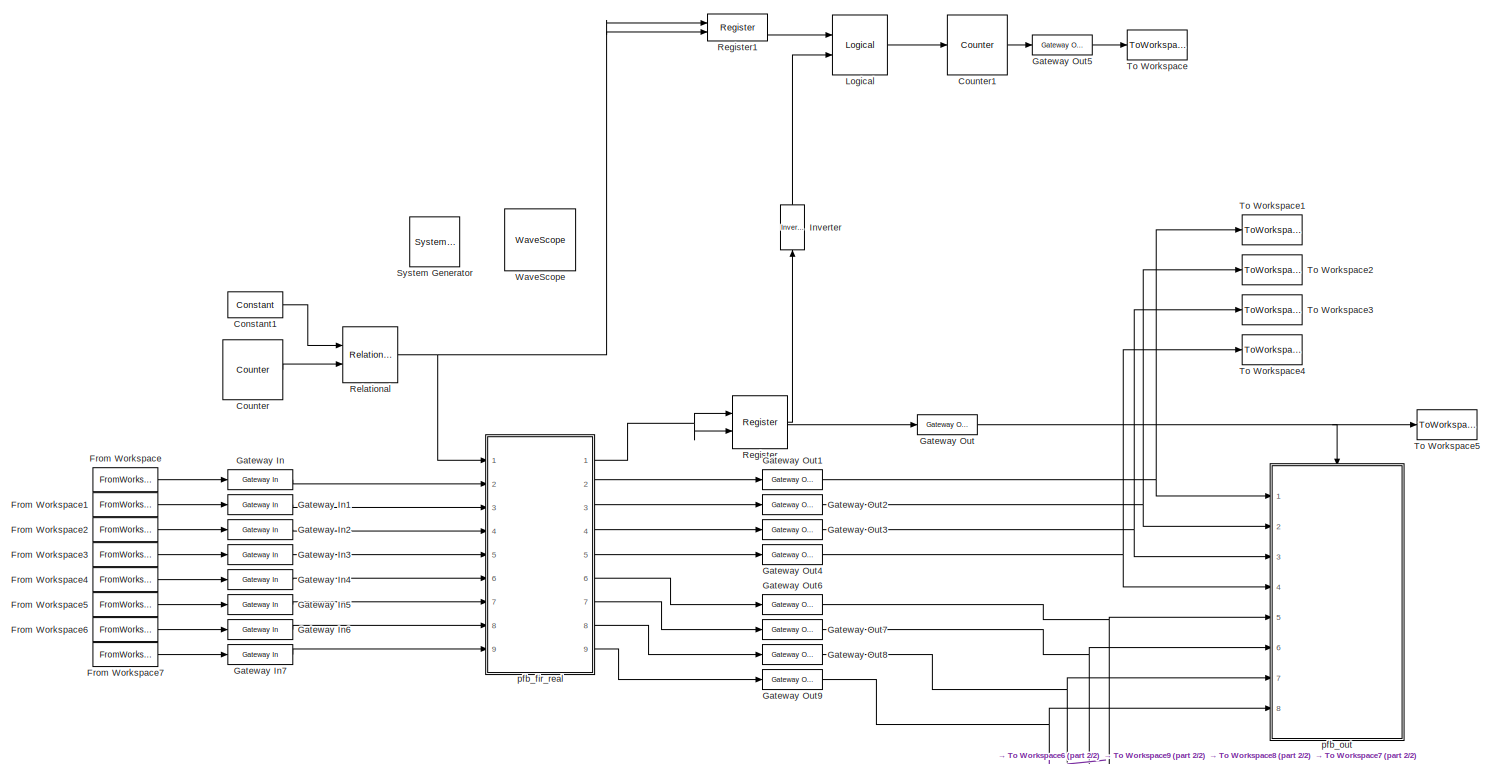
[diagram: root canvas - part 1/2, most of the canvas]
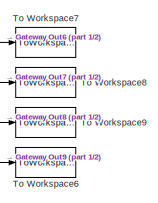
[diagram: root canvas - part 2/2, bottom right region]
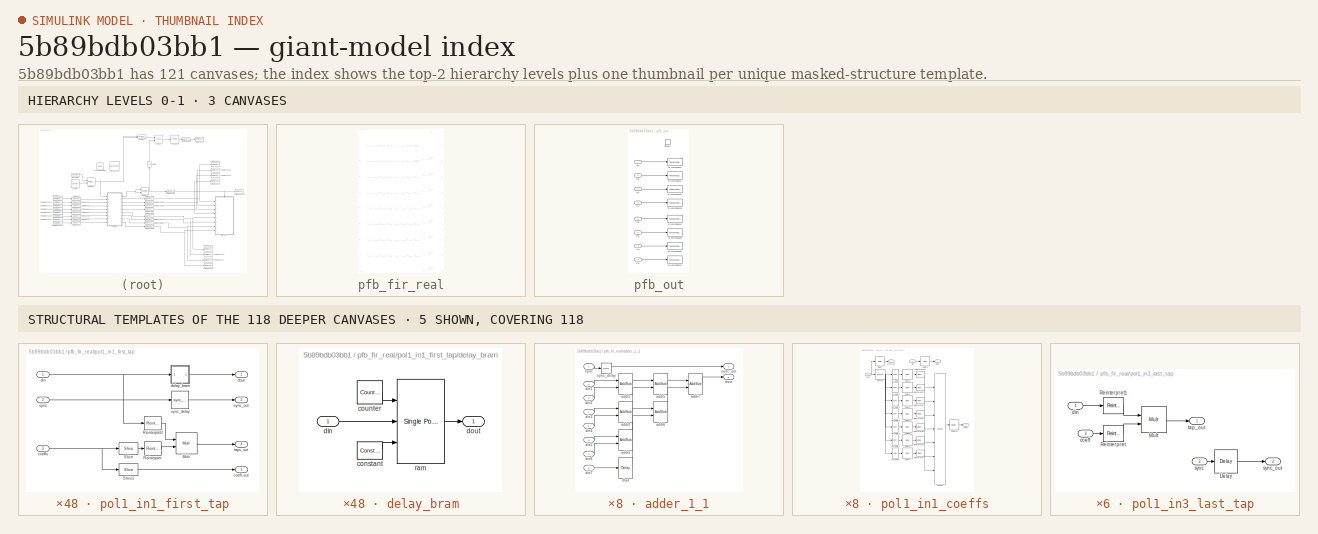
[diagram: thumbnail index - top-2 hierarchy levels (3 canvases) + 5 structural-template representatives of the remaining 118 canvases]
MODEL slx_5b89bdb03bb1
KIND model
BLOCK [Reference]  System Generator  REF=xbsIndex_r4/ System Generator
  AttributesFormatString = System\nGenerator
  Impl_file = ISE Defaults
  Ports = []
  SourceBlock = xbsIndex_r4/ System Generator
  SourceType = Xilinx System Generator Block
  Synth_file = XST Defaults
  Tag = genX
  UserDataPersistent = on
  block_type = sysgen
  clock_wrapper = Clock Enables
  core_generation = According to Block Masks
  dbl_ovrd = According to Block Masks
  dcm_input_clock_period = 10
  deprecated_control = off
  directory = ./netlist
  eval_field = 0
  has_advanced_control = 0
  incr_netlist = off
  infoedit = System Generator
  package = fbg676
  part = xc7k325t
  proj_type = Project Navigator
  run_coregen = off
  sg_icon_stat = 50,50,0,0,token,white,0,58c5b5770fe5f7c311f53dbc6e73f0f6,right,,[ ],[ ]
  sg_mask_display = fprintf('','COMMENT: begin icon graphics');\npatch([0 50 50 0 0 ],[0 0 50 50 0 ],[1 1 1 ]);\npatch([1.6375 16.81 27.31 37.81 48.31 27.31 12.1375 1.6375 ],[36.655 36.655 47.155 36.655 47.155 47.155 47.155 36.655 ],[0.933333 0.203922 0.141176 ]);\npatch([12.1375 27.31 16.81 1.6375 12.1375 ],[26.155 26.155 36.655 36.655 26.155 ],[0.698039 0.0313725 0.219608 ]);\npatch([1.6375 16.81 27.31 12.1375 1.6375 ]...<+327ch>
  sggui_pos = -1,-1,-1,-1
  simulink_period = 1
  speed = -3
  synthesis_tool = XST
  sysclk_period = 10
  testbench = off
  trim_vbits = Everywhere in SubSystem
  xilinxfamily = Kintex7
BLOCK [Reference] Constant1  REF=xbsIndex_r4/Constant
  Ports = [0, 1]
  SourceBlock = xbsIndex_r4/Constant
  SourceType = Xilinx Constant Block Block
  arith_type = Unsigned
  bin_pt = 0
  block_type = constant
  carry = CIN
  const = 1
  dbl_ovrd = off
  dsp48_infoedit = The use of this block for DSP48 instructions is deprecated.  Please use the Opmode block.
  equ = P=C
  exp_width = 8
  explicit_period = on
  frac_width = 24
  gui_display_data_type = Fixed-point
  has_advanced_control = 0
  inp1 = P
  inp2 = PCIN>>17
  n_bits = 8
  opr = +
  opselect = C
  period = 1
  preci_type = Single
  sg_icon_stat = 55,26,0,1,white,blue,0,1c72b5be,right,,[ ],[ ]
  sg_mask_display = fprintf('','COMMENT: begin icon graphics');\npatch([0 55 55 0 0 ],[0 0 26 26 0 ],[0.77 0.82 0.91 ]);\nplot([0 55 55 0 0 ],[0 0 26 26 0 ]);\npatch([20.325 24.66 27.66 30.66 33.66 27.66 23.325 20.325 ],[16.33 16.33 19.33 16.33 19.33 19.33 19.33 16.33 ],[1 1 1 ]);\npatch([23.325 27.66 24.66 20.325 23.325 ],[13.33 13.33 16.33 16.33 13.33 ],[0.931 0.946 0.973 ]);\npatch([20.325 24.66 27.66 23.325 20.325 ],[...<+323ch>
  sggui_pos = 57,19,337,463
BLOCK [Reference] Counter  REF=xbsIndex_r4/Counter
  Ports = [0, 1]
  SourceBlock = xbsIndex_r4/Counter
  SourceType = Xilinx Counter Block
  arith_type = Unsigned
  bin_pt = 0
  block_type = counter
  cnt_by_val = 1
  cnt_to = Inf
  cnt_type = Free Running
  dbl_ovrd = off
  en = off
  explicit_period = on
  has_advanced_control = 0
  implementation = Fabric
  infoedit = Hardware notes: Free running counters are the least expensive in hardware.  A count limited counter is implemented by combining a counter with a comparator.
  load_pin = off
  n_bits = 32
  operation = Up
  period = 1
  rst = off
  sg_icon_stat = 60,60,0,1,white,blue,0,7ac47ef5,right,,[ ],[ ]
  sg_mask_display = fprintf('','COMMENT: begin icon graphics');\npatch([0 60 60 0 0 ],[0 0 60 60 0 ],[0.77 0.82 0.91 ]);\nplot([0 60 60 0 0 ],[0 0 60 60 0 ]);\npatch([12.2 23.76 31.76 39.76 47.76 31.76 20.2 12.2 ],[38.88 38.88 46.88 38.88 46.88 46.88 46.88 38.88 ],[1 1 1 ]);\npatch([20.2 31.76 23.76 12.2 20.2 ],[30.88 30.88 38.88 38.88 30.88 ],[0.931 0.946 0.973 ]);\npatch([12.2 23.76 31.76 20.2 12.2 ],[22.88 22.88 30.88 ...<+321ch>  <repeated x4 — deduplicated; at blocks: Counter, counter>
  sggui_pos = 79,20,416,716
  start_count = 0
  use_behavioral_HDL = off
  xl_area = [0,0,0,0,0,0,0]
  xl_use_area = off
BLOCK [Reference] Counter1  REF=xbsIndex_r4/Counter
  Ports = [1, 1]
  SourceBlock = xbsIndex_r4/Counter
  SourceType = Xilinx Counter Block
  arith_type = Unsigned
  bin_pt = 0
  block_type = counter
  cnt_by_val = 1
  cnt_to = Inf
  cnt_type = Free Running
  dbl_ovrd = off
  en = on
  explicit_period = on
  has_advanced_control = 0
  implementation = Fabric
  infoedit = Hardware notes: Free running counters are the least expensive in hardware.  A count limited counter is implemented by combining a counter with a comparator.
  load_pin = off
  n_bits = 32
  operation = Up
  period = 1
  rst = off
  sg_icon_stat = 60,60,1,1,white,blue,0,b089e9c5,right,,[ ],[ ]
  sg_mask_display = fprintf('','COMMENT: begin icon graphics');\npatch([0 60 60 0 0 ],[0 0 60 60 0 ],[0.77 0.82 0.91 ]);\nplot([0 60 60 0 0 ],[0 0 60 60 0 ]);\npatch([12.2 23.76 31.76 39.76 47.76 31.76 20.2 12.2 ],[38.88 38.88 46.88 38.88 46.88 46.88 46.88 38.88 ],[1 1 1 ]);\npatch([20.2 31.76 23.76 12.2 20.2 ],[30.88 30.88 38.88 38.88 30.88 ],[0.931 0.946 0.973 ]);\npatch([12.2 23.76 31.76 20.2 12.2 ],[22.88 22.88 30.88 ...<+364ch>
  sggui_pos = 59,19,416,716
  start_count = 0
  use_behavioral_HDL = off
  xl_area = [0,0,0,0,0,0,0]
  xl_use_area = off
BLOCK [FromWorkspace] From Workspace
  Interpolate = off
  OutputAfterFinalValue = Cyclic repetition
  SampleTime = 1
  VariableName = din0
  ZeroCross = on
BLOCK [FromWorkspace] From Workspace1
  Interpolate = off
  OutputAfterFinalValue = Cyclic repetition
  SampleTime = 1
  VariableName = din1
  ZeroCross = on
BLOCK [FromWorkspace] From Workspace2
  Interpolate = off
  OutputAfterFinalValue = Cyclic repetition
  SampleTime = 1
  VariableName = din2
  ZeroCross = on
BLOCK [FromWorkspace] From Workspace3
  Interpolate = off
  OutputAfterFinalValue = Cyclic repetition
  SampleTime = 1
  VariableName = din3
  ZeroCross = on
BLOCK [FromWorkspace] From Workspace4
  Interpolate = off
  OutputAfterFinalValue = Cyclic repetition
  SampleTime = 1
  VariableName = din4
  ZeroCross = on
BLOCK [FromWorkspace] From Workspace5
  Interpolate = off
  OutputAfterFinalValue = Cyclic repetition
  SampleTime = 1
  VariableName = din5
  ZeroCross = on
BLOCK [FromWorkspace] From Workspace6
  Interpolate = off
  OutputAfterFinalValue = Cyclic repetition
  SampleTime = 1
  VariableName = din6
  ZeroCross = on
BLOCK [FromWorkspace] From Workspace7
  Interpolate = off
  OutputAfterFinalValue = Cyclic repetition
  SampleTime = 1
  VariableName = din7
  ZeroCross = on
BLOCK [Reference] Gateway In  REF=xbsIndex_r4/Gateway In
  ADCChannel = '1'
  LOCs = {}
  Ports = [1, 1]
  SourceBlock = xbsIndex_r4/Gateway In
  SourceType = Xilinx Gateway In Block
  UseAsADC = off
  arith_type = Signed  (2's comp)
  bin_pt = 7
  block_type = gatewayin
  dbl_ovrd = off
  exp_width = 8
  frac_width = 24
  gui_display_data_type = Fixed-point
  has_advanced_control = 0
  hdl_port = on
  infoedit = Gateway in block.  Converts inputs of type Simulink integer, single, double and fixed-point to  Xilinx fixed-point or floating-point data type.<br><br>Hardware notes:  In hardware these blocks become top level input ports.  <repeated x8 — deduplicated; at blocks: Gateway In, Gateway In1, Gateway In2, Gateway In3, Gateway In4, Gateway In5, Gateway In6, Gateway In7>
  inherit_from_input = off
  locs_specified = off
  n_bits = 8
  overflow = Saturate
  period = 1
  preci_type = Single
  quantization = Round  (unbiased: +/- Inf)
  sg_icon_stat = 65,20,1,1,white,yellow,1,00d3666e,right,,[ ],[ ]
  sg_mask_display = fprintf('','COMMENT: begin icon graphics');\npatch([0 65 65 0 0 ],[0 0 20 20 0 ],[0.95 0.93 0.65 ]);\nplot([0 65 65 0 0 ],[0 0 20 20 0 ]);\npatch([27.55 30.44 32.44 34.44 36.44 32.44 29.55 27.55 ],[12.22 12.22 14.22 12.22 14.22 14.22 14.22 12.22 ],[1 1 1 ]);\npatch([29.55 32.44 30.44 27.55 29.55 ],[10.22 10.22 12.22 12.22 10.22 ],[0.985 0.979 0.895 ]);\npatch([27.55 30.44 32.44 29.55 27.55 ],[8.22 8.22...<+383ch>  <repeated x8 — deduplicated; at blocks: Gateway In, Gateway In1, Gateway In2, Gateway In3, Gateway In4, Gateway In5, Gateway In6, Gateway In7>
  sggui_pos = 77,39,416,656
  timing_constraint = None
  xl_area = [0,0,0,0,0,0,0]
  xl_use_area = off
BLOCK [Reference] Gateway In1  REF=xbsIndex_r4/Gateway In
  ADCChannel = '1'
  LOCs = {}
  Ports = [1, 1]
  SourceBlock = xbsIndex_r4/Gateway In
  SourceType = Xilinx Gateway In Block
  UseAsADC = off
  arith_type = Signed  (2's comp)
  bin_pt = 7
  block_type = gatewayin
  dbl_ovrd = off
  exp_width = 8
  frac_width = 24
  gui_display_data_type = Fixed-point
  has_advanced_control = 0
  hdl_port = on
  inherit_from_input = off
  locs_specified = off
  n_bits = 8
  overflow = Saturate
  period = 1
  preci_type = Single
  quantization = Round  (unbiased: +/- Inf)
  sg_icon_stat = 65,20,1,1,white,yellow,1,00d3666e,right,,[ ],[ ]
  sggui_pos = 77,39,416,656
  timing_constraint = None
  xl_area = [0,0,0,0,0,0,0]
  xl_use_area = off
BLOCK [Reference] Gateway In2  REF=xbsIndex_r4/Gateway In
  ADCChannel = '1'
  LOCs = {}
  Ports = [1, 1]
  SourceBlock = xbsIndex_r4/Gateway In
  SourceType = Xilinx Gateway In Block
  UseAsADC = off
  arith_type = Signed  (2's comp)
  bin_pt = 7
  block_type = gatewayin
  dbl_ovrd = off
  exp_width = 8
  frac_width = 24
  gui_display_data_type = Fixed-point
  has_advanced_control = 0
  hdl_port = on
  inherit_from_input = off
  locs_specified = off
  n_bits = 8
  overflow = Saturate
  period = 1
  preci_type = Single
  quantization = Round  (unbiased: +/- Inf)
  sg_icon_stat = 65,20,1,1,white,yellow,1,00d3666e,right,,[ ],[ ]
  sggui_pos = 77,39,416,656
  timing_constraint = None
  xl_area = [0,0,0,0,0,0,0]
  xl_use_area = off
BLOCK [Reference] Gateway In3  REF=xbsIndex_r4/Gateway In
  ADCChannel = '1'
  LOCs = {}
  Ports = [1, 1]
  SourceBlock = xbsIndex_r4/Gateway In
  SourceType = Xilinx Gateway In Block
  UseAsADC = off
  arith_type = Signed  (2's comp)
  bin_pt = 7
  block_type = gatewayin
  dbl_ovrd = off
  exp_width = 8
  frac_width = 24
  gui_display_data_type = Fixed-point
  has_advanced_control = 0
  hdl_port = on
  inherit_from_input = off
  locs_specified = off
  n_bits = 8
  overflow = Saturate
  period = 1
  preci_type = Single
  quantization = Round  (unbiased: +/- Inf)
  sg_icon_stat = 65,20,1,1,white,yellow,1,00d3666e,right,,[ ],[ ]
  sggui_pos = 77,39,416,656
  timing_constraint = None
  xl_area = [0,0,0,0,0,0,0]
  xl_use_area = off
BLOCK [Reference] Gateway In4  REF=xbsIndex_r4/Gateway In
  ADCChannel = '1'
  LOCs = {}
  Ports = [1, 1]
  SourceBlock = xbsIndex_r4/Gateway In
  SourceType = Xilinx Gateway In Block
  UseAsADC = off
  arith_type = Signed  (2's comp)
  bin_pt = 7
  block_type = gatewayin
  dbl_ovrd = off
  exp_width = 8
  frac_width = 24
  gui_display_data_type = Fixed-point
  has_advanced_control = 0
  hdl_port = on
  inherit_from_input = off
  locs_specified = off
  n_bits = 8
  overflow = Saturate
  period = 1
  preci_type = Single
  quantization = Round  (unbiased: +/- Inf)
  sg_icon_stat = 65,20,1,1,white,yellow,1,00d3666e,right,,[ ],[ ]
  sggui_pos = 77,39,416,656
  timing_constraint = None
  xl_area = [0,0,0,0,0,0,0]
  xl_use_area = off
BLOCK [Reference] Gateway In5  REF=xbsIndex_r4/Gateway In
  ADCChannel = '1'
  LOCs = {}
  Ports = [1, 1]
  SourceBlock = xbsIndex_r4/Gateway In
  SourceType = Xilinx Gateway In Block
  UseAsADC = off
  arith_type = Signed  (2's comp)
  bin_pt = 7
  block_type = gatewayin
  dbl_ovrd = off
  exp_width = 8
  frac_width = 24
  gui_display_data_type = Fixed-point
  has_advanced_control = 0
  hdl_port = on
  inherit_from_input = off
  locs_specified = off
  n_bits = 8
  overflow = Saturate
  period = 1
  preci_type = Single
  quantization = Round  (unbiased: +/- Inf)
  sg_icon_stat = 65,20,1,1,white,yellow,1,00d3666e,right,,[ ],[ ]
  sggui_pos = 77,39,416,656
  timing_constraint = None
  xl_area = [0,0,0,0,0,0,0]
  xl_use_area = off
BLOCK [Reference] Gateway In6  REF=xbsIndex_r4/Gateway In
  ADCChannel = '1'
  LOCs = {}
  Ports = [1, 1]
  SourceBlock = xbsIndex_r4/Gateway In
  SourceType = Xilinx Gateway In Block
  UseAsADC = off
  arith_type = Signed  (2's comp)
  bin_pt = 7
  block_type = gatewayin
  dbl_ovrd = off
  exp_width = 8
  frac_width = 24
  gui_display_data_type = Fixed-point
  has_advanced_control = 0
  hdl_port = on
  inherit_from_input = off
  locs_specified = off
  n_bits = 8
  overflow = Saturate
  period = 1
  preci_type = Single
  quantization = Round  (unbiased: +/- Inf)
  sg_icon_stat = 65,20,1,1,white,yellow,1,00d3666e,right,,[ ],[ ]
  sggui_pos = 77,39,416,656
  timing_constraint = None
  xl_area = [0,0,0,0,0,0,0]
  xl_use_area = off
BLOCK [Reference] Gateway In7  REF=xbsIndex_r4/Gateway In
  ADCChannel = '1'
  LOCs = {}
  Ports = [1, 1]
  SourceBlock = xbsIndex_r4/Gateway In
  SourceType = Xilinx Gateway In Block
  UseAsADC = off
  arith_type = Signed  (2's comp)
  bin_pt = 7
  block_type = gatewayin
  dbl_ovrd = off
  exp_width = 8
  frac_width = 24
  gui_display_data_type = Fixed-point
  has_advanced_control = 0
  hdl_port = on
  inherit_from_input = off
  locs_specified = off
  n_bits = 8
  overflow = Saturate
  period = 1
  preci_type = Single
  quantization = Round  (unbiased: +/- Inf)
  sg_icon_stat = 65,20,1,1,white,yellow,1,00d3666e,right,,[ ],[ ]
  sggui_pos = 77,39,416,656
  timing_constraint = None
  xl_area = [0,0,0,0,0,0,0]
  xl_use_area = off
BLOCK [Reference] Gateway Out  REF=xbsIndex_r4/Gateway Out
  DACChannel = '1'
  LOCs = {}
  Ports = [1, 1]
  SourceBlock = xbsIndex_r4/Gateway Out
  SourceType = Xilinx Gateway Out Block
  UseAsDAC = off
  block_type = gatewayout
  has_advanced_control = 0
  hdl_port = on
  infoedit = Gateway out block.  Converts Xilinx fixed-point or floating-point type inputs into ouputs of type Simulink integer, single, double, or fixed-point.<br><br>Hardware notes:  In hardware these blocks become top level output ports or are discarded, depending on how they are configured.  <repeated x10 — deduplicated; at blocks: Gateway Out, Gateway Out1, Gateway Out2, Gateway Out3, Gateway Out4, Gateway Out5, Gateway Out6, Gateway Out7, Gateway Out8, Gateway Out9>
  inherit_from_input = off
  locs_specified = off
  sg_icon_stat = 60,20,1,1,white,yellow,1,cc31b7ac,right,,[ ],[ ]
  sg_mask_display = fprintf('','COMMENT: begin icon graphics');\npatch([0 60 60 0 0 ],[0 0 20 20 0 ],[0.95 0.93 0.65 ]);\nplot([0 60 60 0 0 ],[0 0 20 20 0 ]);\npatch([25.55 28.44 30.44 32.44 34.44 30.44 27.55 25.55 ],[12.22 12.22 14.22 12.22 14.22 14.22 14.22 12.22 ],[1 1 1 ]);\npatch([27.55 30.44 28.44 25.55 27.55 ],[10.22 10.22 12.22 12.22 10.22 ],[0.985 0.979 0.895 ]);\npatch([25.55 28.44 30.44 27.55 25.55 ],[8.22 8.22...<+384ch>  <repeated x10 — deduplicated; at blocks: Gateway Out, Gateway Out1, Gateway Out2, Gateway Out3, Gateway Out4, Gateway Out5, Gateway Out6, Gateway Out7, Gateway Out8, Gateway Out9>
  sggui_pos = -1,-1,-1,-1
  timing_constraint = None
  xl_area = [0,0,0,0,0,0,0]
  xl_use_area = off
BLOCK [Reference] Gateway Out1  REF=xbsIndex_r4/Gateway Out
  DACChannel = '1'
  LOCs = {}
  Ports = [1, 1]
  SourceBlock = xbsIndex_r4/Gateway Out
  SourceType = Xilinx Gateway Out Block
  UseAsDAC = off
  block_type = gatewayout
  has_advanced_control = 0
  hdl_port = on
  inherit_from_input = off
  locs_specified = off
  sg_icon_stat = 60,20,1,1,white,yellow,1,cc31b7ac,right,,[ ],[ ]
  sggui_pos = -1,-1,-1,-1
  timing_constraint = None
  xl_area = [0,0,0,0,0,0,0]
  xl_use_area = off
BLOCK [Reference] Gateway Out2  REF=xbsIndex_r4/Gateway Out
  DACChannel = '1'
  LOCs = {}
  Ports = [1, 1]
  SourceBlock = xbsIndex_r4/Gateway Out
  SourceType = Xilinx Gateway Out Block
  UseAsDAC = off
  block_type = gatewayout
  has_advanced_control = 0
  hdl_port = on
  inherit_from_input = off
  locs_specified = off
  sg_icon_stat = 60,20,1,1,white,yellow,1,cc31b7ac,right,,[ ],[ ]
  sggui_pos = 77,39,400,629
  timing_constraint = None
  xl_area = [0,0,0,0,0,0,0]
  xl_use_area = off
BLOCK [Reference] Gateway Out3  REF=xbsIndex_r4/Gateway Out
  DACChannel = '1'
  LOCs = {}
  Ports = [1, 1]
  SourceBlock = xbsIndex_r4/Gateway Out
  SourceType = Xilinx Gateway Out Block
  UseAsDAC = off
  block_type = gatewayout
  has_advanced_control = 0
  hdl_port = on
  inherit_from_input = off
  locs_specified = off
  sg_icon_stat = 60,20,1,1,white,yellow,1,cc31b7ac,right,,[ ],[ ]
  sggui_pos = 77,39,400,629
  timing_constraint = None
  xl_area = [0,0,0,0,0,0,0]
  xl_use_area = off
BLOCK [Reference] Gateway Out4  REF=xbsIndex_r4/Gateway Out
  DACChannel = '1'
  LOCs = {}
  Ports = [1, 1]
  SourceBlock = xbsIndex_r4/Gateway Out
  SourceType = Xilinx Gateway Out Block
  UseAsDAC = off
  block_type = gatewayout
  has_advanced_control = 0
  hdl_port = on
  inherit_from_input = off
  locs_specified = off
  sg_icon_stat = 60,20,1,1,white,yellow,1,cc31b7ac,right,,[ ],[ ]
  sggui_pos = 77,39,400,629
  timing_constraint = None
  xl_area = [0,0,0,0,0,0,0]
  xl_use_area = off
BLOCK [Reference] Gateway Out5  REF=xbsIndex_r4/Gateway Out
  DACChannel = '1'
  LOCs = {}
  Ports = [1, 1]
  SourceBlock = xbsIndex_r4/Gateway Out
  SourceType = Xilinx Gateway Out Block
  UseAsDAC = off
  block_type = gatewayout
  has_advanced_control = 0
  hdl_port = on
  inherit_from_input = off
  locs_specified = off
  sg_icon_stat = 60,20,1,1,white,yellow,1,cc31b7ac,right,,[ ],[ ]
  sggui_pos = -1,-1,-1,-1
  timing_constraint = None
  xl_area = [0,0,0,0,0,0,0]
  xl_use_area = off
BLOCK [Reference] Gateway Out6  REF=xbsIndex_r4/Gateway Out
  DACChannel = '1'
  LOCs = {}
  Ports = [1, 1]
  SourceBlock = xbsIndex_r4/Gateway Out
  SourceType = Xilinx Gateway Out Block
  UseAsDAC = off
  block_type = gatewayout
  has_advanced_control = 0
  hdl_port = on
  inherit_from_input = off
  locs_specified = off
  sg_icon_stat = 60,20,1,1,white,yellow,1,cc31b7ac,right,,[ ],[ ]
  sggui_pos = -1,-1,-1,-1
  timing_constraint = None
  xl_area = [0,0,0,0,0,0,0]
  xl_use_area = off
BLOCK [Reference] Gateway Out7  REF=xbsIndex_r4/Gateway Out
  DACChannel = '1'
  LOCs = {}
  Ports = [1, 1]
  SourceBlock = xbsIndex_r4/Gateway Out
  SourceType = Xilinx Gateway Out Block
  UseAsDAC = off
  block_type = gatewayout
  has_advanced_control = 0
  hdl_port = on
  inherit_from_input = off
  locs_specified = off
  sg_icon_stat = 60,20,1,1,white,yellow,1,cc31b7ac,right,,[ ],[ ]
  sggui_pos = 77,39,400,629
  timing_constraint = None
  xl_area = [0,0,0,0,0,0,0]
  xl_use_area = off
BLOCK [Reference] Gateway Out8  REF=xbsIndex_r4/Gateway Out
  DACChannel = '1'
  LOCs = {}
  Ports = [1, 1]
  SourceBlock = xbsIndex_r4/Gateway Out
  SourceType = Xilinx Gateway Out Block
  UseAsDAC = off
  block_type = gatewayout
  has_advanced_control = 0
  hdl_port = on
  inherit_from_input = off
  locs_specified = off
  sg_icon_stat = 60,20,1,1,white,yellow,1,cc31b7ac,right,,[ ],[ ]
  sggui_pos = 77,39,400,629
  timing_constraint = None
  xl_area = [0,0,0,0,0,0,0]
  xl_use_area = off
BLOCK [Reference] Gateway Out9  REF=xbsIndex_r4/Gateway Out
  DACChannel = '1'
  LOCs = {}
  Ports = [1, 1]
  SourceBlock = xbsIndex_r4/Gateway Out
  SourceType = Xilinx Gateway Out Block
  UseAsDAC = off
  block_type = gatewayout
  has_advanced_control = 0
  hdl_port = on
  inherit_from_input = off
  locs_specified = off
  sg_icon_stat = 60,20,1,1,white,yellow,1,cc31b7ac,right,,[ ],[ ]
  sggui_pos = 77,39,400,629
  timing_constraint = None
  xl_area = [0,0,0,0,0,0,0]
  xl_use_area = off
BLOCK [Reference] Inverter  REF=xbsIndex_r4/Inverter
  Ports = [1, 1]
  SourceBlock = xbsIndex_r4/Inverter
  SourceType = Xilinx Inverter Block
  block_type = inv
  dbl_ovrd = off
  en = off
  has_advanced_control = 0
  infoedit = Bitwise logical negation (one's complement) operator.
  latency = 0
  sg_icon_stat = 24,45,1,1,white,blue,0,267846e5,up,,[ ],[ ]
  sg_mask_display = fprintf('','COMMENT: begin icon graphics');\npatch([0 24 24 0 0 ],[0 0 45 45 0 ],[0.77 0.82 0.91 ]);\nplot([0 24 24 0 0 ],[0 0 45 45 0 ]);\npatch([5.325 9.66 12.66 15.66 18.66 12.66 8.325 5.325 ],[25.33 25.33 28.33 25.33 28.33 28.33 28.33 25.33 ],[1 1 1 ]);\npatch([8.325 12.66 9.66 5.325 8.325 ],[22.33 22.33 25.33 25.33 22.33 ],[0.931 0.946 0.973 ]);\npatch([5.325 9.66 12.66 8.325 5.325 ],[19.33 19.33 ...<+298ch>
  sggui_pos = -1,-1,-1,-1
  xl_area = [0,0,0,0,0,0,0]
  xl_use_area = off
BLOCK [Reference] Logical  REF=xbsIndex_r4/Logical
  Ports = [2, 1]
  SourceBlock = xbsIndex_r4/Logical
  SourceType = Xilinx Logical Block Block
  align_bp = on
  arith_type = Unsigned
  bin_pt = 0
  block_type = logical
  dbl_ovrd = off
  en = off
  has_advanced_control = 0
  inputs = 2
  latency = 0
  logical_function = AND
  n_bits = 16
  precision = Full
  sg_icon_stat = 55,60,2,1,white,blue,0,83a4b621,right,,[ ],[ ]
  sg_mask_display = fprintf('','COMMENT: begin icon graphics');\npatch([0 55 55 0 0 ],[0 0 60 60 0 ],[0.77 0.82 0.91 ]);\nplot([0 55 55 0 0 ],[0 0 60 60 0 ]);\npatch([11.425 21.54 28.54 35.54 42.54 28.54 18.425 11.425 ],[37.77 37.77 44.77 37.77 44.77 44.77 44.77 37.77 ],[1 1 1 ]);\npatch([18.425 28.54 21.54 11.425 18.425 ],[30.77 30.77 37.77 37.77 30.77 ],[0.931 0.946 0.973 ]);\npatch([11.425 21.54 28.54 18.425 11.425 ],[...<+315ch>
  sggui_pos = -1,-1,-1,-1
  xl_area = [0,0,0,0,0,0,0]
  xl_use_area = off
BLOCK [Reference] Register  REF=xbsIndex_r4/Register
  Ports = [2, 1]
  SourceBlock = xbsIndex_r4/Register
  SourceType = Xilinx Register Block
  block_type = register
  dbl_ovrd = off
  en = on
  has_advanced_control = 0
  init = 0
  rst = off
  sg_icon_stat = 55,53,2,1,white,blue,0,6bd0930c,right,,[ ],[ ]
  sg_mask_display = fprintf('','COMMENT: begin icon graphics');\npatch([0 55 55 0 0 ],[0 0 53 53 0 ],[0.77 0.82 0.91 ]);\nplot([0 55 55 0 0 ],[0 0 53 53 0 ]);\npatch([11.425 21.54 28.54 35.54 42.54 28.54 18.425 11.425 ],[33.77 33.77 40.77 33.77 40.77 40.77 40.77 33.77 ],[1 1 1 ]);\npatch([18.425 28.54 21.54 11.425 18.425 ],[26.77 26.77 33.77 33.77 26.77 ],[0.931 0.946 0.973 ]);\npatch([11.425 21.54 28.54 18.425 11.425 ],[...<+458ch>
  sggui_pos = 67,31,416,203
  xl_area = [0,0,0,0,0,0,0]
  xl_use_area = off
BLOCK [Reference] Register1  REF=xbsIndex_r4/Register
  Ports = [2, 1]
  SourceBlock = xbsIndex_r4/Register
  SourceType = Xilinx Register Block
  block_type = register
  dbl_ovrd = off
  en = on
  has_advanced_control = 0
  init = 0
  rst = off
  sg_icon_stat = 60,27,2,1,white,blue,0,6bd0930c,right,,[ ],[ ]
  sg_mask_display = fprintf('','COMMENT: begin icon graphics');\npatch([0 60 60 0 0 ],[0 0 27 27 0 ],[0.77 0.82 0.91 ]);\nplot([0 60 60 0 0 ],[0 0 27 27 0 ]);\npatch([23.325 27.66 30.66 33.66 36.66 30.66 26.325 23.325 ],[16.33 16.33 19.33 16.33 19.33 19.33 19.33 16.33 ],[1 1 1 ]);\npatch([26.325 30.66 27.66 23.325 26.325 ],[13.33 13.33 16.33 16.33 13.33 ],[0.931 0.946 0.973 ]);\npatch([23.325 27.66 30.66 26.325 23.325 ],[...<+454ch>
  sggui_pos = 67,31,416,203
  xl_area = [0,0,0,0,0,0,0]
  xl_use_area = off
BLOCK [Reference] Relational  REF=xbsIndex_r4/Relational
  Ports = [2, 1]
  SourceBlock = xbsIndex_r4/Relational
  SourceType = Xilinx Arithmetic Relational Operator Block
  block_type = relational
  dbl_ovrd = off
  en = off
  has_advanced_control = 0
  latency = 0
  mode = a=b
  sg_icon_stat = 55,56,2,1,white,blue,0,2a81ff49,right,,[ ],[ ]
  sg_mask_display = fprintf('','COMMENT: begin icon graphics');\npatch([0 55 55 0 0 ],[0 0 56 56 0 ],[0.77 0.82 0.91 ]);\nplot([0 55 55 0 0 ],[0 0 56 56 0 ]);\npatch([11.425 21.54 28.54 35.54 42.54 28.54 18.425 11.425 ],[35.77 35.77 42.77 35.77 42.77 42.77 42.77 35.77 ],[1 1 1 ]);\npatch([18.425 28.54 21.54 11.425 18.425 ],[28.77 28.77 35.77 35.77 28.77 ],[0.931 0.946 0.973 ]);\npatch([11.425 21.54 28.54 18.425 11.425 ],[...<+459ch>
  sggui_pos = -1,-1,-1,-1
  xl_area = [0,0,0,0,0,0,0]
  xl_use_area = off
BLOCK [ToWorkspace] To Workspace
  MaxDataPoints = inf
  Ports = [1]
  SampleTime = -1
  SaveFormat = Timeseries
  VariableName = counter
BLOCK [ToWorkspace] To Workspace1
  MaxDataPoints = inf
  Ports = [1]
  SampleTime = -1
  SaveFormat = Timeseries
  VariableName = dout0
BLOCK [ToWorkspace] To Workspace2
  MaxDataPoints = inf
  Ports = [1]
  SampleTime = -1
  SaveFormat = Timeseries
  VariableName = dout1
BLOCK [ToWorkspace] To Workspace3
  MaxDataPoints = inf
  Ports = [1]
  SampleTime = -1
  SaveFormat = Timeseries
  VariableName = dout2
BLOCK [ToWorkspace] To Workspace4
  MaxDataPoints = inf
  Ports = [1]
  SampleTime = -1
  SaveFormat = Timeseries
  VariableName = dout3
BLOCK [ToWorkspace] To Workspace5
  MaxDataPoints = inf
  Ports = [1]
  SampleTime = -1
  SaveFormat = Timeseries
  VariableName = sync
BLOCK [ToWorkspace] To Workspace6
  MaxDataPoints = inf
  Ports = [1]
  SampleTime = -1
  SaveFormat = Timeseries
  VariableName = dout7
BLOCK [ToWorkspace] To Workspace7
  MaxDataPoints = inf
  Ports = [1]
  SampleTime = -1
  SaveFormat = Timeseries
  VariableName = dout4
BLOCK [ToWorkspace] To Workspace8
  MaxDataPoints = inf
  Ports = [1]
  SampleTime = -1
  SaveFormat = Timeseries
  VariableName = dout5
BLOCK [ToWorkspace] To Workspace9
  MaxDataPoints = inf
  Ports = [1]
  SampleTime = -1
  SaveFormat = Timeseries
  VariableName = dout6
BLOCK [Reference] WaveScope  REF=xbsIndex_r4/WaveScope
  Ports = []
  SourceBlock = xbsIndex_r4/WaveScope
  SourceType = Xilinx WaveScope Block
  UserDataPersistent = on
  block_type = wavescope
  has_advanced_control = 0
  infoedit = WaveScope
  sg_icon_stat = 71,62,-1,-1,blue,white,0,07734,right,,[ ],[ ]
  sg_mask_display = fprintf('','COMMENT: begin icon graphics');\npatch([0 71 71 0 0 ],[0 0 62 62 0 ],[1 1 1 ]);\nplot([0 71 71 0 0 ],[0 0 62 62 0 ]);\npatch([17.2 28.76 36.76 44.76 52.76 36.76 25.2 17.2 ],[39.88 39.88 47.88 39.88 47.88 47.88 47.88 39.88 ],[0.839 0.874 0.937 ]);\npatch([25.2 36.76 28.76 17.2 25.2 ],[31.88 31.88 39.88 39.88 31.88 ],[0.77 0.82 0.91 ]);\npatch([17.2 28.76 36.76 25.2 17.2 ],[23.88 23.88 31.88 ...<+536ch>
  sggui_pos = -1,-1,-1,-1
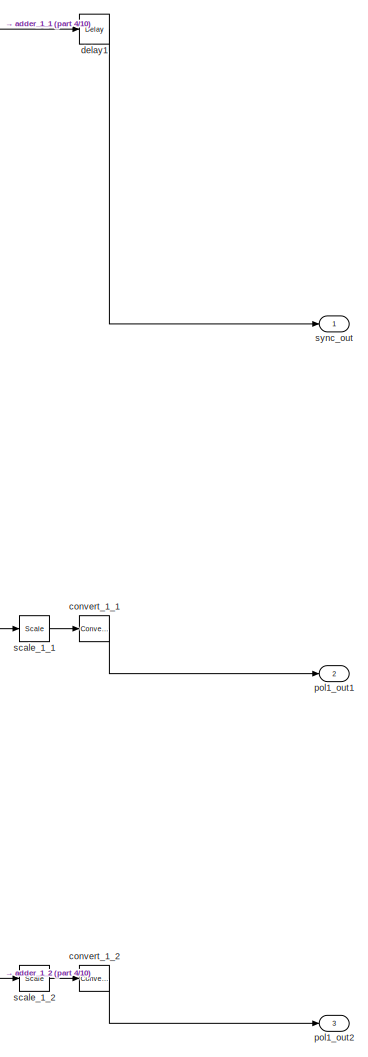
[diagram: pfb_fir_real - part 1/10, top right region]
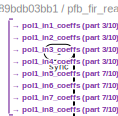
[diagram: pfb_fir_real - part 2/10, top left region]
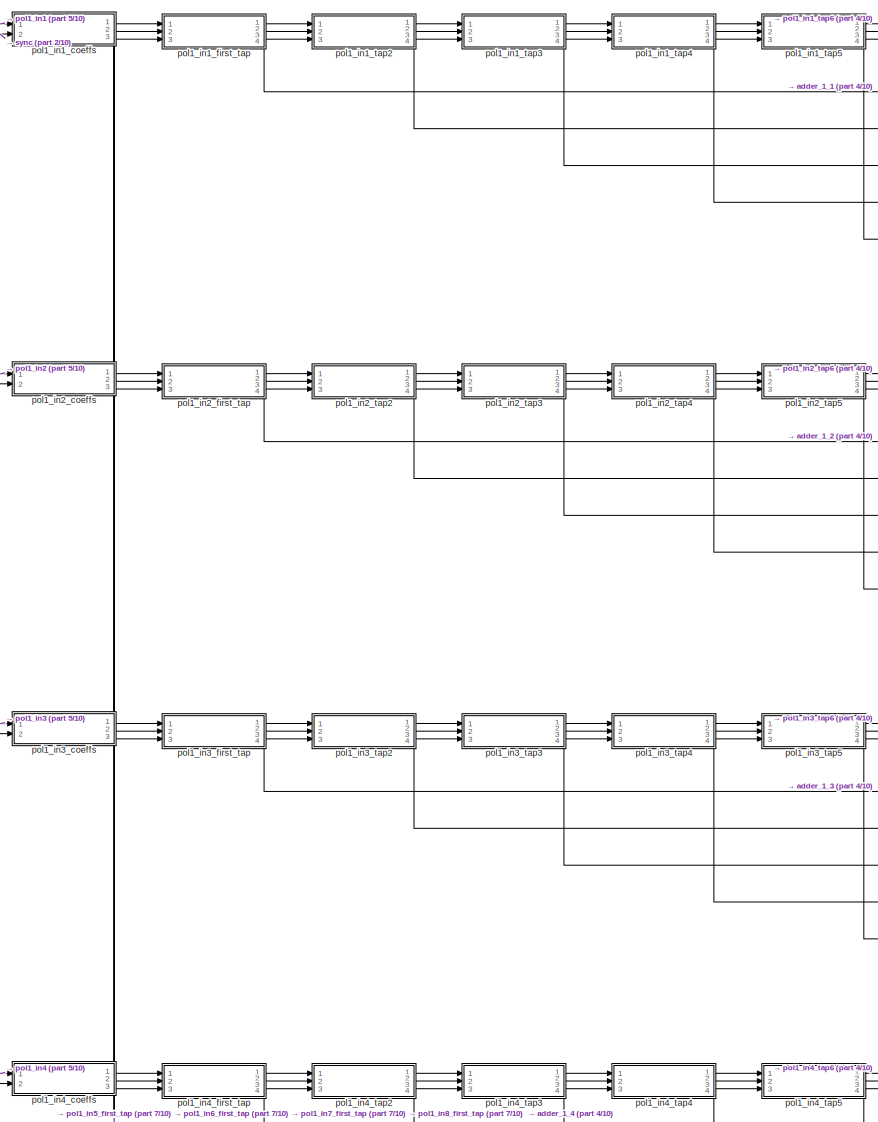
[diagram: pfb_fir_real - part 3/10, top left region]
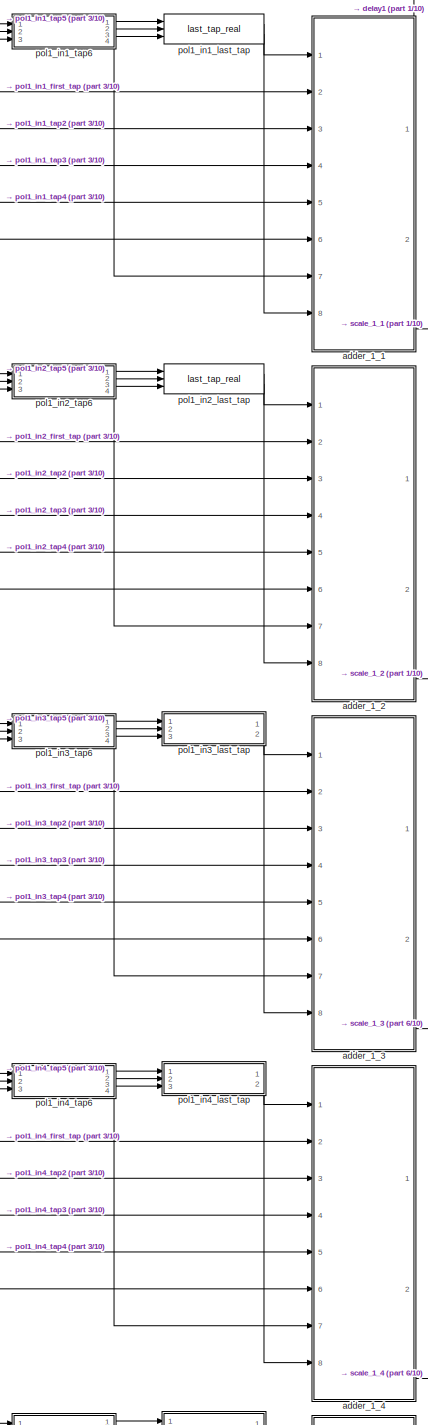
[diagram: pfb_fir_real - part 4/10, top right region]
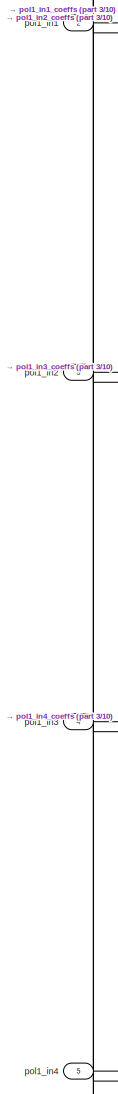
[diagram: pfb_fir_real - part 5/10, middle left region]
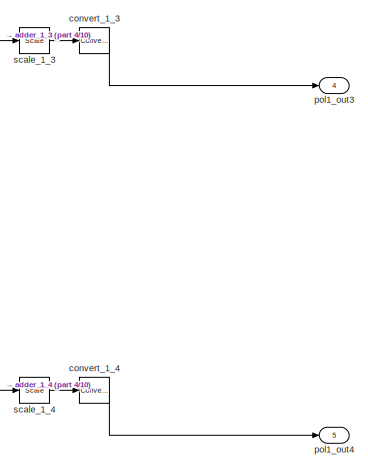
[diagram: pfb_fir_real - part 6/10, middle right region]
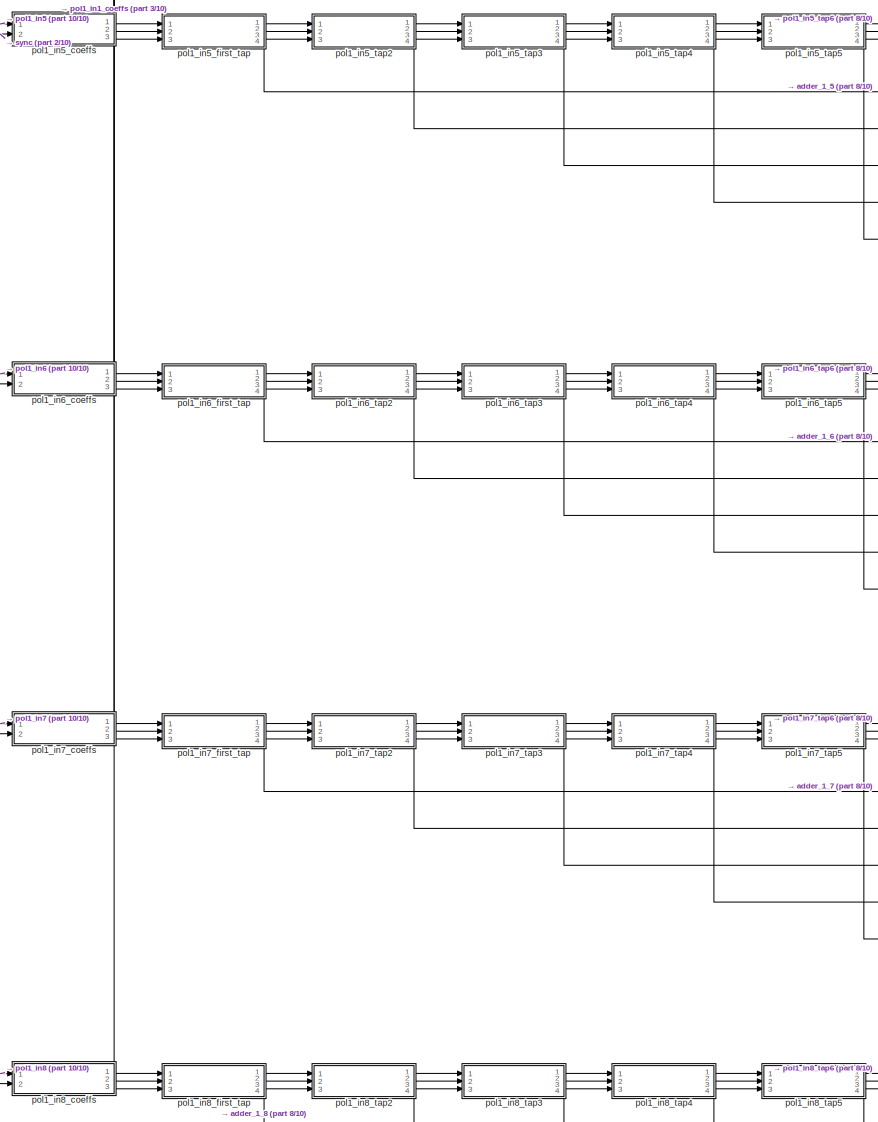
[diagram: pfb_fir_real - part 7/10, bottom left region]
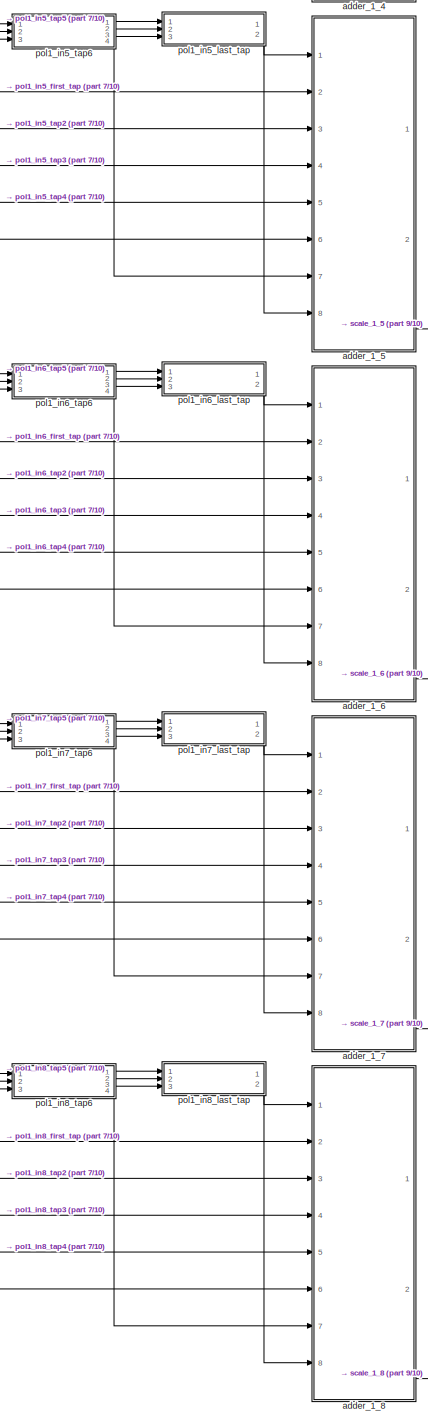
[diagram: pfb_fir_real - part 8/10, bottom right region]
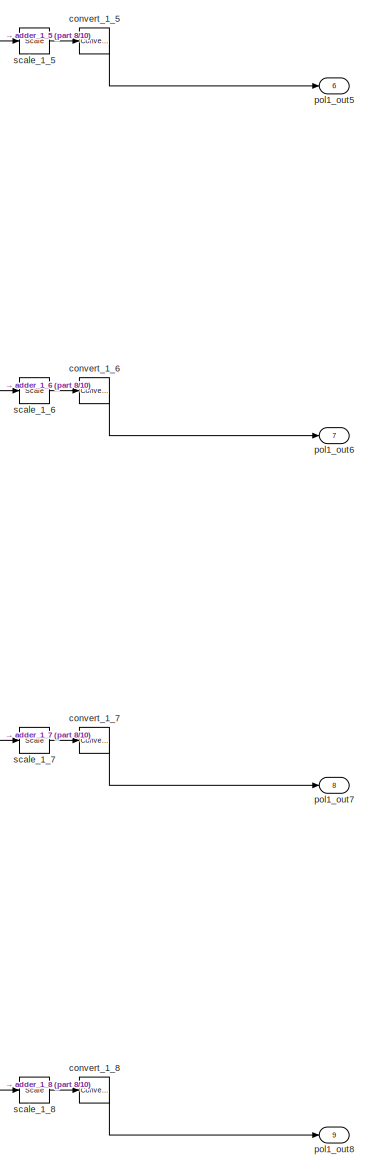
[diagram: pfb_fir_real - part 9/10, bottom right region]
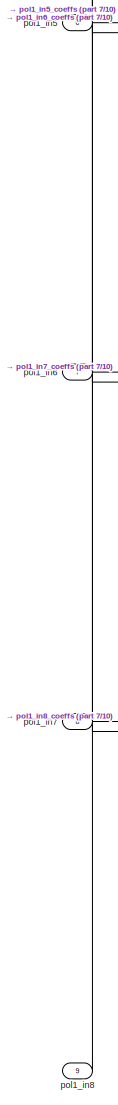
[diagram: pfb_fir_real - part 10/10, bottom left region]
BLOCK [SubSystem] pfb_fir_real
  AncestorBlock = casper_library_pfbs/pfb_fir_real
  AttributesFormatString = taps=7, add_latency=1
  FunctionWithSeparateData = off
  MaskHideContents = off
  MinAlgLoopOccurrences = off
  Opaque = off
  Ports = [9, 9]
  PropExecContextOutsideSubsystem = off
  RTWSystemCode = Auto
  RequestExecContextInheritance = off
  Tag = casper:pfb_fir_real
  UserDataPersistent = on
BLOCK [SubSystem] pfb_fir_real/adder_1_1
  AncestorBlock = casper_library_misc/adder_tree
  AttributesFormatString = latency 3
  FunctionWithSeparateData = off
  MaskHideContents = off
  MinAlgLoopOccurrences = off
  Opaque = off
  Ports = [8, 2]
  PropExecContextOutsideSubsystem = off
  RTWSystemCode = Auto
  RequestExecContextInheritance = off
  UserDataPersistent = on
BLOCK [Reference] pfb_fir_real/adder_1_1/addr1  REF=xbsIndex_r4/AddSub
  Ports = [2, 1]
  SourceBlock = xbsIndex_r4/AddSub
  SourceType = Xilinx Adder/Subtracter Block
  arith_type = Signed  (2's comp)
  bin_pt = 24
  block_type = addsub
  block_version = 11.4
  dbl_ovrd = off
  en = off
  has_advanced_control = 0
  hw_selection = Fabric
  latency = 1
  mode = Addition
  n_bits = 26
  overflow = Wrap
  pipelined = on
  precision = User Defined
  quantization = Truncate
  sg_icon_stat = 40,60,2,1,white,blue,0,e85d8a90,right,,[ ],[ ]
  sg_mask_display = fprintf('','COMMENT: begin icon graphics');\npatch([0 40 40 0 0 ],[0 0 60 60 0 ],[0.77 0.82 0.91 ]);\nplot([0 40 40 0 0 ],[0 0 60 60 0 ]);\npatch([8.875 16.1 21.1 26.1 31.1 21.1 13.875 8.875 ],[35.55 35.55 40.55 35.55 40.55 40.55 40.55 35.55 ],[1 1 1 ]);\npatch([13.875 21.1 16.1 8.875 13.875 ],[30.55 30.55 35.55 35.55 30.55 ],[0.931 0.946 0.973 ]);\npatch([8.875 16.1 21.1 13.875 8.875 ],[25.55 25.55 30...<+525ch>  <repeated x48 — deduplicated; at blocks: addr1, addr2, addr3, addr5, addr6, addr7>
  sggui_pos = 57,82,419,344
  use_behavioral_HDL = on
  use_carryin = off
  use_carryout = off
  use_rpm = on
  xl_area = [0,0,0,0,0,0,0]
  xl_use_area = off
BLOCK [Reference] pfb_fir_real/adder_1_1/addr2  REF=xbsIndex_r4/AddSub
  Ports = [2, 1]
  SourceBlock = xbsIndex_r4/AddSub
  SourceType = Xilinx Adder/Subtracter Block
  arith_type = Signed  (2's comp)
  bin_pt = 24
  block_type = addsub
  dbl_ovrd = off
  en = off
  has_advanced_control = 0
  hw_selection = Fabric
  latency = 1
  mode = Addition
  n_bits = 26
  overflow = Wrap
  pipelined = on
  precision = User Defined
  quantization = Truncate
  sg_icon_stat = 40,60,2,1,white,blue,0,e85d8a90,right,,[ ],[ ]
  sggui_pos = -1,-1,-1,-1
  use_behavioral_HDL = on
  use_carryin = off
  use_carryout = off
  use_rpm = on
  xl_area = [0,0,0,0,0,0,0]
  xl_use_area = off
BLOCK [Reference] pfb_fir_real/adder_1_1/addr3  REF=xbsIndex_r4/AddSub
  Ports = [2, 1]
  SourceBlock = xbsIndex_r4/AddSub
  SourceType = Xilinx Adder/Subtracter Block
  arith_type = Signed  (2's comp)
  bin_pt = 24
  block_type = addsub
  dbl_ovrd = off
  en = off
  has_advanced_control = 0
  hw_selection = Fabric
  latency = 1
  mode = Addition
  n_bits = 26
  overflow = Wrap
  pipelined = on
  precision = User Defined
  quantization = Truncate
  sg_icon_stat = 40,60,2,1,white,blue,0,e85d8a90,right,,[ ],[ ]
  sggui_pos = -1,-1,-1,-1
  use_behavioral_HDL = on
  use_carryin = off
  use_carryout = off
  use_rpm = on
  xl_area = [0,0,0,0,0,0,0]
  xl_use_area = off
BLOCK [Reference] pfb_fir_real/adder_1_1/addr5  REF=xbsIndex_r4/AddSub
  Ports = [2, 1]
  SourceBlock = xbsIndex_r4/AddSub
  SourceType = Xilinx Adder/Subtracter Block
  arith_type = Signed  (2's comp)
  bin_pt = 24
  block_type = addsub
  dbl_ovrd = off
  en = off
  has_advanced_control = 0
  hw_selection = Fabric
  latency = 1
  mode = Addition
  n_bits = 26
  overflow = Wrap
  pipelined = on
  precision = User Defined
  quantization = Truncate
  sg_icon_stat = 40,60,2,1,white,blue,0,e85d8a90,right,,[ ],[ ]
  sggui_pos = -1,-1,-1,-1
  use_behavioral_HDL = off
  use_carryin = off
  use_carryout = off
  use_rpm = on
  xl_area = [0,0,0,0,0,0,0]
  xl_use_area = off
BLOCK [Reference] pfb_fir_real/adder_1_1/addr6  REF=xbsIndex_r4/AddSub
  Ports = [2, 1]
  SourceBlock = xbsIndex_r4/AddSub
  SourceType = Xilinx Adder/Subtracter Block
  arith_type = Signed  (2's comp)
  bin_pt = 24
  block_type = addsub
  dbl_ovrd = off
  en = off
  has_advanced_control = 0
  hw_selection = Fabric
  latency = 1
  mode = Addition
  n_bits = 26
  overflow = Wrap
  pipelined = on
  precision = User Defined
  quantization = Truncate
  sg_icon_stat = 40,60,2,1,white,blue,0,e85d8a90,right,,[ ],[ ]
  sggui_pos = -1,-1,-1,-1
  use_behavioral_HDL = off
  use_carryin = off
  use_carryout = off
  use_rpm = on
  xl_area = [0,0,0,0,0,0,0]
  xl_use_area = off
BLOCK [Reference] pfb_fir_real/adder_1_1/addr7  REF=xbsIndex_r4/AddSub
  Ports = [2, 1]
  SourceBlock = xbsIndex_r4/AddSub
  SourceType = Xilinx Adder/Subtracter Block
  arith_type = Signed  (2's comp)
  bin_pt = 24
  block_type = addsub
  dbl_ovrd = off
  en = off
  has_advanced_control = 0
  hw_selection = Fabric
  latency = 1
  mode = Addition
  n_bits = 26
  overflow = Wrap
  pipelined = on
  precision = User Defined
  quantization = Truncate
  sg_icon_stat = 40,60,2,1,white,blue,0,e85d8a90,right,,[ ],[ ]
  sggui_pos = -1,-1,-1,-1
  use_behavioral_HDL = off
  use_carryin = off
  use_carryout = off
  use_rpm = on
  xl_area = [0,0,0,0,0,0,0]
  xl_use_area = off
BLOCK [Inport] pfb_fir_real/adder_1_1/din1
  IconDisplay = Port number
  Port = 2
BLOCK [Inport] pfb_fir_real/adder_1_1/din2
  IconDisplay = Port number
  Port = 3
BLOCK [Inport] pfb_fir_real/adder_1_1/din3
  IconDisplay = Port number
  Port = 4
BLOCK [Inport] pfb_fir_real/adder_1_1/din4
  IconDisplay = Port number
  Port = 5
BLOCK [Inport] pfb_fir_real/adder_1_1/din5
  IconDisplay = Port number
  Port = 6
BLOCK [Inport] pfb_fir_real/adder_1_1/din6
  IconDisplay = Port number
  Port = 7
BLOCK [Inport] pfb_fir_real/adder_1_1/din7
  IconDisplay = Port number
  Port = 8
BLOCK [Reference] pfb_fir_real/adder_1_1/dly4  REF=xbsIndex_r4/Delay
  Ports = [1, 1]
  SourceBlock = xbsIndex_r4/Delay
  SourceType = Xilinx Delay Block
  block_type = delay
  dbl_ovrd = off
  en = off
  has_advanced_control = 0
  infoedit = Hardware notes: A delay line is a chain, each link of which is an SRL16 followed by a flip-flop.
  infoeditControl = Selection of Reset will increase slice count due to use of real FFs and instead of SRLs
  latency = 1
  reg_retiming = on
  rst = off
  sg_icon_stat = 40,60,1,1,white,blue,0,07b98262,right,,[ ],[ ]
  sg_mask_display = fprintf('','COMMENT: begin icon graphics');\npatch([0 40 40 0 0 ],[0 0 60 60 0 ],[0.77 0.82 0.91 ]);\nplot([0 40 40 0 0 ],[0 0 60 60 0 ]);\npatch([8.875 16.1 21.1 26.1 31.1 21.1 13.875 8.875 ],[35.55 35.55 40.55 35.55 40.55 40.55 40.55 35.55 ],[1 1 1 ]);\npatch([13.875 21.1 16.1 8.875 13.875 ],[30.55 30.55 35.55 35.55 30.55 ],[0.931 0.946 0.973 ]);\npatch([8.875 16.1 21.1 13.875 8.875 ],[25.55 25.55 30...<+313ch>  <repeated x8 — deduplicated; at blocks: dly4>
  sggui_pos = -1,-1,-1,-1
  xl_area = [0,0,0,0,0,0,0]
  xl_use_area = off
BLOCK [Outport] pfb_fir_real/adder_1_1/dout
  IconDisplay = Port number
  Port = 2
BLOCK [Inport] pfb_fir_real/adder_1_1/sync
  IconDisplay = Port number
BLOCK [Reference] pfb_fir_real/adder_1_1/sync_delay  REF=xbsIndex_r4/Delay
  Ports = [1, 1]
  SourceBlock = xbsIndex_r4/Delay
  SourceType = Xilinx Delay Block
  block_type = delay
  block_version = 11.4
  dbl_ovrd = off
  en = off
  has_advanced_control = 0
  infoedit = Hardware notes: A delay line is a chain, each link of which is an SRL16 followed by a flip-flop.
  infoeditControl = Selection of Reset will increase slice count due to use of real FFs and instead of SRLs
  latency = 3
  reg_retiming = on
  rst = off
  sg_icon_stat = 30,30,1,1,white,blue,0,83e6bb61,right,,[ ],[ ]
  sg_mask_display = fprintf('','COMMENT: begin icon graphics');\npatch([0 30 30 0 0 ],[0 0 30 30 0 ],[0.77 0.82 0.91 ]);\nplot([0 30 30 0 0 ],[0 0 30 30 0 ]);\npatch([6.1 11.88 15.88 19.88 23.88 15.88 10.1 6.1 ],[19.44 19.44 23.44 19.44 23.44 23.44 23.44 19.44 ],[1 1 1 ]);\npatch([10.1 15.88 11.88 6.1 10.1 ],[15.44 15.44 19.44 19.44 15.44 ],[0.931 0.946 0.973 ]);\npatch([6.1 11.88 15.88 10.1 6.1 ],[11.44 11.44 15.44 15.44...<+298ch>  <repeated x9 — deduplicated; at blocks: sync_delay, delay1>
  sggui_pos = 21,71,419,315
  xl_area = [0,0,0,0,0,0,0]
  xl_use_area = off
BLOCK [Outport] pfb_fir_real/adder_1_1/sync_out
  IconDisplay = Port number
BLOCK [SubSystem] pfb_fir_real/adder_1_2
  AncestorBlock = casper_library_misc/adder_tree
  AttributesFormatString = latency 3
  FunctionWithSeparateData = off
  MaskHideContents = off
  MinAlgLoopOccurrences = off
  Opaque = off
  Ports = [8, 2]
  PropExecContextOutsideSubsystem = off
  RTWSystemCode = Auto
  RequestExecContextInheritance = off
  UserDataPersistent = on
BLOCK [Reference] pfb_fir_real/adder_1_2/addr1  REF=xbsIndex_r4/AddSub
  Ports = [2, 1]
  SourceBlock = xbsIndex_r4/AddSub
  SourceType = Xilinx Adder/Subtracter Block
  arith_type = Signed  (2's comp)
  bin_pt = 24
  block_type = addsub
  block_version = 11.4
  dbl_ovrd = off
  en = off
  has_advanced_control = 0
  hw_selection = Fabric
  latency = 1
  mode = Addition
  n_bits = 26
  overflow = Wrap
  pipelined = on
  precision = User Defined
  quantization = Truncate
  sg_icon_stat = 40,60,2,1,white,blue,0,e85d8a90,right,,[ ],[ ]
  sggui_pos = 22,98,419,344
  use_behavioral_HDL = on
  use_carryin = off
  use_carryout = off
  use_rpm = on
  xl_area = [0,0,0,0,0,0,0]
  xl_use_area = off
BLOCK [Reference] pfb_fir_real/adder_1_2/addr2  REF=xbsIndex_r4/AddSub
  Ports = [2, 1]
  SourceBlock = xbsIndex_r4/AddSub
  SourceType = Xilinx Adder/Subtracter Block
  arith_type = Signed  (2's comp)
  bin_pt = 24
  block_type = addsub
  dbl_ovrd = off
  en = off
  has_advanced_control = 0
  hw_selection = Fabric
  latency = 1
  mode = Addition
  n_bits = 26
  overflow = Wrap
  pipelined = on
  precision = User Defined
  quantization = Truncate
  sg_icon_stat = 40,60,2,1,white,blue,0,e85d8a90,right,,[ ],[ ]
  sggui_pos = -1,-1,-1,-1
  use_behavioral_HDL = on
  use_carryin = off
  use_carryout = off
  use_rpm = on
  xl_area = [0,0,0,0,0,0,0]
  xl_use_area = off
BLOCK [Reference] pfb_fir_real/adder_1_2/addr3  REF=xbsIndex_r4/AddSub
  Ports = [2, 1]
  SourceBlock = xbsIndex_r4/AddSub
  SourceType = Xilinx Adder/Subtracter Block
  arith_type = Signed  (2's comp)
  bin_pt = 24
  block_type = addsub
  dbl_ovrd = off
  en = off
  has_advanced_control = 0
  hw_selection = Fabric
  latency = 1
  mode = Addition
  n_bits = 26
  overflow = Wrap
  pipelined = on
  precision = User Defined
  quantization = Truncate
  sg_icon_stat = 40,60,2,1,white,blue,0,e85d8a90,right,,[ ],[ ]
  sggui_pos = -1,-1,-1,-1
  use_behavioral_HDL = on
  use_carryin = off
  use_carryout = off
  use_rpm = on
  xl_area = [0,0,0,0,0,0,0]
  xl_use_area = off
BLOCK [Reference] pfb_fir_real/adder_1_2/addr5  REF=xbsIndex_r4/AddSub
  Ports = [2, 1]
  SourceBlock = xbsIndex_r4/AddSub
  SourceType = Xilinx Adder/Subtracter Block
  arith_type = Signed  (2's comp)
  bin_pt = 24
  block_type = addsub
  dbl_ovrd = off
  en = off
  has_advanced_control = 0
  hw_selection = Fabric
  latency = 1
  mode = Addition
  n_bits = 26
  overflow = Wrap
  pipelined = on
  precision = User Defined
  quantization = Truncate
  sg_icon_stat = 40,60,2,1,white,blue,0,e85d8a90,right,,[ ],[ ]
  sggui_pos = -1,-1,-1,-1
  use_behavioral_HDL = off
  use_carryin = off
  use_carryout = off
  use_rpm = on
  xl_area = [0,0,0,0,0,0,0]
  xl_use_area = off
BLOCK [Reference] pfb_fir_real/adder_1_2/addr6  REF=xbsIndex_r4/AddSub
  Ports = [2, 1]
  SourceBlock = xbsIndex_r4/AddSub
  SourceType = Xilinx Adder/Subtracter Block
  arith_type = Signed  (2's comp)
  bin_pt = 24
  block_type = addsub
  dbl_ovrd = off
  en = off
  has_advanced_control = 0
  hw_selection = Fabric
  latency = 1
  mode = Addition
  n_bits = 26
  overflow = Wrap
  pipelined = on
  precision = User Defined
  quantization = Truncate
  sg_icon_stat = 40,60,2,1,white,blue,0,e85d8a90,right,,[ ],[ ]
  sggui_pos = -1,-1,-1,-1
  use_behavioral_HDL = off
  use_carryin = off
  use_carryout = off
  use_rpm = on
  xl_area = [0,0,0,0,0,0,0]
  xl_use_area = off
BLOCK [Reference] pfb_fir_real/adder_1_2/addr7  REF=xbsIndex_r4/AddSub
  Ports = [2, 1]
  SourceBlock = xbsIndex_r4/AddSub
  SourceType = Xilinx Adder/Subtracter Block
  arith_type = Signed  (2's comp)
  bin_pt = 24
  block_type = addsub
  dbl_ovrd = off
  en = off
  has_advanced_control = 0
  hw_selection = Fabric
  latency = 1
  mode = Addition
  n_bits = 26
  overflow = Wrap
  pipelined = on
  precision = User Defined
  quantization = Truncate
  sg_icon_stat = 40,60,2,1,white,blue,0,e85d8a90,right,,[ ],[ ]
  sggui_pos = -1,-1,-1,-1
  use_behavioral_HDL = off
  use_carryin = off
  use_carryout = off
  use_rpm = on
  xl_area = [0,0,0,0,0,0,0]
  xl_use_area = off
BLOCK [Inport] pfb_fir_real/adder_1_2/din1
  IconDisplay = Port number
  Port = 2
BLOCK [Inport] pfb_fir_real/adder_1_2/din2
  IconDisplay = Port number
  Port = 3
BLOCK [Inport] pfb_fir_real/adder_1_2/din3
  IconDisplay = Port number
  Port = 4
BLOCK [Inport] pfb_fir_real/adder_1_2/din4
  IconDisplay = Port number
  Port = 5
BLOCK [Inport] pfb_fir_real/adder_1_2/din5
  IconDisplay = Port number
  Port = 6
BLOCK [Inport] pfb_fir_real/adder_1_2/din6
  IconDisplay = Port number
  Port = 7
BLOCK [Inport] pfb_fir_real/adder_1_2/din7
  IconDisplay = Port number
  Port = 8
BLOCK [Reference] pfb_fir_real/adder_1_2/dly4  REF=xbsIndex_r4/Delay
  Ports = [1, 1]
  SourceBlock = xbsIndex_r4/Delay
  SourceType = Xilinx Delay Block
  block_type = delay
  dbl_ovrd = off
  en = off
  has_advanced_control = 0
  infoedit = Hardware notes: A delay line is a chain, each link of which is an SRL16 followed by a flip-flop.
  infoeditControl = Selection of Reset will increase slice count due to use of real FFs and instead of SRLs
  latency = 1
  reg_retiming = on
  rst = off
  sg_icon_stat = 40,60,1,1,white,blue,0,07b98262,right,,[ ],[ ]
  sggui_pos = -1,-1,-1,-1
  xl_area = [0,0,0,0,0,0,0]
  xl_use_area = off
BLOCK [Outport] pfb_fir_real/adder_1_2/dout
  IconDisplay = Port number
  Port = 2
BLOCK [Inport] pfb_fir_real/adder_1_2/sync
  IconDisplay = Port number
BLOCK [Reference] pfb_fir_real/adder_1_2/sync_delay  REF=xbsIndex_r4/Delay
  Ports = [1, 1]
  SourceBlock = xbsIndex_r4/Delay
  SourceType = Xilinx Delay Block
  block_type = delay
  block_version = 11.4
  dbl_ovrd = off
  en = off
  has_advanced_control = 0
  infoedit = Hardware notes: A delay line is a chain, each link of which is an SRL16 followed by a flip-flop.
  infoeditControl = Selection of Reset will increase slice count due to use of real FFs and instead of SRLs
  latency = 3
  reg_retiming = on
  rst = off
  sg_icon_stat = 30,30,1,1,white,blue,0,83e6bb61,right,,[ ],[ ]
  sggui_pos = 21,71,419,315
  xl_area = [0,0,0,0,0,0,0]
  xl_use_area = off
BLOCK [Outport] pfb_fir_real/adder_1_2/sync_out
  IconDisplay = Port number
BLOCK [SubSystem] pfb_fir_real/adder_1_3
  AncestorBlock = casper_library_misc/adder_tree
  AttributesFormatString = latency 3
  FunctionWithSeparateData = off
  MaskHideContents = off
  MinAlgLoopOccurrences = off
  Opaque = off
  Ports = [8, 2]
  PropExecContextOutsideSubsystem = off
  RTWSystemCode = Auto
  RequestExecContextInheritance = off
  UserDataPersistent = on
BLOCK [Reference] pfb_fir_real/adder_1_3/addr1  REF=xbsIndex_r4/AddSub
  Ports = [2, 1]
  SourceBlock = xbsIndex_r4/AddSub
  SourceType = Xilinx Adder/Subtracter Block
  arith_type = Signed  (2's comp)
  bin_pt = 24
  block_type = addsub
  block_version = 11.4
  dbl_ovrd = off
  en = off
  has_advanced_control = 0
  hw_selection = Fabric
  latency = 1
  mode = Addition
  n_bits = 26
  overflow = Wrap
  pipelined = on
  precision = User Defined
  quantization = Truncate
  sg_icon_stat = 40,60,2,1,white,blue,0,e85d8a90,right,,[ ],[ ]
  sggui_pos = 22,98,419,344
  use_behavioral_HDL = on
  use_carryin = off
  use_carryout = off
  use_rpm = on
  xl_area = [0,0,0,0,0,0,0]
  xl_use_area = off
BLOCK [Reference] pfb_fir_real/adder_1_3/addr2  REF=xbsIndex_r4/AddSub
  Ports = [2, 1]
  SourceBlock = xbsIndex_r4/AddSub
  SourceType = Xilinx Adder/Subtracter Block
  arith_type = Signed  (2's comp)
  bin_pt = 24
  block_type = addsub
  dbl_ovrd = off
  en = off
  has_advanced_control = 0
  hw_selection = Fabric
  latency = 1
  mode = Addition
  n_bits = 26
  overflow = Wrap
  pipelined = on
  precision = User Defined
  quantization = Truncate
  sg_icon_stat = 40,60,2,1,white,blue,0,e85d8a90,right,,[ ],[ ]
  sggui_pos = -1,-1,-1,-1
  use_behavioral_HDL = on
  use_carryin = off
  use_carryout = off
  use_rpm = on
  xl_area = [0,0,0,0,0,0,0]
  xl_use_area = off
BLOCK [Reference] pfb_fir_real/adder_1_3/addr3  REF=xbsIndex_r4/AddSub
  Ports = [2, 1]
  SourceBlock = xbsIndex_r4/AddSub
  SourceType = Xilinx Adder/Subtracter Block
  arith_type = Signed  (2's comp)
  bin_pt = 24
  block_type = addsub
  dbl_ovrd = off
  en = off
  has_advanced_control = 0
  hw_selection = Fabric
  latency = 1
  mode = Addition
  n_bits = 26
  overflow = Wrap
  pipelined = on
  precision = User Defined
  quantization = Truncate
  sg_icon_stat = 40,60,2,1,white,blue,0,e85d8a90,right,,[ ],[ ]
  sggui_pos = -1,-1,-1,-1
  use_behavioral_HDL = on
  use_carryin = off
  use_carryout = off
  use_rpm = on
  xl_area = [0,0,0,0,0,0,0]
  xl_use_area = off
BLOCK [Reference] pfb_fir_real/adder_1_3/addr5  REF=xbsIndex_r4/AddSub
  Ports = [2, 1]
  SourceBlock = xbsIndex_r4/AddSub
  SourceType = Xilinx Adder/Subtracter Block
  arith_type = Signed  (2's comp)
  bin_pt = 24
  block_type = addsub
  dbl_ovrd = off
  en = off
  has_advanced_control = 0
  hw_selection = Fabric
  latency = 1
  mode = Addition
  n_bits = 26
  overflow = Wrap
  pipelined = on
  precision = User Defined
  quantization = Truncate
  sg_icon_stat = 40,60,2,1,white,blue,0,e85d8a90,right,,[ ],[ ]
  sggui_pos = -1,-1,-1,-1
  use_behavioral_HDL = off
  use_carryin = off
  use_carryout = off
  use_rpm = on
  xl_area = [0,0,0,0,0,0,0]
  xl_use_area = off
BLOCK [Reference] pfb_fir_real/adder_1_3/addr6  REF=xbsIndex_r4/AddSub
  Ports = [2, 1]
  SourceBlock = xbsIndex_r4/AddSub
  SourceType = Xilinx Adder/Subtracter Block
  arith_type = Signed  (2's comp)
  bin_pt = 24
  block_type = addsub
  dbl_ovrd = off
  en = off
  has_advanced_control = 0
  hw_selection = Fabric
  latency = 1
  mode = Addition
  n_bits = 26
  overflow = Wrap
  pipelined = on
  precision = User Defined
  quantization = Truncate
  sg_icon_stat = 40,60,2,1,white,blue,0,e85d8a90,right,,[ ],[ ]
  sggui_pos = -1,-1,-1,-1
  use_behavioral_HDL = off
  use_carryin = off
  use_carryout = off
  use_rpm = on
  xl_area = [0,0,0,0,0,0,0]
  xl_use_area = off
BLOCK [Reference] pfb_fir_real/adder_1_3/addr7  REF=xbsIndex_r4/AddSub
  Ports = [2, 1]
  SourceBlock = xbsIndex_r4/AddSub
  SourceType = Xilinx Adder/Subtracter Block
  arith_type = Signed  (2's comp)
  bin_pt = 24
  block_type = addsub
  dbl_ovrd = off
  en = off
  has_advanced_control = 0
  hw_selection = Fabric
  latency = 1
  mode = Addition
  n_bits = 26
  overflow = Wrap
  pipelined = on
  precision = User Defined
  quantization = Truncate
  sg_icon_stat = 40,60,2,1,white,blue,0,e85d8a90,right,,[ ],[ ]
  sggui_pos = -1,-1,-1,-1
  use_behavioral_HDL = off
  use_carryin = off
  use_carryout = off
  use_rpm = on
  xl_area = [0,0,0,0,0,0,0]
  xl_use_area = off
BLOCK [Inport] pfb_fir_real/adder_1_3/din1
  IconDisplay = Port number
  Port = 2
BLOCK [Inport] pfb_fir_real/adder_1_3/din2
  IconDisplay = Port number
  Port = 3
BLOCK [Inport] pfb_fir_real/adder_1_3/din3
  IconDisplay = Port number
  Port = 4
BLOCK [Inport] pfb_fir_real/adder_1_3/din4
  IconDisplay = Port number
  Port = 5
BLOCK [Inport] pfb_fir_real/adder_1_3/din5
  IconDisplay = Port number
  Port = 6
BLOCK [Inport] pfb_fir_real/adder_1_3/din6
  IconDisplay = Port number
  Port = 7
BLOCK [Inport] pfb_fir_real/adder_1_3/din7
  IconDisplay = Port number
  Port = 8
BLOCK [Reference] pfb_fir_real/adder_1_3/dly4  REF=xbsIndex_r4/Delay
  Ports = [1, 1]
  SourceBlock = xbsIndex_r4/Delay
  SourceType = Xilinx Delay Block
  block_type = delay
  dbl_ovrd = off
  en = off
  has_advanced_control = 0
  infoedit = Hardware notes: A delay line is a chain, each link of which is an SRL16 followed by a flip-flop.
  infoeditControl = Selection of Reset will increase slice count due to use of real FFs and instead of SRLs
  latency = 1
  reg_retiming = on
  rst = off
  sg_icon_stat = 40,60,1,1,white,blue,0,07b98262,right,,[ ],[ ]
  sggui_pos = -1,-1,-1,-1
  xl_area = [0,0,0,0,0,0,0]
  xl_use_area = off
BLOCK [Outport] pfb_fir_real/adder_1_3/dout
  IconDisplay = Port number
  Port = 2
BLOCK [Inport] pfb_fir_real/adder_1_3/sync
  IconDisplay = Port number
BLOCK [Reference] pfb_fir_real/adder_1_3/sync_delay  REF=xbsIndex_r4/Delay
  Ports = [1, 1]
  SourceBlock = xbsIndex_r4/Delay
  SourceType = Xilinx Delay Block
  block_type = delay
  block_version = 11.4
  dbl_ovrd = off
  en = off
  has_advanced_control = 0
  infoedit = Hardware notes: A delay line is a chain, each link of which is an SRL16 followed by a flip-flop.
  infoeditControl = Selection of Reset will increase slice count due to use of real FFs and instead of SRLs
  latency = 3
  reg_retiming = on
  rst = off
  sg_icon_stat = 30,30,1,1,white,blue,0,83e6bb61,right,,[ ],[ ]
  sggui_pos = 21,71,419,315
  xl_area = [0,0,0,0,0,0,0]
  xl_use_area = off
BLOCK [Outport] pfb_fir_real/adder_1_3/sync_out
  IconDisplay = Port number
BLOCK [SubSystem] pfb_fir_real/adder_1_4
  AncestorBlock = casper_library_misc/adder_tree
  AttributesFormatString = latency 3
  FunctionWithSeparateData = off
  MaskHideContents = off
  MinAlgLoopOccurrences = off
  Opaque = off
  Ports = [8, 2]
  PropExecContextOutsideSubsystem = off
  RTWSystemCode = Auto
  RequestExecContextInheritance = off
  UserDataPersistent = on
BLOCK [Reference] pfb_fir_real/adder_1_4/addr1  REF=xbsIndex_r4/AddSub
  Ports = [2, 1]
  SourceBlock = xbsIndex_r4/AddSub
  SourceType = Xilinx Adder/Subtracter Block
  arith_type = Signed  (2's comp)
  bin_pt = 24
  block_type = addsub
  block_version = 11.4
  dbl_ovrd = off
  en = off
  has_advanced_control = 0
  hw_selection = Fabric
  latency = 1
  mode = Addition
  n_bits = 26
  overflow = Wrap
  pipelined = on
  precision = User Defined
  quantization = Truncate
  sg_icon_stat = 40,60,2,1,white,blue,0,e85d8a90,right,,[ ],[ ]
  sggui_pos = 22,98,419,344
  use_behavioral_HDL = on
  use_carryin = off
  use_carryout = off
  use_rpm = on
  xl_area = [0,0,0,0,0,0,0]
  xl_use_area = off
BLOCK [Reference] pfb_fir_real/adder_1_4/addr2  REF=xbsIndex_r4/AddSub
  Ports = [2, 1]
  SourceBlock = xbsIndex_r4/AddSub
  SourceType = Xilinx Adder/Subtracter Block
  arith_type = Signed  (2's comp)
  bin_pt = 24
  block_type = addsub
  dbl_ovrd = off
  en = off
  has_advanced_control = 0
  hw_selection = Fabric
  latency = 1
  mode = Addition
  n_bits = 26
  overflow = Wrap
  pipelined = on
  precision = User Defined
  quantization = Truncate
  sg_icon_stat = 40,60,2,1,white,blue,0,e85d8a90,right,,[ ],[ ]
  sggui_pos = -1,-1,-1,-1
  use_behavioral_HDL = on
  use_carryin = off
  use_carryout = off
  use_rpm = on
  xl_area = [0,0,0,0,0,0,0]
  xl_use_area = off
BLOCK [Reference] pfb_fir_real/adder_1_4/addr3  REF=xbsIndex_r4/AddSub
  Ports = [2, 1]
  SourceBlock = xbsIndex_r4/AddSub
  SourceType = Xilinx Adder/Subtracter Block
  arith_type = Signed  (2's comp)
  bin_pt = 24
  block_type = addsub
  dbl_ovrd = off
  en = off
  has_advanced_control = 0
  hw_selection = Fabric
  latency = 1
  mode = Addition
  n_bits = 26
  overflow = Wrap
  pipelined = on
  precision = User Defined
  quantization = Truncate
  sg_icon_stat = 40,60,2,1,white,blue,0,e85d8a90,right,,[ ],[ ]
  sggui_pos = -1,-1,-1,-1
  use_behavioral_HDL = on
  use_carryin = off
  use_carryout = off
  use_rpm = on
  xl_area = [0,0,0,0,0,0,0]
  xl_use_area = off
BLOCK [Reference] pfb_fir_real/adder_1_4/addr5  REF=xbsIndex_r4/AddSub
  Ports = [2, 1]
  SourceBlock = xbsIndex_r4/AddSub
  SourceType = Xilinx Adder/Subtracter Block
  arith_type = Signed  (2's comp)
  bin_pt = 24
  block_type = addsub
  dbl_ovrd = off
  en = off
  has_advanced_control = 0
  hw_selection = Fabric
  latency = 1
  mode = Addition
  n_bits = 26
  overflow = Wrap
  pipelined = on
  precision = User Defined
  quantization = Truncate
  sg_icon_stat = 40,60,2,1,white,blue,0,e85d8a90,right,,[ ],[ ]
  sggui_pos = -1,-1,-1,-1
  use_behavioral_HDL = off
  use_carryin = off
  use_carryout = off
  use_rpm = on
  xl_area = [0,0,0,0,0,0,0]
  xl_use_area = off
BLOCK [Reference] pfb_fir_real/adder_1_4/addr6  REF=xbsIndex_r4/AddSub
  Ports = [2, 1]
  SourceBlock = xbsIndex_r4/AddSub
  SourceType = Xilinx Adder/Subtracter Block
  arith_type = Signed  (2's comp)
  bin_pt = 24
  block_type = addsub
  dbl_ovrd = off
  en = off
  has_advanced_control = 0
  hw_selection = Fabric
  latency = 1
  mode = Addition
  n_bits = 26
  overflow = Wrap
  pipelined = on
  precision = User Defined
  quantization = Truncate
  sg_icon_stat = 40,60,2,1,white,blue,0,e85d8a90,right,,[ ],[ ]
  sggui_pos = -1,-1,-1,-1
  use_behavioral_HDL = off
  use_carryin = off
  use_carryout = off
  use_rpm = on
  xl_area = [0,0,0,0,0,0,0]
  xl_use_area = off
BLOCK [Reference] pfb_fir_real/adder_1_4/addr7  REF=xbsIndex_r4/AddSub
  Ports = [2, 1]
  SourceBlock = xbsIndex_r4/AddSub
  SourceType = Xilinx Adder/Subtracter Block
  arith_type = Signed  (2's comp)
  bin_pt = 24
  block_type = addsub
  dbl_ovrd = off
  en = off
  has_advanced_control = 0
  hw_selection = Fabric
  latency = 1
  mode = Addition
  n_bits = 26
  overflow = Wrap
  pipelined = on
  precision = User Defined
  quantization = Truncate
  sg_icon_stat = 40,60,2,1,white,blue,0,e85d8a90,right,,[ ],[ ]
  sggui_pos = -1,-1,-1,-1
  use_behavioral_HDL = off
  use_carryin = off
  use_carryout = off
  use_rpm = on
  xl_area = [0,0,0,0,0,0,0]
  xl_use_area = off
BLOCK [Inport] pfb_fir_real/adder_1_4/din1
  IconDisplay = Port number
  Port = 2
BLOCK [Inport] pfb_fir_real/adder_1_4/din2
  IconDisplay = Port number
  Port = 3
BLOCK [Inport] pfb_fir_real/adder_1_4/din3
  IconDisplay = Port number
  Port = 4
BLOCK [Inport] pfb_fir_real/adder_1_4/din4
  IconDisplay = Port number
  Port = 5
BLOCK [Inport] pfb_fir_real/adder_1_4/din5
  IconDisplay = Port number
  Port = 6
BLOCK [Inport] pfb_fir_real/adder_1_4/din6
  IconDisplay = Port number
  Port = 7
BLOCK [Inport] pfb_fir_real/adder_1_4/din7
  IconDisplay = Port number
  Port = 8
BLOCK [Reference] pfb_fir_real/adder_1_4/dly4  REF=xbsIndex_r4/Delay
  Ports = [1, 1]
  SourceBlock = xbsIndex_r4/Delay
  SourceType = Xilinx Delay Block
  block_type = delay
  dbl_ovrd = off
  en = off
  has_advanced_control = 0
  infoedit = Hardware notes: A delay line is a chain, each link of which is an SRL16 followed by a flip-flop.
  infoeditControl = Selection of Reset will increase slice count due to use of real FFs and instead of SRLs
  latency = 1
  reg_retiming = on
  rst = off
  sg_icon_stat = 40,60,1,1,white,blue,0,07b98262,right,,[ ],[ ]
  sggui_pos = -1,-1,-1,-1
  xl_area = [0,0,0,0,0,0,0]
  xl_use_area = off
BLOCK [Outport] pfb_fir_real/adder_1_4/dout
  IconDisplay = Port number
  Port = 2
BLOCK [Inport] pfb_fir_real/adder_1_4/sync
  IconDisplay = Port number
BLOCK [Reference] pfb_fir_real/adder_1_4/sync_delay  REF=xbsIndex_r4/Delay
  Ports = [1, 1]
  SourceBlock = xbsIndex_r4/Delay
  SourceType = Xilinx Delay Block
  block_type = delay
  block_version = 11.4
  dbl_ovrd = off
  en = off
  has_advanced_control = 0
  infoedit = Hardware notes: A delay line is a chain, each link of which is an SRL16 followed by a flip-flop.
  infoeditControl = Selection of Reset will increase slice count due to use of real FFs and instead of SRLs
  latency = 3
  reg_retiming = on
  rst = off
  sg_icon_stat = 30,30,1,1,white,blue,0,83e6bb61,right,,[ ],[ ]
  sggui_pos = 21,71,419,315
  xl_area = [0,0,0,0,0,0,0]
  xl_use_area = off
BLOCK [Outport] pfb_fir_real/adder_1_4/sync_out
  IconDisplay = Port number
BLOCK [SubSystem] pfb_fir_real/adder_1_5
  AncestorBlock = casper_library_misc/adder_tree
  AttributesFormatString = latency 3
  FunctionWithSeparateData = off
  MaskHideContents = off
  MinAlgLoopOccurrences = off
  Opaque = off
  Ports = [8, 2]
  PropExecContextOutsideSubsystem = off
  RTWSystemCode = Auto
  RequestExecContextInheritance = off
  UserDataPersistent = on
BLOCK [Reference] pfb_fir_real/adder_1_5/addr1  REF=xbsIndex_r4/AddSub
  Ports = [2, 1]
  SourceBlock = xbsIndex_r4/AddSub
  SourceType = Xilinx Adder/Subtracter Block
  arith_type = Signed  (2's comp)
  bin_pt = 24
  block_type = addsub
  block_version = 11.4
  dbl_ovrd = off
  en = off
  has_advanced_control = 0
  hw_selection = Fabric
  latency = 1
  mode = Addition
  n_bits = 26
  overflow = Wrap
  pipelined = on
  precision = User Defined
  quantization = Truncate
  sg_icon_stat = 40,60,2,1,white,blue,0,e85d8a90,right,,[ ],[ ]
  sggui_pos = 22,98,419,344
  use_behavioral_HDL = on
  use_carryin = off
  use_carryout = off
  use_rpm = on
  xl_area = [0,0,0,0,0,0,0]
  xl_use_area = off
BLOCK [Reference] pfb_fir_real/adder_1_5/addr2  REF=xbsIndex_r4/AddSub
  Ports = [2, 1]
  SourceBlock = xbsIndex_r4/AddSub
  SourceType = Xilinx Adder/Subtracter Block
  arith_type = Signed  (2's comp)
  bin_pt = 24
  block_type = addsub
  dbl_ovrd = off
  en = off
  has_advanced_control = 0
  hw_selection = Fabric
  latency = 1
  mode = Addition
  n_bits = 26
  overflow = Wrap
  pipelined = on
  precision = User Defined
  quantization = Truncate
  sg_icon_stat = 40,60,2,1,white,blue,0,e85d8a90,right,,[ ],[ ]
  sggui_pos = -1,-1,-1,-1
  use_behavioral_HDL = on
  use_carryin = off
  use_carryout = off
  use_rpm = on
  xl_area = [0,0,0,0,0,0,0]
  xl_use_area = off
BLOCK [Reference] pfb_fir_real/adder_1_5/addr3  REF=xbsIndex_r4/AddSub
  Ports = [2, 1]
  SourceBlock = xbsIndex_r4/AddSub
  SourceType = Xilinx Adder/Subtracter Block
  arith_type = Signed  (2's comp)
  bin_pt = 24
  block_type = addsub
  dbl_ovrd = off
  en = off
  has_advanced_control = 0
  hw_selection = Fabric
  latency = 1
  mode = Addition
  n_bits = 26
  overflow = Wrap
  pipelined = on
  precision = User Defined
  quantization = Truncate
  sg_icon_stat = 40,60,2,1,white,blue,0,e85d8a90,right,,[ ],[ ]
  sggui_pos = -1,-1,-1,-1
  use_behavioral_HDL = on
  use_carryin = off
  use_carryout = off
  use_rpm = on
  xl_area = [0,0,0,0,0,0,0]
  xl_use_area = off
BLOCK [Reference] pfb_fir_real/adder_1_5/addr5  REF=xbsIndex_r4/AddSub
  Ports = [2, 1]
  SourceBlock = xbsIndex_r4/AddSub
  SourceType = Xilinx Adder/Subtracter Block
  arith_type = Signed  (2's comp)
  bin_pt = 24
  block_type = addsub
  dbl_ovrd = off
  en = off
  has_advanced_control = 0
  hw_selection = Fabric
  latency = 1
  mode = Addition
  n_bits = 26
  overflow = Wrap
  pipelined = on
  precision = User Defined
  quantization = Truncate
  sg_icon_stat = 40,60,2,1,white,blue,0,e85d8a90,right,,[ ],[ ]
  sggui_pos = -1,-1,-1,-1
  use_behavioral_HDL = off
  use_carryin = off
  use_carryout = off
  use_rpm = on
  xl_area = [0,0,0,0,0,0,0]
  xl_use_area = off
BLOCK [Reference] pfb_fir_real/adder_1_5/addr6  REF=xbsIndex_r4/AddSub
  Ports = [2, 1]
  SourceBlock = xbsIndex_r4/AddSub
  SourceType = Xilinx Adder/Subtracter Block
  arith_type = Signed  (2's comp)
  bin_pt = 24
  block_type = addsub
  dbl_ovrd = off
  en = off
  has_advanced_control = 0
  hw_selection = Fabric
  latency = 1
  mode = Addition
  n_bits = 26
  overflow = Wrap
  pipelined = on
  precision = User Defined
  quantization = Truncate
  sg_icon_stat = 40,60,2,1,white,blue,0,e85d8a90,right,,[ ],[ ]
  sggui_pos = -1,-1,-1,-1
  use_behavioral_HDL = off
  use_carryin = off
  use_carryout = off
  use_rpm = on
  xl_area = [0,0,0,0,0,0,0]
  xl_use_area = off
BLOCK [Reference] pfb_fir_real/adder_1_5/addr7  REF=xbsIndex_r4/AddSub
  Ports = [2, 1]
  SourceBlock = xbsIndex_r4/AddSub
  SourceType = Xilinx Adder/Subtracter Block
  arith_type = Signed  (2's comp)
  bin_pt = 24
  block_type = addsub
  dbl_ovrd = off
  en = off
  has_advanced_control = 0
  hw_selection = Fabric
  latency = 1
  mode = Addition
  n_bits = 26
  overflow = Wrap
  pipelined = on
  precision = User Defined
  quantization = Truncate
  sg_icon_stat = 40,60,2,1,white,blue,0,e85d8a90,right,,[ ],[ ]
  sggui_pos = -1,-1,-1,-1
  use_behavioral_HDL = off
  use_carryin = off
  use_carryout = off
  use_rpm = on
  xl_area = [0,0,0,0,0,0,0]
  xl_use_area = off
BLOCK [Inport] pfb_fir_real/adder_1_5/din1
  IconDisplay = Port number
  Port = 2
BLOCK [Inport] pfb_fir_real/adder_1_5/din2
  IconDisplay = Port number
  Port = 3
BLOCK [Inport] pfb_fir_real/adder_1_5/din3
  IconDisplay = Port number
  Port = 4
BLOCK [Inport] pfb_fir_real/adder_1_5/din4
  IconDisplay = Port number
  Port = 5
BLOCK [Inport] pfb_fir_real/adder_1_5/din5
  IconDisplay = Port number
  Port = 6
BLOCK [Inport] pfb_fir_real/adder_1_5/din6
  IconDisplay = Port number
  Port = 7
BLOCK [Inport] pfb_fir_real/adder_1_5/din7
  IconDisplay = Port number
  Port = 8
BLOCK [Reference] pfb_fir_real/adder_1_5/dly4  REF=xbsIndex_r4/Delay
  Ports = [1, 1]
  SourceBlock = xbsIndex_r4/Delay
  SourceType = Xilinx Delay Block
  block_type = delay
  dbl_ovrd = off
  en = off
  has_advanced_control = 0
  infoedit = Hardware notes: A delay line is a chain, each link of which is an SRL16 followed by a flip-flop.
  infoeditControl = Selection of Reset will increase slice count due to use of real FFs and instead of SRLs
  latency = 1
  reg_retiming = on
  rst = off
  sg_icon_stat = 40,60,1,1,white,blue,0,07b98262,right,,[ ],[ ]
  sggui_pos = -1,-1,-1,-1
  xl_area = [0,0,0,0,0,0,0]
  xl_use_area = off
BLOCK [Outport] pfb_fir_real/adder_1_5/dout
  IconDisplay = Port number
  Port = 2
BLOCK [Inport] pfb_fir_real/adder_1_5/sync
  IconDisplay = Port number
BLOCK [Reference] pfb_fir_real/adder_1_5/sync_delay  REF=xbsIndex_r4/Delay
  Ports = [1, 1]
  SourceBlock = xbsIndex_r4/Delay
  SourceType = Xilinx Delay Block
  block_type = delay
  block_version = 11.4
  dbl_ovrd = off
  en = off
  has_advanced_control = 0
  infoedit = Hardware notes: A delay line is a chain, each link of which is an SRL16 followed by a flip-flop.
  infoeditControl = Selection of Reset will increase slice count due to use of real FFs and instead of SRLs
  latency = 3
  reg_retiming = on
  rst = off
  sg_icon_stat = 30,30,1,1,white,blue,0,83e6bb61,right,,[ ],[ ]
  sggui_pos = 21,71,419,315
  xl_area = [0,0,0,0,0,0,0]
  xl_use_area = off
BLOCK [Outport] pfb_fir_real/adder_1_5/sync_out
  IconDisplay = Port number
BLOCK [SubSystem] pfb_fir_real/adder_1_6
  AncestorBlock = casper_library_misc/adder_tree
  AttributesFormatString = latency 3
  FunctionWithSeparateData = off
  MaskHideContents = off
  MinAlgLoopOccurrences = off
  Opaque = off
  Ports = [8, 2]
  PropExecContextOutsideSubsystem = off
  RTWSystemCode = Auto
  RequestExecContextInheritance = off
  UserDataPersistent = on
BLOCK [Reference] pfb_fir_real/adder_1_6/addr1  REF=xbsIndex_r4/AddSub
  Ports = [2, 1]
  SourceBlock = xbsIndex_r4/AddSub
  SourceType = Xilinx Adder/Subtracter Block
  arith_type = Signed  (2's comp)
  bin_pt = 24
  block_type = addsub
  block_version = 11.4
  dbl_ovrd = off
  en = off
  has_advanced_control = 0
  hw_selection = Fabric
  latency = 1
  mode = Addition
  n_bits = 26
  overflow = Wrap
  pipelined = on
  precision = User Defined
  quantization = Truncate
  sg_icon_stat = 40,60,2,1,white,blue,0,e85d8a90,right,,[ ],[ ]
  sggui_pos = 22,98,419,344
  use_behavioral_HDL = on
  use_carryin = off
  use_carryout = off
  use_rpm = on
  xl_area = [0,0,0,0,0,0,0]
  xl_use_area = off
BLOCK [Reference] pfb_fir_real/adder_1_6/addr2  REF=xbsIndex_r4/AddSub
  Ports = [2, 1]
  SourceBlock = xbsIndex_r4/AddSub
  SourceType = Xilinx Adder/Subtracter Block
  arith_type = Signed  (2's comp)
  bin_pt = 24
  block_type = addsub
  dbl_ovrd = off
  en = off
  has_advanced_control = 0
  hw_selection = Fabric
  latency = 1
  mode = Addition
  n_bits = 26
  overflow = Wrap
  pipelined = on
  precision = User Defined
  quantization = Truncate
  sg_icon_stat = 40,60,2,1,white,blue,0,e85d8a90,right,,[ ],[ ]
  sggui_pos = -1,-1,-1,-1
  use_behavioral_HDL = on
  use_carryin = off
  use_carryout = off
  use_rpm = on
  xl_area = [0,0,0,0,0,0,0]
  xl_use_area = off
BLOCK [Reference] pfb_fir_real/adder_1_6/addr3  REF=xbsIndex_r4/AddSub
  Ports = [2, 1]
  SourceBlock = xbsIndex_r4/AddSub
  SourceType = Xilinx Adder/Subtracter Block
  arith_type = Signed  (2's comp)
  bin_pt = 24
  block_type = addsub
  dbl_ovrd = off
  en = off
  has_advanced_control = 0
  hw_selection = Fabric
  latency = 1
  mode = Addition
  n_bits = 26
  overflow = Wrap
  pipelined = on
  precision = User Defined
  quantization = Truncate
  sg_icon_stat = 40,60,2,1,white,blue,0,e85d8a90,right,,[ ],[ ]
  sggui_pos = -1,-1,-1,-1
  use_behavioral_HDL = on
  use_carryin = off
  use_carryout = off
  use_rpm = on
  xl_area = [0,0,0,0,0,0,0]
  xl_use_area = off
BLOCK [Reference] pfb_fir_real/adder_1_6/addr5  REF=xbsIndex_r4/AddSub
  Ports = [2, 1]
  SourceBlock = xbsIndex_r4/AddSub
  SourceType = Xilinx Adder/Subtracter Block
  arith_type = Signed  (2's comp)
  bin_pt = 24
  block_type = addsub
  dbl_ovrd = off
  en = off
  has_advanced_control = 0
  hw_selection = Fabric
  latency = 1
  mode = Addition
  n_bits = 26
  overflow = Wrap
  pipelined = on
  precision = User Defined
  quantization = Truncate
  sg_icon_stat = 40,60,2,1,white,blue,0,e85d8a90,right,,[ ],[ ]
  sggui_pos = -1,-1,-1,-1
  use_behavioral_HDL = off
  use_carryin = off
  use_carryout = off
  use_rpm = on
  xl_area = [0,0,0,0,0,0,0]
  xl_use_area = off
BLOCK [Reference] pfb_fir_real/adder_1_6/addr6  REF=xbsIndex_r4/AddSub
  Ports = [2, 1]
  SourceBlock = xbsIndex_r4/AddSub
  SourceType = Xilinx Adder/Subtracter Block
  arith_type = Signed  (2's comp)
  bin_pt = 24
  block_type = addsub
  dbl_ovrd = off
  en = off
  has_advanced_control = 0
  hw_selection = Fabric
  latency = 1
  mode = Addition
  n_bits = 26
  overflow = Wrap
  pipelined = on
  precision = User Defined
  quantization = Truncate
  sg_icon_stat = 40,60,2,1,white,blue,0,e85d8a90,right,,[ ],[ ]
  sggui_pos = -1,-1,-1,-1
  use_behavioral_HDL = off
  use_carryin = off
  use_carryout = off
  use_rpm = on
  xl_area = [0,0,0,0,0,0,0]
  xl_use_area = off
BLOCK [Reference] pfb_fir_real/adder_1_6/addr7  REF=xbsIndex_r4/AddSub
  Ports = [2, 1]
  SourceBlock = xbsIndex_r4/AddSub
  SourceType = Xilinx Adder/Subtracter Block
  arith_type = Signed  (2's comp)
  bin_pt = 24
  block_type = addsub
  dbl_ovrd = off
  en = off
  has_advanced_control = 0
  hw_selection = Fabric
  latency = 1
  mode = Addition
  n_bits = 26
  overflow = Wrap
  pipelined = on
  precision = User Defined
  quantization = Truncate
  sg_icon_stat = 40,60,2,1,white,blue,0,e85d8a90,right,,[ ],[ ]
  sggui_pos = -1,-1,-1,-1
  use_behavioral_HDL = off
  use_carryin = off
  use_carryout = off
  use_rpm = on
  xl_area = [0,0,0,0,0,0,0]
  xl_use_area = off
BLOCK [Inport] pfb_fir_real/adder_1_6/din1
  IconDisplay = Port number
  Port = 2
BLOCK [Inport] pfb_fir_real/adder_1_6/din2
  IconDisplay = Port number
  Port = 3
BLOCK [Inport] pfb_fir_real/adder_1_6/din3
  IconDisplay = Port number
  Port = 4
BLOCK [Inport] pfb_fir_real/adder_1_6/din4
  IconDisplay = Port number
  Port = 5
BLOCK [Inport] pfb_fir_real/adder_1_6/din5
  IconDisplay = Port number
  Port = 6
BLOCK [Inport] pfb_fir_real/adder_1_6/din6
  IconDisplay = Port number
  Port = 7
BLOCK [Inport] pfb_fir_real/adder_1_6/din7
  IconDisplay = Port number
  Port = 8
BLOCK [Reference] pfb_fir_real/adder_1_6/dly4  REF=xbsIndex_r4/Delay
  Ports = [1, 1]
  SourceBlock = xbsIndex_r4/Delay
  SourceType = Xilinx Delay Block
  block_type = delay
  dbl_ovrd = off
  en = off
  has_advanced_control = 0
  infoedit = Hardware notes: A delay line is a chain, each link of which is an SRL16 followed by a flip-flop.
  infoeditControl = Selection of Reset will increase slice count due to use of real FFs and instead of SRLs
  latency = 1
  reg_retiming = on
  rst = off
  sg_icon_stat = 40,60,1,1,white,blue,0,07b98262,right,,[ ],[ ]
  sggui_pos = -1,-1,-1,-1
  xl_area = [0,0,0,0,0,0,0]
  xl_use_area = off
BLOCK [Outport] pfb_fir_real/adder_1_6/dout
  IconDisplay = Port number
  Port = 2
BLOCK [Inport] pfb_fir_real/adder_1_6/sync
  IconDisplay = Port number
BLOCK [Reference] pfb_fir_real/adder_1_6/sync_delay  REF=xbsIndex_r4/Delay
  Ports = [1, 1]
  SourceBlock = xbsIndex_r4/Delay
  SourceType = Xilinx Delay Block
  block_type = delay
  block_version = 11.4
  dbl_ovrd = off
  en = off
  has_advanced_control = 0
  infoedit = Hardware notes: A delay line is a chain, each link of which is an SRL16 followed by a flip-flop.
  infoeditControl = Selection of Reset will increase slice count due to use of real FFs and instead of SRLs
  latency = 3
  reg_retiming = on
  rst = off
  sg_icon_stat = 30,30,1,1,white,blue,0,83e6bb61,right,,[ ],[ ]
  sggui_pos = 21,71,419,315
  xl_area = [0,0,0,0,0,0,0]
  xl_use_area = off
BLOCK [Outport] pfb_fir_real/adder_1_6/sync_out
  IconDisplay = Port number
BLOCK [SubSystem] pfb_fir_real/adder_1_7
  AncestorBlock = casper_library_misc/adder_tree
  AttributesFormatString = latency 3
  FunctionWithSeparateData = off
  MaskHideContents = off
  MinAlgLoopOccurrences = off
  Opaque = off
  Ports = [8, 2]
  PropExecContextOutsideSubsystem = off
  RTWSystemCode = Auto
  RequestExecContextInheritance = off
  UserDataPersistent = on
BLOCK [Reference] pfb_fir_real/adder_1_7/addr1  REF=xbsIndex_r4/AddSub
  Ports = [2, 1]
  SourceBlock = xbsIndex_r4/AddSub
  SourceType = Xilinx Adder/Subtracter Block
  arith_type = Signed  (2's comp)
  bin_pt = 24
  block_type = addsub
  block_version = 11.4
  dbl_ovrd = off
  en = off
  has_advanced_control = 0
  hw_selection = Fabric
  latency = 1
  mode = Addition
  n_bits = 26
  overflow = Wrap
  pipelined = on
  precision = User Defined
  quantization = Truncate
  sg_icon_stat = 40,60,2,1,white,blue,0,e85d8a90,right,,[ ],[ ]
  sggui_pos = 22,98,419,344
  use_behavioral_HDL = on
  use_carryin = off
  use_carryout = off
  use_rpm = on
  xl_area = [0,0,0,0,0,0,0]
  xl_use_area = off
BLOCK [Reference] pfb_fir_real/adder_1_7/addr2  REF=xbsIndex_r4/AddSub
  Ports = [2, 1]
  SourceBlock = xbsIndex_r4/AddSub
  SourceType = Xilinx Adder/Subtracter Block
  arith_type = Signed  (2's comp)
  bin_pt = 24
  block_type = addsub
  dbl_ovrd = off
  en = off
  has_advanced_control = 0
  hw_selection = Fabric
  latency = 1
  mode = Addition
  n_bits = 26
  overflow = Wrap
  pipelined = on
  precision = User Defined
  quantization = Truncate
  sg_icon_stat = 40,60,2,1,white,blue,0,e85d8a90,right,,[ ],[ ]
  sggui_pos = -1,-1,-1,-1
  use_behavioral_HDL = on
  use_carryin = off
  use_carryout = off
  use_rpm = on
  xl_area = [0,0,0,0,0,0,0]
  xl_use_area = off
BLOCK [Reference] pfb_fir_real/adder_1_7/addr3  REF=xbsIndex_r4/AddSub
  Ports = [2, 1]
  SourceBlock = xbsIndex_r4/AddSub
  SourceType = Xilinx Adder/Subtracter Block
  arith_type = Signed  (2's comp)
  bin_pt = 24
  block_type = addsub
  dbl_ovrd = off
  en = off
  has_advanced_control = 0
  hw_selection = Fabric
  latency = 1
  mode = Addition
  n_bits = 26
  overflow = Wrap
  pipelined = on
  precision = User Defined
  quantization = Truncate
  sg_icon_stat = 40,60,2,1,white,blue,0,e85d8a90,right,,[ ],[ ]
  sggui_pos = -1,-1,-1,-1
  use_behavioral_HDL = on
  use_carryin = off
  use_carryout = off
  use_rpm = on
  xl_area = [0,0,0,0,0,0,0]
  xl_use_area = off
BLOCK [Reference] pfb_fir_real/adder_1_7/addr5  REF=xbsIndex_r4/AddSub
  Ports = [2, 1]
  SourceBlock = xbsIndex_r4/AddSub
  SourceType = Xilinx Adder/Subtracter Block
  arith_type = Signed  (2's comp)
  bin_pt = 24
  block_type = addsub
  dbl_ovrd = off
  en = off
  has_advanced_control = 0
  hw_selection = Fabric
  latency = 1
  mode = Addition
  n_bits = 26
  overflow = Wrap
  pipelined = on
  precision = User Defined
  quantization = Truncate
  sg_icon_stat = 40,60,2,1,white,blue,0,e85d8a90,right,,[ ],[ ]
  sggui_pos = -1,-1,-1,-1
  use_behavioral_HDL = off
  use_carryin = off
  use_carryout = off
  use_rpm = on
  xl_area = [0,0,0,0,0,0,0]
  xl_use_area = off
BLOCK [Reference] pfb_fir_real/adder_1_7/addr6  REF=xbsIndex_r4/AddSub
  Ports = [2, 1]
  SourceBlock = xbsIndex_r4/AddSub
  SourceType = Xilinx Adder/Subtracter Block
  arith_type = Signed  (2's comp)
  bin_pt = 24
  block_type = addsub
  dbl_ovrd = off
  en = off
  has_advanced_control = 0
  hw_selection = Fabric
  latency = 1
  mode = Addition
  n_bits = 26
  overflow = Wrap
  pipelined = on
  precision = User Defined
  quantization = Truncate
  sg_icon_stat = 40,60,2,1,white,blue,0,e85d8a90,right,,[ ],[ ]
  sggui_pos = -1,-1,-1,-1
  use_behavioral_HDL = off
  use_carryin = off
  use_carryout = off
  use_rpm = on
  xl_area = [0,0,0,0,0,0,0]
  xl_use_area = off
BLOCK [Reference] pfb_fir_real/adder_1_7/addr7  REF=xbsIndex_r4/AddSub
  Ports = [2, 1]
  SourceBlock = xbsIndex_r4/AddSub
  SourceType = Xilinx Adder/Subtracter Block
  arith_type = Signed  (2's comp)
  bin_pt = 24
  block_type = addsub
  dbl_ovrd = off
  en = off
  has_advanced_control = 0
  hw_selection = Fabric
  latency = 1
  mode = Addition
  n_bits = 26
  overflow = Wrap
  pipelined = on
  precision = User Defined
  quantization = Truncate
  sg_icon_stat = 40,60,2,1,white,blue,0,e85d8a90,right,,[ ],[ ]
  sggui_pos = -1,-1,-1,-1
  use_behavioral_HDL = off
  use_carryin = off
  use_carryout = off
  use_rpm = on
  xl_area = [0,0,0,0,0,0,0]
  xl_use_area = off
BLOCK [Inport] pfb_fir_real/adder_1_7/din1
  IconDisplay = Port number
  Port = 2
BLOCK [Inport] pfb_fir_real/adder_1_7/din2
  IconDisplay = Port number
  Port = 3
BLOCK [Inport] pfb_fir_real/adder_1_7/din3
  IconDisplay = Port number
  Port = 4
BLOCK [Inport] pfb_fir_real/adder_1_7/din4
  IconDisplay = Port number
  Port = 5
BLOCK [Inport] pfb_fir_real/adder_1_7/din5
  IconDisplay = Port number
  Port = 6
BLOCK [Inport] pfb_fir_real/adder_1_7/din6
  IconDisplay = Port number
  Port = 7
BLOCK [Inport] pfb_fir_real/adder_1_7/din7
  IconDisplay = Port number
  Port = 8
BLOCK [Reference] pfb_fir_real/adder_1_7/dly4  REF=xbsIndex_r4/Delay
  Ports = [1, 1]
  SourceBlock = xbsIndex_r4/Delay
  SourceType = Xilinx Delay Block
  block_type = delay
  dbl_ovrd = off
  en = off
  has_advanced_control = 0
  infoedit = Hardware notes: A delay line is a chain, each link of which is an SRL16 followed by a flip-flop.
  infoeditControl = Selection of Reset will increase slice count due to use of real FFs and instead of SRLs
  latency = 1
  reg_retiming = on
  rst = off
  sg_icon_stat = 40,60,1,1,white,blue,0,07b98262,right,,[ ],[ ]
  sggui_pos = -1,-1,-1,-1
  xl_area = [0,0,0,0,0,0,0]
  xl_use_area = off
BLOCK [Outport] pfb_fir_real/adder_1_7/dout
  IconDisplay = Port number
  Port = 2
BLOCK [Inport] pfb_fir_real/adder_1_7/sync
  IconDisplay = Port number
BLOCK [Reference] pfb_fir_real/adder_1_7/sync_delay  REF=xbsIndex_r4/Delay
  Ports = [1, 1]
  SourceBlock = xbsIndex_r4/Delay
  SourceType = Xilinx Delay Block
  block_type = delay
  block_version = 11.4
  dbl_ovrd = off
  en = off
  has_advanced_control = 0
  infoedit = Hardware notes: A delay line is a chain, each link of which is an SRL16 followed by a flip-flop.
  infoeditControl = Selection of Reset will increase slice count due to use of real FFs and instead of SRLs
  latency = 3
  reg_retiming = on
  rst = off
  sg_icon_stat = 30,30,1,1,white,blue,0,83e6bb61,right,,[ ],[ ]
  sggui_pos = 21,71,419,315
  xl_area = [0,0,0,0,0,0,0]
  xl_use_area = off
BLOCK [Outport] pfb_fir_real/adder_1_7/sync_out
  IconDisplay = Port number
BLOCK [SubSystem] pfb_fir_real/adder_1_8
  AncestorBlock = casper_library_misc/adder_tree
  AttributesFormatString = latency 3
  FunctionWithSeparateData = off
  MaskHideContents = off
  MinAlgLoopOccurrences = off
  Opaque = off
  Ports = [8, 2]
  PropExecContextOutsideSubsystem = off
  RTWSystemCode = Auto
  RequestExecContextInheritance = off
  UserDataPersistent = on
BLOCK [Reference] pfb_fir_real/adder_1_8/addr1  REF=xbsIndex_r4/AddSub
  Ports = [2, 1]
  SourceBlock = xbsIndex_r4/AddSub
  SourceType = Xilinx Adder/Subtracter Block
  arith_type = Signed  (2's comp)
  bin_pt = 24
  block_type = addsub
  block_version = 11.4
  dbl_ovrd = off
  en = off
  has_advanced_control = 0
  hw_selection = Fabric
  latency = 1
  mode = Addition
  n_bits = 26
  overflow = Wrap
  pipelined = on
  precision = User Defined
  quantization = Truncate
  sg_icon_stat = 40,60,2,1,white,blue,0,e85d8a90,right,,[ ],[ ]
  sggui_pos = 22,98,419,344
  use_behavioral_HDL = on
  use_carryin = off
  use_carryout = off
  use_rpm = on
  xl_area = [0,0,0,0,0,0,0]
  xl_use_area = off
BLOCK [Reference] pfb_fir_real/adder_1_8/addr2  REF=xbsIndex_r4/AddSub
  Ports = [2, 1]
  SourceBlock = xbsIndex_r4/AddSub
  SourceType = Xilinx Adder/Subtracter Block
  arith_type = Signed  (2's comp)
  bin_pt = 24
  block_type = addsub
  dbl_ovrd = off
  en = off
  has_advanced_control = 0
  hw_selection = Fabric
  latency = 1
  mode = Addition
  n_bits = 26
  overflow = Wrap
  pipelined = on
  precision = User Defined
  quantization = Truncate
  sg_icon_stat = 40,60,2,1,white,blue,0,e85d8a90,right,,[ ],[ ]
  sggui_pos = -1,-1,-1,-1
  use_behavioral_HDL = on
  use_carryin = off
  use_carryout = off
  use_rpm = on
  xl_area = [0,0,0,0,0,0,0]
  xl_use_area = off
BLOCK [Reference] pfb_fir_real/adder_1_8/addr3  REF=xbsIndex_r4/AddSub
  Ports = [2, 1]
  SourceBlock = xbsIndex_r4/AddSub
  SourceType = Xilinx Adder/Subtracter Block
  arith_type = Signed  (2's comp)
  bin_pt = 24
  block_type = addsub
  dbl_ovrd = off
  en = off
  has_advanced_control = 0
  hw_selection = Fabric
  latency = 1
  mode = Addition
  n_bits = 26
  overflow = Wrap
  pipelined = on
  precision = User Defined
  quantization = Truncate
  sg_icon_stat = 40,60,2,1,white,blue,0,e85d8a90,right,,[ ],[ ]
  sggui_pos = -1,-1,-1,-1
  use_behavioral_HDL = on
  use_carryin = off
  use_carryout = off
  use_rpm = on
  xl_area = [0,0,0,0,0,0,0]
  xl_use_area = off
BLOCK [Reference] pfb_fir_real/adder_1_8/addr5  REF=xbsIndex_r4/AddSub
  Ports = [2, 1]
  SourceBlock = xbsIndex_r4/AddSub
  SourceType = Xilinx Adder/Subtracter Block
  arith_type = Signed  (2's comp)
  bin_pt = 24
  block_type = addsub
  dbl_ovrd = off
  en = off
  has_advanced_control = 0
  hw_selection = Fabric
  latency = 1
  mode = Addition
  n_bits = 26
  overflow = Wrap
  pipelined = on
  precision = User Defined
  quantization = Truncate
  sg_icon_stat = 40,60,2,1,white,blue,0,e85d8a90,right,,[ ],[ ]
  sggui_pos = -1,-1,-1,-1
  use_behavioral_HDL = off
  use_carryin = off
  use_carryout = off
  use_rpm = on
  xl_area = [0,0,0,0,0,0,0]
  xl_use_area = off
BLOCK [Reference] pfb_fir_real/adder_1_8/addr6  REF=xbsIndex_r4/AddSub
  Ports = [2, 1]
  SourceBlock = xbsIndex_r4/AddSub
  SourceType = Xilinx Adder/Subtracter Block
  arith_type = Signed  (2's comp)
  bin_pt = 24
  block_type = addsub
  dbl_ovrd = off
  en = off
  has_advanced_control = 0
  hw_selection = Fabric
  latency = 1
  mode = Addition
  n_bits = 26
  overflow = Wrap
  pipelined = on
  precision = User Defined
  quantization = Truncate
  sg_icon_stat = 40,60,2,1,white,blue,0,e85d8a90,right,,[ ],[ ]
  sggui_pos = -1,-1,-1,-1
  use_behavioral_HDL = off
  use_carryin = off
  use_carryout = off
  use_rpm = on
  xl_area = [0,0,0,0,0,0,0]
  xl_use_area = off
BLOCK [Reference] pfb_fir_real/adder_1_8/addr7  REF=xbsIndex_r4/AddSub
  Ports = [2, 1]
  SourceBlock = xbsIndex_r4/AddSub
  SourceType = Xilinx Adder/Subtracter Block
  arith_type = Signed  (2's comp)
  bin_pt = 24
  block_type = addsub
  dbl_ovrd = off
  en = off
  has_advanced_control = 0
  hw_selection = Fabric
  latency = 1
  mode = Addition
  n_bits = 26
  overflow = Wrap
  pipelined = on
  precision = User Defined
  quantization = Truncate
  sg_icon_stat = 40,60,2,1,white,blue,0,e85d8a90,right,,[ ],[ ]
  sggui_pos = -1,-1,-1,-1
  use_behavioral_HDL = off
  use_carryin = off
  use_carryout = off
  use_rpm = on
  xl_area = [0,0,0,0,0,0,0]
  xl_use_area = off
BLOCK [Inport] pfb_fir_real/adder_1_8/din1
  IconDisplay = Port number
  Port = 2
BLOCK [Inport] pfb_fir_real/adder_1_8/din2
  IconDisplay = Port number
  Port = 3
BLOCK [Inport] pfb_fir_real/adder_1_8/din3
  IconDisplay = Port number
  Port = 4
BLOCK [Inport] pfb_fir_real/adder_1_8/din4
  IconDisplay = Port number
  Port = 5
BLOCK [Inport] pfb_fir_real/adder_1_8/din5
  IconDisplay = Port number
  Port = 6
BLOCK [Inport] pfb_fir_real/adder_1_8/din6
  IconDisplay = Port number
  Port = 7
BLOCK [Inport] pfb_fir_real/adder_1_8/din7
  IconDisplay = Port number
  Port = 8
BLOCK [Reference] pfb_fir_real/adder_1_8/dly4  REF=xbsIndex_r4/Delay
  Ports = [1, 1]
  SourceBlock = xbsIndex_r4/Delay
  SourceType = Xilinx Delay Block
  block_type = delay
  dbl_ovrd = off
  en = off
  has_advanced_control = 0
  infoedit = Hardware notes: A delay line is a chain, each link of which is an SRL16 followed by a flip-flop.
  infoeditControl = Selection of Reset will increase slice count due to use of real FFs and instead of SRLs
  latency = 1
  reg_retiming = on
  rst = off
  sg_icon_stat = 40,60,1,1,white,blue,0,07b98262,right,,[ ],[ ]
  sggui_pos = -1,-1,-1,-1
  xl_area = [0,0,0,0,0,0,0]
  xl_use_area = off
BLOCK [Outport] pfb_fir_real/adder_1_8/dout
  IconDisplay = Port number
  Port = 2
BLOCK [Inport] pfb_fir_real/adder_1_8/sync
  IconDisplay = Port number
BLOCK [Reference] pfb_fir_real/adder_1_8/sync_delay  REF=xbsIndex_r4/Delay
  Ports = [1, 1]
  SourceBlock = xbsIndex_r4/Delay
  SourceType = Xilinx Delay Block
  block_type = delay
  block_version = 11.4
  dbl_ovrd = off
  en = off
  has_advanced_control = 0
  infoedit = Hardware notes: A delay line is a chain, each link of which is an SRL16 followed by a flip-flop.
  infoeditControl = Selection of Reset will increase slice count due to use of real FFs and instead of SRLs
  latency = 3
  reg_retiming = on
  rst = off
  sg_icon_stat = 30,30,1,1,white,blue,0,83e6bb61,right,,[ ],[ ]
  sggui_pos = 21,71,419,315
  xl_area = [0,0,0,0,0,0,0]
  xl_use_area = off
BLOCK [Outport] pfb_fir_real/adder_1_8/sync_out
  IconDisplay = Port number
BLOCK [Reference] pfb_fir_real/convert_1_1  REF=xbsIndex_r4/Convert
  Ports = [1, 1]
  SourceBlock = xbsIndex_r4/Convert
  SourceType = Xilinx Type Converter Block
  arith_type = Signed  (2's comp)
  bin_pt = 17
  block_type = convert
  dbl_ovrd = off
  en = off
  exp_bits = 8
  float_type = Single
  fraction_bits = 24
  gui_display_data_type = Fixed-point
  has_advanced_control = 0
  infoedit = Hardware notes: rounding and saturating require hardware resources; truncating and wrapping do not.
  latency = 1
  n_bits = 18
  overflow = Wrap
  pipeline = on
  quantization = Round  (unbiased: Even Values)
  sg_icon_stat = 30,26,1,1,white,blue,0,0c6bad53,right,,[ ],[ ]
  sg_mask_display = fprintf('','COMMENT: begin icon graphics');\npatch([0 30 30 0 0 ],[0 0 26 26 0 ],[0.77 0.82 0.91 ]);\nplot([0 30 30 0 0 ],[0 0 26 26 0 ]);\npatch([8.325 12.66 15.66 18.66 21.66 15.66 11.325 8.325 ],[16.33 16.33 19.33 16.33 19.33 19.33 19.33 16.33 ],[1 1 1 ]);\npatch([11.325 15.66 12.66 8.325 11.325 ],[13.33 13.33 16.33 16.33 13.33 ],[0.931 0.946 0.973 ]);\npatch([8.325 12.66 15.66 11.325 8.325 ],[10.33...<+405ch>  <repeated x8 — deduplicated; at blocks: convert_1_1, convert_1_2, convert_1_3, convert_1_4, convert_1_5, convert_1_6, convert_1_7, convert_1_8>
  sggui_pos = 57,23,524,624
  xl_area = [0,0,0,0,0,0,0]
  xl_use_area = off
BLOCK [Reference] pfb_fir_real/convert_1_2  REF=xbsIndex_r4/Convert
  Ports = [1, 1]
  SourceBlock = xbsIndex_r4/Convert
  SourceType = Xilinx Type Converter Block
  arith_type = Signed  (2's comp)
  bin_pt = 17
  block_type = convert
  dbl_ovrd = off
  en = off
  exp_bits = 8
  float_type = Single
  fraction_bits = 24
  gui_display_data_type = Fixed-point
  has_advanced_control = 0
  infoedit = Hardware notes: rounding and saturating require hardware resources; truncating and wrapping do not.
  latency = 1
  n_bits = 18
  overflow = Wrap
  pipeline = on
  quantization = Round  (unbiased: Even Values)
  sg_icon_stat = 30,26,1,1,white,blue,0,0c6bad53,right,,[ ],[ ]
  sggui_pos = -1,-1,-1,-1
  xl_area = [0,0,0,0,0,0,0]
  xl_use_area = off
BLOCK [Reference] pfb_fir_real/convert_1_3  REF=xbsIndex_r4/Convert
  Ports = [1, 1]
  SourceBlock = xbsIndex_r4/Convert
  SourceType = Xilinx Type Converter Block
  arith_type = Signed  (2's comp)
  bin_pt = 17
  block_type = convert
  dbl_ovrd = off
  en = off
  exp_bits = 8
  float_type = Single
  fraction_bits = 24
  gui_display_data_type = Fixed-point
  has_advanced_control = 0
  infoedit = Hardware notes: rounding and saturating require hardware resources; truncating and wrapping do not.
  latency = 1
  n_bits = 18
  overflow = Wrap
  pipeline = on
  quantization = Round  (unbiased: Even Values)
  sg_icon_stat = 30,26,1,1,white,blue,0,0c6bad53,right,,[ ],[ ]
  sggui_pos = -1,-1,-1,-1
  xl_area = [0,0,0,0,0,0,0]
  xl_use_area = off
BLOCK [Reference] pfb_fir_real/convert_1_4  REF=xbsIndex_r4/Convert
  Ports = [1, 1]
  SourceBlock = xbsIndex_r4/Convert
  SourceType = Xilinx Type Converter Block
  arith_type = Signed  (2's comp)
  bin_pt = 17
  block_type = convert
  dbl_ovrd = off
  en = off
  exp_bits = 8
  float_type = Single
  fraction_bits = 24
  gui_display_data_type = Fixed-point
  has_advanced_control = 0
  infoedit = Hardware notes: rounding and saturating require hardware resources; truncating and wrapping do not.
  latency = 1
  n_bits = 18
  overflow = Wrap
  pipeline = on
  quantization = Round  (unbiased: Even Values)
  sg_icon_stat = 30,26,1,1,white,blue,0,0c6bad53,right,,[ ],[ ]
  sggui_pos = -1,-1,-1,-1
  xl_area = [0,0,0,0,0,0,0]
  xl_use_area = off
BLOCK [Reference] pfb_fir_real/convert_1_5  REF=xbsIndex_r4/Convert
  Ports = [1, 1]
  SourceBlock = xbsIndex_r4/Convert
  SourceType = Xilinx Type Converter Block
  arith_type = Signed  (2's comp)
  bin_pt = 17
  block_type = convert
  dbl_ovrd = off
  en = off
  exp_bits = 8
  float_type = Single
  fraction_bits = 24
  gui_display_data_type = Fixed-point
  has_advanced_control = 0
  infoedit = Hardware notes: rounding and saturating require hardware resources; truncating and wrapping do not.
  latency = 1
  n_bits = 18
  overflow = Wrap
  pipeline = on
  quantization = Round  (unbiased: Even Values)
  sg_icon_stat = 30,26,1,1,white,blue,0,0c6bad53,right,,[ ],[ ]
  sggui_pos = -1,-1,-1,-1
  xl_area = [0,0,0,0,0,0,0]
  xl_use_area = off
BLOCK [Reference] pfb_fir_real/convert_1_6  REF=xbsIndex_r4/Convert
  Ports = [1, 1]
  SourceBlock = xbsIndex_r4/Convert
  SourceType = Xilinx Type Converter Block
  arith_type = Signed  (2's comp)
  bin_pt = 17
  block_type = convert
  dbl_ovrd = off
  en = off
  exp_bits = 8
  float_type = Single
  fraction_bits = 24
  gui_display_data_type = Fixed-point
  has_advanced_control = 0
  infoedit = Hardware notes: rounding and saturating require hardware resources; truncating and wrapping do not.
  latency = 1
  n_bits = 18
  overflow = Wrap
  pipeline = on
  quantization = Round  (unbiased: Even Values)
  sg_icon_stat = 30,26,1,1,white,blue,0,0c6bad53,right,,[ ],[ ]
  sggui_pos = -1,-1,-1,-1
  xl_area = [0,0,0,0,0,0,0]
  xl_use_area = off
BLOCK [Reference] pfb_fir_real/convert_1_7  REF=xbsIndex_r4/Convert
  Ports = [1, 1]
  SourceBlock = xbsIndex_r4/Convert
  SourceType = Xilinx Type Converter Block
  arith_type = Signed  (2's comp)
  bin_pt = 17
  block_type = convert
  dbl_ovrd = off
  en = off
  exp_bits = 8
  float_type = Single
  fraction_bits = 24
  gui_display_data_type = Fixed-point
  has_advanced_control = 0
  infoedit = Hardware notes: rounding and saturating require hardware resources; truncating and wrapping do not.
  latency = 1
  n_bits = 18
  overflow = Wrap
  pipeline = on
  quantization = Round  (unbiased: Even Values)
  sg_icon_stat = 30,26,1,1,white,blue,0,0c6bad53,right,,[ ],[ ]
  sggui_pos = -1,-1,-1,-1
  xl_area = [0,0,0,0,0,0,0]
  xl_use_area = off
BLOCK [Reference] pfb_fir_real/convert_1_8  REF=xbsIndex_r4/Convert
  Ports = [1, 1]
  SourceBlock = xbsIndex_r4/Convert
  SourceType = Xilinx Type Converter Block
  arith_type = Signed  (2's comp)
  bin_pt = 17
  block_type = convert
  dbl_ovrd = off
  en = off
  exp_bits = 8
  float_type = Single
  fraction_bits = 24
  gui_display_data_type = Fixed-point
  has_advanced_control = 0
  infoedit = Hardware notes: rounding and saturating require hardware resources; truncating and wrapping do not.
  latency = 1
  n_bits = 18
  overflow = Wrap
  pipeline = on
  quantization = Round  (unbiased: Even Values)
  sg_icon_stat = 30,26,1,1,white,blue,0,0c6bad53,right,,[ ],[ ]
  sggui_pos = -1,-1,-1,-1
  xl_area = [0,0,0,0,0,0,0]
  xl_use_area = off
BLOCK [Reference] pfb_fir_real/delay1  REF=xbsIndex_r4/Delay
  Ports = [1, 1]
  SourceBlock = xbsIndex_r4/Delay
  SourceType = Xilinx Delay Block
  block_type = delay
  dbl_ovrd = off
  en = off
  has_advanced_control = 0
  infoedit = Hardware notes: A delay line is a chain, each link of which is an SRL16 followed by a flip-flop.
  infoeditControl = Selection of Reset will increase slice count due to use of real FFs and instead of SRLs
  latency = 1
  reg_retiming = on
  rst = off
  sg_icon_stat = 30,30,1,1,white,blue,0,07b98262,right,,[ ],[ ]
  sggui_pos = -1,-1,-1,-1
  xl_area = [0,0,0,0,0,0,0]
  xl_use_area = off
BLOCK [Inport] pfb_fir_real/pol1_in1
  IconDisplay = Port number
  Port = 2
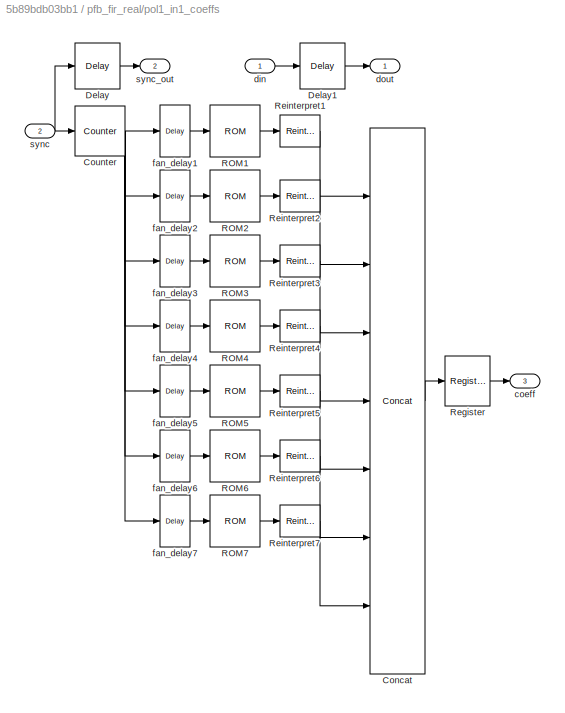
BLOCK [SubSystem] pfb_fir_real/pol1_in1_coeffs
  AncestorBlock = casper_library_pfbs/pfb_coeff_gen
  AttributesFormatString = PFBSize=10, n_inputs=3,\ntaps=7, input=0
  FunctionWithSeparateData = off
  MaskHideContents = off
  MinAlgLoopOccurrences = off
  Opaque = off
  Ports = [2, 3]
  PropExecContextOutsideSubsystem = off
  RTWSystemCode = Auto
  RequestExecContextInheritance = off
  UserDataPersistent = on
BLOCK [Reference] pfb_fir_real/pol1_in1_coeffs/Concat  REF=xbsIndex_r4/Concat
  Ports = [7, 1]
  SourceBlock = xbsIndex_r4/Concat
  SourceType = Xilinx Bus Concatenator Block
  block_type = concat
  block_version = 9.1.01
  dbl_ovrd = off
  has_advanced_control = 0
  infoedit = Concatenates two or more inputs.  Output will be cast to an unsigned value with the binary point at zero.
  num_inputs = 7
  sg_icon_stat = 55,546,7,1,white,blue,0,5db75f69,right,,[ ],[ ]
  sg_mask_display = fprintf('','COMMENT: begin icon graphics');\npatch([0 55 55 0 0 ],[0 0 546 546 0 ],[0.77 0.82 0.91 ]);\nplot([0 55 55 0 0 ],[0 0 546 546 0 ]);\npatch([11.425 21.54 28.54 35.54 42.54 28.54 18.425 11.425 ],[280.77 280.77 287.77 280.77 287.77 287.77 287.77 280.77 ],[1 1 1 ]);\npatch([18.425 28.54 21.54 11.425 18.425 ],[273.77 273.77 280.77 280.77 273.77 ],[0.931 0.946 0.973 ]);\npatch([11.425 21.54 28.54 ...<+460ch>  <repeated x8 — deduplicated; at blocks: Concat>
  sggui_pos = -1,-1,-1,-1
BLOCK [Reference] pfb_fir_real/pol1_in1_coeffs/Counter  REF=xbsIndex_r4/Counter
  Ports = [1, 1]
  SourceBlock = xbsIndex_r4/Counter
  SourceType = Xilinx Counter Block
  arith_type = Unsigned
  bin_pt = 0
  block_type = counter
  block_version = 9.1.01
  cnt_by_val = 1
  cnt_to = Inf
  cnt_type = Free Running
  dbl_ovrd = off
  en = off
  explicit_period = on
  has_advanced_control = 0
  implementation = Fabric
  infoedit = Hardware notes: Free running counters are the least expensive in hardware.  A count limited counter is implemented by combining a counter with a comparator.
  load_pin = off
  n_bits = 7
  operation = Up
  period = 1
  rst = on
  sg_icon_stat = 50,50,1,1,white,blue,0,803eba70,right,,[ ],[ ]
  sg_mask_display = fprintf('','COMMENT: begin icon graphics');\npatch([0 50 50 0 0 ],[0 0 50 50 0 ],[0.77 0.82 0.91 ]);\nplot([0 50 50 0 0 ],[0 0 50 50 0 ]);\npatch([9.425 19.54 26.54 33.54 40.54 26.54 16.425 9.425 ],[32.77 32.77 39.77 32.77 39.77 39.77 39.77 32.77 ],[1 1 1 ]);\npatch([16.425 26.54 19.54 9.425 16.425 ],[25.77 25.77 32.77 32.77 25.77 ],[0.931 0.946 0.973 ]);\npatch([9.425 19.54 26.54 16.425 9.425 ],[18.77...<+383ch>  <repeated x8 — deduplicated; at blocks: Counter>
  sggui_pos = 67,31,416,716
  start_count = 0
  use_behavioral_HDL = on
  use_rpm = on
  xl_area = [0, 0, 0, 0, 0, 0, 0]
  xl_use_area = off
BLOCK [Reference] pfb_fir_real/pol1_in1_coeffs/Delay  REF=xbsIndex_r4/Delay
  Ports = [1, 1]
  SourceBlock = xbsIndex_r4/Delay
  SourceType = Xilinx Delay Block
  block_type = delay
  block_version = 9.1.01
  dbl_ovrd = off
  en = off
  has_advanced_control = 0
  infoedit = Hardware notes: A delay line is a chain, each link of which is an SRL16 followed by a flip-flop.
  infoeditControl = Selection of Reset will increase slice count due to use of real FFs and instead of SRLs
  latency = bram_latency+1+fan_latency
  reg_retiming = on
  rst = off
  sg_icon_stat = 45,46,1,1,white,blue,0,d390c2d8,right,,[ ],[ ]
  sg_mask_display = fprintf('','COMMENT: begin icon graphics');\npatch([0 45 45 0 0 ],[0 0 46 46 0 ],[0.77 0.82 0.91 ]);\nplot([0 45 45 0 0 ],[0 0 46 46 0 ]);\npatch([8.65 17.32 23.32 29.32 35.32 23.32 14.65 8.65 ],[29.66 29.66 35.66 29.66 35.66 35.66 35.66 29.66 ],[1 1 1 ]);\npatch([14.65 23.32 17.32 8.65 14.65 ],[23.66 23.66 29.66 29.66 23.66 ],[0.931 0.946 0.973 ]);\npatch([8.65 17.32 23.32 14.65 8.65 ],[17.66 17.66 23...<+314ch>  <repeated x22 — deduplicated; at blocks: Delay, Delay1>
  sggui_pos = 937,66,419,361
  xl_area = [0, 0, 0, 0, 0, 0, 0]
  xl_use_area = off
BLOCK [Reference] pfb_fir_real/pol1_in1_coeffs/Delay1  REF=xbsIndex_r4/Delay
  Ports = [1, 1]
  SourceBlock = xbsIndex_r4/Delay
  SourceType = Xilinx Delay Block
  block_type = delay
  block_version = 9.1.01
  dbl_ovrd = off
  en = off
  has_advanced_control = 0
  infoedit = Hardware notes: A delay line is a chain, each link of which is an SRL16 followed by a flip-flop.
  infoeditControl = Selection of Reset will increase slice count due to use of real FFs and instead of SRLs
  latency = bram_latency+1+fan_latency
  reg_retiming = on
  rst = off
  sg_icon_stat = 45,46,1,1,white,blue,0,d390c2d8,right,,[ ],[ ]
  sggui_pos = 57,36,419,361
  xl_area = [0, 0, 0, 0, 0, 0, 0]
  xl_use_area = off
BLOCK [Reference] pfb_fir_real/pol1_in1_coeffs/ROM1  REF=xbsIndex_r4/ROM
  Ports = [1, 1]
  SourceBlock = xbsIndex_r4/ROM
  SourceType = Xilinx Single Port Read-Only Memory Block
  arith_type = Signed  (2's comp)
  bin_pt = 17
  block_type = sprom
  block_version = 9.1.01
  dbl_ovrd = off
  depth = 128
  distributed_mem = Block RAM
  en = off
  exp_width = 8
  frac_width = 24
  gui_display_data_type = Fixed-point
  has_advanced_control = 0
  initVector = pfb_coeff_gen_calc(10, 7,'hamming',3, 0,1,1,false)
  init_reg = 0
  latency = bram_latency
  n_bits = 18
  optimize = Area
  preci_type = Single
  rst = off
  sg_icon_stat = 50,52,1,1,white,blue,0,13b85882,right,,[ ],[ ]
  sg_mask_display = fprintf('','COMMENT: begin icon graphics');\npatch([0 50 50 0 0 ],[0 0 52 52 0 ],[0.77 0.82 0.91 ]);\nplot([0 50 50 0 0 ],[0 0 52 52 0 ]);\npatch([9.425 19.54 26.54 33.54 40.54 26.54 16.425 9.425 ],[33.77 33.77 40.77 33.77 40.77 40.77 40.77 33.77 ],[1 1 1 ]);\npatch([16.425 26.54 19.54 9.425 16.425 ],[26.77 26.77 33.77 33.77 26.77 ],[0.931 0.946 0.973 ]);\npatch([9.425 19.54 26.54 16.425 9.425 ],[19.77...<+370ch>  <repeated x56 — deduplicated; at blocks: ROM1, ROM2, ROM3, ROM4, ROM5, ROM6, ROM7>
  sggui_pos = 712,77,419,353
  use_rpm = on
  xl_area = [0, 0, 0, 0, 0, 0, 0]
  xl_use_area = off
BLOCK [Reference] pfb_fir_real/pol1_in1_coeffs/ROM2  REF=xbsIndex_r4/ROM
  Ports = [1, 1]
  SourceBlock = xbsIndex_r4/ROM
  SourceType = Xilinx Single Port Read-Only Memory Block
  arith_type = Signed  (2's comp)
  bin_pt = 17
  block_type = sprom
  block_version = 9.1.01
  dbl_ovrd = off
  depth = 128
  distributed_mem = Block RAM
  en = off
  exp_width = 8
  frac_width = 24
  gui_display_data_type = Fixed-point
  has_advanced_control = 0
  initVector = pfb_coeff_gen_calc(10, 7,'hamming',3, 0,1,2,false)
  init_reg = 0
  latency = bram_latency
  n_bits = 18
  optimize = Area
  preci_type = Single
  rst = off
  sg_icon_stat = 50,52,1,1,white,blue,0,13b85882,right,,[ ],[ ]
  sggui_pos = 57,19,419,353
  use_rpm = on
  xl_area = [0, 0, 0, 0, 0, 0, 0]
  xl_use_area = off
BLOCK [Reference] pfb_fir_real/pol1_in1_coeffs/ROM3  REF=xbsIndex_r4/ROM
  Ports = [1, 1]
  SourceBlock = xbsIndex_r4/ROM
  SourceType = Xilinx Single Port Read-Only Memory Block
  arith_type = Signed  (2's comp)
  bin_pt = 17
  block_type = sprom
  dbl_ovrd = off
  depth = 128
  distributed_mem = Block RAM
  en = off
  exp_width = 8
  frac_width = 24
  gui_display_data_type = Fixed-point
  has_advanced_control = 0
  initVector = pfb_coeff_gen_calc(10, 7,'hamming',3, 0,1,3,false)
  init_reg = 0
  latency = bram_latency
  n_bits = 18
  optimize = Area
  preci_type = Single
  rst = off
  sg_icon_stat = 50,52,1,1,white,blue,0,13b85882,right,,[ ],[ ]
  sggui_pos = -1,-1,-1,-1
  use_rpm = on
  xl_area = [0,0,0,0,0,0,0]
  xl_use_area = off
BLOCK [Reference] pfb_fir_real/pol1_in1_coeffs/ROM4  REF=xbsIndex_r4/ROM
  Ports = [1, 1]
  SourceBlock = xbsIndex_r4/ROM
  SourceType = Xilinx Single Port Read-Only Memory Block
  arith_type = Signed  (2's comp)
  bin_pt = 17
  block_type = sprom
  dbl_ovrd = off
  depth = 128
  distributed_mem = Block RAM
  en = off
  exp_width = 8
  frac_width = 24
  gui_display_data_type = Fixed-point
  has_advanced_control = 0
  initVector = pfb_coeff_gen_calc(10, 7,'hamming',3, 0,1,4,false)
  init_reg = 0
  latency = bram_latency
  n_bits = 18
  optimize = Area
  preci_type = Single
  rst = off
  sg_icon_stat = 50,52,1,1,white,blue,0,13b85882,right,,[ ],[ ]
  sggui_pos = -1,-1,-1,-1
  use_rpm = on
  xl_area = [0,0,0,0,0,0,0]
  xl_use_area = off
BLOCK [Reference] pfb_fir_real/pol1_in1_coeffs/ROM5  REF=xbsIndex_r4/ROM
  Ports = [1, 1]
  SourceBlock = xbsIndex_r4/ROM
  SourceType = Xilinx Single Port Read-Only Memory Block
  arith_type = Signed  (2's comp)
  bin_pt = 17
  block_type = sprom
  dbl_ovrd = off
  depth = 128
  distributed_mem = Block RAM
  en = off
  exp_width = 8
  frac_width = 24
  gui_display_data_type = Fixed-point
  has_advanced_control = 0
  initVector = pfb_coeff_gen_calc(10, 7,'hamming',3, 0,1,5,false)
  init_reg = 0
  latency = bram_latency
  n_bits = 18
  optimize = Area
  preci_type = Single
  rst = off
  sg_icon_stat = 50,52,1,1,white,blue,0,13b85882,right,,[ ],[ ]
  sggui_pos = -1,-1,-1,-1
  use_rpm = on
  xl_area = [0,0,0,0,0,0,0]
  xl_use_area = off
BLOCK [Reference] pfb_fir_real/pol1_in1_coeffs/ROM6  REF=xbsIndex_r4/ROM
  Ports = [1, 1]
  SourceBlock = xbsIndex_r4/ROM
  SourceType = Xilinx Single Port Read-Only Memory Block
  arith_type = Signed  (2's comp)
  bin_pt = 17
  block_type = sprom
  dbl_ovrd = off
  depth = 128
  distributed_mem = Block RAM
  en = off
  exp_width = 8
  frac_width = 24
  gui_display_data_type = Fixed-point
  has_advanced_control = 0
  initVector = pfb_coeff_gen_calc(10, 7,'hamming',3, 0,1,6,false)
  init_reg = 0
  latency = bram_latency
  n_bits = 18
  optimize = Area
  preci_type = Single
  rst = off
  sg_icon_stat = 50,52,1,1,white,blue,0,13b85882,right,,[ ],[ ]
  sggui_pos = -1,-1,-1,-1
  use_rpm = on
  xl_area = [0,0,0,0,0,0,0]
  xl_use_area = off
BLOCK [Reference] pfb_fir_real/pol1_in1_coeffs/ROM7  REF=xbsIndex_r4/ROM
  Ports = [1, 1]
  SourceBlock = xbsIndex_r4/ROM
  SourceType = Xilinx Single Port Read-Only Memory Block
  arith_type = Signed  (2's comp)
  bin_pt = 17
  block_type = sprom
  dbl_ovrd = off
  depth = 128
  distributed_mem = Block RAM
  en = off
  exp_width = 8
  frac_width = 24
  gui_display_data_type = Fixed-point
  has_advanced_control = 0
  initVector = pfb_coeff_gen_calc(10, 7,'hamming',3, 0,1,7,false)
  init_reg = 0
  latency = bram_latency
  n_bits = 18
  optimize = Area
  preci_type = Single
  rst = off
  sg_icon_stat = 50,52,1,1,white,blue,0,13b85882,right,,[ ],[ ]
  sggui_pos = -1,-1,-1,-1
  use_rpm = on
  xl_area = [0,0,0,0,0,0,0]
  xl_use_area = off
BLOCK [Reference] pfb_fir_real/pol1_in1_coeffs/Register  REF=xbsIndex_r4/Register
  Ports = [1, 1]
  SourceBlock = xbsIndex_r4/Register
  SourceType = Xilinx Register Block
  block_type = register
  block_version = 9.1.01
  dbl_ovrd = off
  en = off
  has_advanced_control = 0
  init = 0
  rst = off
  sg_icon_stat = 45,50,1,1,white,blue,0,c80657c5,right,,[ ],[ ]
  sg_mask_display = fprintf('','COMMENT: begin icon graphics');\npatch([0 45 45 0 0 ],[0 0 50 50 0 ],[0.77 0.82 0.91 ]);\nplot([0 45 45 0 0 ],[0 0 50 50 0 ]);\npatch([8.65 17.32 23.32 29.32 35.32 23.32 14.65 8.65 ],[31.66 31.66 37.66 31.66 37.66 37.66 37.66 31.66 ],[1 1 1 ]);\npatch([14.65 23.32 17.32 8.65 14.65 ],[25.66 25.66 31.66 31.66 25.66 ],[0.931 0.946 0.973 ]);\npatch([8.65 17.32 23.32 14.65 8.65 ],[19.66 19.66 25...<+397ch>  <repeated x8 — deduplicated; at blocks: Register>
  sggui_pos = 1700,25,419,209
  xl_area = [0, 0, 0, 0, 0, 0, 0]
  xl_use_area = off
BLOCK [Reference] pfb_fir_real/pol1_in1_coeffs/Reinterpret1  REF=xbsIndex_r4/Reinterpret
  Ports = [1, 1]
  SourceBlock = xbsIndex_r4/Reinterpret
  SourceType = Xilinx Type Reinterpreter Block
  arith_type = Unsigned
  bin_pt = 0
  block_type = reinterpret
  block_version = 9.1.01
  force_arith_type = on
  force_bin_pt = on
  has_advanced_control = 0
  infoedit = Changes signal type without altering the binary representation.   You can changed the signal between signed and unsigned, and relocate the binary point.<P><P>Hardware notes: In hardware this block costs nothing.<P><P>Example:  Suppose the input is 6 bits wide, signed, with 2 fractional bits, and the output is forced to unsigned with 0 fractional bits.  Then an input of -2.0 (1110.00 in binary 2's ...<+55ch>  <repeated x124 — deduplicated; at blocks: Reinterpret1, Reinterpret2, Reinterpret>
  sg_icon_stat = 40,32,1,1,white,blue,0,6b04d0b0,right,,[ ],[ ]
  sg_mask_display = fprintf('','COMMENT: begin icon graphics');\npatch([0 40 40 0 0 ],[0 0 32 32 0 ],[0.77 0.82 0.91 ]);\nplot([0 40 40 0 0 ],[0 0 32 32 0 ]);\npatch([11.1 16.88 20.88 24.88 28.88 20.88 15.1 11.1 ],[20.44 20.44 24.44 20.44 24.44 24.44 24.44 20.44 ],[1 1 1 ]);\npatch([15.1 20.88 16.88 11.1 15.1 ],[16.44 16.44 20.44 20.44 16.44 ],[0.931 0.946 0.973 ]);\npatch([11.1 16.88 20.88 15.1 11.1 ],[12.44 12.44 16.44 ...<+294ch>  <repeated x164 — deduplicated; at blocks: Reinterpret1, Reinterpret2, Reinterpret3, Reinterpret4, Reinterpret5, Reinterpret6, Reinterpret7, Reinterpret>
  sggui_pos = -1,-1,-1,-1
BLOCK [Reference] pfb_fir_real/pol1_in1_coeffs/Reinterpret2  REF=xbsIndex_r4/Reinterpret
  Ports = [1, 1]
  SourceBlock = xbsIndex_r4/Reinterpret
  SourceType = Xilinx Type Reinterpreter Block
  arith_type = Unsigned
  bin_pt = 0
  block_type = reinterpret
  block_version = 9.1.01
  force_arith_type = on
  force_bin_pt = on
  has_advanced_control = 0
  sg_icon_stat = 40,32,1,1,white,blue,0,6b04d0b0,right,,[ ],[ ]
  sggui_pos = -1,-1,-1,-1
BLOCK [Reference] pfb_fir_real/pol1_in1_coeffs/Reinterpret3  REF=xbsIndex_r4/Reinterpret
  Ports = [1, 1]
  SourceBlock = xbsIndex_r4/Reinterpret
  SourceType = Xilinx Type Reinterpreter Block
  arith_type = Unsigned
  bin_pt = 0
  block_type = reinterpret
  force_arith_type = on
  force_bin_pt = on
  has_advanced_control = 0
  infoedit = Changes signal type without altering the binary representation.   You can change the signal between signed and unsigned, and relocate the binary point.<br><br>Hardware notes: In hardware this block costs nothing.<br><br>Example:  Suppose the input is 6 bits wide, signed, with 2 fractional bits, and the output is forced to unsigned with 0 fractional bits.  Then an input of -2.0 (1110.00 in binary 2...<+58ch>  <repeated x40 — deduplicated; at blocks: Reinterpret3, Reinterpret4, Reinterpret5, Reinterpret6, Reinterpret7>
  sg_icon_stat = 40,32,1,1,white,blue,0,6b04d0b0,right,,[ ],[ ]
  sggui_pos = -1,-1,-1,-1
BLOCK [Reference] pfb_fir_real/pol1_in1_coeffs/Reinterpret4  REF=xbsIndex_r4/Reinterpret
  Ports = [1, 1]
  SourceBlock = xbsIndex_r4/Reinterpret
  SourceType = Xilinx Type Reinterpreter Block
  arith_type = Unsigned
  bin_pt = 0
  block_type = reinterpret
  force_arith_type = on
  force_bin_pt = on
  has_advanced_control = 0
  sg_icon_stat = 40,32,1,1,white,blue,0,6b04d0b0,right,,[ ],[ ]
  sggui_pos = -1,-1,-1,-1
BLOCK [Reference] pfb_fir_real/pol1_in1_coeffs/Reinterpret5  REF=xbsIndex_r4/Reinterpret
  Ports = [1, 1]
  SourceBlock = xbsIndex_r4/Reinterpret
  SourceType = Xilinx Type Reinterpreter Block
  arith_type = Unsigned
  bin_pt = 0
  block_type = reinterpret
  force_arith_type = on
  force_bin_pt = on
  has_advanced_control = 0
  sg_icon_stat = 40,32,1,1,white,blue,0,6b04d0b0,right,,[ ],[ ]
  sggui_pos = -1,-1,-1,-1
BLOCK [Reference] pfb_fir_real/pol1_in1_coeffs/Reinterpret6  REF=xbsIndex_r4/Reinterpret
  Ports = [1, 1]
  SourceBlock = xbsIndex_r4/Reinterpret
  SourceType = Xilinx Type Reinterpreter Block
  arith_type = Unsigned
  bin_pt = 0
  block_type = reinterpret
  force_arith_type = on
  force_bin_pt = on
  has_advanced_control = 0
  sg_icon_stat = 40,32,1,1,white,blue,0,6b04d0b0,right,,[ ],[ ]
  sggui_pos = -1,-1,-1,-1
BLOCK [Reference] pfb_fir_real/pol1_in1_coeffs/Reinterpret7  REF=xbsIndex_r4/Reinterpret
  Ports = [1, 1]
  SourceBlock = xbsIndex_r4/Reinterpret
  SourceType = Xilinx Type Reinterpreter Block
  arith_type = Unsigned
  bin_pt = 0
  block_type = reinterpret
  force_arith_type = on
  force_bin_pt = on
  has_advanced_control = 0
  sg_icon_stat = 40,32,1,1,white,blue,0,6b04d0b0,right,,[ ],[ ]
  sggui_pos = -1,-1,-1,-1
BLOCK [Outport] pfb_fir_real/pol1_in1_coeffs/coeff
  IconDisplay = Port number
  Port = 3
BLOCK [Inport] pfb_fir_real/pol1_in1_coeffs/din
  IconDisplay = Port number
BLOCK [Outport] pfb_fir_real/pol1_in1_coeffs/dout
  IconDisplay = Port number
BLOCK [Reference] pfb_fir_real/pol1_in1_coeffs/fan_delay1  REF=xbsIndex_r4/Delay
  Ports = [1, 1]
  SourceBlock = xbsIndex_r4/Delay
  SourceType = Xilinx Delay Block
  block_type = delay
  block_version = 11.4
  dbl_ovrd = off
  en = off
  has_advanced_control = 0
  infoedit = Hardware notes: A delay line is a chain, each link of which is an SRL16 followed by a flip-flop.
  infoeditControl = Selection of Reset will increase slice count due to use of real FFs and instead of SRLs
  latency = fan_latency
  reg_retiming = on
  rst = off
  sg_icon_stat = 30,52,1,1,white,blue,0,07b98262,right,,[ ],[ ]
  sg_mask_display = fprintf('','COMMENT: begin icon graphics');\npatch([0 30 30 0 0 ],[0 0 52 52 0 ],[0.77 0.82 0.91 ]);\nplot([0 30 30 0 0 ],[0 0 52 52 0 ]);\npatch([6.1 11.88 15.88 19.88 23.88 15.88 10.1 6.1 ],[30.44 30.44 34.44 30.44 34.44 34.44 34.44 30.44 ],[1 1 1 ]);\npatch([10.1 15.88 11.88 6.1 10.1 ],[26.44 26.44 30.44 30.44 26.44 ],[0.931 0.946 0.973 ]);\npatch([6.1 11.88 15.88 10.1 6.1 ],[22.44 22.44 26.44 26.44...<+302ch>  <repeated x56 — deduplicated; at blocks: fan_delay1, fan_delay2, fan_delay3, fan_delay4, fan_delay5, fan_delay6, fan_delay7>
  sggui_pos = -1,-1,-1,-1
  xl_area = [0,0,0,0,0,0,0]
  xl_use_area = off
BLOCK [Reference] pfb_fir_real/pol1_in1_coeffs/fan_delay2  REF=xbsIndex_r4/Delay
  Ports = [1, 1]
  SourceBlock = xbsIndex_r4/Delay
  SourceType = Xilinx Delay Block
  block_type = delay
  block_version = 11.4
  dbl_ovrd = off
  en = off
  has_advanced_control = 0
  infoedit = Hardware notes: A delay line is a chain, each link of which is an SRL16 followed by a flip-flop.
  infoeditControl = Selection of Reset will increase slice count due to use of real FFs and instead of SRLs
  latency = fan_latency
  reg_retiming = on
  rst = off
  sg_icon_stat = 30,52,1,1,white,blue,0,07b98262,right,,[ ],[ ]
  sggui_pos = -1,-1,-1,-1
  xl_area = [0,0,0,0,0,0,0]
  xl_use_area = off
BLOCK [Reference] pfb_fir_real/pol1_in1_coeffs/fan_delay3  REF=xbsIndex_r4/Delay
  Ports = [1, 1]
  SourceBlock = xbsIndex_r4/Delay
  SourceType = Xilinx Delay Block
  block_type = delay
  dbl_ovrd = off
  en = off
  has_advanced_control = 0
  infoedit = Hardware notes: A delay line is a chain, each link of which is an SRL16 followed by a flip-flop.
  infoeditControl = Selection of Reset will increase slice count due to use of real FFs and instead of SRLs
  latency = fan_latency
  reg_retiming = off
  rst = off
  sg_icon_stat = 30,52,1,1,white,blue,0,07b98262,right,,[ ],[ ]
  sggui_pos = -1,-1,-1,-1
  xl_area = [0,0,0,0,0,0,0]
  xl_use_area = off
BLOCK [Reference] pfb_fir_real/pol1_in1_coeffs/fan_delay4  REF=xbsIndex_r4/Delay
  Ports = [1, 1]
  SourceBlock = xbsIndex_r4/Delay
  SourceType = Xilinx Delay Block
  block_type = delay
  dbl_ovrd = off
  en = off
  has_advanced_control = 0
  infoedit = Hardware notes: A delay line is a chain, each link of which is an SRL16 followed by a flip-flop.
  infoeditControl = Selection of Reset will increase slice count due to use of real FFs and instead of SRLs
  latency = fan_latency
  reg_retiming = off
  rst = off
  sg_icon_stat = 30,52,1,1,white,blue,0,07b98262,right,,[ ],[ ]
  sggui_pos = -1,-1,-1,-1
  xl_area = [0,0,0,0,0,0,0]
  xl_use_area = off
BLOCK [Reference] pfb_fir_real/pol1_in1_coeffs/fan_delay5  REF=xbsIndex_r4/Delay
  Ports = [1, 1]
  SourceBlock = xbsIndex_r4/Delay
  SourceType = Xilinx Delay Block
  block_type = delay
  dbl_ovrd = off
  en = off
  has_advanced_control = 0
  infoedit = Hardware notes: A delay line is a chain, each link of which is an SRL16 followed by a flip-flop.
  infoeditControl = Selection of Reset will increase slice count due to use of real FFs and instead of SRLs
  latency = fan_latency
  reg_retiming = off
  rst = off
  sg_icon_stat = 30,52,1,1,white,blue,0,07b98262,right,,[ ],[ ]
  sggui_pos = -1,-1,-1,-1
  xl_area = [0,0,0,0,0,0,0]
  xl_use_area = off
BLOCK [Reference] pfb_fir_real/pol1_in1_coeffs/fan_delay6  REF=xbsIndex_r4/Delay
  Ports = [1, 1]
  SourceBlock = xbsIndex_r4/Delay
  SourceType = Xilinx Delay Block
  block_type = delay
  dbl_ovrd = off
  en = off
  has_advanced_control = 0
  infoedit = Hardware notes: A delay line is a chain, each link of which is an SRL16 followed by a flip-flop.
  infoeditControl = Selection of Reset will increase slice count due to use of real FFs and instead of SRLs
  latency = fan_latency
  reg_retiming = off
  rst = off
  sg_icon_stat = 30,52,1,1,white,blue,0,07b98262,right,,[ ],[ ]
  sggui_pos = -1,-1,-1,-1
  xl_area = [0,0,0,0,0,0,0]
  xl_use_area = off
BLOCK [Reference] pfb_fir_real/pol1_in1_coeffs/fan_delay7  REF=xbsIndex_r4/Delay
  Ports = [1, 1]
  SourceBlock = xbsIndex_r4/Delay
  SourceType = Xilinx Delay Block
  block_type = delay
  dbl_ovrd = off
  en = off
  has_advanced_control = 0
  infoedit = Hardware notes: A delay line is a chain, each link of which is an SRL16 followed by a flip-flop.
  infoeditControl = Selection of Reset will increase slice count due to use of real FFs and instead of SRLs
  latency = fan_latency
  reg_retiming = off
  rst = off
  sg_icon_stat = 30,52,1,1,white,blue,0,07b98262,right,,[ ],[ ]
  sggui_pos = -1,-1,-1,-1
  xl_area = [0,0,0,0,0,0,0]
  xl_use_area = off
BLOCK [Inport] pfb_fir_real/pol1_in1_coeffs/sync
  IconDisplay = Port number
  Port = 2
BLOCK [Outport] pfb_fir_real/pol1_in1_coeffs/sync_out
  IconDisplay = Port number
  Port = 2
BLOCK [SubSystem] pfb_fir_real/pol1_in1_first_tap
  AncestorBlock = casper_library_pfbs/first_tap_real
  AttributesFormatString = taps=7
  FunctionWithSeparateData = off
  MaskHideContents = off
  MinAlgLoopOccurrences = off
  Opaque = off
  Ports = [3, 4]
  PropExecContextOutsideSubsystem = off
  RTWSystemCode = Auto
  RequestExecContextInheritance = off
  UserDataPersistent = on
BLOCK [Reference] pfb_fir_real/pol1_in1_first_tap/Mult  REF=xbsIndex_r4/Mult
  Ports = [2, 1]
  SourceBlock = xbsIndex_r4/Mult
  SourceType = Xilinx Multiplier Block
  arith_type = Signed  (2's comp)
  bin_pt = 2
  block_type = mult
  block_version = 9.1.01
  dbl_ovrd = off
  en = off
  has_advanced_control = 0
  infoedit = Hardware notes: To use the internal pipeline stage of the dedicated multiplier you must select 'Pipeline for maximum performance'.
  latency = mult_latency
  n_bits = 8
  opt = Speed
  optimum_pipeline = off
  overflow = Wrap
  pipeline = on
  placement_style = Rectangular shape
  precision = Full
  quantization = Truncate
  sg_icon_stat = 50,51,2,1,white,blue,0,2fbe4d8a,right,,[ ],[ ]
  sg_mask_display = fprintf('','COMMENT: begin icon graphics');\npatch([0 50 50 0 0 ],[0 0 51 51 0 ],[0.77 0.82 0.91 ]);\nplot([0 50 50 0 0 ],[0 0 51 51 0 ]);\npatch([9.425 19.54 26.54 33.54 40.54 26.54 16.425 9.425 ],[32.77 32.77 39.77 32.77 39.77 39.77 39.77 32.77 ],[1 1 1 ]);\npatch([16.425 26.54 19.54 9.425 16.425 ],[25.77 25.77 32.77 32.77 25.77 ],[0.931 0.946 0.973 ]);\npatch([9.425 19.54 26.54 16.425 9.425 ],[18.77...<+516ch>  <repeated x54 — deduplicated; at blocks: Mult>
  sggui_pos = 20,20,348,434
  use_behavioral_HDL = on
  use_embedded = off
  use_rpm = on
  xl_area = [0, 0, 0, 0, 0, 0, 0]
  xl_use_area = off
BLOCK [Reference] pfb_fir_real/pol1_in1_first_tap/Reinterpret  REF=xbsIndex_r4/Reinterpret
  Ports = [1, 1]
  SourceBlock = xbsIndex_r4/Reinterpret
  SourceType = Xilinx Type Reinterpreter Block
  arith_type = Signed  (2's comp)
  bin_pt = CoeffBitWidth - 1
  block_type = reinterpret
  block_version = 9.1.01
  force_arith_type = on
  force_bin_pt = on
  has_advanced_control = 0
  sg_icon_stat = 40,32,1,1,white,blue,0,6b04d0b0,right,,[ ],[ ]
  sggui_pos = -1,-1,-1,-1
BLOCK [Reference] pfb_fir_real/pol1_in1_first_tap/Reinterpret2  REF=xbsIndex_r4/Reinterpret
  Ports = [1, 1]
  SourceBlock = xbsIndex_r4/Reinterpret
  SourceType = Xilinx Type Reinterpreter Block
  arith_type = Signed  (2's comp)
  bin_pt = BitWidthIn - 1
  block_type = reinterpret
  block_version = 9.1.01
  force_arith_type = on
  force_bin_pt = on
  has_advanced_control = 0
  sg_icon_stat = 40,32,1,1,white,blue,0,6b04d0b0,right,,[ ],[ ]
  sggui_pos = -1,-1,-1,-1
BLOCK [Reference] pfb_fir_real/pol1_in1_first_tap/Slice  REF=xbsIndex_r4/Slice
  Ports = [1, 1]
  SourceBlock = xbsIndex_r4/Slice
  SourceType = Xilinx Bit Slice Extractor Block
  base0 = LSB of Input
  base1 = MSB of Input
  bit0 = 0
  bit1 = 0
  block_type = slice
  block_version = 9.1.01
  boolean_output = off
  dbl_ovrd = off
  has_advanced_control = 0
  infoedit = Extracts a given range of bits from each input sample and presents it at the output.  The output type is ordinarily unsigned with binary point at zero, but can be Boolean when the slice is one bit wide.<P><P>Hardware notes: In hardware this block costs nothing.  <repeated x96 — deduplicated; at blocks: Slice, Slice1>
  mode = Lower Bit Location + Width
  nbits = CoeffBitWidth
  sg_icon_stat = 45,28,1,1,white,blue,0,1fd851a7,right,,[ ],[ ]
  sg_mask_display = fprintf('','COMMENT: begin icon graphics');\npatch([0 45 45 0 0 ],[0 0 28 28 0 ],[0.77 0.82 0.91 ]);\nplot([0 45 45 0 0 ],[0 0 28 28 0 ]);\npatch([13.1 18.88 22.88 26.88 30.88 22.88 17.1 13.1 ],[18.44 18.44 22.44 18.44 22.44 22.44 22.44 18.44 ],[1 1 1 ]);\npatch([17.1 22.88 18.88 13.1 17.1 ],[14.44 14.44 18.44 18.44 14.44 ],[0.931 0.946 0.973 ]);\npatch([13.1 18.88 22.88 17.1 13.1 ],[10.44 10.44 14.44 ...<+304ch>  <repeated x96 — deduplicated; at blocks: Slice, Slice1>
  sggui_pos = 57,19,543,459
BLOCK [Reference] pfb_fir_real/pol1_in1_first_tap/Slice1  REF=xbsIndex_r4/Slice
  Ports = [1, 1]
  SourceBlock = xbsIndex_r4/Slice
  SourceType = Xilinx Bit Slice Extractor Block
  base0 = LSB of Input
  base1 = MSB of Input
  bit0 = CoeffBitWidth
  bit1 = 0
  block_type = slice
  block_version = 9.1.01
  boolean_output = off
  dbl_ovrd = off
  has_advanced_control = 0
  mode = Two Bit Locations
  nbits = CoeffBitWidth * (TotalTaps - 1)
  sg_icon_stat = 45,28,1,1,white,blue,0,1fd851a7,right,,[ ],[ ]
  sggui_pos = -1,-1,-1,-1
BLOCK [Outport] pfb_fir_real/pol1_in1_first_tap/coeff_out
  IconDisplay = Port number
  Port = 3
BLOCK [Inport] pfb_fir_real/pol1_in1_first_tap/coeffs
  IconDisplay = Port number
  Port = 3
BLOCK [SubSystem] pfb_fir_real/pol1_in1_first_tap/delay_bram
  AncestorBlock = casper_library_delays/delay_bram
  FunctionWithSeparateData = off
  MaskHideContents = off
  MinAlgLoopOccurrences = off
  Opaque = off
  Ports = [1, 1]
  PropExecContextOutsideSubsystem = off
  RTWSystemCode = Auto
  RequestExecContextInheritance = off
  UserDataPersistent = on
BLOCK [Reference] pfb_fir_real/pol1_in1_first_tap/delay_bram/constant  REF=xbsIndex_r4/Constant
  Ports = [0, 1]
  SourceBlock = xbsIndex_r4/Constant
  SourceType = Xilinx Constant Block Block
  arith_type = Boolean
  bin_pt = 14
  block_type = constant
  carry = CIN
  const = 1
  dbl_ovrd = off
  dsp48_infoedit = The use of this block for DSP48 instructions is deprecated.  Please use the Opmode block.
  equ = P=C
  exp_width = 8
  explicit_period = on
  frac_width = 24
  gui_display_data_type = Fixed-point
  has_advanced_control = 0
  inp1 = P
  inp2 = PCIN>>17
  n_bits = 16
  opr = +
  opselect = C
  period = 1
  preci_type = Single
  sg_icon_stat = 35,24,0,1,white,blue,0,1c72b5be,right,,[ ],[ ]
  sg_mask_display = fprintf('','COMMENT: begin icon graphics');\npatch([0 35 35 0 0 ],[0 0 24 24 0 ],[0.77 0.82 0.91 ]);\nplot([0 35 35 0 0 ],[0 0 24 24 0 ]);\npatch([10.325 14.66 17.66 20.66 23.66 17.66 13.325 10.325 ],[15.33 15.33 18.33 15.33 18.33 18.33 18.33 15.33 ],[1 1 1 ]);\npatch([13.325 17.66 14.66 10.325 13.325 ],[12.33 12.33 15.33 15.33 12.33 ],[0.931 0.946 0.973 ]);\npatch([10.325 14.66 17.66 13.325 10.325 ],[...<+317ch>  <repeated x48 — deduplicated; at blocks: constant>
  sggui_pos = -1,-1,-1,-1
BLOCK [Reference] pfb_fir_real/pol1_in1_first_tap/delay_bram/counter  REF=xbsIndex_r4/Counter
  Ports = [0, 1]
  SourceBlock = xbsIndex_r4/Counter
  SourceType = Xilinx Counter Block
  arith_type = Unsigned
  bin_pt = 0
  block_type = counter
  cnt_by_val = 1
  cnt_to = DelayLen - bram_latency - 1
  cnt_type = Count Limited
  dbl_ovrd = off
  en = off
  explicit_period = on
  has_advanced_control = 0
  implementation = Fabric
  infoedit = Hardware notes: Free running counters are the least expensive in hardware.  A count limited counter is implemented by combining a counter with a comparator.
  load_pin = off
  n_bits = 7
  operation = Up
  period = 1
  rst = off
  sg_icon_stat = 35,32,0,1,white,blue,0,4b061529,right,,[ ],[ ]
  sg_mask_display = fprintf('','COMMENT: begin icon graphics');\npatch([0 35 35 0 0 ],[0 0 32 32 0 ],[0.77 0.82 0.91 ]);\nplot([0 35 35 0 0 ],[0 0 32 32 0 ]);\npatch([8.1 13.88 17.88 21.88 25.88 17.88 12.1 8.1 ],[20.44 20.44 24.44 20.44 24.44 24.44 24.44 20.44 ],[1 1 1 ]);\npatch([12.1 17.88 13.88 8.1 12.1 ],[16.44 16.44 20.44 20.44 16.44 ],[0.931 0.946 0.973 ]);\npatch([8.1 13.88 17.88 12.1 8.1 ],[12.44 12.44 16.44 16.44...<+323ch>  <repeated x45 — deduplicated; at blocks: counter>
  sggui_pos = 47,19,416,716
  start_count = 0
  use_behavioral_HDL = on
  use_rpm = off
  xl_area = [0,0,0,0,0,0,0]
  xl_use_area = off
BLOCK [Inport] pfb_fir_real/pol1_in1_first_tap/delay_bram/din
  IconDisplay = Port number
BLOCK [Outport] pfb_fir_real/pol1_in1_first_tap/delay_bram/dout
  IconDisplay = Port number
BLOCK [Reference] pfb_fir_real/pol1_in1_first_tap/delay_bram/ram  REF=xbsIndex_r4/Single Port RAM
  Ports = [3, 1]
  SourceBlock = xbsIndex_r4/Single Port RAM
  SourceType = Xilinx Single Port Random Access Memory Block
  block_type = spram
  dbl_ovrd = off
  depth = 128
  distributed_mem = Block RAM
  en = off
  has_advanced_control = 0
  initVector = 0
  init_reg = 0
  latency = bram_latency
  optimize = Area
  rst = off
  sg_icon_stat = 65,116,3,1,white,blue,0,558c5cad,right,,[ ],[ ]
  sg_mask_display = fprintf('','COMMENT: begin icon graphics');\npatch([0 65 65 0 0 ],[0 0 116 116 0 ],[0.77 0.82 0.91 ]);\nplot([0 65 65 0 0 ],[0 0 116 116 0 ]);\npatch([11.975 24.98 33.98 42.98 51.98 33.98 20.975 11.975 ],[67.99 67.99 76.99 67.99 76.99 76.99 76.99 67.99 ],[1 1 1 ]);\npatch([20.975 33.98 24.98 11.975 20.975 ],[58.99 58.99 67.99 67.99 58.99 ],[0.931 0.946 0.973 ]);\npatch([11.975 24.98 33.98 20.975 11.975...<+468ch>  <repeated x45 — deduplicated; at blocks: ram>
  sggui_pos = 77,39,425,369
  write_mode = Read Before Write
  xl_area = [0,0,0,0,0,0,0]
  xl_use_area = off
BLOCK [Inport] pfb_fir_real/pol1_in1_first_tap/din
  IconDisplay = Port number
BLOCK [Outport] pfb_fir_real/pol1_in1_first_tap/dout
  IconDisplay = Port number
BLOCK [Inport] pfb_fir_real/pol1_in1_first_tap/sync
  IconDisplay = Port number
  Port = 2
BLOCK [Reference] pfb_fir_real/pol1_in1_first_tap/sync_delay  REF=casper_library_delays/sync_delay  (lib defined in mdl_259a08a3fac5, mdl_65009615caaa, +5 more)
  DelayLen = 2^(PFBSize-n_inputs)
  Ports = [1, 1]
  SourceBlock = casper_library_delays/sync_delay
  SourceType = sync_delay
BLOCK [Outport] pfb_fir_real/pol1_in1_first_tap/sync_out
  IconDisplay = Port number
  Port = 2
BLOCK [Outport] pfb_fir_real/pol1_in1_first_tap/taps_out
  IconDisplay = Port number
  Port = 4
BLOCK [Reference] pfb_fir_real/pol1_in1_last_tap  REF=casper_library_pfbs/last_tap_real  (lib defined in mdl_50091db22f6a, mdl_a05f11ac0f26, +6 more)
  BitWidthIn = 8
  CoeffBitWidth = 18
  Ports = [3, 2]
  SourceBlock = casper_library_pfbs/last_tap_real
  SourceType = last_tap_real
  UserDataPersistent = on
  mult_latency = 2
  use_embedded = off
  use_hdl = on
BLOCK [SubSystem] pfb_fir_real/pol1_in1_tap2
  AncestorBlock = casper_library_pfbs/tap_real
  FunctionWithSeparateData = off
  MaskHideContents = off
  MinAlgLoopOccurrences = off
  Opaque = off
  Ports = [3, 4]
  PropExecContextOutsideSubsystem = off
  RTWSystemCode = Auto
  RequestExecContextInheritance = off
BLOCK [Reference] pfb_fir_real/pol1_in1_tap2/Mult  REF=xbsIndex_r4/Mult
  Ports = [2, 1]
  SourceBlock = xbsIndex_r4/Mult
  SourceType = Xilinx Multiplier Block
  arith_type = Signed  (2's comp)
  bin_pt = 2
  block_type = mult
  block_version = 9.1.01
  dbl_ovrd = off
  en = off
  has_advanced_control = 0
  infoedit = Hardware notes: To use the internal pipeline stage of the dedicated multiplier you must select 'Pipeline for maximum performance'.
  latency = mult_latency
  n_bits = 8
  opt = Speed
  optimum_pipeline = off
  overflow = Wrap
  pipeline = on
  placement_style = Rectangular shape
  precision = Full
  quantization = Truncate
  sg_icon_stat = 50,51,2,1,white,blue,0,2fbe4d8a,right,,[ ],[ ]
  sggui_pos = 20,20,348,434
  use_behavioral_HDL = on
  use_embedded = off
  use_rpm = on
  xl_area = [0, 0, 0, 0, 0, 0, 0]
  xl_use_area = off
BLOCK [Reference] pfb_fir_real/pol1_in1_tap2/Reinterpret  REF=xbsIndex_r4/Reinterpret
  Ports = [1, 1]
  SourceBlock = xbsIndex_r4/Reinterpret
  SourceType = Xilinx Type Reinterpreter Block
  arith_type = Signed  (2's comp)
  bin_pt = coeff_frac_width
  block_type = reinterpret
  block_version = 9.1.01
  force_arith_type = on
  force_bin_pt = on
  has_advanced_control = 0
  sg_icon_stat = 40,32,1,1,white,blue,0,6b04d0b0,right,,[ ],[ ]
  sggui_pos = 2094,174,336,370
BLOCK [Reference] pfb_fir_real/pol1_in1_tap2/Reinterpret1  REF=xbsIndex_r4/Reinterpret
  Ports = [1, 1]
  SourceBlock = xbsIndex_r4/Reinterpret
  SourceType = Xilinx Type Reinterpreter Block
  arith_type = Signed  (2's comp)
  bin_pt = data_width - 1
  block_type = reinterpret
  block_version = 9.1.01
  force_arith_type = on
  force_bin_pt = on
  has_advanced_control = 0
  sg_icon_stat = 40,32,1,1,white,blue,0,6b04d0b0,right,,[ ],[ ]
  sggui_pos = 2607,154,336,370
BLOCK [Reference] pfb_fir_real/pol1_in1_tap2/Slice  REF=xbsIndex_r4/Slice
  Ports = [1, 1]
  SourceBlock = xbsIndex_r4/Slice
  SourceType = Xilinx Bit Slice Extractor Block
  base0 = LSB of Input
  base1 = MSB of Input
  bit0 = 0
  bit1 = 0
  block_type = slice
  block_version = 9.1.01
  boolean_output = off
  dbl_ovrd = off
  has_advanced_control = 0
  mode = Lower Bit Location + Width
  nbits = coeff_width
  sg_icon_stat = 45,28,1,1,white,blue,0,1fd851a7,right,,[ ],[ ]
  sggui_pos = 2238,309,533,427
BLOCK [Reference] pfb_fir_real/pol1_in1_tap2/Slice1  REF=xbsIndex_r4/Slice
  Ports = [1, 1]
  SourceBlock = xbsIndex_r4/Slice
  SourceType = Xilinx Bit Slice Extractor Block
  base0 = LSB of Input
  base1 = MSB of Input
  bit0 = coeff_width
  bit1 = 0
  block_type = slice
  block_version = 9.1.01
  boolean_output = off
  dbl_ovrd = off
  has_advanced_control = 0
  mode = Two Bit Locations
  nbits = 0
  sg_icon_stat = 45,28,1,1,white,blue,0,1fd851a7,right,,[ ],[ ]
  sggui_pos = 2019,133,533,427
BLOCK [Inport] pfb_fir_real/pol1_in1_tap2/coeff
  IconDisplay = Port number
  Port = 3
BLOCK [Outport] pfb_fir_real/pol1_in1_tap2/coeff_out
  IconDisplay = Port number
  Port = 3
BLOCK [SubSystem] pfb_fir_real/pol1_in1_tap2/delay_bram
  AncestorBlock = casper_library_delays/delay_bram
  FunctionWithSeparateData = off
  MaskHideContents = off
  MinAlgLoopOccurrences = off
  Opaque = off
  Ports = [1, 1]
  PropExecContextOutsideSubsystem = off
  RTWSystemCode = Auto
  RequestExecContextInheritance = off
  UserDataPersistent = on
BLOCK [Reference] pfb_fir_real/pol1_in1_tap2/delay_bram/constant  REF=xbsIndex_r4/Constant
  Ports = [0, 1]
  SourceBlock = xbsIndex_r4/Constant
  SourceType = Xilinx Constant Block Block
  arith_type = Boolean
  bin_pt = 14
  block_type = constant
  carry = CIN
  const = 1
  dbl_ovrd = off
  dsp48_infoedit = The use of this block for DSP48 instructions is deprecated.  Please use the Opmode block.
  equ = P=C
  exp_width = 8
  explicit_period = on
  frac_width = 24
  gui_display_data_type = Fixed-point
  has_advanced_control = 0
  inp1 = P
  inp2 = PCIN>>17
  n_bits = 16
  opr = +
  opselect = C
  period = 1
  preci_type = Single
  sg_icon_stat = 35,24,0,1,white,blue,0,1c72b5be,right,,[ ],[ ]
  sggui_pos = -1,-1,-1,-1
BLOCK [Reference] pfb_fir_real/pol1_in1_tap2/delay_bram/counter  REF=xbsIndex_r4/Counter
  Ports = [0, 1]
  SourceBlock = xbsIndex_r4/Counter
  SourceType = Xilinx Counter Block
  arith_type = Unsigned
  bin_pt = 0
  block_type = counter
  cnt_by_val = 1
  cnt_to = DelayLen - bram_latency - 1
  cnt_type = Count Limited
  dbl_ovrd = off
  en = off
  explicit_period = on
  has_advanced_control = 0
  implementation = Fabric
  infoedit = Hardware notes: Free running counters are the least expensive in hardware.  A count limited counter is implemented by combining a counter with a comparator.
  load_pin = off
  n_bits = 7
  operation = Up
  period = 1
  rst = off
  sg_icon_stat = 35,32,0,1,white,blue,0,4b061529,right,,[ ],[ ]
  sggui_pos = -1,-1,-1,-1
  start_count = 0
  use_behavioral_HDL = on
  use_rpm = off
  xl_area = [0,0,0,0,0,0,0]
  xl_use_area = off
BLOCK [Inport] pfb_fir_real/pol1_in1_tap2/delay_bram/din
  IconDisplay = Port number
BLOCK [Outport] pfb_fir_real/pol1_in1_tap2/delay_bram/dout
  IconDisplay = Port number
BLOCK [Reference] pfb_fir_real/pol1_in1_tap2/delay_bram/ram  REF=xbsIndex_r4/Single Port RAM
  Ports = [3, 1]
  SourceBlock = xbsIndex_r4/Single Port RAM
  SourceType = Xilinx Single Port Random Access Memory Block
  block_type = spram
  dbl_ovrd = off
  depth = 128
  distributed_mem = Block RAM
  en = off
  has_advanced_control = 0
  initVector = 0
  init_reg = 0
  latency = bram_latency
  optimize = Area
  rst = off
  sg_icon_stat = 65,116,3,1,white,blue,0,558c5cad,right,,[ ],[ ]
  sggui_pos = -1,-1,-1,-1
  write_mode = Read Before Write
  xl_area = [0,0,0,0,0,0,0]
  xl_use_area = off
BLOCK [Inport] pfb_fir_real/pol1_in1_tap2/din
  IconDisplay = Port number
BLOCK [Outport] pfb_fir_real/pol1_in1_tap2/dout
  IconDisplay = Port number
BLOCK [Inport] pfb_fir_real/pol1_in1_tap2/sync
  IconDisplay = Port number
  Port = 2
BLOCK [Reference] pfb_fir_real/pol1_in1_tap2/sync_delay  REF=casper_library_delays/sync_delay  (lib defined in mdl_259a08a3fac5, mdl_65009615caaa, +5 more)
  DelayLen = delay
  Ports = [1, 1]
  SourceBlock = casper_library_delays/sync_delay
  SourceType = sync_delay
BLOCK [Outport] pfb_fir_real/pol1_in1_tap2/sync_out
  IconDisplay = Port number
  Port = 2
BLOCK [Outport] pfb_fir_real/pol1_in1_tap2/taps_out
  IconDisplay = Port number
  Port = 4
BLOCK [SubSystem] pfb_fir_real/pol1_in1_tap3
  AncestorBlock = casper_library_pfbs/tap_real
  FunctionWithSeparateData = off
  MaskHideContents = off
  MinAlgLoopOccurrences = off
  Opaque = off
  Ports = [3, 4]
  PropExecContextOutsideSubsystem = off
  RTWSystemCode = Auto
  RequestExecContextInheritance = off
BLOCK [Reference] pfb_fir_real/pol1_in1_tap3/Mult  REF=xbsIndex_r4/Mult
  Ports = [2, 1]
  SourceBlock = xbsIndex_r4/Mult
  SourceType = Xilinx Multiplier Block
  arith_type = Signed  (2's comp)
  bin_pt = 2
  block_type = mult
  block_version = 9.1.01
  dbl_ovrd = off
  en = off
  has_advanced_control = 0
  infoedit = Hardware notes: To use the internal pipeline stage of the dedicated multiplier you must select 'Pipeline for maximum performance'.
  latency = mult_latency
  n_bits = 8
  opt = Speed
  optimum_pipeline = off
  overflow = Wrap
  pipeline = on
  placement_style = Rectangular shape
  precision = Full
  quantization = Truncate
  sg_icon_stat = 50,51,2,1,white,blue,0,2fbe4d8a,right,,[ ],[ ]
  sggui_pos = 20,20,348,434
  use_behavioral_HDL = on
  use_embedded = off
  use_rpm = on
  xl_area = [0, 0, 0, 0, 0, 0, 0]
  xl_use_area = off
BLOCK [Reference] pfb_fir_real/pol1_in1_tap3/Reinterpret  REF=xbsIndex_r4/Reinterpret
  Ports = [1, 1]
  SourceBlock = xbsIndex_r4/Reinterpret
  SourceType = Xilinx Type Reinterpreter Block
  arith_type = Signed  (2's comp)
  bin_pt = coeff_frac_width
  block_type = reinterpret
  block_version = 9.1.01
  force_arith_type = on
  force_bin_pt = on
  has_advanced_control = 0
  sg_icon_stat = 40,32,1,1,white,blue,0,6b04d0b0,right,,[ ],[ ]
  sggui_pos = 2094,174,336,370
BLOCK [Reference] pfb_fir_real/pol1_in1_tap3/Reinterpret1  REF=xbsIndex_r4/Reinterpret
  Ports = [1, 1]
  SourceBlock = xbsIndex_r4/Reinterpret
  SourceType = Xilinx Type Reinterpreter Block
  arith_type = Signed  (2's comp)
  bin_pt = data_width - 1
  block_type = reinterpret
  block_version = 9.1.01
  force_arith_type = on
  force_bin_pt = on
  has_advanced_control = 0
  sg_icon_stat = 40,32,1,1,white,blue,0,6b04d0b0,right,,[ ],[ ]
  sggui_pos = 2607,154,336,370
BLOCK [Reference] pfb_fir_real/pol1_in1_tap3/Slice  REF=xbsIndex_r4/Slice
  Ports = [1, 1]
  SourceBlock = xbsIndex_r4/Slice
  SourceType = Xilinx Bit Slice Extractor Block
  base0 = LSB of Input
  base1 = MSB of Input
  bit0 = 0
  bit1 = 0
  block_type = slice
  block_version = 9.1.01
  boolean_output = off
  dbl_ovrd = off
  has_advanced_control = 0
  mode = Lower Bit Location + Width
  nbits = coeff_width
  sg_icon_stat = 45,28,1,1,white,blue,0,1fd851a7,right,,[ ],[ ]
  sggui_pos = 2238,309,533,427
BLOCK [Reference] pfb_fir_real/pol1_in1_tap3/Slice1  REF=xbsIndex_r4/Slice
  Ports = [1, 1]
  SourceBlock = xbsIndex_r4/Slice
  SourceType = Xilinx Bit Slice Extractor Block
  base0 = LSB of Input
  base1 = MSB of Input
  bit0 = coeff_width
  bit1 = 0
  block_type = slice
  block_version = 9.1.01
  boolean_output = off
  dbl_ovrd = off
  has_advanced_control = 0
  mode = Two Bit Locations
  nbits = 0
  sg_icon_stat = 45,28,1,1,white,blue,0,1fd851a7,right,,[ ],[ ]
  sggui_pos = 2019,133,533,427
BLOCK [Inport] pfb_fir_real/pol1_in1_tap3/coeff
  IconDisplay = Port number
  Port = 3
BLOCK [Outport] pfb_fir_real/pol1_in1_tap3/coeff_out
  IconDisplay = Port number
  Port = 3
BLOCK [SubSystem] pfb_fir_real/pol1_in1_tap3/delay_bram
  AncestorBlock = casper_library_delays/delay_bram
  FunctionWithSeparateData = off
  MaskHideContents = off
  MinAlgLoopOccurrences = off
  Opaque = off
  Ports = [1, 1]
  PropExecContextOutsideSubsystem = off
  RTWSystemCode = Auto
  RequestExecContextInheritance = off
  UserDataPersistent = on
BLOCK [Reference] pfb_fir_real/pol1_in1_tap3/delay_bram/constant  REF=xbsIndex_r4/Constant
  Ports = [0, 1]
  SourceBlock = xbsIndex_r4/Constant
  SourceType = Xilinx Constant Block Block
  arith_type = Boolean
  bin_pt = 14
  block_type = constant
  carry = CIN
  const = 1
  dbl_ovrd = off
  dsp48_infoedit = The use of this block for DSP48 instructions is deprecated.  Please use the Opmode block.
  equ = P=C
  exp_width = 8
  explicit_period = on
  frac_width = 24
  gui_display_data_type = Fixed-point
  has_advanced_control = 0
  inp1 = P
  inp2 = PCIN>>17
  n_bits = 16
  opr = +
  opselect = C
  period = 1
  preci_type = Single
  sg_icon_stat = 35,24,0,1,white,blue,0,1c72b5be,right,,[ ],[ ]
  sggui_pos = -1,-1,-1,-1
BLOCK [Reference] pfb_fir_real/pol1_in1_tap3/delay_bram/counter  REF=xbsIndex_r4/Counter
  Ports = [0, 1]
  SourceBlock = xbsIndex_r4/Counter
  SourceType = Xilinx Counter Block
  arith_type = Unsigned
  bin_pt = 0
  block_type = counter
  cnt_by_val = 1
  cnt_to = DelayLen - bram_latency - 1
  cnt_type = Count Limited
  dbl_ovrd = off
  en = off
  explicit_period = on
  has_advanced_control = 0
  implementation = Fabric
  infoedit = Hardware notes: Free running counters are the least expensive in hardware.  A count limited counter is implemented by combining a counter with a comparator.
  load_pin = off
  n_bits = 7
  operation = Up
  period = 1
  rst = off
  sg_icon_stat = 35,32,0,1,white,blue,0,4b061529,right,,[ ],[ ]
  sggui_pos = -1,-1,-1,-1
  start_count = 0
  use_behavioral_HDL = on
  use_rpm = off
  xl_area = [0,0,0,0,0,0,0]
  xl_use_area = off
BLOCK [Inport] pfb_fir_real/pol1_in1_tap3/delay_bram/din
  IconDisplay = Port number
BLOCK [Outport] pfb_fir_real/pol1_in1_tap3/delay_bram/dout
  IconDisplay = Port number
BLOCK [Reference] pfb_fir_real/pol1_in1_tap3/delay_bram/ram  REF=xbsIndex_r4/Single Port RAM
  Ports = [3, 1]
  SourceBlock = xbsIndex_r4/Single Port RAM
  SourceType = Xilinx Single Port Random Access Memory Block
  block_type = spram
  dbl_ovrd = off
  depth = 128
  distributed_mem = Block RAM
  en = off
  has_advanced_control = 0
  initVector = 0
  init_reg = 0
  latency = bram_latency
  optimize = Area
  rst = off
  sg_icon_stat = 65,116,3,1,white,blue,0,558c5cad,right,,[ ],[ ]
  sggui_pos = -1,-1,-1,-1
  write_mode = Read Before Write
  xl_area = [0,0,0,0,0,0,0]
  xl_use_area = off
BLOCK [Inport] pfb_fir_real/pol1_in1_tap3/din
  IconDisplay = Port number
BLOCK [Outport] pfb_fir_real/pol1_in1_tap3/dout
  IconDisplay = Port number
BLOCK [Inport] pfb_fir_real/pol1_in1_tap3/sync
  IconDisplay = Port number
  Port = 2
BLOCK [Reference] pfb_fir_real/pol1_in1_tap3/sync_delay  REF=casper_library_delays/sync_delay  (lib defined in mdl_259a08a3fac5, mdl_65009615caaa, +5 more)
  DelayLen = delay
  Ports = [1, 1]
  SourceBlock = casper_library_delays/sync_delay
  SourceType = sync_delay
BLOCK [Outport] pfb_fir_real/pol1_in1_tap3/sync_out
  IconDisplay = Port number
  Port = 2
BLOCK [Outport] pfb_fir_real/pol1_in1_tap3/taps_out
  IconDisplay = Port number
  Port = 4
BLOCK [SubSystem] pfb_fir_real/pol1_in1_tap4
  AncestorBlock = casper_library_pfbs/tap_real
  FunctionWithSeparateData = off
  MaskHideContents = off
  MinAlgLoopOccurrences = off
  Opaque = off
  Ports = [3, 4]
  PropExecContextOutsideSubsystem = off
  RTWSystemCode = Auto
  RequestExecContextInheritance = off
BLOCK [Reference] pfb_fir_real/pol1_in1_tap4/Mult  REF=xbsIndex_r4/Mult
  Ports = [2, 1]
  SourceBlock = xbsIndex_r4/Mult
  SourceType = Xilinx Multiplier Block
  arith_type = Signed  (2's comp)
  bin_pt = 2
  block_type = mult
  block_version = 9.1.01
  dbl_ovrd = off
  en = off
  has_advanced_control = 0
  infoedit = Hardware notes: To use the internal pipeline stage of the dedicated multiplier you must select 'Pipeline for maximum performance'.
  latency = mult_latency
  n_bits = 8
  opt = Speed
  optimum_pipeline = off
  overflow = Wrap
  pipeline = on
  placement_style = Rectangular shape
  precision = Full
  quantization = Truncate
  sg_icon_stat = 50,51,2,1,white,blue,0,2fbe4d8a,right,,[ ],[ ]
  sggui_pos = 20,20,348,434
  use_behavioral_HDL = on
  use_embedded = off
  use_rpm = on
  xl_area = [0, 0, 0, 0, 0, 0, 0]
  xl_use_area = off
BLOCK [Reference] pfb_fir_real/pol1_in1_tap4/Reinterpret  REF=xbsIndex_r4/Reinterpret
  Ports = [1, 1]
  SourceBlock = xbsIndex_r4/Reinterpret
  SourceType = Xilinx Type Reinterpreter Block
  arith_type = Signed  (2's comp)
  bin_pt = coeff_frac_width
  block_type = reinterpret
  block_version = 9.1.01
  force_arith_type = on
  force_bin_pt = on
  has_advanced_control = 0
  sg_icon_stat = 40,32,1,1,white,blue,0,6b04d0b0,right,,[ ],[ ]
  sggui_pos = 2094,174,336,370
BLOCK [Reference] pfb_fir_real/pol1_in1_tap4/Reinterpret1  REF=xbsIndex_r4/Reinterpret
  Ports = [1, 1]
  SourceBlock = xbsIndex_r4/Reinterpret
  SourceType = Xilinx Type Reinterpreter Block
  arith_type = Signed  (2's comp)
  bin_pt = data_width - 1
  block_type = reinterpret
  block_version = 9.1.01
  force_arith_type = on
  force_bin_pt = on
  has_advanced_control = 0
  sg_icon_stat = 40,32,1,1,white,blue,0,6b04d0b0,right,,[ ],[ ]
  sggui_pos = 2607,154,336,370
BLOCK [Reference] pfb_fir_real/pol1_in1_tap4/Slice  REF=xbsIndex_r4/Slice
  Ports = [1, 1]
  SourceBlock = xbsIndex_r4/Slice
  SourceType = Xilinx Bit Slice Extractor Block
  base0 = LSB of Input
  base1 = MSB of Input
  bit0 = 0
  bit1 = 0
  block_type = slice
  block_version = 9.1.01
  boolean_output = off
  dbl_ovrd = off
  has_advanced_control = 0
  mode = Lower Bit Location + Width
  nbits = coeff_width
  sg_icon_stat = 45,28,1,1,white,blue,0,1fd851a7,right,,[ ],[ ]
  sggui_pos = 2238,309,533,427
BLOCK [Reference] pfb_fir_real/pol1_in1_tap4/Slice1  REF=xbsIndex_r4/Slice
  Ports = [1, 1]
  SourceBlock = xbsIndex_r4/Slice
  SourceType = Xilinx Bit Slice Extractor Block
  base0 = LSB of Input
  base1 = MSB of Input
  bit0 = coeff_width
  bit1 = 0
  block_type = slice
  block_version = 9.1.01
  boolean_output = off
  dbl_ovrd = off
  has_advanced_control = 0
  mode = Two Bit Locations
  nbits = 0
  sg_icon_stat = 45,28,1,1,white,blue,0,1fd851a7,right,,[ ],[ ]
  sggui_pos = 2019,133,533,427
BLOCK [Inport] pfb_fir_real/pol1_in1_tap4/coeff
  IconDisplay = Port number
  Port = 3
BLOCK [Outport] pfb_fir_real/pol1_in1_tap4/coeff_out
  IconDisplay = Port number
  Port = 3
BLOCK [SubSystem] pfb_fir_real/pol1_in1_tap4/delay_bram
  AncestorBlock = casper_library_delays/delay_bram
  FunctionWithSeparateData = off
  MaskHideContents = off
  MinAlgLoopOccurrences = off
  Opaque = off
  Ports = [1, 1]
  PropExecContextOutsideSubsystem = off
  RTWSystemCode = Auto
  RequestExecContextInheritance = off
  UserDataPersistent = on
BLOCK [Reference] pfb_fir_real/pol1_in1_tap4/delay_bram/constant  REF=xbsIndex_r4/Constant
  Ports = [0, 1]
  SourceBlock = xbsIndex_r4/Constant
  SourceType = Xilinx Constant Block Block
  arith_type = Boolean
  bin_pt = 14
  block_type = constant
  carry = CIN
  const = 1
  dbl_ovrd = off
  dsp48_infoedit = The use of this block for DSP48 instructions is deprecated.  Please use the Opmode block.
  equ = P=C
  exp_width = 8
  explicit_period = on
  frac_width = 24
  gui_display_data_type = Fixed-point
  has_advanced_control = 0
  inp1 = P
  inp2 = PCIN>>17
  n_bits = 16
  opr = +
  opselect = C
  period = 1
  preci_type = Single
  sg_icon_stat = 35,24,0,1,white,blue,0,1c72b5be,right,,[ ],[ ]
  sggui_pos = -1,-1,-1,-1
BLOCK [Reference] pfb_fir_real/pol1_in1_tap4/delay_bram/counter  REF=xbsIndex_r4/Counter
  Ports = [0, 1]
  SourceBlock = xbsIndex_r4/Counter
  SourceType = Xilinx Counter Block
  arith_type = Unsigned
  bin_pt = 0
  block_type = counter
  cnt_by_val = 1
  cnt_to = DelayLen - bram_latency - 1
  cnt_type = Count Limited
  dbl_ovrd = off
  en = off
  explicit_period = on
  has_advanced_control = 0
  implementation = Fabric
  infoedit = Hardware notes: Free running counters are the least expensive in hardware.  A count limited counter is implemented by combining a counter with a comparator.
  load_pin = off
  n_bits = 7
  operation = Up
  period = 1
  rst = off
  sg_icon_stat = 35,32,0,1,white,blue,0,4b061529,right,,[ ],[ ]
  sggui_pos = -1,-1,-1,-1
  start_count = 0
  use_behavioral_HDL = on
  use_rpm = off
  xl_area = [0,0,0,0,0,0,0]
  xl_use_area = off
BLOCK [Inport] pfb_fir_real/pol1_in1_tap4/delay_bram/din
  IconDisplay = Port number
BLOCK [Outport] pfb_fir_real/pol1_in1_tap4/delay_bram/dout
  IconDisplay = Port number
BLOCK [Reference] pfb_fir_real/pol1_in1_tap4/delay_bram/ram  REF=xbsIndex_r4/Single Port RAM
  Ports = [3, 1]
  SourceBlock = xbsIndex_r4/Single Port RAM
  SourceType = Xilinx Single Port Random Access Memory Block
  block_type = spram
  dbl_ovrd = off
  depth = 128
  distributed_mem = Block RAM
  en = off
  has_advanced_control = 0
  initVector = 0
  init_reg = 0
  latency = bram_latency
  optimize = Area
  rst = off
  sg_icon_stat = 65,116,3,1,white,blue,0,558c5cad,right,,[ ],[ ]
  sggui_pos = -1,-1,-1,-1
  write_mode = Read Before Write
  xl_area = [0,0,0,0,0,0,0]
  xl_use_area = off
BLOCK [Inport] pfb_fir_real/pol1_in1_tap4/din
  IconDisplay = Port number
BLOCK [Outport] pfb_fir_real/pol1_in1_tap4/dout
  IconDisplay = Port number
BLOCK [Inport] pfb_fir_real/pol1_in1_tap4/sync
  IconDisplay = Port number
  Port = 2
BLOCK [Reference] pfb_fir_real/pol1_in1_tap4/sync_delay  REF=casper_library_delays/sync_delay  (lib defined in mdl_259a08a3fac5, mdl_65009615caaa, +5 more)
  DelayLen = delay
  Ports = [1, 1]
  SourceBlock = casper_library_delays/sync_delay
  SourceType = sync_delay
BLOCK [Outport] pfb_fir_real/pol1_in1_tap4/sync_out
  IconDisplay = Port number
  Port = 2
BLOCK [Outport] pfb_fir_real/pol1_in1_tap4/taps_out
  IconDisplay = Port number
  Port = 4
BLOCK [SubSystem] pfb_fir_real/pol1_in1_tap5
  AncestorBlock = casper_library_pfbs/tap_real
  FunctionWithSeparateData = off
  MaskHideContents = off
  MinAlgLoopOccurrences = off
  Opaque = off
  Ports = [3, 4]
  PropExecContextOutsideSubsystem = off
  RTWSystemCode = Auto
  RequestExecContextInheritance = off
BLOCK [Reference] pfb_fir_real/pol1_in1_tap5/Mult  REF=xbsIndex_r4/Mult
  Ports = [2, 1]
  SourceBlock = xbsIndex_r4/Mult
  SourceType = Xilinx Multiplier Block
  arith_type = Signed  (2's comp)
  bin_pt = 2
  block_type = mult
  block_version = 9.1.01
  dbl_ovrd = off
  en = off
  has_advanced_control = 0
  infoedit = Hardware notes: To use the internal pipeline stage of the dedicated multiplier you must select 'Pipeline for maximum performance'.
  latency = mult_latency
  n_bits = 8
  opt = Speed
  optimum_pipeline = off
  overflow = Wrap
  pipeline = on
  placement_style = Rectangular shape
  precision = Full
  quantization = Truncate
  sg_icon_stat = 50,51,2,1,white,blue,0,2fbe4d8a,right,,[ ],[ ]
  sggui_pos = 20,20,348,434
  use_behavioral_HDL = on
  use_embedded = off
  use_rpm = on
  xl_area = [0, 0, 0, 0, 0, 0, 0]
  xl_use_area = off
BLOCK [Reference] pfb_fir_real/pol1_in1_tap5/Reinterpret  REF=xbsIndex_r4/Reinterpret
  Ports = [1, 1]
  SourceBlock = xbsIndex_r4/Reinterpret
  SourceType = Xilinx Type Reinterpreter Block
  arith_type = Signed  (2's comp)
  bin_pt = coeff_frac_width
  block_type = reinterpret
  block_version = 9.1.01
  force_arith_type = on
  force_bin_pt = on
  has_advanced_control = 0
  sg_icon_stat = 40,32,1,1,white,blue,0,6b04d0b0,right,,[ ],[ ]
  sggui_pos = 2094,174,336,370
BLOCK [Reference] pfb_fir_real/pol1_in1_tap5/Reinterpret1  REF=xbsIndex_r4/Reinterpret
  Ports = [1, 1]
  SourceBlock = xbsIndex_r4/Reinterpret
  SourceType = Xilinx Type Reinterpreter Block
  arith_type = Signed  (2's comp)
  bin_pt = data_width - 1
  block_type = reinterpret
  block_version = 9.1.01
  force_arith_type = on
  force_bin_pt = on
  has_advanced_control = 0
  sg_icon_stat = 40,32,1,1,white,blue,0,6b04d0b0,right,,[ ],[ ]
  sggui_pos = 2607,154,336,370
BLOCK [Reference] pfb_fir_real/pol1_in1_tap5/Slice  REF=xbsIndex_r4/Slice
  Ports = [1, 1]
  SourceBlock = xbsIndex_r4/Slice
  SourceType = Xilinx Bit Slice Extractor Block
  base0 = LSB of Input
  base1 = MSB of Input
  bit0 = 0
  bit1 = 0
  block_type = slice
  block_version = 9.1.01
  boolean_output = off
  dbl_ovrd = off
  has_advanced_control = 0
  mode = Lower Bit Location + Width
  nbits = coeff_width
  sg_icon_stat = 45,28,1,1,white,blue,0,1fd851a7,right,,[ ],[ ]
  sggui_pos = 2238,309,533,427
BLOCK [Reference] pfb_fir_real/pol1_in1_tap5/Slice1  REF=xbsIndex_r4/Slice
  Ports = [1, 1]
  SourceBlock = xbsIndex_r4/Slice
  SourceType = Xilinx Bit Slice Extractor Block
  base0 = LSB of Input
  base1 = MSB of Input
  bit0 = coeff_width
  bit1 = 0
  block_type = slice
  block_version = 9.1.01
  boolean_output = off
  dbl_ovrd = off
  has_advanced_control = 0
  mode = Two Bit Locations
  nbits = 0
  sg_icon_stat = 45,28,1,1,white,blue,0,1fd851a7,right,,[ ],[ ]
  sggui_pos = 2019,133,533,427
BLOCK [Inport] pfb_fir_real/pol1_in1_tap5/coeff
  IconDisplay = Port number
  Port = 3
BLOCK [Outport] pfb_fir_real/pol1_in1_tap5/coeff_out
  IconDisplay = Port number
  Port = 3
BLOCK [SubSystem] pfb_fir_real/pol1_in1_tap5/delay_bram
  AncestorBlock = casper_library_delays/delay_bram
  FunctionWithSeparateData = off
  MaskHideContents = off
  MinAlgLoopOccurrences = off
  Opaque = off
  Ports = [1, 1]
  PropExecContextOutsideSubsystem = off
  RTWSystemCode = Auto
  RequestExecContextInheritance = off
  UserDataPersistent = on
BLOCK [Reference] pfb_fir_real/pol1_in1_tap5/delay_bram/constant  REF=xbsIndex_r4/Constant
  Ports = [0, 1]
  SourceBlock = xbsIndex_r4/Constant
  SourceType = Xilinx Constant Block Block
  arith_type = Boolean
  bin_pt = 14
  block_type = constant
  carry = CIN
  const = 1
  dbl_ovrd = off
  dsp48_infoedit = The use of this block for DSP48 instructions is deprecated.  Please use the Opmode block.
  equ = P=C
  exp_width = 8
  explicit_period = on
  frac_width = 24
  gui_display_data_type = Fixed-point
  has_advanced_control = 0
  inp1 = P
  inp2 = PCIN>>17
  n_bits = 16
  opr = +
  opselect = C
  period = 1
  preci_type = Single
  sg_icon_stat = 35,24,0,1,white,blue,0,1c72b5be,right,,[ ],[ ]
  sggui_pos = -1,-1,-1,-1
BLOCK [Reference] pfb_fir_real/pol1_in1_tap5/delay_bram/counter  REF=xbsIndex_r4/Counter
  Ports = [0, 1]
  SourceBlock = xbsIndex_r4/Counter
  SourceType = Xilinx Counter Block
  arith_type = Unsigned
  bin_pt = 0
  block_type = counter
  cnt_by_val = 1
  cnt_to = DelayLen - bram_latency - 1
  cnt_type = Count Limited
  dbl_ovrd = off
  en = off
  explicit_period = on
  has_advanced_control = 0
  implementation = Fabric
  infoedit = Hardware notes: Free running counters are the least expensive in hardware.  A count limited counter is implemented by combining a counter with a comparator.
  load_pin = off
  n_bits = 7
  operation = Up
  period = 1
  rst = off
  sg_icon_stat = 35,32,0,1,white,blue,0,4b061529,right,,[ ],[ ]
  sggui_pos = -1,-1,-1,-1
  start_count = 0
  use_behavioral_HDL = on
  use_rpm = off
  xl_area = [0,0,0,0,0,0,0]
  xl_use_area = off
BLOCK [Inport] pfb_fir_real/pol1_in1_tap5/delay_bram/din
  IconDisplay = Port number
BLOCK [Outport] pfb_fir_real/pol1_in1_tap5/delay_bram/dout
  IconDisplay = Port number
BLOCK [Reference] pfb_fir_real/pol1_in1_tap5/delay_bram/ram  REF=xbsIndex_r4/Single Port RAM
  Ports = [3, 1]
  SourceBlock = xbsIndex_r4/Single Port RAM
  SourceType = Xilinx Single Port Random Access Memory Block
  block_type = spram
  dbl_ovrd = off
  depth = 128
  distributed_mem = Block RAM
  en = off
  has_advanced_control = 0
  initVector = 0
  init_reg = 0
  latency = bram_latency
  optimize = Area
  rst = off
  sg_icon_stat = 65,116,3,1,white,blue,0,558c5cad,right,,[ ],[ ]
  sggui_pos = -1,-1,-1,-1
  write_mode = Read Before Write
  xl_area = [0,0,0,0,0,0,0]
  xl_use_area = off
BLOCK [Inport] pfb_fir_real/pol1_in1_tap5/din
  IconDisplay = Port number
BLOCK [Outport] pfb_fir_real/pol1_in1_tap5/dout
  IconDisplay = Port number
BLOCK [Inport] pfb_fir_real/pol1_in1_tap5/sync
  IconDisplay = Port number
  Port = 2
BLOCK [Reference] pfb_fir_real/pol1_in1_tap5/sync_delay  REF=casper_library_delays/sync_delay  (lib defined in mdl_259a08a3fac5, mdl_65009615caaa, +5 more)
  DelayLen = delay
  Ports = [1, 1]
  SourceBlock = casper_library_delays/sync_delay
  SourceType = sync_delay
BLOCK [Outport] pfb_fir_real/pol1_in1_tap5/sync_out
  IconDisplay = Port number
  Port = 2
BLOCK [Outport] pfb_fir_real/pol1_in1_tap5/taps_out
  IconDisplay = Port number
  Port = 4
BLOCK [SubSystem] pfb_fir_real/pol1_in1_tap6
  AncestorBlock = casper_library_pfbs/tap_real
  FunctionWithSeparateData = off
  MaskHideContents = off
  MinAlgLoopOccurrences = off
  Opaque = off
  Ports = [3, 4]
  PropExecContextOutsideSubsystem = off
  RTWSystemCode = Auto
  RequestExecContextInheritance = off
BLOCK [Reference] pfb_fir_real/pol1_in1_tap6/Mult  REF=xbsIndex_r4/Mult
  Ports = [2, 1]
  SourceBlock = xbsIndex_r4/Mult
  SourceType = Xilinx Multiplier Block
  arith_type = Signed  (2's comp)
  bin_pt = 2
  block_type = mult
  block_version = 9.1.01
  dbl_ovrd = off
  en = off
  has_advanced_control = 0
  infoedit = Hardware notes: To use the internal pipeline stage of the dedicated multiplier you must select 'Pipeline for maximum performance'.
  latency = mult_latency
  n_bits = 8
  opt = Speed
  optimum_pipeline = off
  overflow = Wrap
  pipeline = on
  placement_style = Rectangular shape
  precision = Full
  quantization = Truncate
  sg_icon_stat = 50,51,2,1,white,blue,0,2fbe4d8a,right,,[ ],[ ]
  sggui_pos = 20,20,348,434
  use_behavioral_HDL = on
  use_embedded = off
  use_rpm = on
  xl_area = [0, 0, 0, 0, 0, 0, 0]
  xl_use_area = off
BLOCK [Reference] pfb_fir_real/pol1_in1_tap6/Reinterpret  REF=xbsIndex_r4/Reinterpret
  Ports = [1, 1]
  SourceBlock = xbsIndex_r4/Reinterpret
  SourceType = Xilinx Type Reinterpreter Block
  arith_type = Signed  (2's comp)
  bin_pt = coeff_frac_width
  block_type = reinterpret
  block_version = 9.1.01
  force_arith_type = on
  force_bin_pt = on
  has_advanced_control = 0
  sg_icon_stat = 40,32,1,1,white,blue,0,6b04d0b0,right,,[ ],[ ]
  sggui_pos = 2094,174,336,370
BLOCK [Reference] pfb_fir_real/pol1_in1_tap6/Reinterpret1  REF=xbsIndex_r4/Reinterpret
  Ports = [1, 1]
  SourceBlock = xbsIndex_r4/Reinterpret
  SourceType = Xilinx Type Reinterpreter Block
  arith_type = Signed  (2's comp)
  bin_pt = data_width - 1
  block_type = reinterpret
  block_version = 9.1.01
  force_arith_type = on
  force_bin_pt = on
  has_advanced_control = 0
  sg_icon_stat = 40,32,1,1,white,blue,0,6b04d0b0,right,,[ ],[ ]
  sggui_pos = 2607,154,336,370
BLOCK [Reference] pfb_fir_real/pol1_in1_tap6/Slice  REF=xbsIndex_r4/Slice
  Ports = [1, 1]
  SourceBlock = xbsIndex_r4/Slice
  SourceType = Xilinx Bit Slice Extractor Block
  base0 = LSB of Input
  base1 = MSB of Input
  bit0 = 0
  bit1 = 0
  block_type = slice
  block_version = 9.1.01
  boolean_output = off
  dbl_ovrd = off
  has_advanced_control = 0
  mode = Lower Bit Location + Width
  nbits = coeff_width
  sg_icon_stat = 45,28,1,1,white,blue,0,1fd851a7,right,,[ ],[ ]
  sggui_pos = 2238,309,533,427
BLOCK [Reference] pfb_fir_real/pol1_in1_tap6/Slice1  REF=xbsIndex_r4/Slice
  Ports = [1, 1]
  SourceBlock = xbsIndex_r4/Slice
  SourceType = Xilinx Bit Slice Extractor Block
  base0 = LSB of Input
  base1 = MSB of Input
  bit0 = coeff_width
  bit1 = 0
  block_type = slice
  block_version = 9.1.01
  boolean_output = off
  dbl_ovrd = off
  has_advanced_control = 0
  mode = Two Bit Locations
  nbits = 0
  sg_icon_stat = 45,28,1,1,white,blue,0,1fd851a7,right,,[ ],[ ]
  sggui_pos = 2019,133,533,427
BLOCK [Inport] pfb_fir_real/pol1_in1_tap6/coeff
  IconDisplay = Port number
  Port = 3
BLOCK [Outport] pfb_fir_real/pol1_in1_tap6/coeff_out
  IconDisplay = Port number
  Port = 3
BLOCK [SubSystem] pfb_fir_real/pol1_in1_tap6/delay_bram
  AncestorBlock = casper_library_delays/delay_bram
  FunctionWithSeparateData = off
  MaskHideContents = off
  MinAlgLoopOccurrences = off
  Opaque = off
  Ports = [1, 1]
  PropExecContextOutsideSubsystem = off
  RTWSystemCode = Auto
  RequestExecContextInheritance = off
  UserDataPersistent = on
BLOCK [Reference] pfb_fir_real/pol1_in1_tap6/delay_bram/constant  REF=xbsIndex_r4/Constant
  Ports = [0, 1]
  SourceBlock = xbsIndex_r4/Constant
  SourceType = Xilinx Constant Block Block
  arith_type = Boolean
  bin_pt = 14
  block_type = constant
  carry = CIN
  const = 1
  dbl_ovrd = off
  dsp48_infoedit = The use of this block for DSP48 instructions is deprecated.  Please use the Opmode block.
  equ = P=C
  exp_width = 8
  explicit_period = on
  frac_width = 24
  gui_display_data_type = Fixed-point
  has_advanced_control = 0
  inp1 = P
  inp2 = PCIN>>17
  n_bits = 16
  opr = +
  opselect = C
  period = 1
  preci_type = Single
  sg_icon_stat = 35,24,0,1,white,blue,0,1c72b5be,right,,[ ],[ ]
  sggui_pos = -1,-1,-1,-1
BLOCK [Reference] pfb_fir_real/pol1_in1_tap6/delay_bram/counter  REF=xbsIndex_r4/Counter
  Ports = [0, 1]
  SourceBlock = xbsIndex_r4/Counter
  SourceType = Xilinx Counter Block
  arith_type = Unsigned
  bin_pt = 0
  block_type = counter
  cnt_by_val = 1
  cnt_to = DelayLen - bram_latency - 1
  cnt_type = Count Limited
  dbl_ovrd = off
  en = off
  explicit_period = on
  has_advanced_control = 0
  implementation = Fabric
  infoedit = Hardware notes: Free running counters are the least expensive in hardware.  A count limited counter is implemented by combining a counter with a comparator.
  load_pin = off
  n_bits = 7
  operation = Up
  period = 1
  rst = off
  sg_icon_stat = 35,32,0,1,white,blue,0,4b061529,right,,[ ],[ ]
  sggui_pos = -1,-1,-1,-1
  start_count = 0
  use_behavioral_HDL = on
  use_rpm = off
  xl_area = [0,0,0,0,0,0,0]
  xl_use_area = off
BLOCK [Inport] pfb_fir_real/pol1_in1_tap6/delay_bram/din
  IconDisplay = Port number
BLOCK [Outport] pfb_fir_real/pol1_in1_tap6/delay_bram/dout
  IconDisplay = Port number
BLOCK [Reference] pfb_fir_real/pol1_in1_tap6/delay_bram/ram  REF=xbsIndex_r4/Single Port RAM
  Ports = [3, 1]
  SourceBlock = xbsIndex_r4/Single Port RAM
  SourceType = Xilinx Single Port Random Access Memory Block
  block_type = spram
  dbl_ovrd = off
  depth = 128
  distributed_mem = Block RAM
  en = off
  has_advanced_control = 0
  initVector = 0
  init_reg = 0
  latency = bram_latency
  optimize = Area
  rst = off
  sg_icon_stat = 65,116,3,1,white,blue,0,558c5cad,right,,[ ],[ ]
  sggui_pos = -1,-1,-1,-1
  write_mode = Read Before Write
  xl_area = [0,0,0,0,0,0,0]
  xl_use_area = off
BLOCK [Inport] pfb_fir_real/pol1_in1_tap6/din
  IconDisplay = Port number
BLOCK [Outport] pfb_fir_real/pol1_in1_tap6/dout
  IconDisplay = Port number
BLOCK [Inport] pfb_fir_real/pol1_in1_tap6/sync
  IconDisplay = Port number
  Port = 2
BLOCK [Reference] pfb_fir_real/pol1_in1_tap6/sync_delay  REF=casper_library_delays/sync_delay  (lib defined in mdl_259a08a3fac5, mdl_65009615caaa, +5 more)
  DelayLen = delay
  Ports = [1, 1]
  SourceBlock = casper_library_delays/sync_delay
  SourceType = sync_delay
BLOCK [Outport] pfb_fir_real/pol1_in1_tap6/sync_out
  IconDisplay = Port number
  Port = 2
BLOCK [Outport] pfb_fir_real/pol1_in1_tap6/taps_out
  IconDisplay = Port number
  Port = 4
BLOCK [Inport] pfb_fir_real/pol1_in2
  IconDisplay = Port number
  Port = 3
BLOCK [SubSystem] pfb_fir_real/pol1_in2_coeffs
  AncestorBlock = casper_library_pfbs/pfb_coeff_gen
  AttributesFormatString = PFBSize=10, n_inputs=3,\ntaps=7, input=1
  FunctionWithSeparateData = off
  MaskHideContents = off
  MinAlgLoopOccurrences = off
  Opaque = off
  Ports = [2, 3]
  PropExecContextOutsideSubsystem = off
  RTWSystemCode = Auto
  RequestExecContextInheritance = off
  UserDataPersistent = on
BLOCK [Reference] pfb_fir_real/pol1_in2_coeffs/Concat  REF=xbsIndex_r4/Concat
  Ports = [7, 1]
  SourceBlock = xbsIndex_r4/Concat
  SourceType = Xilinx Bus Concatenator Block
  block_type = concat
  block_version = 9.1.01
  dbl_ovrd = off
  has_advanced_control = 0
  infoedit = Concatenates two or more inputs.  Output will be cast to an unsigned value with the binary point at zero.
  num_inputs = 7
  sg_icon_stat = 55,546,7,1,white,blue,0,5db75f69,right,,[ ],[ ]
  sggui_pos = -1,-1,-1,-1
BLOCK [Reference] pfb_fir_real/pol1_in2_coeffs/Counter  REF=xbsIndex_r4/Counter
  Ports = [1, 1]
  SourceBlock = xbsIndex_r4/Counter
  SourceType = Xilinx Counter Block
  arith_type = Unsigned
  bin_pt = 0
  block_type = counter
  block_version = 9.1.01
  cnt_by_val = 1
  cnt_to = Inf
  cnt_type = Free Running
  dbl_ovrd = off
  en = off
  explicit_period = on
  has_advanced_control = 0
  implementation = Fabric
  infoedit = Hardware notes: Free running counters are the least expensive in hardware.  A count limited counter is implemented by combining a counter with a comparator.
  load_pin = off
  n_bits = 7
  operation = Up
  period = 1
  rst = on
  sg_icon_stat = 50,50,1,1,white,blue,0,803eba70,right,,[ ],[ ]
  sggui_pos = -1,-1,-1,-1
  start_count = 0
  use_behavioral_HDL = on
  use_rpm = on
  xl_area = [0, 0, 0, 0, 0, 0, 0]
  xl_use_area = off
BLOCK [Reference] pfb_fir_real/pol1_in2_coeffs/Delay  REF=xbsIndex_r4/Delay
  Ports = [1, 1]
  SourceBlock = xbsIndex_r4/Delay
  SourceType = Xilinx Delay Block
  block_type = delay
  block_version = 9.1.01
  dbl_ovrd = off
  en = off
  has_advanced_control = 0
  infoedit = Hardware notes: A delay line is a chain, each link of which is an SRL16 followed by a flip-flop.
  infoeditControl = Selection of Reset will increase slice count due to use of real FFs and instead of SRLs
  latency = bram_latency+1+fan_latency
  reg_retiming = on
  rst = off
  sg_icon_stat = 45,46,1,1,white,blue,0,d390c2d8,right,,[ ],[ ]
  sggui_pos = 1257,74,419,315
  xl_area = [0, 0, 0, 0, 0, 0, 0]
  xl_use_area = off
BLOCK [Reference] pfb_fir_real/pol1_in2_coeffs/Delay1  REF=xbsIndex_r4/Delay
  Ports = [1, 1]
  SourceBlock = xbsIndex_r4/Delay
  SourceType = Xilinx Delay Block
  block_type = delay
  block_version = 9.1.01
  dbl_ovrd = off
  en = off
  has_advanced_control = 0
  infoedit = Hardware notes: A delay line is a chain, each link of which is an SRL16 followed by a flip-flop.
  infoeditControl = Selection of Reset will increase slice count due to use of real FFs and instead of SRLs
  latency = bram_latency+1+fan_latency
  reg_retiming = on
  rst = off
  sg_icon_stat = 45,46,1,1,white,blue,0,d390c2d8,right,,[ ],[ ]
  sggui_pos = 20,44,419,315
  xl_area = [0, 0, 0, 0, 0, 0, 0]
  xl_use_area = off
BLOCK [Reference] pfb_fir_real/pol1_in2_coeffs/ROM1  REF=xbsIndex_r4/ROM
  Ports = [1, 1]
  SourceBlock = xbsIndex_r4/ROM
  SourceType = Xilinx Single Port Read-Only Memory Block
  arith_type = Signed  (2's comp)
  bin_pt = 17
  block_type = sprom
  block_version = 9.1.01
  dbl_ovrd = off
  depth = 128
  distributed_mem = Block RAM
  en = off
  exp_width = 8
  frac_width = 24
  gui_display_data_type = Fixed-point
  has_advanced_control = 0
  initVector = pfb_coeff_gen_calc(10, 7,'hamming',3, 1,1,1,false)
  init_reg = 0
  latency = bram_latency
  n_bits = 18
  optimize = Area
  preci_type = Single
  rst = off
  sg_icon_stat = 50,52,1,1,white,blue,0,13b85882,right,,[ ],[ ]
  sggui_pos = 436,19,419,353
  use_rpm = on
  xl_area = [0, 0, 0, 0, 0, 0, 0]
  xl_use_area = off
BLOCK [Reference] pfb_fir_real/pol1_in2_coeffs/ROM2  REF=xbsIndex_r4/ROM
  Ports = [1, 1]
  SourceBlock = xbsIndex_r4/ROM
  SourceType = Xilinx Single Port Read-Only Memory Block
  arith_type = Signed  (2's comp)
  bin_pt = 17
  block_type = sprom
  block_version = 9.1.01
  dbl_ovrd = off
  depth = 128
  distributed_mem = Block RAM
  en = off
  exp_width = 8
  frac_width = 24
  gui_display_data_type = Fixed-point
  has_advanced_control = 0
  initVector = pfb_coeff_gen_calc(10, 7,'hamming',3, 1,1,2,false)
  init_reg = 0
  latency = bram_latency
  n_bits = 18
  optimize = Area
  preci_type = Single
  rst = off
  sg_icon_stat = 50,52,1,1,white,blue,0,13b85882,right,,[ ],[ ]
  sggui_pos = 57,36,419,353
  use_rpm = on
  xl_area = [0, 0, 0, 0, 0, 0, 0]
  xl_use_area = off
BLOCK [Reference] pfb_fir_real/pol1_in2_coeffs/ROM3  REF=xbsIndex_r4/ROM
  Ports = [1, 1]
  SourceBlock = xbsIndex_r4/ROM
  SourceType = Xilinx Single Port Read-Only Memory Block
  arith_type = Signed  (2's comp)
  bin_pt = 17
  block_type = sprom
  dbl_ovrd = off
  depth = 128
  distributed_mem = Block RAM
  en = off
  exp_width = 8
  frac_width = 24
  gui_display_data_type = Fixed-point
  has_advanced_control = 0
  initVector = pfb_coeff_gen_calc(10, 7,'hamming',3, 1,1,3,false)
  init_reg = 0
  latency = bram_latency
  n_bits = 18
  optimize = Area
  preci_type = Single
  rst = off
  sg_icon_stat = 50,52,1,1,white,blue,0,13b85882,right,,[ ],[ ]
  sggui_pos = -1,-1,-1,-1
  use_rpm = on
  xl_area = [0,0,0,0,0,0,0]
  xl_use_area = off
BLOCK [Reference] pfb_fir_real/pol1_in2_coeffs/ROM4  REF=xbsIndex_r4/ROM
  Ports = [1, 1]
  SourceBlock = xbsIndex_r4/ROM
  SourceType = Xilinx Single Port Read-Only Memory Block
  arith_type = Signed  (2's comp)
  bin_pt = 17
  block_type = sprom
  dbl_ovrd = off
  depth = 128
  distributed_mem = Block RAM
  en = off
  exp_width = 8
  frac_width = 24
  gui_display_data_type = Fixed-point
  has_advanced_control = 0
  initVector = pfb_coeff_gen_calc(10, 7,'hamming',3, 1,1,4,false)
  init_reg = 0
  latency = bram_latency
  n_bits = 18
  optimize = Area
  preci_type = Single
  rst = off
  sg_icon_stat = 50,52,1,1,white,blue,0,13b85882,right,,[ ],[ ]
  sggui_pos = -1,-1,-1,-1
  use_rpm = on
  xl_area = [0,0,0,0,0,0,0]
  xl_use_area = off
BLOCK [Reference] pfb_fir_real/pol1_in2_coeffs/ROM5  REF=xbsIndex_r4/ROM
  Ports = [1, 1]
  SourceBlock = xbsIndex_r4/ROM
  SourceType = Xilinx Single Port Read-Only Memory Block
  arith_type = Signed  (2's comp)
  bin_pt = 17
  block_type = sprom
  dbl_ovrd = off
  depth = 128
  distributed_mem = Block RAM
  en = off
  exp_width = 8
  frac_width = 24
  gui_display_data_type = Fixed-point
  has_advanced_control = 0
  initVector = pfb_coeff_gen_calc(10, 7,'hamming',3, 1,1,5,false)
  init_reg = 0
  latency = bram_latency
  n_bits = 18
  optimize = Area
  preci_type = Single
  rst = off
  sg_icon_stat = 50,52,1,1,white,blue,0,13b85882,right,,[ ],[ ]
  sggui_pos = -1,-1,-1,-1
  use_rpm = on
  xl_area = [0,0,0,0,0,0,0]
  xl_use_area = off
BLOCK [Reference] pfb_fir_real/pol1_in2_coeffs/ROM6  REF=xbsIndex_r4/ROM
  Ports = [1, 1]
  SourceBlock = xbsIndex_r4/ROM
  SourceType = Xilinx Single Port Read-Only Memory Block
  arith_type = Signed  (2's comp)
  bin_pt = 17
  block_type = sprom
  dbl_ovrd = off
  depth = 128
  distributed_mem = Block RAM
  en = off
  exp_width = 8
  frac_width = 24
  gui_display_data_type = Fixed-point
  has_advanced_control = 0
  initVector = pfb_coeff_gen_calc(10, 7,'hamming',3, 1,1,6,false)
  init_reg = 0
  latency = bram_latency
  n_bits = 18
  optimize = Area
  preci_type = Single
  rst = off
  sg_icon_stat = 50,52,1,1,white,blue,0,13b85882,right,,[ ],[ ]
  sggui_pos = -1,-1,-1,-1
  use_rpm = on
  xl_area = [0,0,0,0,0,0,0]
  xl_use_area = off
BLOCK [Reference] pfb_fir_real/pol1_in2_coeffs/ROM7  REF=xbsIndex_r4/ROM
  Ports = [1, 1]
  SourceBlock = xbsIndex_r4/ROM
  SourceType = Xilinx Single Port Read-Only Memory Block
  arith_type = Signed  (2's comp)
  bin_pt = 17
  block_type = sprom
  dbl_ovrd = off
  depth = 128
  distributed_mem = Block RAM
  en = off
  exp_width = 8
  frac_width = 24
  gui_display_data_type = Fixed-point
  has_advanced_control = 0
  initVector = pfb_coeff_gen_calc(10, 7,'hamming',3, 1,1,7,false)
  init_reg = 0
  latency = bram_latency
  n_bits = 18
  optimize = Area
  preci_type = Single
  rst = off
  sg_icon_stat = 50,52,1,1,white,blue,0,13b85882,right,,[ ],[ ]
  sggui_pos = -1,-1,-1,-1
  use_rpm = on
  xl_area = [0,0,0,0,0,0,0]
  xl_use_area = off
BLOCK [Reference] pfb_fir_real/pol1_in2_coeffs/Register  REF=xbsIndex_r4/Register
  Ports = [1, 1]
  SourceBlock = xbsIndex_r4/Register
  SourceType = Xilinx Register Block
  block_type = register
  block_version = 9.1.01
  dbl_ovrd = off
  en = off
  has_advanced_control = 0
  init = 0
  rst = off
  sg_icon_stat = 45,50,1,1,white,blue,0,c80657c5,right,,[ ],[ ]
  sggui_pos = 1700,25,419,209
  xl_area = [0, 0, 0, 0, 0, 0, 0]
  xl_use_area = off
BLOCK [Reference] pfb_fir_real/pol1_in2_coeffs/Reinterpret1  REF=xbsIndex_r4/Reinterpret
  Ports = [1, 1]
  SourceBlock = xbsIndex_r4/Reinterpret
  SourceType = Xilinx Type Reinterpreter Block
  arith_type = Unsigned
  bin_pt = 0
  block_type = reinterpret
  block_version = 9.1.01
  force_arith_type = on
  force_bin_pt = on
  has_advanced_control = 0
  sg_icon_stat = 40,32,1,1,white,blue,0,6b04d0b0,right,,[ ],[ ]
  sggui_pos = -1,-1,-1,-1
BLOCK [Reference] pfb_fir_real/pol1_in2_coeffs/Reinterpret2  REF=xbsIndex_r4/Reinterpret
  Ports = [1, 1]
  SourceBlock = xbsIndex_r4/Reinterpret
  SourceType = Xilinx Type Reinterpreter Block
  arith_type = Unsigned
  bin_pt = 0
  block_type = reinterpret
  block_version = 9.1.01
  force_arith_type = on
  force_bin_pt = on
  has_advanced_control = 0
  sg_icon_stat = 40,32,1,1,white,blue,0,6b04d0b0,right,,[ ],[ ]
  sggui_pos = -1,-1,-1,-1
BLOCK [Reference] pfb_fir_real/pol1_in2_coeffs/Reinterpret3  REF=xbsIndex_r4/Reinterpret
  Ports = [1, 1]
  SourceBlock = xbsIndex_r4/Reinterpret
  SourceType = Xilinx Type Reinterpreter Block
  arith_type = Unsigned
  bin_pt = 0
  block_type = reinterpret
  force_arith_type = on
  force_bin_pt = on
  has_advanced_control = 0
  sg_icon_stat = 40,32,1,1,white,blue,0,6b04d0b0,right,,[ ],[ ]
  sggui_pos = -1,-1,-1,-1
BLOCK [Reference] pfb_fir_real/pol1_in2_coeffs/Reinterpret4  REF=xbsIndex_r4/Reinterpret
  Ports = [1, 1]
  SourceBlock = xbsIndex_r4/Reinterpret
  SourceType = Xilinx Type Reinterpreter Block
  arith_type = Unsigned
  bin_pt = 0
  block_type = reinterpret
  force_arith_type = on
  force_bin_pt = on
  has_advanced_control = 0
  sg_icon_stat = 40,32,1,1,white,blue,0,6b04d0b0,right,,[ ],[ ]
  sggui_pos = -1,-1,-1,-1
BLOCK [Reference] pfb_fir_real/pol1_in2_coeffs/Reinterpret5  REF=xbsIndex_r4/Reinterpret
  Ports = [1, 1]
  SourceBlock = xbsIndex_r4/Reinterpret
  SourceType = Xilinx Type Reinterpreter Block
  arith_type = Unsigned
  bin_pt = 0
  block_type = reinterpret
  force_arith_type = on
  force_bin_pt = on
  has_advanced_control = 0
  sg_icon_stat = 40,32,1,1,white,blue,0,6b04d0b0,right,,[ ],[ ]
  sggui_pos = -1,-1,-1,-1
BLOCK [Reference] pfb_fir_real/pol1_in2_coeffs/Reinterpret6  REF=xbsIndex_r4/Reinterpret
  Ports = [1, 1]
  SourceBlock = xbsIndex_r4/Reinterpret
  SourceType = Xilinx Type Reinterpreter Block
  arith_type = Unsigned
  bin_pt = 0
  block_type = reinterpret
  force_arith_type = on
  force_bin_pt = on
  has_advanced_control = 0
  sg_icon_stat = 40,32,1,1,white,blue,0,6b04d0b0,right,,[ ],[ ]
  sggui_pos = -1,-1,-1,-1
BLOCK [Reference] pfb_fir_real/pol1_in2_coeffs/Reinterpret7  REF=xbsIndex_r4/Reinterpret
  Ports = [1, 1]
  SourceBlock = xbsIndex_r4/Reinterpret
  SourceType = Xilinx Type Reinterpreter Block
  arith_type = Unsigned
  bin_pt = 0
  block_type = reinterpret
  force_arith_type = on
  force_bin_pt = on
  has_advanced_control = 0
  sg_icon_stat = 40,32,1,1,white,blue,0,6b04d0b0,right,,[ ],[ ]
  sggui_pos = -1,-1,-1,-1
BLOCK [Outport] pfb_fir_real/pol1_in2_coeffs/coeff
  IconDisplay = Port number
  Port = 3
BLOCK [Inport] pfb_fir_real/pol1_in2_coeffs/din
  IconDisplay = Port number
BLOCK [Outport] pfb_fir_real/pol1_in2_coeffs/dout
  IconDisplay = Port number
BLOCK [Reference] pfb_fir_real/pol1_in2_coeffs/fan_delay1  REF=xbsIndex_r4/Delay
  Ports = [1, 1]
  SourceBlock = xbsIndex_r4/Delay
  SourceType = Xilinx Delay Block
  block_type = delay
  block_version = 11.4
  dbl_ovrd = off
  en = off
  has_advanced_control = 0
  infoedit = Hardware notes: A delay line is a chain, each link of which is an SRL16 followed by a flip-flop.
  infoeditControl = Selection of Reset will increase slice count due to use of real FFs and instead of SRLs
  latency = fan_latency
  reg_retiming = on
  rst = off
  sg_icon_stat = 30,52,1,1,white,blue,0,07b98262,right,,[ ],[ ]
  sggui_pos = -1,-1,-1,-1
  xl_area = [0,0,0,0,0,0,0]
  xl_use_area = off
BLOCK [Reference] pfb_fir_real/pol1_in2_coeffs/fan_delay2  REF=xbsIndex_r4/Delay
  Ports = [1, 1]
  SourceBlock = xbsIndex_r4/Delay
  SourceType = Xilinx Delay Block
  block_type = delay
  block_version = 11.4
  dbl_ovrd = off
  en = off
  has_advanced_control = 0
  infoedit = Hardware notes: A delay line is a chain, each link of which is an SRL16 followed by a flip-flop.
  infoeditControl = Selection of Reset will increase slice count due to use of real FFs and instead of SRLs
  latency = fan_latency
  reg_retiming = on
  rst = off
  sg_icon_stat = 30,52,1,1,white,blue,0,07b98262,right,,[ ],[ ]
  sggui_pos = -1,-1,-1,-1
  xl_area = [0,0,0,0,0,0,0]
  xl_use_area = off
BLOCK [Reference] pfb_fir_real/pol1_in2_coeffs/fan_delay3  REF=xbsIndex_r4/Delay
  Ports = [1, 1]
  SourceBlock = xbsIndex_r4/Delay
  SourceType = Xilinx Delay Block
  block_type = delay
  dbl_ovrd = off
  en = off
  has_advanced_control = 0
  infoedit = Hardware notes: A delay line is a chain, each link of which is an SRL16 followed by a flip-flop.
  infoeditControl = Selection of Reset will increase slice count due to use of real FFs and instead of SRLs
  latency = fan_latency
  reg_retiming = off
  rst = off
  sg_icon_stat = 30,52,1,1,white,blue,0,07b98262,right,,[ ],[ ]
  sggui_pos = -1,-1,-1,-1
  xl_area = [0,0,0,0,0,0,0]
  xl_use_area = off
BLOCK [Reference] pfb_fir_real/pol1_in2_coeffs/fan_delay4  REF=xbsIndex_r4/Delay
  Ports = [1, 1]
  SourceBlock = xbsIndex_r4/Delay
  SourceType = Xilinx Delay Block
  block_type = delay
  dbl_ovrd = off
  en = off
  has_advanced_control = 0
  infoedit = Hardware notes: A delay line is a chain, each link of which is an SRL16 followed by a flip-flop.
  infoeditControl = Selection of Reset will increase slice count due to use of real FFs and instead of SRLs
  latency = fan_latency
  reg_retiming = off
  rst = off
  sg_icon_stat = 30,52,1,1,white,blue,0,07b98262,right,,[ ],[ ]
  sggui_pos = -1,-1,-1,-1
  xl_area = [0,0,0,0,0,0,0]
  xl_use_area = off
BLOCK [Reference] pfb_fir_real/pol1_in2_coeffs/fan_delay5  REF=xbsIndex_r4/Delay
  Ports = [1, 1]
  SourceBlock = xbsIndex_r4/Delay
  SourceType = Xilinx Delay Block
  block_type = delay
  dbl_ovrd = off
  en = off
  has_advanced_control = 0
  infoedit = Hardware notes: A delay line is a chain, each link of which is an SRL16 followed by a flip-flop.
  infoeditControl = Selection of Reset will increase slice count due to use of real FFs and instead of SRLs
  latency = fan_latency
  reg_retiming = off
  rst = off
  sg_icon_stat = 30,52,1,1,white,blue,0,07b98262,right,,[ ],[ ]
  sggui_pos = -1,-1,-1,-1
  xl_area = [0,0,0,0,0,0,0]
  xl_use_area = off
BLOCK [Reference] pfb_fir_real/pol1_in2_coeffs/fan_delay6  REF=xbsIndex_r4/Delay
  Ports = [1, 1]
  SourceBlock = xbsIndex_r4/Delay
  SourceType = Xilinx Delay Block
  block_type = delay
  dbl_ovrd = off
  en = off
  has_advanced_control = 0
  infoedit = Hardware notes: A delay line is a chain, each link of which is an SRL16 followed by a flip-flop.
  infoeditControl = Selection of Reset will increase slice count due to use of real FFs and instead of SRLs
  latency = fan_latency
  reg_retiming = off
  rst = off
  sg_icon_stat = 30,52,1,1,white,blue,0,07b98262,right,,[ ],[ ]
  sggui_pos = -1,-1,-1,-1
  xl_area = [0,0,0,0,0,0,0]
  xl_use_area = off
BLOCK [Reference] pfb_fir_real/pol1_in2_coeffs/fan_delay7  REF=xbsIndex_r4/Delay
  Ports = [1, 1]
  SourceBlock = xbsIndex_r4/Delay
  SourceType = Xilinx Delay Block
  block_type = delay
  dbl_ovrd = off
  en = off
  has_advanced_control = 0
  infoedit = Hardware notes: A delay line is a chain, each link of which is an SRL16 followed by a flip-flop.
  infoeditControl = Selection of Reset will increase slice count due to use of real FFs and instead of SRLs
  latency = fan_latency
  reg_retiming = off
  rst = off
  sg_icon_stat = 30,52,1,1,white,blue,0,07b98262,right,,[ ],[ ]
  sggui_pos = -1,-1,-1,-1
  xl_area = [0,0,0,0,0,0,0]
  xl_use_area = off
BLOCK [Inport] pfb_fir_real/pol1_in2_coeffs/sync
  IconDisplay = Port number
  Port = 2
BLOCK [Outport] pfb_fir_real/pol1_in2_coeffs/sync_out
  IconDisplay = Port number
  Port = 2
BLOCK [SubSystem] pfb_fir_real/pol1_in2_first_tap
  AncestorBlock = casper_library_pfbs/first_tap_real
  AttributesFormatString = taps=7
  FunctionWithSeparateData = off
  MaskHideContents = off
  MinAlgLoopOccurrences = off
  Opaque = off
  Ports = [3, 4]
  PropExecContextOutsideSubsystem = off
  RTWSystemCode = Auto
  RequestExecContextInheritance = off
  UserDataPersistent = on
BLOCK [Reference] pfb_fir_real/pol1_in2_first_tap/Mult  REF=xbsIndex_r4/Mult
  Ports = [2, 1]
  SourceBlock = xbsIndex_r4/Mult
  SourceType = Xilinx Multiplier Block
  arith_type = Signed  (2's comp)
  bin_pt = 2
  block_type = mult
  block_version = 9.1.01
  dbl_ovrd = off
  en = off
  has_advanced_control = 0
  infoedit = Hardware notes: To use the internal pipeline stage of the dedicated multiplier you must select 'Pipeline for maximum performance'.
  latency = mult_latency
  n_bits = 8
  opt = Speed
  optimum_pipeline = off
  overflow = Wrap
  pipeline = on
  placement_style = Rectangular shape
  precision = Full
  quantization = Truncate
  sg_icon_stat = 50,51,2,1,white,blue,0,2fbe4d8a,right,,[ ],[ ]
  sggui_pos = 20,20,348,434
  use_behavioral_HDL = on
  use_embedded = off
  use_rpm = on
  xl_area = [0, 0, 0, 0, 0, 0, 0]
  xl_use_area = off
BLOCK [Reference] pfb_fir_real/pol1_in2_first_tap/Reinterpret  REF=xbsIndex_r4/Reinterpret
  Ports = [1, 1]
  SourceBlock = xbsIndex_r4/Reinterpret
  SourceType = Xilinx Type Reinterpreter Block
  arith_type = Signed  (2's comp)
  bin_pt = CoeffBitWidth - 1
  block_type = reinterpret
  block_version = 9.1.01
  force_arith_type = on
  force_bin_pt = on
  has_advanced_control = 0
  sg_icon_stat = 40,32,1,1,white,blue,0,6b04d0b0,right,,[ ],[ ]
  sggui_pos = -1,-1,-1,-1
BLOCK [Reference] pfb_fir_real/pol1_in2_first_tap/Reinterpret2  REF=xbsIndex_r4/Reinterpret
  Ports = [1, 1]
  SourceBlock = xbsIndex_r4/Reinterpret
  SourceType = Xilinx Type Reinterpreter Block
  arith_type = Signed  (2's comp)
  bin_pt = BitWidthIn - 1
  block_type = reinterpret
  block_version = 9.1.01
  force_arith_type = on
  force_bin_pt = on
  has_advanced_control = 0
  sg_icon_stat = 40,32,1,1,white,blue,0,6b04d0b0,right,,[ ],[ ]
  sggui_pos = -1,-1,-1,-1
BLOCK [Reference] pfb_fir_real/pol1_in2_first_tap/Slice  REF=xbsIndex_r4/Slice
  Ports = [1, 1]
  SourceBlock = xbsIndex_r4/Slice
  SourceType = Xilinx Bit Slice Extractor Block
  base0 = LSB of Input
  base1 = MSB of Input
  bit0 = 0
  bit1 = 0
  block_type = slice
  block_version = 9.1.01
  boolean_output = off
  dbl_ovrd = off
  has_advanced_control = 0
  mode = Lower Bit Location + Width
  nbits = CoeffBitWidth
  sg_icon_stat = 45,28,1,1,white,blue,0,1fd851a7,right,,[ ],[ ]
  sggui_pos = -1,-1,-1,-1
BLOCK [Reference] pfb_fir_real/pol1_in2_first_tap/Slice1  REF=xbsIndex_r4/Slice
  Ports = [1, 1]
  SourceBlock = xbsIndex_r4/Slice
  SourceType = Xilinx Bit Slice Extractor Block
  base0 = LSB of Input
  base1 = MSB of Input
  bit0 = CoeffBitWidth
  bit1 = 0
  block_type = slice
  block_version = 9.1.01
  boolean_output = off
  dbl_ovrd = off
  has_advanced_control = 0
  mode = Two Bit Locations
  nbits = CoeffBitWidth * (TotalTaps - 1)
  sg_icon_stat = 45,28,1,1,white,blue,0,1fd851a7,right,,[ ],[ ]
  sggui_pos = -1,-1,-1,-1
BLOCK [Outport] pfb_fir_real/pol1_in2_first_tap/coeff_out
  IconDisplay = Port number
  Port = 3
BLOCK [Inport] pfb_fir_real/pol1_in2_first_tap/coeffs
  IconDisplay = Port number
  Port = 3
BLOCK [SubSystem] pfb_fir_real/pol1_in2_first_tap/delay_bram
  AncestorBlock = casper_library_delays/delay_bram
  FunctionWithSeparateData = off
  MaskHideContents = off
  MinAlgLoopOccurrences = off
  Opaque = off
  Ports = [1, 1]
  PropExecContextOutsideSubsystem = off
  RTWSystemCode = Auto
  RequestExecContextInheritance = off
  UserDataPersistent = on
BLOCK [Reference] pfb_fir_real/pol1_in2_first_tap/delay_bram/constant  REF=xbsIndex_r4/Constant
  Ports = [0, 1]
  SourceBlock = xbsIndex_r4/Constant
  SourceType = Xilinx Constant Block Block
  arith_type = Boolean
  bin_pt = 14
  block_type = constant
  carry = CIN
  const = 1
  dbl_ovrd = off
  dsp48_infoedit = The use of this block for DSP48 instructions is deprecated.  Please use the Opmode block.
  equ = P=C
  exp_width = 8
  explicit_period = on
  frac_width = 24
  gui_display_data_type = Fixed-point
  has_advanced_control = 0
  inp1 = P
  inp2 = PCIN>>17
  n_bits = 16
  opr = +
  opselect = C
  period = 1
  preci_type = Single
  sg_icon_stat = 35,24,0,1,white,blue,0,1c72b5be,right,,[ ],[ ]
  sggui_pos = -1,-1,-1,-1
BLOCK [Reference] pfb_fir_real/pol1_in2_first_tap/delay_bram/counter  REF=xbsIndex_r4/Counter
  Ports = [0, 1]
  SourceBlock = xbsIndex_r4/Counter
  SourceType = Xilinx Counter Block
  arith_type = Unsigned
  bin_pt = 0
  block_type = counter
  cnt_by_val = 1
  cnt_to = DelayLen - bram_latency - 1
  cnt_type = Count Limited
  dbl_ovrd = off
  en = off
  explicit_period = on
  has_advanced_control = 0
  implementation = Fabric
  infoedit = Hardware notes: Free running counters are the least expensive in hardware.  A count limited counter is implemented by combining a counter with a comparator.
  load_pin = off
  n_bits = 7
  operation = Up
  period = 1
  rst = off
  sg_icon_stat = 35,32,0,1,white,blue,0,4b061529,right,,[ ],[ ]
  sggui_pos = -1,-1,-1,-1
  start_count = 0
  use_behavioral_HDL = on
  use_rpm = off
  xl_area = [0,0,0,0,0,0,0]
  xl_use_area = off
BLOCK [Inport] pfb_fir_real/pol1_in2_first_tap/delay_bram/din
  IconDisplay = Port number
BLOCK [Outport] pfb_fir_real/pol1_in2_first_tap/delay_bram/dout
  IconDisplay = Port number
BLOCK [Reference] pfb_fir_real/pol1_in2_first_tap/delay_bram/ram  REF=xbsIndex_r4/Single Port RAM
  Ports = [3, 1]
  SourceBlock = xbsIndex_r4/Single Port RAM
  SourceType = Xilinx Single Port Random Access Memory Block
  block_type = spram
  dbl_ovrd = off
  depth = 128
  distributed_mem = Block RAM
  en = off
  has_advanced_control = 0
  initVector = 0
  init_reg = 0
  latency = bram_latency
  optimize = Area
  rst = off
  sg_icon_stat = 65,116,3,1,white,blue,0,558c5cad,right,,[ ],[ ]
  sg_mask_display = fprintf('','COMMENT: begin icon graphics');\npatch([0 60 60 0 0 ],[0 0 54 54 0 ],[0.77 0.82 0.91 ]);\nplot([0 60 60 0 0 ],[0 0 54 54 0 ]);\npatch([14.425 24.54 31.54 38.54 45.54 31.54 21.425 14.425 ],[34.77 34.77 41.77 34.77 41.77 41.77 41.77 34.77 ],[1 1 1 ]);\npatch([21.425 31.54 24.54 14.425 21.425 ],[27.77 27.77 34.77 34.77 27.77 ],[0.931 0.946 0.973 ]);\npatch([14.425 24.54 31.54 21.425 14.425 ],[...<+464ch>  <repeated x3 — deduplicated; at blocks: ram>
  sggui_pos = 77,39,425,369
  write_mode = Read Before Write
  xl_area = [0,0,0,0,0,0,0]
  xl_use_area = off
BLOCK [Inport] pfb_fir_real/pol1_in2_first_tap/din
  IconDisplay = Port number
BLOCK [Outport] pfb_fir_real/pol1_in2_first_tap/dout
  IconDisplay = Port number
BLOCK [Inport] pfb_fir_real/pol1_in2_first_tap/sync
  IconDisplay = Port number
  Port = 2
BLOCK [Reference] pfb_fir_real/pol1_in2_first_tap/sync_delay  REF=casper_library_delays/sync_delay  (lib defined in mdl_259a08a3fac5, mdl_65009615caaa, +5 more)
  DelayLen = 2^(PFBSize-n_inputs)
  Ports = [1, 1]
  SourceBlock = casper_library_delays/sync_delay
  SourceType = sync_delay
BLOCK [Outport] pfb_fir_real/pol1_in2_first_tap/sync_out
  IconDisplay = Port number
  Port = 2
BLOCK [Outport] pfb_fir_real/pol1_in2_first_tap/taps_out
  IconDisplay = Port number
  Port = 4
BLOCK [Reference] pfb_fir_real/pol1_in2_last_tap  REF=casper_library_pfbs/last_tap_real  (lib defined in mdl_50091db22f6a, mdl_a05f11ac0f26, +6 more)
  BitWidthIn = 8
  CoeffBitWidth = 18
  Ports = [3, 2]
  SourceBlock = casper_library_pfbs/last_tap_real
  SourceType = last_tap_real
  UserDataPersistent = on
  mult_latency = 2
  use_embedded = off
  use_hdl = on
BLOCK [SubSystem] pfb_fir_real/pol1_in2_tap2
  AncestorBlock = casper_library_pfbs/tap_real
  FunctionWithSeparateData = off
  MaskHideContents = off
  MinAlgLoopOccurrences = off
  Opaque = off
  Ports = [3, 4]
  PropExecContextOutsideSubsystem = off
  RTWSystemCode = Auto
  RequestExecContextInheritance = off
BLOCK [Reference] pfb_fir_real/pol1_in2_tap2/Mult  REF=xbsIndex_r4/Mult
  Ports = [2, 1]
  SourceBlock = xbsIndex_r4/Mult
  SourceType = Xilinx Multiplier Block
  arith_type = Signed  (2's comp)
  bin_pt = 2
  block_type = mult
  block_version = 9.1.01
  dbl_ovrd = off
  en = off
  has_advanced_control = 0
  infoedit = Hardware notes: To use the internal pipeline stage of the dedicated multiplier you must select 'Pipeline for maximum performance'.
  latency = mult_latency
  n_bits = 8
  opt = Speed
  optimum_pipeline = off
  overflow = Wrap
  pipeline = on
  placement_style = Rectangular shape
  precision = Full
  quantization = Truncate
  sg_icon_stat = 50,51,2,1,white,blue,0,2fbe4d8a,right,,[ ],[ ]
  sggui_pos = 20,20,348,434
  use_behavioral_HDL = on
  use_embedded = off
  use_rpm = on
  xl_area = [0, 0, 0, 0, 0, 0, 0]
  xl_use_area = off
BLOCK [Reference] pfb_fir_real/pol1_in2_tap2/Reinterpret  REF=xbsIndex_r4/Reinterpret
  Ports = [1, 1]
  SourceBlock = xbsIndex_r4/Reinterpret
  SourceType = Xilinx Type Reinterpreter Block
  arith_type = Signed  (2's comp)
  bin_pt = coeff_frac_width
  block_type = reinterpret
  block_version = 9.1.01
  force_arith_type = on
  force_bin_pt = on
  has_advanced_control = 0
  sg_icon_stat = 40,32,1,1,white,blue,0,6b04d0b0,right,,[ ],[ ]
  sggui_pos = 2094,174,336,370
BLOCK [Reference] pfb_fir_real/pol1_in2_tap2/Reinterpret1  REF=xbsIndex_r4/Reinterpret
  Ports = [1, 1]
  SourceBlock = xbsIndex_r4/Reinterpret
  SourceType = Xilinx Type Reinterpreter Block
  arith_type = Signed  (2's comp)
  bin_pt = data_width - 1
  block_type = reinterpret
  block_version = 9.1.01
  force_arith_type = on
  force_bin_pt = on
  has_advanced_control = 0
  sg_icon_stat = 40,32,1,1,white,blue,0,6b04d0b0,right,,[ ],[ ]
  sggui_pos = 2607,154,336,370
BLOCK [Reference] pfb_fir_real/pol1_in2_tap2/Slice  REF=xbsIndex_r4/Slice
  Ports = [1, 1]
  SourceBlock = xbsIndex_r4/Slice
  SourceType = Xilinx Bit Slice Extractor Block
  base0 = LSB of Input
  base1 = MSB of Input
  bit0 = 0
  bit1 = 0
  block_type = slice
  block_version = 9.1.01
  boolean_output = off
  dbl_ovrd = off
  has_advanced_control = 0
  mode = Lower Bit Location + Width
  nbits = coeff_width
  sg_icon_stat = 45,28,1,1,white,blue,0,1fd851a7,right,,[ ],[ ]
  sggui_pos = 2238,309,533,427
BLOCK [Reference] pfb_fir_real/pol1_in2_tap2/Slice1  REF=xbsIndex_r4/Slice
  Ports = [1, 1]
  SourceBlock = xbsIndex_r4/Slice
  SourceType = Xilinx Bit Slice Extractor Block
  base0 = LSB of Input
  base1 = MSB of Input
  bit0 = coeff_width
  bit1 = 0
  block_type = slice
  block_version = 9.1.01
  boolean_output = off
  dbl_ovrd = off
  has_advanced_control = 0
  mode = Two Bit Locations
  nbits = 0
  sg_icon_stat = 45,28,1,1,white,blue,0,1fd851a7,right,,[ ],[ ]
  sggui_pos = 2019,133,533,427
BLOCK [Inport] pfb_fir_real/pol1_in2_tap2/coeff
  IconDisplay = Port number
  Port = 3
BLOCK [Outport] pfb_fir_real/pol1_in2_tap2/coeff_out
  IconDisplay = Port number
  Port = 3
BLOCK [SubSystem] pfb_fir_real/pol1_in2_tap2/delay_bram
  AncestorBlock = casper_library_delays/delay_bram
  FunctionWithSeparateData = off
  MaskHideContents = off
  MinAlgLoopOccurrences = off
  Opaque = off
  Ports = [1, 1]
  PropExecContextOutsideSubsystem = off
  RTWSystemCode = Auto
  RequestExecContextInheritance = off
  UserDataPersistent = on
BLOCK [Reference] pfb_fir_real/pol1_in2_tap2/delay_bram/constant  REF=xbsIndex_r4/Constant
  Ports = [0, 1]
  SourceBlock = xbsIndex_r4/Constant
  SourceType = Xilinx Constant Block Block
  arith_type = Boolean
  bin_pt = 14
  block_type = constant
  carry = CIN
  const = 1
  dbl_ovrd = off
  dsp48_infoedit = The use of this block for DSP48 instructions is deprecated.  Please use the Opmode block.
  equ = P=C
  exp_width = 8
  explicit_period = on
  frac_width = 24
  gui_display_data_type = Fixed-point
  has_advanced_control = 0
  inp1 = P
  inp2 = PCIN>>17
  n_bits = 16
  opr = +
  opselect = C
  period = 1
  preci_type = Single
  sg_icon_stat = 35,24,0,1,white,blue,0,1c72b5be,right,,[ ],[ ]
  sggui_pos = -1,-1,-1,-1
BLOCK [Reference] pfb_fir_real/pol1_in2_tap2/delay_bram/counter  REF=xbsIndex_r4/Counter
  Ports = [0, 1]
  SourceBlock = xbsIndex_r4/Counter
  SourceType = Xilinx Counter Block
  arith_type = Unsigned
  bin_pt = 0
  block_type = counter
  cnt_by_val = 1
  cnt_to = DelayLen - bram_latency - 1
  cnt_type = Count Limited
  dbl_ovrd = off
  en = off
  explicit_period = on
  has_advanced_control = 0
  implementation = Fabric
  infoedit = Hardware notes: Free running counters are the least expensive in hardware.  A count limited counter is implemented by combining a counter with a comparator.
  load_pin = off
  n_bits = 7
  operation = Up
  period = 1
  rst = off
  sg_icon_stat = 35,32,0,1,white,blue,0,4b061529,right,,[ ],[ ]
  sggui_pos = -1,-1,-1,-1
  start_count = 0
  use_behavioral_HDL = on
  use_rpm = off
  xl_area = [0,0,0,0,0,0,0]
  xl_use_area = off
BLOCK [Inport] pfb_fir_real/pol1_in2_tap2/delay_bram/din
  IconDisplay = Port number
BLOCK [Outport] pfb_fir_real/pol1_in2_tap2/delay_bram/dout
  IconDisplay = Port number
BLOCK [Reference] pfb_fir_real/pol1_in2_tap2/delay_bram/ram  REF=xbsIndex_r4/Single Port RAM
  Ports = [3, 1]
  SourceBlock = xbsIndex_r4/Single Port RAM
  SourceType = Xilinx Single Port Random Access Memory Block
  block_type = spram
  dbl_ovrd = off
  depth = 128
  distributed_mem = Block RAM
  en = off
  has_advanced_control = 0
  initVector = 0
  init_reg = 0
  latency = bram_latency
  optimize = Area
  rst = off
  sg_icon_stat = 65,116,3,1,white,blue,0,558c5cad,right,,[ ],[ ]
  sggui_pos = -1,-1,-1,-1
  write_mode = Read Before Write
  xl_area = [0,0,0,0,0,0,0]
  xl_use_area = off
BLOCK [Inport] pfb_fir_real/pol1_in2_tap2/din
  IconDisplay = Port number
BLOCK [Outport] pfb_fir_real/pol1_in2_tap2/dout
  IconDisplay = Port number
BLOCK [Inport] pfb_fir_real/pol1_in2_tap2/sync
  IconDisplay = Port number
  Port = 2
BLOCK [Reference] pfb_fir_real/pol1_in2_tap2/sync_delay  REF=casper_library_delays/sync_delay  (lib defined in mdl_259a08a3fac5, mdl_65009615caaa, +5 more)
  DelayLen = delay
  Ports = [1, 1]
  SourceBlock = casper_library_delays/sync_delay
  SourceType = sync_delay
BLOCK [Outport] pfb_fir_real/pol1_in2_tap2/sync_out
  IconDisplay = Port number
  Port = 2
BLOCK [Outport] pfb_fir_real/pol1_in2_tap2/taps_out
  IconDisplay = Port number
  Port = 4
BLOCK [SubSystem] pfb_fir_real/pol1_in2_tap3
  AncestorBlock = casper_library_pfbs/tap_real
  FunctionWithSeparateData = off
  MaskHideContents = off
  MinAlgLoopOccurrences = off
  Opaque = off
  Ports = [3, 4]
  PropExecContextOutsideSubsystem = off
  RTWSystemCode = Auto
  RequestExecContextInheritance = off
BLOCK [Reference] pfb_fir_real/pol1_in2_tap3/Mult  REF=xbsIndex_r4/Mult
  Ports = [2, 1]
  SourceBlock = xbsIndex_r4/Mult
  SourceType = Xilinx Multiplier Block
  arith_type = Signed  (2's comp)
  bin_pt = 2
  block_type = mult
  block_version = 9.1.01
  dbl_ovrd = off
  en = off
  has_advanced_control = 0
  infoedit = Hardware notes: To use the internal pipeline stage of the dedicated multiplier you must select 'Pipeline for maximum performance'.
  latency = mult_latency
  n_bits = 8
  opt = Speed
  optimum_pipeline = off
  overflow = Wrap
  pipeline = on
  placement_style = Rectangular shape
  precision = Full
  quantization = Truncate
  sg_icon_stat = 50,51,2,1,white,blue,0,2fbe4d8a,right,,[ ],[ ]
  sggui_pos = 20,20,348,434
  use_behavioral_HDL = on
  use_embedded = off
  use_rpm = on
  xl_area = [0, 0, 0, 0, 0, 0, 0]
  xl_use_area = off
BLOCK [Reference] pfb_fir_real/pol1_in2_tap3/Reinterpret  REF=xbsIndex_r4/Reinterpret
  Ports = [1, 1]
  SourceBlock = xbsIndex_r4/Reinterpret
  SourceType = Xilinx Type Reinterpreter Block
  arith_type = Signed  (2's comp)
  bin_pt = coeff_frac_width
  block_type = reinterpret
  block_version = 9.1.01
  force_arith_type = on
  force_bin_pt = on
  has_advanced_control = 0
  sg_icon_stat = 40,32,1,1,white,blue,0,6b04d0b0,right,,[ ],[ ]
  sggui_pos = 2094,174,336,370
BLOCK [Reference] pfb_fir_real/pol1_in2_tap3/Reinterpret1  REF=xbsIndex_r4/Reinterpret
  Ports = [1, 1]
  SourceBlock = xbsIndex_r4/Reinterpret
  SourceType = Xilinx Type Reinterpreter Block
  arith_type = Signed  (2's comp)
  bin_pt = data_width - 1
  block_type = reinterpret
  block_version = 9.1.01
  force_arith_type = on
  force_bin_pt = on
  has_advanced_control = 0
  sg_icon_stat = 40,32,1,1,white,blue,0,6b04d0b0,right,,[ ],[ ]
  sggui_pos = 2607,154,336,370
BLOCK [Reference] pfb_fir_real/pol1_in2_tap3/Slice  REF=xbsIndex_r4/Slice
  Ports = [1, 1]
  SourceBlock = xbsIndex_r4/Slice
  SourceType = Xilinx Bit Slice Extractor Block
  base0 = LSB of Input
  base1 = MSB of Input
  bit0 = 0
  bit1 = 0
  block_type = slice
  block_version = 9.1.01
  boolean_output = off
  dbl_ovrd = off
  has_advanced_control = 0
  mode = Lower Bit Location + Width
  nbits = coeff_width
  sg_icon_stat = 45,28,1,1,white,blue,0,1fd851a7,right,,[ ],[ ]
  sggui_pos = 2238,309,533,427
BLOCK [Reference] pfb_fir_real/pol1_in2_tap3/Slice1  REF=xbsIndex_r4/Slice
  Ports = [1, 1]
  SourceBlock = xbsIndex_r4/Slice
  SourceType = Xilinx Bit Slice Extractor Block
  base0 = LSB of Input
  base1 = MSB of Input
  bit0 = coeff_width
  bit1 = 0
  block_type = slice
  block_version = 9.1.01
  boolean_output = off
  dbl_ovrd = off
  has_advanced_control = 0
  mode = Two Bit Locations
  nbits = 0
  sg_icon_stat = 45,28,1,1,white,blue,0,1fd851a7,right,,[ ],[ ]
  sggui_pos = 2019,133,533,427
BLOCK [Inport] pfb_fir_real/pol1_in2_tap3/coeff
  IconDisplay = Port number
  Port = 3
BLOCK [Outport] pfb_fir_real/pol1_in2_tap3/coeff_out
  IconDisplay = Port number
  Port = 3
BLOCK [SubSystem] pfb_fir_real/pol1_in2_tap3/delay_bram
  AncestorBlock = casper_library_delays/delay_bram
  FunctionWithSeparateData = off
  MaskHideContents = off
  MinAlgLoopOccurrences = off
  Opaque = off
  Ports = [1, 1]
  PropExecContextOutsideSubsystem = off
  RTWSystemCode = Auto
  RequestExecContextInheritance = off
  UserDataPersistent = on
BLOCK [Reference] pfb_fir_real/pol1_in2_tap3/delay_bram/constant  REF=xbsIndex_r4/Constant
  Ports = [0, 1]
  SourceBlock = xbsIndex_r4/Constant
  SourceType = Xilinx Constant Block Block
  arith_type = Boolean
  bin_pt = 14
  block_type = constant
  carry = CIN
  const = 1
  dbl_ovrd = off
  dsp48_infoedit = The use of this block for DSP48 instructions is deprecated.  Please use the Opmode block.
  equ = P=C
  exp_width = 8
  explicit_period = on
  frac_width = 24
  gui_display_data_type = Fixed-point
  has_advanced_control = 0
  inp1 = P
  inp2 = PCIN>>17
  n_bits = 16
  opr = +
  opselect = C
  period = 1
  preci_type = Single
  sg_icon_stat = 35,24,0,1,white,blue,0,1c72b5be,right,,[ ],[ ]
  sggui_pos = -1,-1,-1,-1
BLOCK [Reference] pfb_fir_real/pol1_in2_tap3/delay_bram/counter  REF=xbsIndex_r4/Counter
  Ports = [0, 1]
  SourceBlock = xbsIndex_r4/Counter
  SourceType = Xilinx Counter Block
  arith_type = Unsigned
  bin_pt = 0
  block_type = counter
  cnt_by_val = 1
  cnt_to = DelayLen - bram_latency - 1
  cnt_type = Count Limited
  dbl_ovrd = off
  en = off
  explicit_period = on
  has_advanced_control = 0
  implementation = Fabric
  infoedit = Hardware notes: Free running counters are the least expensive in hardware.  A count limited counter is implemented by combining a counter with a comparator.
  load_pin = off
  n_bits = 7
  operation = Up
  period = 1
  rst = off
  sg_icon_stat = 35,32,0,1,white,blue,0,4b061529,right,,[ ],[ ]
  sggui_pos = -1,-1,-1,-1
  start_count = 0
  use_behavioral_HDL = on
  use_rpm = off
  xl_area = [0,0,0,0,0,0,0]
  xl_use_area = off
BLOCK [Inport] pfb_fir_real/pol1_in2_tap3/delay_bram/din
  IconDisplay = Port number
BLOCK [Outport] pfb_fir_real/pol1_in2_tap3/delay_bram/dout
  IconDisplay = Port number
BLOCK [Reference] pfb_fir_real/pol1_in2_tap3/delay_bram/ram  REF=xbsIndex_r4/Single Port RAM
  Ports = [3, 1]
  SourceBlock = xbsIndex_r4/Single Port RAM
  SourceType = Xilinx Single Port Random Access Memory Block
  block_type = spram
  dbl_ovrd = off
  depth = 128
  distributed_mem = Block RAM
  en = off
  has_advanced_control = 0
  initVector = 0
  init_reg = 0
  latency = bram_latency
  optimize = Area
  rst = off
  sg_icon_stat = 65,116,3,1,white,blue,0,558c5cad,right,,[ ],[ ]
  sggui_pos = -1,-1,-1,-1
  write_mode = Read Before Write
  xl_area = [0,0,0,0,0,0,0]
  xl_use_area = off
BLOCK [Inport] pfb_fir_real/pol1_in2_tap3/din
  IconDisplay = Port number
BLOCK [Outport] pfb_fir_real/pol1_in2_tap3/dout
  IconDisplay = Port number
BLOCK [Inport] pfb_fir_real/pol1_in2_tap3/sync
  IconDisplay = Port number
  Port = 2
BLOCK [Reference] pfb_fir_real/pol1_in2_tap3/sync_delay  REF=casper_library_delays/sync_delay  (lib defined in mdl_259a08a3fac5, mdl_65009615caaa, +5 more)
  DelayLen = delay
  Ports = [1, 1]
  SourceBlock = casper_library_delays/sync_delay
  SourceType = sync_delay
BLOCK [Outport] pfb_fir_real/pol1_in2_tap3/sync_out
  IconDisplay = Port number
  Port = 2
BLOCK [Outport] pfb_fir_real/pol1_in2_tap3/taps_out
  IconDisplay = Port number
  Port = 4
BLOCK [SubSystem] pfb_fir_real/pol1_in2_tap4
  AncestorBlock = casper_library_pfbs/tap_real
  FunctionWithSeparateData = off
  MaskHideContents = off
  MinAlgLoopOccurrences = off
  Opaque = off
  Ports = [3, 4]
  PropExecContextOutsideSubsystem = off
  RTWSystemCode = Auto
  RequestExecContextInheritance = off
BLOCK [Reference] pfb_fir_real/pol1_in2_tap4/Mult  REF=xbsIndex_r4/Mult
  Ports = [2, 1]
  SourceBlock = xbsIndex_r4/Mult
  SourceType = Xilinx Multiplier Block
  arith_type = Signed  (2's comp)
  bin_pt = 2
  block_type = mult
  block_version = 9.1.01
  dbl_ovrd = off
  en = off
  has_advanced_control = 0
  infoedit = Hardware notes: To use the internal pipeline stage of the dedicated multiplier you must select 'Pipeline for maximum performance'.
  latency = mult_latency
  n_bits = 8
  opt = Speed
  optimum_pipeline = off
  overflow = Wrap
  pipeline = on
  placement_style = Rectangular shape
  precision = Full
  quantization = Truncate
  sg_icon_stat = 50,51,2,1,white,blue,0,2fbe4d8a,right,,[ ],[ ]
  sggui_pos = 20,20,348,434
  use_behavioral_HDL = on
  use_embedded = off
  use_rpm = on
  xl_area = [0, 0, 0, 0, 0, 0, 0]
  xl_use_area = off
BLOCK [Reference] pfb_fir_real/pol1_in2_tap4/Reinterpret  REF=xbsIndex_r4/Reinterpret
  Ports = [1, 1]
  SourceBlock = xbsIndex_r4/Reinterpret
  SourceType = Xilinx Type Reinterpreter Block
  arith_type = Signed  (2's comp)
  bin_pt = coeff_frac_width
  block_type = reinterpret
  block_version = 9.1.01
  force_arith_type = on
  force_bin_pt = on
  has_advanced_control = 0
  sg_icon_stat = 40,32,1,1,white,blue,0,6b04d0b0,right,,[ ],[ ]
  sggui_pos = 2094,174,336,370
BLOCK [Reference] pfb_fir_real/pol1_in2_tap4/Reinterpret1  REF=xbsIndex_r4/Reinterpret
  Ports = [1, 1]
  SourceBlock = xbsIndex_r4/Reinterpret
  SourceType = Xilinx Type Reinterpreter Block
  arith_type = Signed  (2's comp)
  bin_pt = data_width - 1
  block_type = reinterpret
  block_version = 9.1.01
  force_arith_type = on
  force_bin_pt = on
  has_advanced_control = 0
  sg_icon_stat = 40,32,1,1,white,blue,0,6b04d0b0,right,,[ ],[ ]
  sggui_pos = 2607,154,336,370
BLOCK [Reference] pfb_fir_real/pol1_in2_tap4/Slice  REF=xbsIndex_r4/Slice
  Ports = [1, 1]
  SourceBlock = xbsIndex_r4/Slice
  SourceType = Xilinx Bit Slice Extractor Block
  base0 = LSB of Input
  base1 = MSB of Input
  bit0 = 0
  bit1 = 0
  block_type = slice
  block_version = 9.1.01
  boolean_output = off
  dbl_ovrd = off
  has_advanced_control = 0
  mode = Lower Bit Location + Width
  nbits = coeff_width
  sg_icon_stat = 45,28,1,1,white,blue,0,1fd851a7,right,,[ ],[ ]
  sggui_pos = 2238,309,533,427
BLOCK [Reference] pfb_fir_real/pol1_in2_tap4/Slice1  REF=xbsIndex_r4/Slice
  Ports = [1, 1]
  SourceBlock = xbsIndex_r4/Slice
  SourceType = Xilinx Bit Slice Extractor Block
  base0 = LSB of Input
  base1 = MSB of Input
  bit0 = coeff_width
  bit1 = 0
  block_type = slice
  block_version = 9.1.01
  boolean_output = off
  dbl_ovrd = off
  has_advanced_control = 0
  mode = Two Bit Locations
  nbits = 0
  sg_icon_stat = 45,28,1,1,white,blue,0,1fd851a7,right,,[ ],[ ]
  sggui_pos = 2019,133,533,427
BLOCK [Inport] pfb_fir_real/pol1_in2_tap4/coeff
  IconDisplay = Port number
  Port = 3
BLOCK [Outport] pfb_fir_real/pol1_in2_tap4/coeff_out
  IconDisplay = Port number
  Port = 3
BLOCK [SubSystem] pfb_fir_real/pol1_in2_tap4/delay_bram
  AncestorBlock = casper_library_delays/delay_bram
  FunctionWithSeparateData = off
  MaskHideContents = off
  MinAlgLoopOccurrences = off
  Opaque = off
  Ports = [1, 1]
  PropExecContextOutsideSubsystem = off
  RTWSystemCode = Auto
  RequestExecContextInheritance = off
  UserDataPersistent = on
BLOCK [Reference] pfb_fir_real/pol1_in2_tap4/delay_bram/constant  REF=xbsIndex_r4/Constant
  Ports = [0, 1]
  SourceBlock = xbsIndex_r4/Constant
  SourceType = Xilinx Constant Block Block
  arith_type = Boolean
  bin_pt = 14
  block_type = constant
  carry = CIN
  const = 1
  dbl_ovrd = off
  dsp48_infoedit = The use of this block for DSP48 instructions is deprecated.  Please use the Opmode block.
  equ = P=C
  exp_width = 8
  explicit_period = on
  frac_width = 24
  gui_display_data_type = Fixed-point
  has_advanced_control = 0
  inp1 = P
  inp2 = PCIN>>17
  n_bits = 16
  opr = +
  opselect = C
  period = 1
  preci_type = Single
  sg_icon_stat = 35,24,0,1,white,blue,0,1c72b5be,right,,[ ],[ ]
  sggui_pos = -1,-1,-1,-1
BLOCK [Reference] pfb_fir_real/pol1_in2_tap4/delay_bram/counter  REF=xbsIndex_r4/Counter
  Ports = [0, 1]
  SourceBlock = xbsIndex_r4/Counter
  SourceType = Xilinx Counter Block
  arith_type = Unsigned
  bin_pt = 0
  block_type = counter
  cnt_by_val = 1
  cnt_to = DelayLen - bram_latency - 1
  cnt_type = Count Limited
  dbl_ovrd = off
  en = off
  explicit_period = on
  has_advanced_control = 0
  implementation = Fabric
  infoedit = Hardware notes: Free running counters are the least expensive in hardware.  A count limited counter is implemented by combining a counter with a comparator.
  load_pin = off
  n_bits = 7
  operation = Up
  period = 1
  rst = off
  sg_icon_stat = 35,32,0,1,white,blue,0,4b061529,right,,[ ],[ ]
  sggui_pos = -1,-1,-1,-1
  start_count = 0
  use_behavioral_HDL = on
  use_rpm = off
  xl_area = [0,0,0,0,0,0,0]
  xl_use_area = off
BLOCK [Inport] pfb_fir_real/pol1_in2_tap4/delay_bram/din
  IconDisplay = Port number
BLOCK [Outport] pfb_fir_real/pol1_in2_tap4/delay_bram/dout
  IconDisplay = Port number
BLOCK [Reference] pfb_fir_real/pol1_in2_tap4/delay_bram/ram  REF=xbsIndex_r4/Single Port RAM
  Ports = [3, 1]
  SourceBlock = xbsIndex_r4/Single Port RAM
  SourceType = Xilinx Single Port Random Access Memory Block
  block_type = spram
  dbl_ovrd = off
  depth = 128
  distributed_mem = Block RAM
  en = off
  has_advanced_control = 0
  initVector = 0
  init_reg = 0
  latency = bram_latency
  optimize = Area
  rst = off
  sg_icon_stat = 65,116,3,1,white,blue,0,558c5cad,right,,[ ],[ ]
  sggui_pos = -1,-1,-1,-1
  write_mode = Read Before Write
  xl_area = [0,0,0,0,0,0,0]
  xl_use_area = off
BLOCK [Inport] pfb_fir_real/pol1_in2_tap4/din
  IconDisplay = Port number
BLOCK [Outport] pfb_fir_real/pol1_in2_tap4/dout
  IconDisplay = Port number
BLOCK [Inport] pfb_fir_real/pol1_in2_tap4/sync
  IconDisplay = Port number
  Port = 2
BLOCK [Reference] pfb_fir_real/pol1_in2_tap4/sync_delay  REF=casper_library_delays/sync_delay  (lib defined in mdl_259a08a3fac5, mdl_65009615caaa, +5 more)
  DelayLen = delay
  Ports = [1, 1]
  SourceBlock = casper_library_delays/sync_delay
  SourceType = sync_delay
BLOCK [Outport] pfb_fir_real/pol1_in2_tap4/sync_out
  IconDisplay = Port number
  Port = 2
BLOCK [Outport] pfb_fir_real/pol1_in2_tap4/taps_out
  IconDisplay = Port number
  Port = 4
BLOCK [SubSystem] pfb_fir_real/pol1_in2_tap5
  AncestorBlock = casper_library_pfbs/tap_real
  FunctionWithSeparateData = off
  MaskHideContents = off
  MinAlgLoopOccurrences = off
  Opaque = off
  Ports = [3, 4]
  PropExecContextOutsideSubsystem = off
  RTWSystemCode = Auto
  RequestExecContextInheritance = off
BLOCK [Reference] pfb_fir_real/pol1_in2_tap5/Mult  REF=xbsIndex_r4/Mult
  Ports = [2, 1]
  SourceBlock = xbsIndex_r4/Mult
  SourceType = Xilinx Multiplier Block
  arith_type = Signed  (2's comp)
  bin_pt = 2
  block_type = mult
  block_version = 9.1.01
  dbl_ovrd = off
  en = off
  has_advanced_control = 0
  infoedit = Hardware notes: To use the internal pipeline stage of the dedicated multiplier you must select 'Pipeline for maximum performance'.
  latency = mult_latency
  n_bits = 8
  opt = Speed
  optimum_pipeline = off
  overflow = Wrap
  pipeline = on
  placement_style = Rectangular shape
  precision = Full
  quantization = Truncate
  sg_icon_stat = 50,51,2,1,white,blue,0,2fbe4d8a,right,,[ ],[ ]
  sggui_pos = 20,20,348,434
  use_behavioral_HDL = on
  use_embedded = off
  use_rpm = on
  xl_area = [0, 0, 0, 0, 0, 0, 0]
  xl_use_area = off
BLOCK [Reference] pfb_fir_real/pol1_in2_tap5/Reinterpret  REF=xbsIndex_r4/Reinterpret
  Ports = [1, 1]
  SourceBlock = xbsIndex_r4/Reinterpret
  SourceType = Xilinx Type Reinterpreter Block
  arith_type = Signed  (2's comp)
  bin_pt = coeff_frac_width
  block_type = reinterpret
  block_version = 9.1.01
  force_arith_type = on
  force_bin_pt = on
  has_advanced_control = 0
  sg_icon_stat = 40,32,1,1,white,blue,0,6b04d0b0,right,,[ ],[ ]
  sggui_pos = 2094,174,336,370
BLOCK [Reference] pfb_fir_real/pol1_in2_tap5/Reinterpret1  REF=xbsIndex_r4/Reinterpret
  Ports = [1, 1]
  SourceBlock = xbsIndex_r4/Reinterpret
  SourceType = Xilinx Type Reinterpreter Block
  arith_type = Signed  (2's comp)
  bin_pt = data_width - 1
  block_type = reinterpret
  block_version = 9.1.01
  force_arith_type = on
  force_bin_pt = on
  has_advanced_control = 0
  sg_icon_stat = 40,32,1,1,white,blue,0,6b04d0b0,right,,[ ],[ ]
  sggui_pos = 2607,154,336,370
BLOCK [Reference] pfb_fir_real/pol1_in2_tap5/Slice  REF=xbsIndex_r4/Slice
  Ports = [1, 1]
  SourceBlock = xbsIndex_r4/Slice
  SourceType = Xilinx Bit Slice Extractor Block
  base0 = LSB of Input
  base1 = MSB of Input
  bit0 = 0
  bit1 = 0
  block_type = slice
  block_version = 9.1.01
  boolean_output = off
  dbl_ovrd = off
  has_advanced_control = 0
  mode = Lower Bit Location + Width
  nbits = coeff_width
  sg_icon_stat = 45,28,1,1,white,blue,0,1fd851a7,right,,[ ],[ ]
  sggui_pos = 2238,309,533,427
BLOCK [Reference] pfb_fir_real/pol1_in2_tap5/Slice1  REF=xbsIndex_r4/Slice
  Ports = [1, 1]
  SourceBlock = xbsIndex_r4/Slice
  SourceType = Xilinx Bit Slice Extractor Block
  base0 = LSB of Input
  base1 = MSB of Input
  bit0 = coeff_width
  bit1 = 0
  block_type = slice
  block_version = 9.1.01
  boolean_output = off
  dbl_ovrd = off
  has_advanced_control = 0
  mode = Two Bit Locations
  nbits = 0
  sg_icon_stat = 45,28,1,1,white,blue,0,1fd851a7,right,,[ ],[ ]
  sggui_pos = 2019,133,533,427
BLOCK [Inport] pfb_fir_real/pol1_in2_tap5/coeff
  IconDisplay = Port number
  Port = 3
BLOCK [Outport] pfb_fir_real/pol1_in2_tap5/coeff_out
  IconDisplay = Port number
  Port = 3
BLOCK [SubSystem] pfb_fir_real/pol1_in2_tap5/delay_bram
  AncestorBlock = casper_library_delays/delay_bram
  FunctionWithSeparateData = off
  MaskHideContents = off
  MinAlgLoopOccurrences = off
  Opaque = off
  Ports = [1, 1]
  PropExecContextOutsideSubsystem = off
  RTWSystemCode = Auto
  RequestExecContextInheritance = off
  UserDataPersistent = on
BLOCK [Reference] pfb_fir_real/pol1_in2_tap5/delay_bram/constant  REF=xbsIndex_r4/Constant
  Ports = [0, 1]
  SourceBlock = xbsIndex_r4/Constant
  SourceType = Xilinx Constant Block Block
  arith_type = Boolean
  bin_pt = 14
  block_type = constant
  carry = CIN
  const = 1
  dbl_ovrd = off
  dsp48_infoedit = The use of this block for DSP48 instructions is deprecated.  Please use the Opmode block.
  equ = P=C
  exp_width = 8
  explicit_period = on
  frac_width = 24
  gui_display_data_type = Fixed-point
  has_advanced_control = 0
  inp1 = P
  inp2 = PCIN>>17
  n_bits = 16
  opr = +
  opselect = C
  period = 1
  preci_type = Single
  sg_icon_stat = 35,24,0,1,white,blue,0,1c72b5be,right,,[ ],[ ]
  sggui_pos = -1,-1,-1,-1
BLOCK [Reference] pfb_fir_real/pol1_in2_tap5/delay_bram/counter  REF=xbsIndex_r4/Counter
  Ports = [0, 1]
  SourceBlock = xbsIndex_r4/Counter
  SourceType = Xilinx Counter Block
  arith_type = Unsigned
  bin_pt = 0
  block_type = counter
  cnt_by_val = 1
  cnt_to = DelayLen - bram_latency - 1
  cnt_type = Count Limited
  dbl_ovrd = off
  en = off
  explicit_period = on
  has_advanced_control = 0
  implementation = Fabric
  infoedit = Hardware notes: Free running counters are the least expensive in hardware.  A count limited counter is implemented by combining a counter with a comparator.
  load_pin = off
  n_bits = 7
  operation = Up
  period = 1
  rst = off
  sg_icon_stat = 35,32,0,1,white,blue,0,4b061529,right,,[ ],[ ]
  sggui_pos = -1,-1,-1,-1
  start_count = 0
  use_behavioral_HDL = on
  use_rpm = off
  xl_area = [0,0,0,0,0,0,0]
  xl_use_area = off
BLOCK [Inport] pfb_fir_real/pol1_in2_tap5/delay_bram/din
  IconDisplay = Port number
BLOCK [Outport] pfb_fir_real/pol1_in2_tap5/delay_bram/dout
  IconDisplay = Port number
BLOCK [Reference] pfb_fir_real/pol1_in2_tap5/delay_bram/ram  REF=xbsIndex_r4/Single Port RAM
  Ports = [3, 1]
  SourceBlock = xbsIndex_r4/Single Port RAM
  SourceType = Xilinx Single Port Random Access Memory Block
  block_type = spram
  dbl_ovrd = off
  depth = 128
  distributed_mem = Block RAM
  en = off
  has_advanced_control = 0
  initVector = 0
  init_reg = 0
  latency = bram_latency
  optimize = Area
  rst = off
  sg_icon_stat = 65,116,3,1,white,blue,0,558c5cad,right,,[ ],[ ]
  sggui_pos = -1,-1,-1,-1
  write_mode = Read Before Write
  xl_area = [0,0,0,0,0,0,0]
  xl_use_area = off
BLOCK [Inport] pfb_fir_real/pol1_in2_tap5/din
  IconDisplay = Port number
BLOCK [Outport] pfb_fir_real/pol1_in2_tap5/dout
  IconDisplay = Port number
BLOCK [Inport] pfb_fir_real/pol1_in2_tap5/sync
  IconDisplay = Port number
  Port = 2
BLOCK [Reference] pfb_fir_real/pol1_in2_tap5/sync_delay  REF=casper_library_delays/sync_delay  (lib defined in mdl_259a08a3fac5, mdl_65009615caaa, +5 more)
  DelayLen = delay
  Ports = [1, 1]
  SourceBlock = casper_library_delays/sync_delay
  SourceType = sync_delay
BLOCK [Outport] pfb_fir_real/pol1_in2_tap5/sync_out
  IconDisplay = Port number
  Port = 2
BLOCK [Outport] pfb_fir_real/pol1_in2_tap5/taps_out
  IconDisplay = Port number
  Port = 4
BLOCK [SubSystem] pfb_fir_real/pol1_in2_tap6
  AncestorBlock = casper_library_pfbs/tap_real
  FunctionWithSeparateData = off
  MaskHideContents = off
  MinAlgLoopOccurrences = off
  Opaque = off
  Ports = [3, 4]
  PropExecContextOutsideSubsystem = off
  RTWSystemCode = Auto
  RequestExecContextInheritance = off
BLOCK [Reference] pfb_fir_real/pol1_in2_tap6/Mult  REF=xbsIndex_r4/Mult
  Ports = [2, 1]
  SourceBlock = xbsIndex_r4/Mult
  SourceType = Xilinx Multiplier Block
  arith_type = Signed  (2's comp)
  bin_pt = 2
  block_type = mult
  block_version = 9.1.01
  dbl_ovrd = off
  en = off
  has_advanced_control = 0
  infoedit = Hardware notes: To use the internal pipeline stage of the dedicated multiplier you must select 'Pipeline for maximum performance'.
  latency = mult_latency
  n_bits = 8
  opt = Speed
  optimum_pipeline = off
  overflow = Wrap
  pipeline = on
  placement_style = Rectangular shape
  precision = Full
  quantization = Truncate
  sg_icon_stat = 50,51,2,1,white,blue,0,2fbe4d8a,right,,[ ],[ ]
  sggui_pos = 20,20,348,434
  use_behavioral_HDL = on
  use_embedded = off
  use_rpm = on
  xl_area = [0, 0, 0, 0, 0, 0, 0]
  xl_use_area = off
BLOCK [Reference] pfb_fir_real/pol1_in2_tap6/Reinterpret  REF=xbsIndex_r4/Reinterpret
  Ports = [1, 1]
  SourceBlock = xbsIndex_r4/Reinterpret
  SourceType = Xilinx Type Reinterpreter Block
  arith_type = Signed  (2's comp)
  bin_pt = coeff_frac_width
  block_type = reinterpret
  block_version = 9.1.01
  force_arith_type = on
  force_bin_pt = on
  has_advanced_control = 0
  sg_icon_stat = 40,32,1,1,white,blue,0,6b04d0b0,right,,[ ],[ ]
  sggui_pos = 2094,174,336,370
BLOCK [Reference] pfb_fir_real/pol1_in2_tap6/Reinterpret1  REF=xbsIndex_r4/Reinterpret
  Ports = [1, 1]
  SourceBlock = xbsIndex_r4/Reinterpret
  SourceType = Xilinx Type Reinterpreter Block
  arith_type = Signed  (2's comp)
  bin_pt = data_width - 1
  block_type = reinterpret
  block_version = 9.1.01
  force_arith_type = on
  force_bin_pt = on
  has_advanced_control = 0
  sg_icon_stat = 40,32,1,1,white,blue,0,6b04d0b0,right,,[ ],[ ]
  sggui_pos = 2607,154,336,370
BLOCK [Reference] pfb_fir_real/pol1_in2_tap6/Slice  REF=xbsIndex_r4/Slice
  Ports = [1, 1]
  SourceBlock = xbsIndex_r4/Slice
  SourceType = Xilinx Bit Slice Extractor Block
  base0 = LSB of Input
  base1 = MSB of Input
  bit0 = 0
  bit1 = 0
  block_type = slice
  block_version = 9.1.01
  boolean_output = off
  dbl_ovrd = off
  has_advanced_control = 0
  mode = Lower Bit Location + Width
  nbits = coeff_width
  sg_icon_stat = 45,28,1,1,white,blue,0,1fd851a7,right,,[ ],[ ]
  sggui_pos = 2238,309,533,427
BLOCK [Reference] pfb_fir_real/pol1_in2_tap6/Slice1  REF=xbsIndex_r4/Slice
  Ports = [1, 1]
  SourceBlock = xbsIndex_r4/Slice
  SourceType = Xilinx Bit Slice Extractor Block
  base0 = LSB of Input
  base1 = MSB of Input
  bit0 = coeff_width
  bit1 = 0
  block_type = slice
  block_version = 9.1.01
  boolean_output = off
  dbl_ovrd = off
  has_advanced_control = 0
  mode = Two Bit Locations
  nbits = 0
  sg_icon_stat = 45,28,1,1,white,blue,0,1fd851a7,right,,[ ],[ ]
  sggui_pos = 2019,133,533,427
BLOCK [Inport] pfb_fir_real/pol1_in2_tap6/coeff
  IconDisplay = Port number
  Port = 3
BLOCK [Outport] pfb_fir_real/pol1_in2_tap6/coeff_out
  IconDisplay = Port number
  Port = 3
BLOCK [SubSystem] pfb_fir_real/pol1_in2_tap6/delay_bram
  AncestorBlock = casper_library_delays/delay_bram
  FunctionWithSeparateData = off
  MaskHideContents = off
  MinAlgLoopOccurrences = off
  Opaque = off
  Ports = [1, 1]
  PropExecContextOutsideSubsystem = off
  RTWSystemCode = Auto
  RequestExecContextInheritance = off
  UserDataPersistent = on
BLOCK [Reference] pfb_fir_real/pol1_in2_tap6/delay_bram/constant  REF=xbsIndex_r4/Constant
  Ports = [0, 1]
  SourceBlock = xbsIndex_r4/Constant
  SourceType = Xilinx Constant Block Block
  arith_type = Boolean
  bin_pt = 14
  block_type = constant
  carry = CIN
  const = 1
  dbl_ovrd = off
  dsp48_infoedit = The use of this block for DSP48 instructions is deprecated.  Please use the Opmode block.
  equ = P=C
  exp_width = 8
  explicit_period = on
  frac_width = 24
  gui_display_data_type = Fixed-point
  has_advanced_control = 0
  inp1 = P
  inp2 = PCIN>>17
  n_bits = 16
  opr = +
  opselect = C
  period = 1
  preci_type = Single
  sg_icon_stat = 35,24,0,1,white,blue,0,1c72b5be,right,,[ ],[ ]
  sggui_pos = -1,-1,-1,-1
BLOCK [Reference] pfb_fir_real/pol1_in2_tap6/delay_bram/counter  REF=xbsIndex_r4/Counter
  Ports = [0, 1]
  SourceBlock = xbsIndex_r4/Counter
  SourceType = Xilinx Counter Block
  arith_type = Unsigned
  bin_pt = 0
  block_type = counter
  cnt_by_val = 1
  cnt_to = DelayLen - bram_latency - 1
  cnt_type = Count Limited
  dbl_ovrd = off
  en = off
  explicit_period = on
  has_advanced_control = 0
  implementation = Fabric
  infoedit = Hardware notes: Free running counters are the least expensive in hardware.  A count limited counter is implemented by combining a counter with a comparator.
  load_pin = off
  n_bits = 7
  operation = Up
  period = 1
  rst = off
  sg_icon_stat = 35,32,0,1,white,blue,0,4b061529,right,,[ ],[ ]
  sggui_pos = -1,-1,-1,-1
  start_count = 0
  use_behavioral_HDL = on
  use_rpm = off
  xl_area = [0,0,0,0,0,0,0]
  xl_use_area = off
BLOCK [Inport] pfb_fir_real/pol1_in2_tap6/delay_bram/din
  IconDisplay = Port number
BLOCK [Outport] pfb_fir_real/pol1_in2_tap6/delay_bram/dout
  IconDisplay = Port number
BLOCK [Reference] pfb_fir_real/pol1_in2_tap6/delay_bram/ram  REF=xbsIndex_r4/Single Port RAM
  Ports = [3, 1]
  SourceBlock = xbsIndex_r4/Single Port RAM
  SourceType = Xilinx Single Port Random Access Memory Block
  block_type = spram
  dbl_ovrd = off
  depth = 128
  distributed_mem = Block RAM
  en = off
  has_advanced_control = 0
  initVector = 0
  init_reg = 0
  latency = bram_latency
  optimize = Area
  rst = off
  sg_icon_stat = 65,116,3,1,white,blue,0,558c5cad,right,,[ ],[ ]
  sggui_pos = -1,-1,-1,-1
  write_mode = Read Before Write
  xl_area = [0,0,0,0,0,0,0]
  xl_use_area = off
BLOCK [Inport] pfb_fir_real/pol1_in2_tap6/din
  IconDisplay = Port number
BLOCK [Outport] pfb_fir_real/pol1_in2_tap6/dout
  IconDisplay = Port number
BLOCK [Inport] pfb_fir_real/pol1_in2_tap6/sync
  IconDisplay = Port number
  Port = 2
BLOCK [Reference] pfb_fir_real/pol1_in2_tap6/sync_delay  REF=casper_library_delays/sync_delay  (lib defined in mdl_259a08a3fac5, mdl_65009615caaa, +5 more)
  DelayLen = delay
  Ports = [1, 1]
  SourceBlock = casper_library_delays/sync_delay
  SourceType = sync_delay
BLOCK [Outport] pfb_fir_real/pol1_in2_tap6/sync_out
  IconDisplay = Port number
  Port = 2
BLOCK [Outport] pfb_fir_real/pol1_in2_tap6/taps_out
  IconDisplay = Port number
  Port = 4
BLOCK [Inport] pfb_fir_real/pol1_in3
  IconDisplay = Port number
  Port = 4
BLOCK [SubSystem] pfb_fir_real/pol1_in3_coeffs
  AncestorBlock = casper_library_pfbs/pfb_coeff_gen
  AttributesFormatString = PFBSize=10, n_inputs=3,\ntaps=7, input=2
  FunctionWithSeparateData = off
  MaskHideContents = off
  MinAlgLoopOccurrences = off
  Opaque = off
  Ports = [2, 3]
  PropExecContextOutsideSubsystem = off
  RTWSystemCode = Auto
  RequestExecContextInheritance = off
  UserDataPersistent = on
BLOCK [Reference] pfb_fir_real/pol1_in3_coeffs/Concat  REF=xbsIndex_r4/Concat
  Ports = [7, 1]
  SourceBlock = xbsIndex_r4/Concat
  SourceType = Xilinx Bus Concatenator Block
  block_type = concat
  block_version = 9.1.01
  dbl_ovrd = off
  has_advanced_control = 0
  infoedit = Concatenates two or more inputs.  Output will be cast to an unsigned value with the binary point at zero.
  num_inputs = 7
  sg_icon_stat = 55,546,7,1,white,blue,0,5db75f69,right,,[ ],[ ]
  sggui_pos = -1,-1,-1,-1
BLOCK [Reference] pfb_fir_real/pol1_in3_coeffs/Counter  REF=xbsIndex_r4/Counter
  Ports = [1, 1]
  SourceBlock = xbsIndex_r4/Counter
  SourceType = Xilinx Counter Block
  arith_type = Unsigned
  bin_pt = 0
  block_type = counter
  block_version = 9.1.01
  cnt_by_val = 1
  cnt_to = Inf
  cnt_type = Free Running
  dbl_ovrd = off
  en = off
  explicit_period = on
  has_advanced_control = 0
  implementation = Fabric
  infoedit = Hardware notes: Free running counters are the least expensive in hardware.  A count limited counter is implemented by combining a counter with a comparator.
  load_pin = off
  n_bits = 7
  operation = Up
  period = 1
  rst = on
  sg_icon_stat = 50,50,1,1,white,blue,0,803eba70,right,,[ ],[ ]
  sggui_pos = -1,-1,-1,-1
  start_count = 0
  use_behavioral_HDL = on
  use_rpm = on
  xl_area = [0, 0, 0, 0, 0, 0, 0]
  xl_use_area = off
BLOCK [Reference] pfb_fir_real/pol1_in3_coeffs/Delay  REF=xbsIndex_r4/Delay
  Ports = [1, 1]
  SourceBlock = xbsIndex_r4/Delay
  SourceType = Xilinx Delay Block
  block_type = delay
  block_version = 9.1.01
  dbl_ovrd = off
  en = off
  has_advanced_control = 0
  infoedit = Hardware notes: A delay line is a chain, each link of which is an SRL16 followed by a flip-flop.
  infoeditControl = Selection of Reset will increase slice count due to use of real FFs and instead of SRLs
  latency = bram_latency+1+fan_latency
  reg_retiming = on
  rst = off
  sg_icon_stat = 45,46,1,1,white,blue,0,d390c2d8,right,,[ ],[ ]
  sggui_pos = 1257,74,419,315
  xl_area = [0, 0, 0, 0, 0, 0, 0]
  xl_use_area = off
BLOCK [Reference] pfb_fir_real/pol1_in3_coeffs/Delay1  REF=xbsIndex_r4/Delay
  Ports = [1, 1]
  SourceBlock = xbsIndex_r4/Delay
  SourceType = Xilinx Delay Block
  block_type = delay
  block_version = 9.1.01
  dbl_ovrd = off
  en = off
  has_advanced_control = 0
  infoedit = Hardware notes: A delay line is a chain, each link of which is an SRL16 followed by a flip-flop.
  infoeditControl = Selection of Reset will increase slice count due to use of real FFs and instead of SRLs
  latency = bram_latency+1+fan_latency
  reg_retiming = on
  rst = off
  sg_icon_stat = 45,46,1,1,white,blue,0,d390c2d8,right,,[ ],[ ]
  sggui_pos = 20,44,419,315
  xl_area = [0, 0, 0, 0, 0, 0, 0]
  xl_use_area = off
BLOCK [Reference] pfb_fir_real/pol1_in3_coeffs/ROM1  REF=xbsIndex_r4/ROM
  Ports = [1, 1]
  SourceBlock = xbsIndex_r4/ROM
  SourceType = Xilinx Single Port Read-Only Memory Block
  arith_type = Signed  (2's comp)
  bin_pt = 17
  block_type = sprom
  block_version = 9.1.01
  dbl_ovrd = off
  depth = 128
  distributed_mem = Block RAM
  en = off
  exp_width = 8
  frac_width = 24
  gui_display_data_type = Fixed-point
  has_advanced_control = 0
  initVector = pfb_coeff_gen_calc(10, 7,'hamming',3, 2,1,1,false)
  init_reg = 0
  latency = bram_latency
  n_bits = 18
  optimize = Area
  preci_type = Single
  rst = off
  sg_icon_stat = 50,52,1,1,white,blue,0,13b85882,right,,[ ],[ ]
  sggui_pos = 57,36,419,353
  use_rpm = on
  xl_area = [0, 0, 0, 0, 0, 0, 0]
  xl_use_area = off
BLOCK [Reference] pfb_fir_real/pol1_in3_coeffs/ROM2  REF=xbsIndex_r4/ROM
  Ports = [1, 1]
  SourceBlock = xbsIndex_r4/ROM
  SourceType = Xilinx Single Port Read-Only Memory Block
  arith_type = Signed  (2's comp)
  bin_pt = 17
  block_type = sprom
  block_version = 9.1.01
  dbl_ovrd = off
  depth = 128
  distributed_mem = Block RAM
  en = off
  exp_width = 8
  frac_width = 24
  gui_display_data_type = Fixed-point
  has_advanced_control = 0
  initVector = pfb_coeff_gen_calc(10, 7,'hamming',3, 2,1,2,false)
  init_reg = 0
  latency = bram_latency
  n_bits = 18
  optimize = Area
  preci_type = Single
  rst = off
  sg_icon_stat = 50,52,1,1,white,blue,0,13b85882,right,,[ ],[ ]
  sggui_pos = 20,44,419,340
  use_rpm = on
  xl_area = [0, 0, 0, 0, 0, 0, 0]
  xl_use_area = off
BLOCK [Reference] pfb_fir_real/pol1_in3_coeffs/ROM3  REF=xbsIndex_r4/ROM
  Ports = [1, 1]
  SourceBlock = xbsIndex_r4/ROM
  SourceType = Xilinx Single Port Read-Only Memory Block
  arith_type = Signed  (2's comp)
  bin_pt = 17
  block_type = sprom
  dbl_ovrd = off
  depth = 128
  distributed_mem = Block RAM
  en = off
  exp_width = 8
  frac_width = 24
  gui_display_data_type = Fixed-point
  has_advanced_control = 0
  initVector = pfb_coeff_gen_calc(10, 7,'hamming',3, 2,1,3,false)
  init_reg = 0
  latency = bram_latency
  n_bits = 18
  optimize = Area
  preci_type = Single
  rst = off
  sg_icon_stat = 50,52,1,1,white,blue,0,13b85882,right,,[ ],[ ]
  sggui_pos = -1,-1,-1,-1
  use_rpm = on
  xl_area = [0,0,0,0,0,0,0]
  xl_use_area = off
BLOCK [Reference] pfb_fir_real/pol1_in3_coeffs/ROM4  REF=xbsIndex_r4/ROM
  Ports = [1, 1]
  SourceBlock = xbsIndex_r4/ROM
  SourceType = Xilinx Single Port Read-Only Memory Block
  arith_type = Signed  (2's comp)
  bin_pt = 17
  block_type = sprom
  dbl_ovrd = off
  depth = 128
  distributed_mem = Block RAM
  en = off
  exp_width = 8
  frac_width = 24
  gui_display_data_type = Fixed-point
  has_advanced_control = 0
  initVector = pfb_coeff_gen_calc(10, 7,'hamming',3, 2,1,4,false)
  init_reg = 0
  latency = bram_latency
  n_bits = 18
  optimize = Area
  preci_type = Single
  rst = off
  sg_icon_stat = 50,52,1,1,white,blue,0,13b85882,right,,[ ],[ ]
  sggui_pos = -1,-1,-1,-1
  use_rpm = on
  xl_area = [0,0,0,0,0,0,0]
  xl_use_area = off
BLOCK [Reference] pfb_fir_real/pol1_in3_coeffs/ROM5  REF=xbsIndex_r4/ROM
  Ports = [1, 1]
  SourceBlock = xbsIndex_r4/ROM
  SourceType = Xilinx Single Port Read-Only Memory Block
  arith_type = Signed  (2's comp)
  bin_pt = 17
  block_type = sprom
  dbl_ovrd = off
  depth = 128
  distributed_mem = Block RAM
  en = off
  exp_width = 8
  frac_width = 24
  gui_display_data_type = Fixed-point
  has_advanced_control = 0
  initVector = pfb_coeff_gen_calc(10, 7,'hamming',3, 2,1,5,false)
  init_reg = 0
  latency = bram_latency
  n_bits = 18
  optimize = Area
  preci_type = Single
  rst = off
  sg_icon_stat = 50,52,1,1,white,blue,0,13b85882,right,,[ ],[ ]
  sggui_pos = -1,-1,-1,-1
  use_rpm = on
  xl_area = [0,0,0,0,0,0,0]
  xl_use_area = off
BLOCK [Reference] pfb_fir_real/pol1_in3_coeffs/ROM6  REF=xbsIndex_r4/ROM
  Ports = [1, 1]
  SourceBlock = xbsIndex_r4/ROM
  SourceType = Xilinx Single Port Read-Only Memory Block
  arith_type = Signed  (2's comp)
  bin_pt = 17
  block_type = sprom
  dbl_ovrd = off
  depth = 128
  distributed_mem = Block RAM
  en = off
  exp_width = 8
  frac_width = 24
  gui_display_data_type = Fixed-point
  has_advanced_control = 0
  initVector = pfb_coeff_gen_calc(10, 7,'hamming',3, 2,1,6,false)
  init_reg = 0
  latency = bram_latency
  n_bits = 18
  optimize = Area
  preci_type = Single
  rst = off
  sg_icon_stat = 50,52,1,1,white,blue,0,13b85882,right,,[ ],[ ]
  sggui_pos = -1,-1,-1,-1
  use_rpm = on
  xl_area = [0,0,0,0,0,0,0]
  xl_use_area = off
BLOCK [Reference] pfb_fir_real/pol1_in3_coeffs/ROM7  REF=xbsIndex_r4/ROM
  Ports = [1, 1]
  SourceBlock = xbsIndex_r4/ROM
  SourceType = Xilinx Single Port Read-Only Memory Block
  arith_type = Signed  (2's comp)
  bin_pt = 17
  block_type = sprom
  dbl_ovrd = off
  depth = 128
  distributed_mem = Block RAM
  en = off
  exp_width = 8
  frac_width = 24
  gui_display_data_type = Fixed-point
  has_advanced_control = 0
  initVector = pfb_coeff_gen_calc(10, 7,'hamming',3, 2,1,7,false)
  init_reg = 0
  latency = bram_latency
  n_bits = 18
  optimize = Area
  preci_type = Single
  rst = off
  sg_icon_stat = 50,52,1,1,white,blue,0,13b85882,right,,[ ],[ ]
  sggui_pos = -1,-1,-1,-1
  use_rpm = on
  xl_area = [0,0,0,0,0,0,0]
  xl_use_area = off
BLOCK [Reference] pfb_fir_real/pol1_in3_coeffs/Register  REF=xbsIndex_r4/Register
  Ports = [1, 1]
  SourceBlock = xbsIndex_r4/Register
  SourceType = Xilinx Register Block
  block_type = register
  block_version = 9.1.01
  dbl_ovrd = off
  en = off
  has_advanced_control = 0
  init = 0
  rst = off
  sg_icon_stat = 45,50,1,1,white,blue,0,c80657c5,right,,[ ],[ ]
  sggui_pos = 1700,25,419,209
  xl_area = [0, 0, 0, 0, 0, 0, 0]
  xl_use_area = off
BLOCK [Reference] pfb_fir_real/pol1_in3_coeffs/Reinterpret1  REF=xbsIndex_r4/Reinterpret
  Ports = [1, 1]
  SourceBlock = xbsIndex_r4/Reinterpret
  SourceType = Xilinx Type Reinterpreter Block
  arith_type = Unsigned
  bin_pt = 0
  block_type = reinterpret
  block_version = 9.1.01
  force_arith_type = on
  force_bin_pt = on
  has_advanced_control = 0
  sg_icon_stat = 40,32,1,1,white,blue,0,6b04d0b0,right,,[ ],[ ]
  sggui_pos = -1,-1,-1,-1
BLOCK [Reference] pfb_fir_real/pol1_in3_coeffs/Reinterpret2  REF=xbsIndex_r4/Reinterpret
  Ports = [1, 1]
  SourceBlock = xbsIndex_r4/Reinterpret
  SourceType = Xilinx Type Reinterpreter Block
  arith_type = Unsigned
  bin_pt = 0
  block_type = reinterpret
  block_version = 9.1.01
  force_arith_type = on
  force_bin_pt = on
  has_advanced_control = 0
  sg_icon_stat = 40,32,1,1,white,blue,0,6b04d0b0,right,,[ ],[ ]
  sggui_pos = -1,-1,-1,-1
BLOCK [Reference] pfb_fir_real/pol1_in3_coeffs/Reinterpret3  REF=xbsIndex_r4/Reinterpret
  Ports = [1, 1]
  SourceBlock = xbsIndex_r4/Reinterpret
  SourceType = Xilinx Type Reinterpreter Block
  arith_type = Unsigned
  bin_pt = 0
  block_type = reinterpret
  force_arith_type = on
  force_bin_pt = on
  has_advanced_control = 0
  sg_icon_stat = 40,32,1,1,white,blue,0,6b04d0b0,right,,[ ],[ ]
  sggui_pos = -1,-1,-1,-1
BLOCK [Reference] pfb_fir_real/pol1_in3_coeffs/Reinterpret4  REF=xbsIndex_r4/Reinterpret
  Ports = [1, 1]
  SourceBlock = xbsIndex_r4/Reinterpret
  SourceType = Xilinx Type Reinterpreter Block
  arith_type = Unsigned
  bin_pt = 0
  block_type = reinterpret
  force_arith_type = on
  force_bin_pt = on
  has_advanced_control = 0
  sg_icon_stat = 40,32,1,1,white,blue,0,6b04d0b0,right,,[ ],[ ]
  sggui_pos = -1,-1,-1,-1
BLOCK [Reference] pfb_fir_real/pol1_in3_coeffs/Reinterpret5  REF=xbsIndex_r4/Reinterpret
  Ports = [1, 1]
  SourceBlock = xbsIndex_r4/Reinterpret
  SourceType = Xilinx Type Reinterpreter Block
  arith_type = Unsigned
  bin_pt = 0
  block_type = reinterpret
  force_arith_type = on
  force_bin_pt = on
  has_advanced_control = 0
  sg_icon_stat = 40,32,1,1,white,blue,0,6b04d0b0,right,,[ ],[ ]
  sggui_pos = -1,-1,-1,-1
BLOCK [Reference] pfb_fir_real/pol1_in3_coeffs/Reinterpret6  REF=xbsIndex_r4/Reinterpret
  Ports = [1, 1]
  SourceBlock = xbsIndex_r4/Reinterpret
  SourceType = Xilinx Type Reinterpreter Block
  arith_type = Unsigned
  bin_pt = 0
  block_type = reinterpret
  force_arith_type = on
  force_bin_pt = on
  has_advanced_control = 0
  sg_icon_stat = 40,32,1,1,white,blue,0,6b04d0b0,right,,[ ],[ ]
  sggui_pos = -1,-1,-1,-1
BLOCK [Reference] pfb_fir_real/pol1_in3_coeffs/Reinterpret7  REF=xbsIndex_r4/Reinterpret
  Ports = [1, 1]
  SourceBlock = xbsIndex_r4/Reinterpret
  SourceType = Xilinx Type Reinterpreter Block
  arith_type = Unsigned
  bin_pt = 0
  block_type = reinterpret
  force_arith_type = on
  force_bin_pt = on
  has_advanced_control = 0
  sg_icon_stat = 40,32,1,1,white,blue,0,6b04d0b0,right,,[ ],[ ]
  sggui_pos = -1,-1,-1,-1
BLOCK [Outport] pfb_fir_real/pol1_in3_coeffs/coeff
  IconDisplay = Port number
  Port = 3
BLOCK [Inport] pfb_fir_real/pol1_in3_coeffs/din
  IconDisplay = Port number
BLOCK [Outport] pfb_fir_real/pol1_in3_coeffs/dout
  IconDisplay = Port number
BLOCK [Reference] pfb_fir_real/pol1_in3_coeffs/fan_delay1  REF=xbsIndex_r4/Delay
  Ports = [1, 1]
  SourceBlock = xbsIndex_r4/Delay
  SourceType = Xilinx Delay Block
  block_type = delay
  block_version = 11.4
  dbl_ovrd = off
  en = off
  has_advanced_control = 0
  infoedit = Hardware notes: A delay line is a chain, each link of which is an SRL16 followed by a flip-flop.
  infoeditControl = Selection of Reset will increase slice count due to use of real FFs and instead of SRLs
  latency = fan_latency
  reg_retiming = on
  rst = off
  sg_icon_stat = 30,52,1,1,white,blue,0,07b98262,right,,[ ],[ ]
  sggui_pos = -1,-1,-1,-1
  xl_area = [0,0,0,0,0,0,0]
  xl_use_area = off
BLOCK [Reference] pfb_fir_real/pol1_in3_coeffs/fan_delay2  REF=xbsIndex_r4/Delay
  Ports = [1, 1]
  SourceBlock = xbsIndex_r4/Delay
  SourceType = Xilinx Delay Block
  block_type = delay
  block_version = 11.4
  dbl_ovrd = off
  en = off
  has_advanced_control = 0
  infoedit = Hardware notes: A delay line is a chain, each link of which is an SRL16 followed by a flip-flop.
  infoeditControl = Selection of Reset will increase slice count due to use of real FFs and instead of SRLs
  latency = fan_latency
  reg_retiming = on
  rst = off
  sg_icon_stat = 30,52,1,1,white,blue,0,07b98262,right,,[ ],[ ]
  sggui_pos = -1,-1,-1,-1
  xl_area = [0,0,0,0,0,0,0]
  xl_use_area = off
BLOCK [Reference] pfb_fir_real/pol1_in3_coeffs/fan_delay3  REF=xbsIndex_r4/Delay
  Ports = [1, 1]
  SourceBlock = xbsIndex_r4/Delay
  SourceType = Xilinx Delay Block
  block_type = delay
  dbl_ovrd = off
  en = off
  has_advanced_control = 0
  infoedit = Hardware notes: A delay line is a chain, each link of which is an SRL16 followed by a flip-flop.
  infoeditControl = Selection of Reset will increase slice count due to use of real FFs and instead of SRLs
  latency = fan_latency
  reg_retiming = off
  rst = off
  sg_icon_stat = 30,52,1,1,white,blue,0,07b98262,right,,[ ],[ ]
  sggui_pos = -1,-1,-1,-1
  xl_area = [0,0,0,0,0,0,0]
  xl_use_area = off
BLOCK [Reference] pfb_fir_real/pol1_in3_coeffs/fan_delay4  REF=xbsIndex_r4/Delay
  Ports = [1, 1]
  SourceBlock = xbsIndex_r4/Delay
  SourceType = Xilinx Delay Block
  block_type = delay
  dbl_ovrd = off
  en = off
  has_advanced_control = 0
  infoedit = Hardware notes: A delay line is a chain, each link of which is an SRL16 followed by a flip-flop.
  infoeditControl = Selection of Reset will increase slice count due to use of real FFs and instead of SRLs
  latency = fan_latency
  reg_retiming = off
  rst = off
  sg_icon_stat = 30,52,1,1,white,blue,0,07b98262,right,,[ ],[ ]
  sggui_pos = -1,-1,-1,-1
  xl_area = [0,0,0,0,0,0,0]
  xl_use_area = off
BLOCK [Reference] pfb_fir_real/pol1_in3_coeffs/fan_delay5  REF=xbsIndex_r4/Delay
  Ports = [1, 1]
  SourceBlock = xbsIndex_r4/Delay
  SourceType = Xilinx Delay Block
  block_type = delay
  dbl_ovrd = off
  en = off
  has_advanced_control = 0
  infoedit = Hardware notes: A delay line is a chain, each link of which is an SRL16 followed by a flip-flop.
  infoeditControl = Selection of Reset will increase slice count due to use of real FFs and instead of SRLs
  latency = fan_latency
  reg_retiming = off
  rst = off
  sg_icon_stat = 30,52,1,1,white,blue,0,07b98262,right,,[ ],[ ]
  sggui_pos = -1,-1,-1,-1
  xl_area = [0,0,0,0,0,0,0]
  xl_use_area = off
BLOCK [Reference] pfb_fir_real/pol1_in3_coeffs/fan_delay6  REF=xbsIndex_r4/Delay
  Ports = [1, 1]
  SourceBlock = xbsIndex_r4/Delay
  SourceType = Xilinx Delay Block
  block_type = delay
  dbl_ovrd = off
  en = off
  has_advanced_control = 0
  infoedit = Hardware notes: A delay line is a chain, each link of which is an SRL16 followed by a flip-flop.
  infoeditControl = Selection of Reset will increase slice count due to use of real FFs and instead of SRLs
  latency = fan_latency
  reg_retiming = off
  rst = off
  sg_icon_stat = 30,52,1,1,white,blue,0,07b98262,right,,[ ],[ ]
  sggui_pos = -1,-1,-1,-1
  xl_area = [0,0,0,0,0,0,0]
  xl_use_area = off
BLOCK [Reference] pfb_fir_real/pol1_in3_coeffs/fan_delay7  REF=xbsIndex_r4/Delay
  Ports = [1, 1]
  SourceBlock = xbsIndex_r4/Delay
  SourceType = Xilinx Delay Block
  block_type = delay
  dbl_ovrd = off
  en = off
  has_advanced_control = 0
  infoedit = Hardware notes: A delay line is a chain, each link of which is an SRL16 followed by a flip-flop.
  infoeditControl = Selection of Reset will increase slice count due to use of real FFs and instead of SRLs
  latency = fan_latency
  reg_retiming = off
  rst = off
  sg_icon_stat = 30,52,1,1,white,blue,0,07b98262,right,,[ ],[ ]
  sggui_pos = -1,-1,-1,-1
  xl_area = [0,0,0,0,0,0,0]
  xl_use_area = off
BLOCK [Inport] pfb_fir_real/pol1_in3_coeffs/sync
  IconDisplay = Port number
  Port = 2
BLOCK [Outport] pfb_fir_real/pol1_in3_coeffs/sync_out
  IconDisplay = Port number
  Port = 2
BLOCK [SubSystem] pfb_fir_real/pol1_in3_first_tap
  AncestorBlock = casper_library_pfbs/first_tap_real
  AttributesFormatString = taps=7
  FunctionWithSeparateData = off
  MaskHideContents = off
  MinAlgLoopOccurrences = off
  Opaque = off
  Ports = [3, 4]
  PropExecContextOutsideSubsystem = off
  RTWSystemCode = Auto
  RequestExecContextInheritance = off
  UserDataPersistent = on
BLOCK [Reference] pfb_fir_real/pol1_in3_first_tap/Mult  REF=xbsIndex_r4/Mult
  Ports = [2, 1]
  SourceBlock = xbsIndex_r4/Mult
  SourceType = Xilinx Multiplier Block
  arith_type = Signed  (2's comp)
  bin_pt = 2
  block_type = mult
  block_version = 9.1.01
  dbl_ovrd = off
  en = off
  has_advanced_control = 0
  infoedit = Hardware notes: To use the internal pipeline stage of the dedicated multiplier you must select 'Pipeline for maximum performance'.
  latency = mult_latency
  n_bits = 8
  opt = Speed
  optimum_pipeline = off
  overflow = Wrap
  pipeline = on
  placement_style = Rectangular shape
  precision = Full
  quantization = Truncate
  sg_icon_stat = 50,51,2,1,white,blue,0,2fbe4d8a,right,,[ ],[ ]
  sggui_pos = 20,20,348,434
  use_behavioral_HDL = on
  use_embedded = off
  use_rpm = on
  xl_area = [0, 0, 0, 0, 0, 0, 0]
  xl_use_area = off
BLOCK [Reference] pfb_fir_real/pol1_in3_first_tap/Reinterpret  REF=xbsIndex_r4/Reinterpret
  Ports = [1, 1]
  SourceBlock = xbsIndex_r4/Reinterpret
  SourceType = Xilinx Type Reinterpreter Block
  arith_type = Signed  (2's comp)
  bin_pt = CoeffBitWidth - 1
  block_type = reinterpret
  block_version = 9.1.01
  force_arith_type = on
  force_bin_pt = on
  has_advanced_control = 0
  sg_icon_stat = 40,32,1,1,white,blue,0,6b04d0b0,right,,[ ],[ ]
  sggui_pos = -1,-1,-1,-1
BLOCK [Reference] pfb_fir_real/pol1_in3_first_tap/Reinterpret2  REF=xbsIndex_r4/Reinterpret
  Ports = [1, 1]
  SourceBlock = xbsIndex_r4/Reinterpret
  SourceType = Xilinx Type Reinterpreter Block
  arith_type = Signed  (2's comp)
  bin_pt = BitWidthIn - 1
  block_type = reinterpret
  block_version = 9.1.01
  force_arith_type = on
  force_bin_pt = on
  has_advanced_control = 0
  sg_icon_stat = 40,32,1,1,white,blue,0,6b04d0b0,right,,[ ],[ ]
  sggui_pos = -1,-1,-1,-1
BLOCK [Reference] pfb_fir_real/pol1_in3_first_tap/Slice  REF=xbsIndex_r4/Slice
  Ports = [1, 1]
  SourceBlock = xbsIndex_r4/Slice
  SourceType = Xilinx Bit Slice Extractor Block
  base0 = LSB of Input
  base1 = MSB of Input
  bit0 = 0
  bit1 = 0
  block_type = slice
  block_version = 9.1.01
  boolean_output = off
  dbl_ovrd = off
  has_advanced_control = 0
  mode = Lower Bit Location + Width
  nbits = CoeffBitWidth
  sg_icon_stat = 45,28,1,1,white,blue,0,1fd851a7,right,,[ ],[ ]
  sggui_pos = -1,-1,-1,-1
BLOCK [Reference] pfb_fir_real/pol1_in3_first_tap/Slice1  REF=xbsIndex_r4/Slice
  Ports = [1, 1]
  SourceBlock = xbsIndex_r4/Slice
  SourceType = Xilinx Bit Slice Extractor Block
  base0 = LSB of Input
  base1 = MSB of Input
  bit0 = CoeffBitWidth
  bit1 = 0
  block_type = slice
  block_version = 9.1.01
  boolean_output = off
  dbl_ovrd = off
  has_advanced_control = 0
  mode = Two Bit Locations
  nbits = CoeffBitWidth * (TotalTaps - 1)
  sg_icon_stat = 45,28,1,1,white,blue,0,1fd851a7,right,,[ ],[ ]
  sggui_pos = -1,-1,-1,-1
BLOCK [Outport] pfb_fir_real/pol1_in3_first_tap/coeff_out
  IconDisplay = Port number
  Port = 3
BLOCK [Inport] pfb_fir_real/pol1_in3_first_tap/coeffs
  IconDisplay = Port number
  Port = 3
BLOCK [SubSystem] pfb_fir_real/pol1_in3_first_tap/delay_bram
  AncestorBlock = casper_library_delays/delay_bram
  FunctionWithSeparateData = off
  MaskHideContents = off
  MinAlgLoopOccurrences = off
  Opaque = off
  Ports = [1, 1]
  PropExecContextOutsideSubsystem = off
  RTWSystemCode = Auto
  RequestExecContextInheritance = off
  UserDataPersistent = on
BLOCK [Reference] pfb_fir_real/pol1_in3_first_tap/delay_bram/constant  REF=xbsIndex_r4/Constant
  Ports = [0, 1]
  SourceBlock = xbsIndex_r4/Constant
  SourceType = Xilinx Constant Block Block
  arith_type = Boolean
  bin_pt = 14
  block_type = constant
  carry = CIN
  const = 1
  dbl_ovrd = off
  dsp48_infoedit = The use of this block for DSP48 instructions is deprecated.  Please use the Opmode block.
  equ = P=C
  exp_width = 8
  explicit_period = on
  frac_width = 24
  gui_display_data_type = Fixed-point
  has_advanced_control = 0
  inp1 = P
  inp2 = PCIN>>17
  n_bits = 16
  opr = +
  opselect = C
  period = 1
  preci_type = Single
  sg_icon_stat = 35,24,0,1,white,blue,0,1c72b5be,right,,[ ],[ ]
  sggui_pos = -1,-1,-1,-1
BLOCK [Reference] pfb_fir_real/pol1_in3_first_tap/delay_bram/counter  REF=xbsIndex_r4/Counter
  Ports = [0, 1]
  SourceBlock = xbsIndex_r4/Counter
  SourceType = Xilinx Counter Block
  arith_type = Unsigned
  bin_pt = 0
  block_type = counter
  cnt_by_val = 1
  cnt_to = DelayLen - bram_latency - 1
  cnt_type = Count Limited
  dbl_ovrd = off
  en = off
  explicit_period = on
  has_advanced_control = 0
  implementation = Fabric
  infoedit = Hardware notes: Free running counters are the least expensive in hardware.  A count limited counter is implemented by combining a counter with a comparator.
  load_pin = off
  n_bits = 7
  operation = Up
  period = 1
  rst = off
  sg_icon_stat = 35,32,0,1,white,blue,0,4b061529,right,,[ ],[ ]
  sggui_pos = -1,-1,-1,-1
  start_count = 0
  use_behavioral_HDL = on
  use_rpm = off
  xl_area = [0,0,0,0,0,0,0]
  xl_use_area = off
BLOCK [Inport] pfb_fir_real/pol1_in3_first_tap/delay_bram/din
  IconDisplay = Port number
BLOCK [Outport] pfb_fir_real/pol1_in3_first_tap/delay_bram/dout
  IconDisplay = Port number
BLOCK [Reference] pfb_fir_real/pol1_in3_first_tap/delay_bram/ram  REF=xbsIndex_r4/Single Port RAM
  Ports = [3, 1]
  SourceBlock = xbsIndex_r4/Single Port RAM
  SourceType = Xilinx Single Port Random Access Memory Block
  block_type = spram
  dbl_ovrd = off
  depth = 128
  distributed_mem = Block RAM
  en = off
  has_advanced_control = 0
  initVector = 0
  init_reg = 0
  latency = bram_latency
  optimize = Area
  rst = off
  sg_icon_stat = 65,116,3,1,white,blue,0,558c5cad,right,,[ ],[ ]
  sggui_pos = -1,-1,-1,-1
  write_mode = Read Before Write
  xl_area = [0,0,0,0,0,0,0]
  xl_use_area = off
BLOCK [Inport] pfb_fir_real/pol1_in3_first_tap/din
  IconDisplay = Port number
BLOCK [Outport] pfb_fir_real/pol1_in3_first_tap/dout
  IconDisplay = Port number
BLOCK [Inport] pfb_fir_real/pol1_in3_first_tap/sync
  IconDisplay = Port number
  Port = 2
BLOCK [Reference] pfb_fir_real/pol1_in3_first_tap/sync_delay  REF=casper_library_delays/sync_delay  (lib defined in mdl_259a08a3fac5, mdl_65009615caaa, +5 more)
  DelayLen = 2^(PFBSize-n_inputs)
  Ports = [1, 1]
  SourceBlock = casper_library_delays/sync_delay
  SourceType = sync_delay
BLOCK [Outport] pfb_fir_real/pol1_in3_first_tap/sync_out
  IconDisplay = Port number
  Port = 2
BLOCK [Outport] pfb_fir_real/pol1_in3_first_tap/taps_out
  IconDisplay = Port number
  Port = 4
BLOCK [SubSystem] pfb_fir_real/pol1_in3_last_tap
  AncestorBlock = casper_library_pfbs/last_tap_real
  FunctionWithSeparateData = off
  MaskHideContents = off
  MinAlgLoopOccurrences = off
  Opaque = off
  Ports = [3, 2]
  PropExecContextOutsideSubsystem = off
  RTWSystemCode = Auto
  RequestExecContextInheritance = off
  UserDataPersistent = on
BLOCK [Reference] pfb_fir_real/pol1_in3_last_tap/Delay  REF=xbsIndex_r4/Delay
  Ports = [1, 1]
  SourceBlock = xbsIndex_r4/Delay
  SourceType = Xilinx Delay Block
  block_type = delay
  block_version = 9.1.01
  dbl_ovrd = off
  en = off
  has_advanced_control = 0
  infoedit = Hardware notes: A delay line is a chain, each link of which is an SRL16 followed by a flip-flop.
  infoeditControl = Selection of Reset will increase slice count due to use of real FFs and instead of SRLs
  latency = mult_latency
  reg_retiming = on
  rst = off
  sg_icon_stat = 45,46,1,1,white,blue,0,85ce9542,right,,[ ],[ ]
  sggui_pos = 20,20,348,255
  xl_area = [0, 0, 0, 0, 0, 0, 0]
  xl_use_area = off
BLOCK [Reference] pfb_fir_real/pol1_in3_last_tap/Mult  REF=xbsIndex_r4/Mult
  Ports = [2, 1]
  SourceBlock = xbsIndex_r4/Mult
  SourceType = Xilinx Multiplier Block
  arith_type = Signed  (2's comp)
  bin_pt = 2
  block_type = mult
  block_version = 9.1.01
  dbl_ovrd = off
  en = off
  has_advanced_control = 0
  infoedit = Hardware notes: To use the internal pipeline stage of the dedicated multiplier you must select 'Pipeline for maximum performance'.
  latency = mult_latency
  n_bits = 8
  opt = Speed
  optimum_pipeline = off
  overflow = Wrap
  pipeline = on
  placement_style = Rectangular shape
  precision = Full
  quantization = Truncate
  sg_icon_stat = 50,51,2,1,white,blue,0,2fbe4d8a,right,,[ ],[ ]
  sggui_pos = 20,20,348,434
  use_behavioral_HDL = on
  use_embedded = off
  use_rpm = on
  xl_area = [0, 0, 0, 0, 0, 0, 0]
  xl_use_area = off
BLOCK [Reference] pfb_fir_real/pol1_in3_last_tap/Reinterpret  REF=xbsIndex_r4/Reinterpret
  Ports = [1, 1]
  SourceBlock = xbsIndex_r4/Reinterpret
  SourceType = Xilinx Type Reinterpreter Block
  arith_type = Signed  (2's comp)
  bin_pt = CoeffBitWidth - 1
  block_type = reinterpret
  block_version = 9.1.01
  force_arith_type = on
  force_bin_pt = on
  has_advanced_control = 0
  sg_icon_stat = 40,32,1,1,white,blue,0,6b04d0b0,right,,[ ],[ ]
  sggui_pos = -1,-1,-1,-1
BLOCK [Reference] pfb_fir_real/pol1_in3_last_tap/Reinterpret1  REF=xbsIndex_r4/Reinterpret
  Ports = [1, 1]
  SourceBlock = xbsIndex_r4/Reinterpret
  SourceType = Xilinx Type Reinterpreter Block
  arith_type = Signed  (2's comp)
  bin_pt = BitWidthIn - 1
  block_type = reinterpret
  block_version = 9.1.01
  force_arith_type = on
  force_bin_pt = on
  has_advanced_control = 0
  sg_icon_stat = 40,32,1,1,white,blue,0,6b04d0b0,right,,[ ],[ ]
  sggui_pos = -1,-1,-1,-1
BLOCK [Inport] pfb_fir_real/pol1_in3_last_tap/coeff
  IconDisplay = Port number
  Port = 3
BLOCK [Inport] pfb_fir_real/pol1_in3_last_tap/din
  IconDisplay = Port number
BLOCK [Inport] pfb_fir_real/pol1_in3_last_tap/sync
  IconDisplay = Port number
  Port = 2
BLOCK [Outport] pfb_fir_real/pol1_in3_last_tap/sync_out
  IconDisplay = Port number
  Port = 2
BLOCK [Outport] pfb_fir_real/pol1_in3_last_tap/tap_out
  IconDisplay = Port number
BLOCK [SubSystem] pfb_fir_real/pol1_in3_tap2
  AncestorBlock = casper_library_pfbs/tap_real
  FunctionWithSeparateData = off
  MaskHideContents = off
  MinAlgLoopOccurrences = off
  Opaque = off
  Ports = [3, 4]
  PropExecContextOutsideSubsystem = off
  RTWSystemCode = Auto
  RequestExecContextInheritance = off
BLOCK [Reference] pfb_fir_real/pol1_in3_tap2/Mult  REF=xbsIndex_r4/Mult
  Ports = [2, 1]
  SourceBlock = xbsIndex_r4/Mult
  SourceType = Xilinx Multiplier Block
  arith_type = Signed  (2's comp)
  bin_pt = 2
  block_type = mult
  block_version = 9.1.01
  dbl_ovrd = off
  en = off
  has_advanced_control = 0
  infoedit = Hardware notes: To use the internal pipeline stage of the dedicated multiplier you must select 'Pipeline for maximum performance'.
  latency = mult_latency
  n_bits = 8
  opt = Speed
  optimum_pipeline = off
  overflow = Wrap
  pipeline = on
  placement_style = Rectangular shape
  precision = Full
  quantization = Truncate
  sg_icon_stat = 50,51,2,1,white,blue,0,2fbe4d8a,right,,[ ],[ ]
  sggui_pos = 20,20,348,434
  use_behavioral_HDL = on
  use_embedded = off
  use_rpm = on
  xl_area = [0, 0, 0, 0, 0, 0, 0]
  xl_use_area = off
BLOCK [Reference] pfb_fir_real/pol1_in3_tap2/Reinterpret  REF=xbsIndex_r4/Reinterpret
  Ports = [1, 1]
  SourceBlock = xbsIndex_r4/Reinterpret
  SourceType = Xilinx Type Reinterpreter Block
  arith_type = Signed  (2's comp)
  bin_pt = coeff_frac_width
  block_type = reinterpret
  block_version = 9.1.01
  force_arith_type = on
  force_bin_pt = on
  has_advanced_control = 0
  sg_icon_stat = 40,32,1,1,white,blue,0,6b04d0b0,right,,[ ],[ ]
  sggui_pos = 2094,174,336,370
BLOCK [Reference] pfb_fir_real/pol1_in3_tap2/Reinterpret1  REF=xbsIndex_r4/Reinterpret
  Ports = [1, 1]
  SourceBlock = xbsIndex_r4/Reinterpret
  SourceType = Xilinx Type Reinterpreter Block
  arith_type = Signed  (2's comp)
  bin_pt = data_width - 1
  block_type = reinterpret
  block_version = 9.1.01
  force_arith_type = on
  force_bin_pt = on
  has_advanced_control = 0
  sg_icon_stat = 40,32,1,1,white,blue,0,6b04d0b0,right,,[ ],[ ]
  sggui_pos = 2607,154,336,370
BLOCK [Reference] pfb_fir_real/pol1_in3_tap2/Slice  REF=xbsIndex_r4/Slice
  Ports = [1, 1]
  SourceBlock = xbsIndex_r4/Slice
  SourceType = Xilinx Bit Slice Extractor Block
  base0 = LSB of Input
  base1 = MSB of Input
  bit0 = 0
  bit1 = 0
  block_type = slice
  block_version = 9.1.01
  boolean_output = off
  dbl_ovrd = off
  has_advanced_control = 0
  mode = Lower Bit Location + Width
  nbits = coeff_width
  sg_icon_stat = 45,28,1,1,white,blue,0,1fd851a7,right,,[ ],[ ]
  sggui_pos = 2238,309,533,427
BLOCK [Reference] pfb_fir_real/pol1_in3_tap2/Slice1  REF=xbsIndex_r4/Slice
  Ports = [1, 1]
  SourceBlock = xbsIndex_r4/Slice
  SourceType = Xilinx Bit Slice Extractor Block
  base0 = LSB of Input
  base1 = MSB of Input
  bit0 = coeff_width
  bit1 = 0
  block_type = slice
  block_version = 9.1.01
  boolean_output = off
  dbl_ovrd = off
  has_advanced_control = 0
  mode = Two Bit Locations
  nbits = 0
  sg_icon_stat = 45,28,1,1,white,blue,0,1fd851a7,right,,[ ],[ ]
  sggui_pos = 2019,133,533,427
BLOCK [Inport] pfb_fir_real/pol1_in3_tap2/coeff
  IconDisplay = Port number
  Port = 3
BLOCK [Outport] pfb_fir_real/pol1_in3_tap2/coeff_out
  IconDisplay = Port number
  Port = 3
BLOCK [SubSystem] pfb_fir_real/pol1_in3_tap2/delay_bram
  AncestorBlock = casper_library_delays/delay_bram
  FunctionWithSeparateData = off
  MaskHideContents = off
  MinAlgLoopOccurrences = off
  Opaque = off
  Ports = [1, 1]
  PropExecContextOutsideSubsystem = off
  RTWSystemCode = Auto
  RequestExecContextInheritance = off
  UserDataPersistent = on
BLOCK [Reference] pfb_fir_real/pol1_in3_tap2/delay_bram/constant  REF=xbsIndex_r4/Constant
  Ports = [0, 1]
  SourceBlock = xbsIndex_r4/Constant
  SourceType = Xilinx Constant Block Block
  arith_type = Boolean
  bin_pt = 14
  block_type = constant
  carry = CIN
  const = 1
  dbl_ovrd = off
  dsp48_infoedit = The use of this block for DSP48 instructions is deprecated.  Please use the Opmode block.
  equ = P=C
  exp_width = 8
  explicit_period = on
  frac_width = 24
  gui_display_data_type = Fixed-point
  has_advanced_control = 0
  inp1 = P
  inp2 = PCIN>>17
  n_bits = 16
  opr = +
  opselect = C
  period = 1
  preci_type = Single
  sg_icon_stat = 35,24,0,1,white,blue,0,1c72b5be,right,,[ ],[ ]
  sggui_pos = -1,-1,-1,-1
BLOCK [Reference] pfb_fir_real/pol1_in3_tap2/delay_bram/counter  REF=xbsIndex_r4/Counter
  Ports = [0, 1]
  SourceBlock = xbsIndex_r4/Counter
  SourceType = Xilinx Counter Block
  arith_type = Unsigned
  bin_pt = 0
  block_type = counter
  cnt_by_val = 1
  cnt_to = DelayLen - bram_latency - 1
  cnt_type = Count Limited
  dbl_ovrd = off
  en = off
  explicit_period = on
  has_advanced_control = 0
  implementation = Fabric
  infoedit = Hardware notes: Free running counters are the least expensive in hardware.  A count limited counter is implemented by combining a counter with a comparator.
  load_pin = off
  n_bits = 7
  operation = Up
  period = 1
  rst = off
  sg_icon_stat = 35,32,0,1,white,blue,0,4b061529,right,,[ ],[ ]
  sggui_pos = -1,-1,-1,-1
  start_count = 0
  use_behavioral_HDL = on
  use_rpm = off
  xl_area = [0,0,0,0,0,0,0]
  xl_use_area = off
BLOCK [Inport] pfb_fir_real/pol1_in3_tap2/delay_bram/din
  IconDisplay = Port number
BLOCK [Outport] pfb_fir_real/pol1_in3_tap2/delay_bram/dout
  IconDisplay = Port number
BLOCK [Reference] pfb_fir_real/pol1_in3_tap2/delay_bram/ram  REF=xbsIndex_r4/Single Port RAM
  Ports = [3, 1]
  SourceBlock = xbsIndex_r4/Single Port RAM
  SourceType = Xilinx Single Port Random Access Memory Block
  block_type = spram
  dbl_ovrd = off
  depth = 128
  distributed_mem = Block RAM
  en = off
  has_advanced_control = 0
  initVector = 0
  init_reg = 0
  latency = bram_latency
  optimize = Area
  rst = off
  sg_icon_stat = 65,116,3,1,white,blue,0,558c5cad,right,,[ ],[ ]
  sggui_pos = -1,-1,-1,-1
  write_mode = Read Before Write
  xl_area = [0,0,0,0,0,0,0]
  xl_use_area = off
BLOCK [Inport] pfb_fir_real/pol1_in3_tap2/din
  IconDisplay = Port number
BLOCK [Outport] pfb_fir_real/pol1_in3_tap2/dout
  IconDisplay = Port number
BLOCK [Inport] pfb_fir_real/pol1_in3_tap2/sync
  IconDisplay = Port number
  Port = 2
BLOCK [Reference] pfb_fir_real/pol1_in3_tap2/sync_delay  REF=casper_library_delays/sync_delay  (lib defined in mdl_259a08a3fac5, mdl_65009615caaa, +5 more)
  DelayLen = delay
  Ports = [1, 1]
  SourceBlock = casper_library_delays/sync_delay
  SourceType = sync_delay
BLOCK [Outport] pfb_fir_real/pol1_in3_tap2/sync_out
  IconDisplay = Port number
  Port = 2
BLOCK [Outport] pfb_fir_real/pol1_in3_tap2/taps_out
  IconDisplay = Port number
  Port = 4
BLOCK [SubSystem] pfb_fir_real/pol1_in3_tap3
  AncestorBlock = casper_library_pfbs/tap_real
  FunctionWithSeparateData = off
  MaskHideContents = off
  MinAlgLoopOccurrences = off
  Opaque = off
  Ports = [3, 4]
  PropExecContextOutsideSubsystem = off
  RTWSystemCode = Auto
  RequestExecContextInheritance = off
BLOCK [Reference] pfb_fir_real/pol1_in3_tap3/Mult  REF=xbsIndex_r4/Mult
  Ports = [2, 1]
  SourceBlock = xbsIndex_r4/Mult
  SourceType = Xilinx Multiplier Block
  arith_type = Signed  (2's comp)
  bin_pt = 2
  block_type = mult
  block_version = 9.1.01
  dbl_ovrd = off
  en = off
  has_advanced_control = 0
  infoedit = Hardware notes: To use the internal pipeline stage of the dedicated multiplier you must select 'Pipeline for maximum performance'.
  latency = mult_latency
  n_bits = 8
  opt = Speed
  optimum_pipeline = off
  overflow = Wrap
  pipeline = on
  placement_style = Rectangular shape
  precision = Full
  quantization = Truncate
  sg_icon_stat = 50,51,2,1,white,blue,0,2fbe4d8a,right,,[ ],[ ]
  sggui_pos = 20,20,348,434
  use_behavioral_HDL = on
  use_embedded = off
  use_rpm = on
  xl_area = [0, 0, 0, 0, 0, 0, 0]
  xl_use_area = off
BLOCK [Reference] pfb_fir_real/pol1_in3_tap3/Reinterpret  REF=xbsIndex_r4/Reinterpret
  Ports = [1, 1]
  SourceBlock = xbsIndex_r4/Reinterpret
  SourceType = Xilinx Type Reinterpreter Block
  arith_type = Signed  (2's comp)
  bin_pt = coeff_frac_width
  block_type = reinterpret
  block_version = 9.1.01
  force_arith_type = on
  force_bin_pt = on
  has_advanced_control = 0
  sg_icon_stat = 40,32,1,1,white,blue,0,6b04d0b0,right,,[ ],[ ]
  sggui_pos = 2094,174,336,370
BLOCK [Reference] pfb_fir_real/pol1_in3_tap3/Reinterpret1  REF=xbsIndex_r4/Reinterpret
  Ports = [1, 1]
  SourceBlock = xbsIndex_r4/Reinterpret
  SourceType = Xilinx Type Reinterpreter Block
  arith_type = Signed  (2's comp)
  bin_pt = data_width - 1
  block_type = reinterpret
  block_version = 9.1.01
  force_arith_type = on
  force_bin_pt = on
  has_advanced_control = 0
  sg_icon_stat = 40,32,1,1,white,blue,0,6b04d0b0,right,,[ ],[ ]
  sggui_pos = 2607,154,336,370
BLOCK [Reference] pfb_fir_real/pol1_in3_tap3/Slice  REF=xbsIndex_r4/Slice
  Ports = [1, 1]
  SourceBlock = xbsIndex_r4/Slice
  SourceType = Xilinx Bit Slice Extractor Block
  base0 = LSB of Input
  base1 = MSB of Input
  bit0 = 0
  bit1 = 0
  block_type = slice
  block_version = 9.1.01
  boolean_output = off
  dbl_ovrd = off
  has_advanced_control = 0
  mode = Lower Bit Location + Width
  nbits = coeff_width
  sg_icon_stat = 45,28,1,1,white,blue,0,1fd851a7,right,,[ ],[ ]
  sggui_pos = 2238,309,533,427
BLOCK [Reference] pfb_fir_real/pol1_in3_tap3/Slice1  REF=xbsIndex_r4/Slice
  Ports = [1, 1]
  SourceBlock = xbsIndex_r4/Slice
  SourceType = Xilinx Bit Slice Extractor Block
  base0 = LSB of Input
  base1 = MSB of Input
  bit0 = coeff_width
  bit1 = 0
  block_type = slice
  block_version = 9.1.01
  boolean_output = off
  dbl_ovrd = off
  has_advanced_control = 0
  mode = Two Bit Locations
  nbits = 0
  sg_icon_stat = 45,28,1,1,white,blue,0,1fd851a7,right,,[ ],[ ]
  sggui_pos = 2019,133,533,427
BLOCK [Inport] pfb_fir_real/pol1_in3_tap3/coeff
  IconDisplay = Port number
  Port = 3
BLOCK [Outport] pfb_fir_real/pol1_in3_tap3/coeff_out
  IconDisplay = Port number
  Port = 3
BLOCK [SubSystem] pfb_fir_real/pol1_in3_tap3/delay_bram
  AncestorBlock = casper_library_delays/delay_bram
  FunctionWithSeparateData = off
  MaskHideContents = off
  MinAlgLoopOccurrences = off
  Opaque = off
  Ports = [1, 1]
  PropExecContextOutsideSubsystem = off
  RTWSystemCode = Auto
  RequestExecContextInheritance = off
  UserDataPersistent = on
BLOCK [Reference] pfb_fir_real/pol1_in3_tap3/delay_bram/constant  REF=xbsIndex_r4/Constant
  Ports = [0, 1]
  SourceBlock = xbsIndex_r4/Constant
  SourceType = Xilinx Constant Block Block
  arith_type = Boolean
  bin_pt = 14
  block_type = constant
  carry = CIN
  const = 1
  dbl_ovrd = off
  dsp48_infoedit = The use of this block for DSP48 instructions is deprecated.  Please use the Opmode block.
  equ = P=C
  exp_width = 8
  explicit_period = on
  frac_width = 24
  gui_display_data_type = Fixed-point
  has_advanced_control = 0
  inp1 = P
  inp2 = PCIN>>17
  n_bits = 16
  opr = +
  opselect = C
  period = 1
  preci_type = Single
  sg_icon_stat = 35,24,0,1,white,blue,0,1c72b5be,right,,[ ],[ ]
  sggui_pos = -1,-1,-1,-1
BLOCK [Reference] pfb_fir_real/pol1_in3_tap3/delay_bram/counter  REF=xbsIndex_r4/Counter
  Ports = [0, 1]
  SourceBlock = xbsIndex_r4/Counter
  SourceType = Xilinx Counter Block
  arith_type = Unsigned
  bin_pt = 0
  block_type = counter
  cnt_by_val = 1
  cnt_to = DelayLen - bram_latency - 1
  cnt_type = Count Limited
  dbl_ovrd = off
  en = off
  explicit_period = on
  has_advanced_control = 0
  implementation = Fabric
  infoedit = Hardware notes: Free running counters are the least expensive in hardware.  A count limited counter is implemented by combining a counter with a comparator.
  load_pin = off
  n_bits = 7
  operation = Up
  period = 1
  rst = off
  sg_icon_stat = 35,32,0,1,white,blue,0,4b061529,right,,[ ],[ ]
  sggui_pos = -1,-1,-1,-1
  start_count = 0
  use_behavioral_HDL = on
  use_rpm = off
  xl_area = [0,0,0,0,0,0,0]
  xl_use_area = off
BLOCK [Inport] pfb_fir_real/pol1_in3_tap3/delay_bram/din
  IconDisplay = Port number
BLOCK [Outport] pfb_fir_real/pol1_in3_tap3/delay_bram/dout
  IconDisplay = Port number
BLOCK [Reference] pfb_fir_real/pol1_in3_tap3/delay_bram/ram  REF=xbsIndex_r4/Single Port RAM
  Ports = [3, 1]
  SourceBlock = xbsIndex_r4/Single Port RAM
  SourceType = Xilinx Single Port Random Access Memory Block
  block_type = spram
  dbl_ovrd = off
  depth = 128
  distributed_mem = Block RAM
  en = off
  has_advanced_control = 0
  initVector = 0
  init_reg = 0
  latency = bram_latency
  optimize = Area
  rst = off
  sg_icon_stat = 65,116,3,1,white,blue,0,558c5cad,right,,[ ],[ ]
  sggui_pos = -1,-1,-1,-1
  write_mode = Read Before Write
  xl_area = [0,0,0,0,0,0,0]
  xl_use_area = off
BLOCK [Inport] pfb_fir_real/pol1_in3_tap3/din
  IconDisplay = Port number
BLOCK [Outport] pfb_fir_real/pol1_in3_tap3/dout
  IconDisplay = Port number
BLOCK [Inport] pfb_fir_real/pol1_in3_tap3/sync
  IconDisplay = Port number
  Port = 2
BLOCK [Reference] pfb_fir_real/pol1_in3_tap3/sync_delay  REF=casper_library_delays/sync_delay  (lib defined in mdl_259a08a3fac5, mdl_65009615caaa, +5 more)
  DelayLen = delay
  Ports = [1, 1]
  SourceBlock = casper_library_delays/sync_delay
  SourceType = sync_delay
BLOCK [Outport] pfb_fir_real/pol1_in3_tap3/sync_out
  IconDisplay = Port number
  Port = 2
BLOCK [Outport] pfb_fir_real/pol1_in3_tap3/taps_out
  IconDisplay = Port number
  Port = 4
BLOCK [SubSystem] pfb_fir_real/pol1_in3_tap4
  AncestorBlock = casper_library_pfbs/tap_real
  FunctionWithSeparateData = off
  MaskHideContents = off
  MinAlgLoopOccurrences = off
  Opaque = off
  Ports = [3, 4]
  PropExecContextOutsideSubsystem = off
  RTWSystemCode = Auto
  RequestExecContextInheritance = off
BLOCK [Reference] pfb_fir_real/pol1_in3_tap4/Mult  REF=xbsIndex_r4/Mult
  Ports = [2, 1]
  SourceBlock = xbsIndex_r4/Mult
  SourceType = Xilinx Multiplier Block
  arith_type = Signed  (2's comp)
  bin_pt = 2
  block_type = mult
  block_version = 9.1.01
  dbl_ovrd = off
  en = off
  has_advanced_control = 0
  infoedit = Hardware notes: To use the internal pipeline stage of the dedicated multiplier you must select 'Pipeline for maximum performance'.
  latency = mult_latency
  n_bits = 8
  opt = Speed
  optimum_pipeline = off
  overflow = Wrap
  pipeline = on
  placement_style = Rectangular shape
  precision = Full
  quantization = Truncate
  sg_icon_stat = 50,51,2,1,white,blue,0,2fbe4d8a,right,,[ ],[ ]
  sggui_pos = 20,20,348,434
  use_behavioral_HDL = on
  use_embedded = off
  use_rpm = on
  xl_area = [0, 0, 0, 0, 0, 0, 0]
  xl_use_area = off
BLOCK [Reference] pfb_fir_real/pol1_in3_tap4/Reinterpret  REF=xbsIndex_r4/Reinterpret
  Ports = [1, 1]
  SourceBlock = xbsIndex_r4/Reinterpret
  SourceType = Xilinx Type Reinterpreter Block
  arith_type = Signed  (2's comp)
  bin_pt = coeff_frac_width
  block_type = reinterpret
  block_version = 9.1.01
  force_arith_type = on
  force_bin_pt = on
  has_advanced_control = 0
  sg_icon_stat = 40,32,1,1,white,blue,0,6b04d0b0,right,,[ ],[ ]
  sggui_pos = 2094,174,336,370
BLOCK [Reference] pfb_fir_real/pol1_in3_tap4/Reinterpret1  REF=xbsIndex_r4/Reinterpret
  Ports = [1, 1]
  SourceBlock = xbsIndex_r4/Reinterpret
  SourceType = Xilinx Type Reinterpreter Block
  arith_type = Signed  (2's comp)
  bin_pt = data_width - 1
  block_type = reinterpret
  block_version = 9.1.01
  force_arith_type = on
  force_bin_pt = on
  has_advanced_control = 0
  sg_icon_stat = 40,32,1,1,white,blue,0,6b04d0b0,right,,[ ],[ ]
  sggui_pos = 2607,154,336,370
BLOCK [Reference] pfb_fir_real/pol1_in3_tap4/Slice  REF=xbsIndex_r4/Slice
  Ports = [1, 1]
  SourceBlock = xbsIndex_r4/Slice
  SourceType = Xilinx Bit Slice Extractor Block
  base0 = LSB of Input
  base1 = MSB of Input
  bit0 = 0
  bit1 = 0
  block_type = slice
  block_version = 9.1.01
  boolean_output = off
  dbl_ovrd = off
  has_advanced_control = 0
  mode = Lower Bit Location + Width
  nbits = coeff_width
  sg_icon_stat = 45,28,1,1,white,blue,0,1fd851a7,right,,[ ],[ ]
  sggui_pos = 2238,309,533,427
BLOCK [Reference] pfb_fir_real/pol1_in3_tap4/Slice1  REF=xbsIndex_r4/Slice
  Ports = [1, 1]
  SourceBlock = xbsIndex_r4/Slice
  SourceType = Xilinx Bit Slice Extractor Block
  base0 = LSB of Input
  base1 = MSB of Input
  bit0 = coeff_width
  bit1 = 0
  block_type = slice
  block_version = 9.1.01
  boolean_output = off
  dbl_ovrd = off
  has_advanced_control = 0
  mode = Two Bit Locations
  nbits = 0
  sg_icon_stat = 45,28,1,1,white,blue,0,1fd851a7,right,,[ ],[ ]
  sggui_pos = 2019,133,533,427
BLOCK [Inport] pfb_fir_real/pol1_in3_tap4/coeff
  IconDisplay = Port number
  Port = 3
BLOCK [Outport] pfb_fir_real/pol1_in3_tap4/coeff_out
  IconDisplay = Port number
  Port = 3
BLOCK [SubSystem] pfb_fir_real/pol1_in3_tap4/delay_bram
  AncestorBlock = casper_library_delays/delay_bram
  FunctionWithSeparateData = off
  MaskHideContents = off
  MinAlgLoopOccurrences = off
  Opaque = off
  Ports = [1, 1]
  PropExecContextOutsideSubsystem = off
  RTWSystemCode = Auto
  RequestExecContextInheritance = off
  UserDataPersistent = on
BLOCK [Reference] pfb_fir_real/pol1_in3_tap4/delay_bram/constant  REF=xbsIndex_r4/Constant
  Ports = [0, 1]
  SourceBlock = xbsIndex_r4/Constant
  SourceType = Xilinx Constant Block Block
  arith_type = Boolean
  bin_pt = 14
  block_type = constant
  carry = CIN
  const = 1
  dbl_ovrd = off
  dsp48_infoedit = The use of this block for DSP48 instructions is deprecated.  Please use the Opmode block.
  equ = P=C
  exp_width = 8
  explicit_period = on
  frac_width = 24
  gui_display_data_type = Fixed-point
  has_advanced_control = 0
  inp1 = P
  inp2 = PCIN>>17
  n_bits = 16
  opr = +
  opselect = C
  period = 1
  preci_type = Single
  sg_icon_stat = 35,24,0,1,white,blue,0,1c72b5be,right,,[ ],[ ]
  sggui_pos = -1,-1,-1,-1
BLOCK [Reference] pfb_fir_real/pol1_in3_tap4/delay_bram/counter  REF=xbsIndex_r4/Counter
  Ports = [0, 1]
  SourceBlock = xbsIndex_r4/Counter
  SourceType = Xilinx Counter Block
  arith_type = Unsigned
  bin_pt = 0
  block_type = counter
  cnt_by_val = 1
  cnt_to = DelayLen - bram_latency - 1
  cnt_type = Count Limited
  dbl_ovrd = off
  en = off
  explicit_period = on
  has_advanced_control = 0
  implementation = Fabric
  infoedit = Hardware notes: Free running counters are the least expensive in hardware.  A count limited counter is implemented by combining a counter with a comparator.
  load_pin = off
  n_bits = 7
  operation = Up
  period = 1
  rst = off
  sg_icon_stat = 35,32,0,1,white,blue,0,4b061529,right,,[ ],[ ]
  sggui_pos = -1,-1,-1,-1
  start_count = 0
  use_behavioral_HDL = on
  use_rpm = off
  xl_area = [0,0,0,0,0,0,0]
  xl_use_area = off
BLOCK [Inport] pfb_fir_real/pol1_in3_tap4/delay_bram/din
  IconDisplay = Port number
BLOCK [Outport] pfb_fir_real/pol1_in3_tap4/delay_bram/dout
  IconDisplay = Port number
BLOCK [Reference] pfb_fir_real/pol1_in3_tap4/delay_bram/ram  REF=xbsIndex_r4/Single Port RAM
  Ports = [3, 1]
  SourceBlock = xbsIndex_r4/Single Port RAM
  SourceType = Xilinx Single Port Random Access Memory Block
  block_type = spram
  dbl_ovrd = off
  depth = 128
  distributed_mem = Block RAM
  en = off
  has_advanced_control = 0
  initVector = 0
  init_reg = 0
  latency = bram_latency
  optimize = Area
  rst = off
  sg_icon_stat = 65,116,3,1,white,blue,0,558c5cad,right,,[ ],[ ]
  sggui_pos = -1,-1,-1,-1
  write_mode = Read Before Write
  xl_area = [0,0,0,0,0,0,0]
  xl_use_area = off
BLOCK [Inport] pfb_fir_real/pol1_in3_tap4/din
  IconDisplay = Port number
BLOCK [Outport] pfb_fir_real/pol1_in3_tap4/dout
  IconDisplay = Port number
BLOCK [Inport] pfb_fir_real/pol1_in3_tap4/sync
  IconDisplay = Port number
  Port = 2
BLOCK [Reference] pfb_fir_real/pol1_in3_tap4/sync_delay  REF=casper_library_delays/sync_delay  (lib defined in mdl_259a08a3fac5, mdl_65009615caaa, +5 more)
  DelayLen = delay
  Ports = [1, 1]
  SourceBlock = casper_library_delays/sync_delay
  SourceType = sync_delay
BLOCK [Outport] pfb_fir_real/pol1_in3_tap4/sync_out
  IconDisplay = Port number
  Port = 2
BLOCK [Outport] pfb_fir_real/pol1_in3_tap4/taps_out
  IconDisplay = Port number
  Port = 4
BLOCK [SubSystem] pfb_fir_real/pol1_in3_tap5
  AncestorBlock = casper_library_pfbs/tap_real
  FunctionWithSeparateData = off
  MaskHideContents = off
  MinAlgLoopOccurrences = off
  Opaque = off
  Ports = [3, 4]
  PropExecContextOutsideSubsystem = off
  RTWSystemCode = Auto
  RequestExecContextInheritance = off
BLOCK [Reference] pfb_fir_real/pol1_in3_tap5/Mult  REF=xbsIndex_r4/Mult
  Ports = [2, 1]
  SourceBlock = xbsIndex_r4/Mult
  SourceType = Xilinx Multiplier Block
  arith_type = Signed  (2's comp)
  bin_pt = 2
  block_type = mult
  block_version = 9.1.01
  dbl_ovrd = off
  en = off
  has_advanced_control = 0
  infoedit = Hardware notes: To use the internal pipeline stage of the dedicated multiplier you must select 'Pipeline for maximum performance'.
  latency = mult_latency
  n_bits = 8
  opt = Speed
  optimum_pipeline = off
  overflow = Wrap
  pipeline = on
  placement_style = Rectangular shape
  precision = Full
  quantization = Truncate
  sg_icon_stat = 50,51,2,1,white,blue,0,2fbe4d8a,right,,[ ],[ ]
  sggui_pos = 20,20,348,434
  use_behavioral_HDL = on
  use_embedded = off
  use_rpm = on
  xl_area = [0, 0, 0, 0, 0, 0, 0]
  xl_use_area = off
BLOCK [Reference] pfb_fir_real/pol1_in3_tap5/Reinterpret  REF=xbsIndex_r4/Reinterpret
  Ports = [1, 1]
  SourceBlock = xbsIndex_r4/Reinterpret
  SourceType = Xilinx Type Reinterpreter Block
  arith_type = Signed  (2's comp)
  bin_pt = coeff_frac_width
  block_type = reinterpret
  block_version = 9.1.01
  force_arith_type = on
  force_bin_pt = on
  has_advanced_control = 0
  sg_icon_stat = 40,32,1,1,white,blue,0,6b04d0b0,right,,[ ],[ ]
  sggui_pos = 2094,174,336,370
BLOCK [Reference] pfb_fir_real/pol1_in3_tap5/Reinterpret1  REF=xbsIndex_r4/Reinterpret
  Ports = [1, 1]
  SourceBlock = xbsIndex_r4/Reinterpret
  SourceType = Xilinx Type Reinterpreter Block
  arith_type = Signed  (2's comp)
  bin_pt = data_width - 1
  block_type = reinterpret
  block_version = 9.1.01
  force_arith_type = on
  force_bin_pt = on
  has_advanced_control = 0
  sg_icon_stat = 40,32,1,1,white,blue,0,6b04d0b0,right,,[ ],[ ]
  sggui_pos = 2607,154,336,370
BLOCK [Reference] pfb_fir_real/pol1_in3_tap5/Slice  REF=xbsIndex_r4/Slice
  Ports = [1, 1]
  SourceBlock = xbsIndex_r4/Slice
  SourceType = Xilinx Bit Slice Extractor Block
  base0 = LSB of Input
  base1 = MSB of Input
  bit0 = 0
  bit1 = 0
  block_type = slice
  block_version = 9.1.01
  boolean_output = off
  dbl_ovrd = off
  has_advanced_control = 0
  mode = Lower Bit Location + Width
  nbits = coeff_width
  sg_icon_stat = 45,28,1,1,white,blue,0,1fd851a7,right,,[ ],[ ]
  sggui_pos = 2238,309,533,427
BLOCK [Reference] pfb_fir_real/pol1_in3_tap5/Slice1  REF=xbsIndex_r4/Slice
  Ports = [1, 1]
  SourceBlock = xbsIndex_r4/Slice
  SourceType = Xilinx Bit Slice Extractor Block
  base0 = LSB of Input
  base1 = MSB of Input
  bit0 = coeff_width
  bit1 = 0
  block_type = slice
  block_version = 9.1.01
  boolean_output = off
  dbl_ovrd = off
  has_advanced_control = 0
  mode = Two Bit Locations
  nbits = 0
  sg_icon_stat = 45,28,1,1,white,blue,0,1fd851a7,right,,[ ],[ ]
  sggui_pos = 2019,133,533,427
BLOCK [Inport] pfb_fir_real/pol1_in3_tap5/coeff
  IconDisplay = Port number
  Port = 3
BLOCK [Outport] pfb_fir_real/pol1_in3_tap5/coeff_out
  IconDisplay = Port number
  Port = 3
BLOCK [SubSystem] pfb_fir_real/pol1_in3_tap5/delay_bram
  AncestorBlock = casper_library_delays/delay_bram
  FunctionWithSeparateData = off
  MaskHideContents = off
  MinAlgLoopOccurrences = off
  Opaque = off
  Ports = [1, 1]
  PropExecContextOutsideSubsystem = off
  RTWSystemCode = Auto
  RequestExecContextInheritance = off
  UserDataPersistent = on
BLOCK [Reference] pfb_fir_real/pol1_in3_tap5/delay_bram/constant  REF=xbsIndex_r4/Constant
  Ports = [0, 1]
  SourceBlock = xbsIndex_r4/Constant
  SourceType = Xilinx Constant Block Block
  arith_type = Boolean
  bin_pt = 14
  block_type = constant
  carry = CIN
  const = 1
  dbl_ovrd = off
  dsp48_infoedit = The use of this block for DSP48 instructions is deprecated.  Please use the Opmode block.
  equ = P=C
  exp_width = 8
  explicit_period = on
  frac_width = 24
  gui_display_data_type = Fixed-point
  has_advanced_control = 0
  inp1 = P
  inp2 = PCIN>>17
  n_bits = 16
  opr = +
  opselect = C
  period = 1
  preci_type = Single
  sg_icon_stat = 35,24,0,1,white,blue,0,1c72b5be,right,,[ ],[ ]
  sggui_pos = -1,-1,-1,-1
BLOCK [Reference] pfb_fir_real/pol1_in3_tap5/delay_bram/counter  REF=xbsIndex_r4/Counter
  Ports = [0, 1]
  SourceBlock = xbsIndex_r4/Counter
  SourceType = Xilinx Counter Block
  arith_type = Unsigned
  bin_pt = 0
  block_type = counter
  cnt_by_val = 1
  cnt_to = DelayLen - bram_latency - 1
  cnt_type = Count Limited
  dbl_ovrd = off
  en = off
  explicit_period = on
  has_advanced_control = 0
  implementation = Fabric
  infoedit = Hardware notes: Free running counters are the least expensive in hardware.  A count limited counter is implemented by combining a counter with a comparator.
  load_pin = off
  n_bits = 7
  operation = Up
  period = 1
  rst = off
  sg_icon_stat = 35,32,0,1,white,blue,0,4b061529,right,,[ ],[ ]
  sggui_pos = -1,-1,-1,-1
  start_count = 0
  use_behavioral_HDL = on
  use_rpm = off
  xl_area = [0,0,0,0,0,0,0]
  xl_use_area = off
BLOCK [Inport] pfb_fir_real/pol1_in3_tap5/delay_bram/din
  IconDisplay = Port number
BLOCK [Outport] pfb_fir_real/pol1_in3_tap5/delay_bram/dout
  IconDisplay = Port number
BLOCK [Reference] pfb_fir_real/pol1_in3_tap5/delay_bram/ram  REF=xbsIndex_r4/Single Port RAM
  Ports = [3, 1]
  SourceBlock = xbsIndex_r4/Single Port RAM
  SourceType = Xilinx Single Port Random Access Memory Block
  block_type = spram
  dbl_ovrd = off
  depth = 128
  distributed_mem = Block RAM
  en = off
  has_advanced_control = 0
  initVector = 0
  init_reg = 0
  latency = bram_latency
  optimize = Area
  rst = off
  sg_icon_stat = 65,116,3,1,white,blue,0,558c5cad,right,,[ ],[ ]
  sggui_pos = -1,-1,-1,-1
  write_mode = Read Before Write
  xl_area = [0,0,0,0,0,0,0]
  xl_use_area = off
BLOCK [Inport] pfb_fir_real/pol1_in3_tap5/din
  IconDisplay = Port number
BLOCK [Outport] pfb_fir_real/pol1_in3_tap5/dout
  IconDisplay = Port number
BLOCK [Inport] pfb_fir_real/pol1_in3_tap5/sync
  IconDisplay = Port number
  Port = 2
BLOCK [Reference] pfb_fir_real/pol1_in3_tap5/sync_delay  REF=casper_library_delays/sync_delay  (lib defined in mdl_259a08a3fac5, mdl_65009615caaa, +5 more)
  DelayLen = delay
  Ports = [1, 1]
  SourceBlock = casper_library_delays/sync_delay
  SourceType = sync_delay
BLOCK [Outport] pfb_fir_real/pol1_in3_tap5/sync_out
  IconDisplay = Port number
  Port = 2
BLOCK [Outport] pfb_fir_real/pol1_in3_tap5/taps_out
  IconDisplay = Port number
  Port = 4
BLOCK [SubSystem] pfb_fir_real/pol1_in3_tap6
  AncestorBlock = casper_library_pfbs/tap_real
  FunctionWithSeparateData = off
  MaskHideContents = off
  MinAlgLoopOccurrences = off
  Opaque = off
  Ports = [3, 4]
  PropExecContextOutsideSubsystem = off
  RTWSystemCode = Auto
  RequestExecContextInheritance = off
BLOCK [Reference] pfb_fir_real/pol1_in3_tap6/Mult  REF=xbsIndex_r4/Mult
  Ports = [2, 1]
  SourceBlock = xbsIndex_r4/Mult
  SourceType = Xilinx Multiplier Block
  arith_type = Signed  (2's comp)
  bin_pt = 2
  block_type = mult
  block_version = 9.1.01
  dbl_ovrd = off
  en = off
  has_advanced_control = 0
  infoedit = Hardware notes: To use the internal pipeline stage of the dedicated multiplier you must select 'Pipeline for maximum performance'.
  latency = mult_latency
  n_bits = 8
  opt = Speed
  optimum_pipeline = off
  overflow = Wrap
  pipeline = on
  placement_style = Rectangular shape
  precision = Full
  quantization = Truncate
  sg_icon_stat = 50,51,2,1,white,blue,0,2fbe4d8a,right,,[ ],[ ]
  sggui_pos = 20,20,348,434
  use_behavioral_HDL = on
  use_embedded = off
  use_rpm = on
  xl_area = [0, 0, 0, 0, 0, 0, 0]
  xl_use_area = off
BLOCK [Reference] pfb_fir_real/pol1_in3_tap6/Reinterpret  REF=xbsIndex_r4/Reinterpret
  Ports = [1, 1]
  SourceBlock = xbsIndex_r4/Reinterpret
  SourceType = Xilinx Type Reinterpreter Block
  arith_type = Signed  (2's comp)
  bin_pt = coeff_frac_width
  block_type = reinterpret
  block_version = 9.1.01
  force_arith_type = on
  force_bin_pt = on
  has_advanced_control = 0
  sg_icon_stat = 40,32,1,1,white,blue,0,6b04d0b0,right,,[ ],[ ]
  sggui_pos = 2094,174,336,370
BLOCK [Reference] pfb_fir_real/pol1_in3_tap6/Reinterpret1  REF=xbsIndex_r4/Reinterpret
  Ports = [1, 1]
  SourceBlock = xbsIndex_r4/Reinterpret
  SourceType = Xilinx Type Reinterpreter Block
  arith_type = Signed  (2's comp)
  bin_pt = data_width - 1
  block_type = reinterpret
  block_version = 9.1.01
  force_arith_type = on
  force_bin_pt = on
  has_advanced_control = 0
  sg_icon_stat = 40,32,1,1,white,blue,0,6b04d0b0,right,,[ ],[ ]
  sggui_pos = 2607,154,336,370
BLOCK [Reference] pfb_fir_real/pol1_in3_tap6/Slice  REF=xbsIndex_r4/Slice
  Ports = [1, 1]
  SourceBlock = xbsIndex_r4/Slice
  SourceType = Xilinx Bit Slice Extractor Block
  base0 = LSB of Input
  base1 = MSB of Input
  bit0 = 0
  bit1 = 0
  block_type = slice
  block_version = 9.1.01
  boolean_output = off
  dbl_ovrd = off
  has_advanced_control = 0
  mode = Lower Bit Location + Width
  nbits = coeff_width
  sg_icon_stat = 45,28,1,1,white,blue,0,1fd851a7,right,,[ ],[ ]
  sggui_pos = 2238,309,533,427
BLOCK [Reference] pfb_fir_real/pol1_in3_tap6/Slice1  REF=xbsIndex_r4/Slice
  Ports = [1, 1]
  SourceBlock = xbsIndex_r4/Slice
  SourceType = Xilinx Bit Slice Extractor Block
  base0 = LSB of Input
  base1 = MSB of Input
  bit0 = coeff_width
  bit1 = 0
  block_type = slice
  block_version = 9.1.01
  boolean_output = off
  dbl_ovrd = off
  has_advanced_control = 0
  mode = Two Bit Locations
  nbits = 0
  sg_icon_stat = 45,28,1,1,white,blue,0,1fd851a7,right,,[ ],[ ]
  sggui_pos = 2019,133,533,427
BLOCK [Inport] pfb_fir_real/pol1_in3_tap6/coeff
  IconDisplay = Port number
  Port = 3
BLOCK [Outport] pfb_fir_real/pol1_in3_tap6/coeff_out
  IconDisplay = Port number
  Port = 3
BLOCK [SubSystem] pfb_fir_real/pol1_in3_tap6/delay_bram
  AncestorBlock = casper_library_delays/delay_bram
  FunctionWithSeparateData = off
  MaskHideContents = off
  MinAlgLoopOccurrences = off
  Opaque = off
  Ports = [1, 1]
  PropExecContextOutsideSubsystem = off
  RTWSystemCode = Auto
  RequestExecContextInheritance = off
  UserDataPersistent = on
BLOCK [Reference] pfb_fir_real/pol1_in3_tap6/delay_bram/constant  REF=xbsIndex_r4/Constant
  Ports = [0, 1]
  SourceBlock = xbsIndex_r4/Constant
  SourceType = Xilinx Constant Block Block
  arith_type = Boolean
  bin_pt = 14
  block_type = constant
  carry = CIN
  const = 1
  dbl_ovrd = off
  dsp48_infoedit = The use of this block for DSP48 instructions is deprecated.  Please use the Opmode block.
  equ = P=C
  exp_width = 8
  explicit_period = on
  frac_width = 24
  gui_display_data_type = Fixed-point
  has_advanced_control = 0
  inp1 = P
  inp2 = PCIN>>17
  n_bits = 16
  opr = +
  opselect = C
  period = 1
  preci_type = Single
  sg_icon_stat = 35,24,0,1,white,blue,0,1c72b5be,right,,[ ],[ ]
  sggui_pos = -1,-1,-1,-1
BLOCK [Reference] pfb_fir_real/pol1_in3_tap6/delay_bram/counter  REF=xbsIndex_r4/Counter
  Ports = [0, 1]
  SourceBlock = xbsIndex_r4/Counter
  SourceType = Xilinx Counter Block
  arith_type = Unsigned
  bin_pt = 0
  block_type = counter
  cnt_by_val = 1
  cnt_to = DelayLen - bram_latency - 1
  cnt_type = Count Limited
  dbl_ovrd = off
  en = off
  explicit_period = on
  has_advanced_control = 0
  implementation = Fabric
  infoedit = Hardware notes: Free running counters are the least expensive in hardware.  A count limited counter is implemented by combining a counter with a comparator.
  load_pin = off
  n_bits = 7
  operation = Up
  period = 1
  rst = off
  sg_icon_stat = 35,32,0,1,white,blue,0,4b061529,right,,[ ],[ ]
  sggui_pos = -1,-1,-1,-1
  start_count = 0
  use_behavioral_HDL = on
  use_rpm = off
  xl_area = [0,0,0,0,0,0,0]
  xl_use_area = off
BLOCK [Inport] pfb_fir_real/pol1_in3_tap6/delay_bram/din
  IconDisplay = Port number
BLOCK [Outport] pfb_fir_real/pol1_in3_tap6/delay_bram/dout
  IconDisplay = Port number
BLOCK [Reference] pfb_fir_real/pol1_in3_tap6/delay_bram/ram  REF=xbsIndex_r4/Single Port RAM
  Ports = [3, 1]
  SourceBlock = xbsIndex_r4/Single Port RAM
  SourceType = Xilinx Single Port Random Access Memory Block
  block_type = spram
  dbl_ovrd = off
  depth = 128
  distributed_mem = Block RAM
  en = off
  has_advanced_control = 0
  initVector = 0
  init_reg = 0
  latency = bram_latency
  optimize = Area
  rst = off
  sg_icon_stat = 65,116,3,1,white,blue,0,558c5cad,right,,[ ],[ ]
  sggui_pos = -1,-1,-1,-1
  write_mode = Read Before Write
  xl_area = [0,0,0,0,0,0,0]
  xl_use_area = off
BLOCK [Inport] pfb_fir_real/pol1_in3_tap6/din
  IconDisplay = Port number
BLOCK [Outport] pfb_fir_real/pol1_in3_tap6/dout
  IconDisplay = Port number
BLOCK [Inport] pfb_fir_real/pol1_in3_tap6/sync
  IconDisplay = Port number
  Port = 2
BLOCK [Reference] pfb_fir_real/pol1_in3_tap6/sync_delay  REF=casper_library_delays/sync_delay  (lib defined in mdl_259a08a3fac5, mdl_65009615caaa, +5 more)
  DelayLen = delay
  Ports = [1, 1]
  SourceBlock = casper_library_delays/sync_delay
  SourceType = sync_delay
BLOCK [Outport] pfb_fir_real/pol1_in3_tap6/sync_out
  IconDisplay = Port number
  Port = 2
BLOCK [Outport] pfb_fir_real/pol1_in3_tap6/taps_out
  IconDisplay = Port number
  Port = 4
BLOCK [Inport] pfb_fir_real/pol1_in4
  IconDisplay = Port number
  Port = 5
BLOCK [SubSystem] pfb_fir_real/pol1_in4_coeffs
  AncestorBlock = casper_library_pfbs/pfb_coeff_gen
  AttributesFormatString = PFBSize=10, n_inputs=3,\ntaps=7, input=3
  FunctionWithSeparateData = off
  MaskHideContents = off
  MinAlgLoopOccurrences = off
  Opaque = off
  Ports = [2, 3]
  PropExecContextOutsideSubsystem = off
  RTWSystemCode = Auto
  RequestExecContextInheritance = off
  UserDataPersistent = on
BLOCK [Reference] pfb_fir_real/pol1_in4_coeffs/Concat  REF=xbsIndex_r4/Concat
  Ports = [7, 1]
  SourceBlock = xbsIndex_r4/Concat
  SourceType = Xilinx Bus Concatenator Block
  block_type = concat
  block_version = 9.1.01
  dbl_ovrd = off
  has_advanced_control = 0
  infoedit = Concatenates two or more inputs.  Output will be cast to an unsigned value with the binary point at zero.
  num_inputs = 7
  sg_icon_stat = 55,546,7,1,white,blue,0,5db75f69,right,,[ ],[ ]
  sggui_pos = -1,-1,-1,-1
BLOCK [Reference] pfb_fir_real/pol1_in4_coeffs/Counter  REF=xbsIndex_r4/Counter
  Ports = [1, 1]
  SourceBlock = xbsIndex_r4/Counter
  SourceType = Xilinx Counter Block
  arith_type = Unsigned
  bin_pt = 0
  block_type = counter
  block_version = 9.1.01
  cnt_by_val = 1
  cnt_to = Inf
  cnt_type = Free Running
  dbl_ovrd = off
  en = off
  explicit_period = on
  has_advanced_control = 0
  implementation = Fabric
  infoedit = Hardware notes: Free running counters are the least expensive in hardware.  A count limited counter is implemented by combining a counter with a comparator.
  load_pin = off
  n_bits = 7
  operation = Up
  period = 1
  rst = on
  sg_icon_stat = 50,50,1,1,white,blue,0,803eba70,right,,[ ],[ ]
  sggui_pos = -1,-1,-1,-1
  start_count = 0
  use_behavioral_HDL = on
  use_rpm = on
  xl_area = [0, 0, 0, 0, 0, 0, 0]
  xl_use_area = off
BLOCK [Reference] pfb_fir_real/pol1_in4_coeffs/Delay  REF=xbsIndex_r4/Delay
  Ports = [1, 1]
  SourceBlock = xbsIndex_r4/Delay
  SourceType = Xilinx Delay Block
  block_type = delay
  block_version = 9.1.01
  dbl_ovrd = off
  en = off
  has_advanced_control = 0
  infoedit = Hardware notes: A delay line is a chain, each link of which is an SRL16 followed by a flip-flop.
  infoeditControl = Selection of Reset will increase slice count due to use of real FFs and instead of SRLs
  latency = bram_latency+1+fan_latency
  reg_retiming = on
  rst = off
  sg_icon_stat = 45,46,1,1,white,blue,0,d390c2d8,right,,[ ],[ ]
  sggui_pos = 1257,74,419,315
  xl_area = [0, 0, 0, 0, 0, 0, 0]
  xl_use_area = off
BLOCK [Reference] pfb_fir_real/pol1_in4_coeffs/Delay1  REF=xbsIndex_r4/Delay
  Ports = [1, 1]
  SourceBlock = xbsIndex_r4/Delay
  SourceType = Xilinx Delay Block
  block_type = delay
  block_version = 9.1.01
  dbl_ovrd = off
  en = off
  has_advanced_control = 0
  infoedit = Hardware notes: A delay line is a chain, each link of which is an SRL16 followed by a flip-flop.
  infoeditControl = Selection of Reset will increase slice count due to use of real FFs and instead of SRLs
  latency = bram_latency+1+fan_latency
  reg_retiming = on
  rst = off
  sg_icon_stat = 45,46,1,1,white,blue,0,d390c2d8,right,,[ ],[ ]
  sggui_pos = 20,44,419,315
  xl_area = [0, 0, 0, 0, 0, 0, 0]
  xl_use_area = off
BLOCK [Reference] pfb_fir_real/pol1_in4_coeffs/ROM1  REF=xbsIndex_r4/ROM
  Ports = [1, 1]
  SourceBlock = xbsIndex_r4/ROM
  SourceType = Xilinx Single Port Read-Only Memory Block
  arith_type = Signed  (2's comp)
  bin_pt = 17
  block_type = sprom
  block_version = 9.1.01
  dbl_ovrd = off
  depth = 128
  distributed_mem = Block RAM
  en = off
  exp_width = 8
  frac_width = 24
  gui_display_data_type = Fixed-point
  has_advanced_control = 0
  initVector = pfb_coeff_gen_calc(10, 7,'hamming',3, 3,1,1,false)
  init_reg = 0
  latency = bram_latency
  n_bits = 18
  optimize = Area
  preci_type = Single
  rst = off
  sg_icon_stat = 50,52,1,1,white,blue,0,13b85882,right,,[ ],[ ]
  sggui_pos = 57,36,419,353
  use_rpm = on
  xl_area = [0, 0, 0, 0, 0, 0, 0]
  xl_use_area = off
BLOCK [Reference] pfb_fir_real/pol1_in4_coeffs/ROM2  REF=xbsIndex_r4/ROM
  Ports = [1, 1]
  SourceBlock = xbsIndex_r4/ROM
  SourceType = Xilinx Single Port Read-Only Memory Block
  arith_type = Signed  (2's comp)
  bin_pt = 17
  block_type = sprom
  block_version = 9.1.01
  dbl_ovrd = off
  depth = 128
  distributed_mem = Block RAM
  en = off
  exp_width = 8
  frac_width = 24
  gui_display_data_type = Fixed-point
  has_advanced_control = 0
  initVector = pfb_coeff_gen_calc(10, 7,'hamming',3, 3,1,2,false)
  init_reg = 0
  latency = bram_latency
  n_bits = 18
  optimize = Area
  preci_type = Single
  rst = off
  sg_icon_stat = 50,52,1,1,white,blue,0,13b85882,right,,[ ],[ ]
  sggui_pos = 20,44,419,340
  use_rpm = on
  xl_area = [0, 0, 0, 0, 0, 0, 0]
  xl_use_area = off
BLOCK [Reference] pfb_fir_real/pol1_in4_coeffs/ROM3  REF=xbsIndex_r4/ROM
  Ports = [1, 1]
  SourceBlock = xbsIndex_r4/ROM
  SourceType = Xilinx Single Port Read-Only Memory Block
  arith_type = Signed  (2's comp)
  bin_pt = 17
  block_type = sprom
  dbl_ovrd = off
  depth = 128
  distributed_mem = Block RAM
  en = off
  exp_width = 8
  frac_width = 24
  gui_display_data_type = Fixed-point
  has_advanced_control = 0
  initVector = pfb_coeff_gen_calc(10, 7,'hamming',3, 3,1,3,false)
  init_reg = 0
  latency = bram_latency
  n_bits = 18
  optimize = Area
  preci_type = Single
  rst = off
  sg_icon_stat = 50,52,1,1,white,blue,0,13b85882,right,,[ ],[ ]
  sggui_pos = -1,-1,-1,-1
  use_rpm = on
  xl_area = [0,0,0,0,0,0,0]
  xl_use_area = off
BLOCK [Reference] pfb_fir_real/pol1_in4_coeffs/ROM4  REF=xbsIndex_r4/ROM
  Ports = [1, 1]
  SourceBlock = xbsIndex_r4/ROM
  SourceType = Xilinx Single Port Read-Only Memory Block
  arith_type = Signed  (2's comp)
  bin_pt = 17
  block_type = sprom
  dbl_ovrd = off
  depth = 128
  distributed_mem = Block RAM
  en = off
  exp_width = 8
  frac_width = 24
  gui_display_data_type = Fixed-point
  has_advanced_control = 0
  initVector = pfb_coeff_gen_calc(10, 7,'hamming',3, 3,1,4,false)
  init_reg = 0
  latency = bram_latency
  n_bits = 18
  optimize = Area
  preci_type = Single
  rst = off
  sg_icon_stat = 50,52,1,1,white,blue,0,13b85882,right,,[ ],[ ]
  sggui_pos = -1,-1,-1,-1
  use_rpm = on
  xl_area = [0,0,0,0,0,0,0]
  xl_use_area = off
BLOCK [Reference] pfb_fir_real/pol1_in4_coeffs/ROM5  REF=xbsIndex_r4/ROM
  Ports = [1, 1]
  SourceBlock = xbsIndex_r4/ROM
  SourceType = Xilinx Single Port Read-Only Memory Block
  arith_type = Signed  (2's comp)
  bin_pt = 17
  block_type = sprom
  dbl_ovrd = off
  depth = 128
  distributed_mem = Block RAM
  en = off
  exp_width = 8
  frac_width = 24
  gui_display_data_type = Fixed-point
  has_advanced_control = 0
  initVector = pfb_coeff_gen_calc(10, 7,'hamming',3, 3,1,5,false)
  init_reg = 0
  latency = bram_latency
  n_bits = 18
  optimize = Area
  preci_type = Single
  rst = off
  sg_icon_stat = 50,52,1,1,white,blue,0,13b85882,right,,[ ],[ ]
  sggui_pos = -1,-1,-1,-1
  use_rpm = on
  xl_area = [0,0,0,0,0,0,0]
  xl_use_area = off
BLOCK [Reference] pfb_fir_real/pol1_in4_coeffs/ROM6  REF=xbsIndex_r4/ROM
  Ports = [1, 1]
  SourceBlock = xbsIndex_r4/ROM
  SourceType = Xilinx Single Port Read-Only Memory Block
  arith_type = Signed  (2's comp)
  bin_pt = 17
  block_type = sprom
  dbl_ovrd = off
  depth = 128
  distributed_mem = Block RAM
  en = off
  exp_width = 8
  frac_width = 24
  gui_display_data_type = Fixed-point
  has_advanced_control = 0
  initVector = pfb_coeff_gen_calc(10, 7,'hamming',3, 3,1,6,false)
  init_reg = 0
  latency = bram_latency
  n_bits = 18
  optimize = Area
  preci_type = Single
  rst = off
  sg_icon_stat = 50,52,1,1,white,blue,0,13b85882,right,,[ ],[ ]
  sggui_pos = -1,-1,-1,-1
  use_rpm = on
  xl_area = [0,0,0,0,0,0,0]
  xl_use_area = off
BLOCK [Reference] pfb_fir_real/pol1_in4_coeffs/ROM7  REF=xbsIndex_r4/ROM
  Ports = [1, 1]
  SourceBlock = xbsIndex_r4/ROM
  SourceType = Xilinx Single Port Read-Only Memory Block
  arith_type = Signed  (2's comp)
  bin_pt = 17
  block_type = sprom
  dbl_ovrd = off
  depth = 128
  distributed_mem = Block RAM
  en = off
  exp_width = 8
  frac_width = 24
  gui_display_data_type = Fixed-point
  has_advanced_control = 0
  initVector = pfb_coeff_gen_calc(10, 7,'hamming',3, 3,1,7,false)
  init_reg = 0
  latency = bram_latency
  n_bits = 18
  optimize = Area
  preci_type = Single
  rst = off
  sg_icon_stat = 50,52,1,1,white,blue,0,13b85882,right,,[ ],[ ]
  sggui_pos = -1,-1,-1,-1
  use_rpm = on
  xl_area = [0,0,0,0,0,0,0]
  xl_use_area = off
BLOCK [Reference] pfb_fir_real/pol1_in4_coeffs/Register  REF=xbsIndex_r4/Register
  Ports = [1, 1]
  SourceBlock = xbsIndex_r4/Register
  SourceType = Xilinx Register Block
  block_type = register
  block_version = 9.1.01
  dbl_ovrd = off
  en = off
  has_advanced_control = 0
  init = 0
  rst = off
  sg_icon_stat = 45,50,1,1,white,blue,0,c80657c5,right,,[ ],[ ]
  sggui_pos = 1700,25,419,209
  xl_area = [0, 0, 0, 0, 0, 0, 0]
  xl_use_area = off
BLOCK [Reference] pfb_fir_real/pol1_in4_coeffs/Reinterpret1  REF=xbsIndex_r4/Reinterpret
  Ports = [1, 1]
  SourceBlock = xbsIndex_r4/Reinterpret
  SourceType = Xilinx Type Reinterpreter Block
  arith_type = Unsigned
  bin_pt = 0
  block_type = reinterpret
  block_version = 9.1.01
  force_arith_type = on
  force_bin_pt = on
  has_advanced_control = 0
  sg_icon_stat = 40,32,1,1,white,blue,0,6b04d0b0,right,,[ ],[ ]
  sggui_pos = -1,-1,-1,-1
BLOCK [Reference] pfb_fir_real/pol1_in4_coeffs/Reinterpret2  REF=xbsIndex_r4/Reinterpret
  Ports = [1, 1]
  SourceBlock = xbsIndex_r4/Reinterpret
  SourceType = Xilinx Type Reinterpreter Block
  arith_type = Unsigned
  bin_pt = 0
  block_type = reinterpret
  block_version = 9.1.01
  force_arith_type = on
  force_bin_pt = on
  has_advanced_control = 0
  sg_icon_stat = 40,32,1,1,white,blue,0,6b04d0b0,right,,[ ],[ ]
  sggui_pos = -1,-1,-1,-1
BLOCK [Reference] pfb_fir_real/pol1_in4_coeffs/Reinterpret3  REF=xbsIndex_r4/Reinterpret
  Ports = [1, 1]
  SourceBlock = xbsIndex_r4/Reinterpret
  SourceType = Xilinx Type Reinterpreter Block
  arith_type = Unsigned
  bin_pt = 0
  block_type = reinterpret
  force_arith_type = on
  force_bin_pt = on
  has_advanced_control = 0
  sg_icon_stat = 40,32,1,1,white,blue,0,6b04d0b0,right,,[ ],[ ]
  sggui_pos = -1,-1,-1,-1
BLOCK [Reference] pfb_fir_real/pol1_in4_coeffs/Reinterpret4  REF=xbsIndex_r4/Reinterpret
  Ports = [1, 1]
  SourceBlock = xbsIndex_r4/Reinterpret
  SourceType = Xilinx Type Reinterpreter Block
  arith_type = Unsigned
  bin_pt = 0
  block_type = reinterpret
  force_arith_type = on
  force_bin_pt = on
  has_advanced_control = 0
  sg_icon_stat = 40,32,1,1,white,blue,0,6b04d0b0,right,,[ ],[ ]
  sggui_pos = -1,-1,-1,-1
BLOCK [Reference] pfb_fir_real/pol1_in4_coeffs/Reinterpret5  REF=xbsIndex_r4/Reinterpret
  Ports = [1, 1]
  SourceBlock = xbsIndex_r4/Reinterpret
  SourceType = Xilinx Type Reinterpreter Block
  arith_type = Unsigned
  bin_pt = 0
  block_type = reinterpret
  force_arith_type = on
  force_bin_pt = on
  has_advanced_control = 0
  sg_icon_stat = 40,32,1,1,white,blue,0,6b04d0b0,right,,[ ],[ ]
  sggui_pos = -1,-1,-1,-1
BLOCK [Reference] pfb_fir_real/pol1_in4_coeffs/Reinterpret6  REF=xbsIndex_r4/Reinterpret
  Ports = [1, 1]
  SourceBlock = xbsIndex_r4/Reinterpret
  SourceType = Xilinx Type Reinterpreter Block
  arith_type = Unsigned
  bin_pt = 0
  block_type = reinterpret
  force_arith_type = on
  force_bin_pt = on
  has_advanced_control = 0
  sg_icon_stat = 40,32,1,1,white,blue,0,6b04d0b0,right,,[ ],[ ]
  sggui_pos = -1,-1,-1,-1
BLOCK [Reference] pfb_fir_real/pol1_in4_coeffs/Reinterpret7  REF=xbsIndex_r4/Reinterpret
  Ports = [1, 1]
  SourceBlock = xbsIndex_r4/Reinterpret
  SourceType = Xilinx Type Reinterpreter Block
  arith_type = Unsigned
  bin_pt = 0
  block_type = reinterpret
  force_arith_type = on
  force_bin_pt = on
  has_advanced_control = 0
  sg_icon_stat = 40,32,1,1,white,blue,0,6b04d0b0,right,,[ ],[ ]
  sggui_pos = -1,-1,-1,-1
BLOCK [Outport] pfb_fir_real/pol1_in4_coeffs/coeff
  IconDisplay = Port number
  Port = 3
BLOCK [Inport] pfb_fir_real/pol1_in4_coeffs/din
  IconDisplay = Port number
BLOCK [Outport] pfb_fir_real/pol1_in4_coeffs/dout
  IconDisplay = Port number
BLOCK [Reference] pfb_fir_real/pol1_in4_coeffs/fan_delay1  REF=xbsIndex_r4/Delay
  Ports = [1, 1]
  SourceBlock = xbsIndex_r4/Delay
  SourceType = Xilinx Delay Block
  block_type = delay
  block_version = 11.4
  dbl_ovrd = off
  en = off
  has_advanced_control = 0
  infoedit = Hardware notes: A delay line is a chain, each link of which is an SRL16 followed by a flip-flop.
  infoeditControl = Selection of Reset will increase slice count due to use of real FFs and instead of SRLs
  latency = fan_latency
  reg_retiming = on
  rst = off
  sg_icon_stat = 30,52,1,1,white,blue,0,07b98262,right,,[ ],[ ]
  sggui_pos = -1,-1,-1,-1
  xl_area = [0,0,0,0,0,0,0]
  xl_use_area = off
BLOCK [Reference] pfb_fir_real/pol1_in4_coeffs/fan_delay2  REF=xbsIndex_r4/Delay
  Ports = [1, 1]
  SourceBlock = xbsIndex_r4/Delay
  SourceType = Xilinx Delay Block
  block_type = delay
  block_version = 11.4
  dbl_ovrd = off
  en = off
  has_advanced_control = 0
  infoedit = Hardware notes: A delay line is a chain, each link of which is an SRL16 followed by a flip-flop.
  infoeditControl = Selection of Reset will increase slice count due to use of real FFs and instead of SRLs
  latency = fan_latency
  reg_retiming = on
  rst = off
  sg_icon_stat = 30,52,1,1,white,blue,0,07b98262,right,,[ ],[ ]
  sggui_pos = -1,-1,-1,-1
  xl_area = [0,0,0,0,0,0,0]
  xl_use_area = off
BLOCK [Reference] pfb_fir_real/pol1_in4_coeffs/fan_delay3  REF=xbsIndex_r4/Delay
  Ports = [1, 1]
  SourceBlock = xbsIndex_r4/Delay
  SourceType = Xilinx Delay Block
  block_type = delay
  dbl_ovrd = off
  en = off
  has_advanced_control = 0
  infoedit = Hardware notes: A delay line is a chain, each link of which is an SRL16 followed by a flip-flop.
  infoeditControl = Selection of Reset will increase slice count due to use of real FFs and instead of SRLs
  latency = fan_latency
  reg_retiming = off
  rst = off
  sg_icon_stat = 30,52,1,1,white,blue,0,07b98262,right,,[ ],[ ]
  sggui_pos = -1,-1,-1,-1
  xl_area = [0,0,0,0,0,0,0]
  xl_use_area = off
BLOCK [Reference] pfb_fir_real/pol1_in4_coeffs/fan_delay4  REF=xbsIndex_r4/Delay
  Ports = [1, 1]
  SourceBlock = xbsIndex_r4/Delay
  SourceType = Xilinx Delay Block
  block_type = delay
  dbl_ovrd = off
  en = off
  has_advanced_control = 0
  infoedit = Hardware notes: A delay line is a chain, each link of which is an SRL16 followed by a flip-flop.
  infoeditControl = Selection of Reset will increase slice count due to use of real FFs and instead of SRLs
  latency = fan_latency
  reg_retiming = off
  rst = off
  sg_icon_stat = 30,52,1,1,white,blue,0,07b98262,right,,[ ],[ ]
  sggui_pos = -1,-1,-1,-1
  xl_area = [0,0,0,0,0,0,0]
  xl_use_area = off
BLOCK [Reference] pfb_fir_real/pol1_in4_coeffs/fan_delay5  REF=xbsIndex_r4/Delay
  Ports = [1, 1]
  SourceBlock = xbsIndex_r4/Delay
  SourceType = Xilinx Delay Block
  block_type = delay
  dbl_ovrd = off
  en = off
  has_advanced_control = 0
  infoedit = Hardware notes: A delay line is a chain, each link of which is an SRL16 followed by a flip-flop.
  infoeditControl = Selection of Reset will increase slice count due to use of real FFs and instead of SRLs
  latency = fan_latency
  reg_retiming = off
  rst = off
  sg_icon_stat = 30,52,1,1,white,blue,0,07b98262,right,,[ ],[ ]
  sggui_pos = -1,-1,-1,-1
  xl_area = [0,0,0,0,0,0,0]
  xl_use_area = off
BLOCK [Reference] pfb_fir_real/pol1_in4_coeffs/fan_delay6  REF=xbsIndex_r4/Delay
  Ports = [1, 1]
  SourceBlock = xbsIndex_r4/Delay
  SourceType = Xilinx Delay Block
  block_type = delay
  dbl_ovrd = off
  en = off
  has_advanced_control = 0
  infoedit = Hardware notes: A delay line is a chain, each link of which is an SRL16 followed by a flip-flop.
  infoeditControl = Selection of Reset will increase slice count due to use of real FFs and instead of SRLs
  latency = fan_latency
  reg_retiming = off
  rst = off
  sg_icon_stat = 30,52,1,1,white,blue,0,07b98262,right,,[ ],[ ]
  sggui_pos = -1,-1,-1,-1
  xl_area = [0,0,0,0,0,0,0]
  xl_use_area = off
BLOCK [Reference] pfb_fir_real/pol1_in4_coeffs/fan_delay7  REF=xbsIndex_r4/Delay
  Ports = [1, 1]
  SourceBlock = xbsIndex_r4/Delay
  SourceType = Xilinx Delay Block
  block_type = delay
  dbl_ovrd = off
  en = off
  has_advanced_control = 0
  infoedit = Hardware notes: A delay line is a chain, each link of which is an SRL16 followed by a flip-flop.
  infoeditControl = Selection of Reset will increase slice count due to use of real FFs and instead of SRLs
  latency = fan_latency
  reg_retiming = off
  rst = off
  sg_icon_stat = 30,52,1,1,white,blue,0,07b98262,right,,[ ],[ ]
  sggui_pos = -1,-1,-1,-1
  xl_area = [0,0,0,0,0,0,0]
  xl_use_area = off
BLOCK [Inport] pfb_fir_real/pol1_in4_coeffs/sync
  IconDisplay = Port number
  Port = 2
BLOCK [Outport] pfb_fir_real/pol1_in4_coeffs/sync_out
  IconDisplay = Port number
  Port = 2
BLOCK [SubSystem] pfb_fir_real/pol1_in4_first_tap
  AncestorBlock = casper_library_pfbs/first_tap_real
  AttributesFormatString = taps=7
  FunctionWithSeparateData = off
  MaskHideContents = off
  MinAlgLoopOccurrences = off
  Opaque = off
  Ports = [3, 4]
  PropExecContextOutsideSubsystem = off
  RTWSystemCode = Auto
  RequestExecContextInheritance = off
  UserDataPersistent = on
BLOCK [Reference] pfb_fir_real/pol1_in4_first_tap/Mult  REF=xbsIndex_r4/Mult
  Ports = [2, 1]
  SourceBlock = xbsIndex_r4/Mult
  SourceType = Xilinx Multiplier Block
  arith_type = Signed  (2's comp)
  bin_pt = 2
  block_type = mult
  block_version = 9.1.01
  dbl_ovrd = off
  en = off
  has_advanced_control = 0
  infoedit = Hardware notes: To use the internal pipeline stage of the dedicated multiplier you must select 'Pipeline for maximum performance'.
  latency = mult_latency
  n_bits = 8
  opt = Speed
  optimum_pipeline = off
  overflow = Wrap
  pipeline = on
  placement_style = Rectangular shape
  precision = Full
  quantization = Truncate
  sg_icon_stat = 50,51,2,1,white,blue,0,2fbe4d8a,right,,[ ],[ ]
  sggui_pos = 20,20,348,434
  use_behavioral_HDL = on
  use_embedded = off
  use_rpm = on
  xl_area = [0, 0, 0, 0, 0, 0, 0]
  xl_use_area = off
BLOCK [Reference] pfb_fir_real/pol1_in4_first_tap/Reinterpret  REF=xbsIndex_r4/Reinterpret
  Ports = [1, 1]
  SourceBlock = xbsIndex_r4/Reinterpret
  SourceType = Xilinx Type Reinterpreter Block
  arith_type = Signed  (2's comp)
  bin_pt = CoeffBitWidth - 1
  block_type = reinterpret
  block_version = 9.1.01
  force_arith_type = on
  force_bin_pt = on
  has_advanced_control = 0
  sg_icon_stat = 40,32,1,1,white,blue,0,6b04d0b0,right,,[ ],[ ]
  sggui_pos = -1,-1,-1,-1
BLOCK [Reference] pfb_fir_real/pol1_in4_first_tap/Reinterpret2  REF=xbsIndex_r4/Reinterpret
  Ports = [1, 1]
  SourceBlock = xbsIndex_r4/Reinterpret
  SourceType = Xilinx Type Reinterpreter Block
  arith_type = Signed  (2's comp)
  bin_pt = BitWidthIn - 1
  block_type = reinterpret
  block_version = 9.1.01
  force_arith_type = on
  force_bin_pt = on
  has_advanced_control = 0
  sg_icon_stat = 40,32,1,1,white,blue,0,6b04d0b0,right,,[ ],[ ]
  sggui_pos = -1,-1,-1,-1
BLOCK [Reference] pfb_fir_real/pol1_in4_first_tap/Slice  REF=xbsIndex_r4/Slice
  Ports = [1, 1]
  SourceBlock = xbsIndex_r4/Slice
  SourceType = Xilinx Bit Slice Extractor Block
  base0 = LSB of Input
  base1 = MSB of Input
  bit0 = 0
  bit1 = 0
  block_type = slice
  block_version = 9.1.01
  boolean_output = off
  dbl_ovrd = off
  has_advanced_control = 0
  mode = Lower Bit Location + Width
  nbits = CoeffBitWidth
  sg_icon_stat = 45,28,1,1,white,blue,0,1fd851a7,right,,[ ],[ ]
  sggui_pos = -1,-1,-1,-1
BLOCK [Reference] pfb_fir_real/pol1_in4_first_tap/Slice1  REF=xbsIndex_r4/Slice
  Ports = [1, 1]
  SourceBlock = xbsIndex_r4/Slice
  SourceType = Xilinx Bit Slice Extractor Block
  base0 = LSB of Input
  base1 = MSB of Input
  bit0 = CoeffBitWidth
  bit1 = 0
  block_type = slice
  block_version = 9.1.01
  boolean_output = off
  dbl_ovrd = off
  has_advanced_control = 0
  mode = Two Bit Locations
  nbits = CoeffBitWidth * (TotalTaps - 1)
  sg_icon_stat = 45,28,1,1,white,blue,0,1fd851a7,right,,[ ],[ ]
  sggui_pos = -1,-1,-1,-1
BLOCK [Outport] pfb_fir_real/pol1_in4_first_tap/coeff_out
  IconDisplay = Port number
  Port = 3
BLOCK [Inport] pfb_fir_real/pol1_in4_first_tap/coeffs
  IconDisplay = Port number
  Port = 3
BLOCK [SubSystem] pfb_fir_real/pol1_in4_first_tap/delay_bram
  AncestorBlock = casper_library_delays/delay_bram
  FunctionWithSeparateData = off
  MaskHideContents = off
  MinAlgLoopOccurrences = off
  Opaque = off
  Ports = [1, 1]
  PropExecContextOutsideSubsystem = off
  RTWSystemCode = Auto
  RequestExecContextInheritance = off
  UserDataPersistent = on
BLOCK [Reference] pfb_fir_real/pol1_in4_first_tap/delay_bram/constant  REF=xbsIndex_r4/Constant
  Ports = [0, 1]
  SourceBlock = xbsIndex_r4/Constant
  SourceType = Xilinx Constant Block Block
  arith_type = Boolean
  bin_pt = 14
  block_type = constant
  carry = CIN
  const = 1
  dbl_ovrd = off
  dsp48_infoedit = The use of this block for DSP48 instructions is deprecated.  Please use the Opmode block.
  equ = P=C
  exp_width = 8
  explicit_period = on
  frac_width = 24
  gui_display_data_type = Fixed-point
  has_advanced_control = 0
  inp1 = P
  inp2 = PCIN>>17
  n_bits = 16
  opr = +
  opselect = C
  period = 1
  preci_type = Single
  sg_icon_stat = 35,24,0,1,white,blue,0,1c72b5be,right,,[ ],[ ]
  sggui_pos = -1,-1,-1,-1
BLOCK [Reference] pfb_fir_real/pol1_in4_first_tap/delay_bram/counter  REF=xbsIndex_r4/Counter
  Ports = [0, 1]
  SourceBlock = xbsIndex_r4/Counter
  SourceType = Xilinx Counter Block
  arith_type = Unsigned
  bin_pt = 0
  block_type = counter
  cnt_by_val = 1
  cnt_to = DelayLen - bram_latency - 1
  cnt_type = Count Limited
  dbl_ovrd = off
  en = off
  explicit_period = on
  has_advanced_control = 0
  implementation = Fabric
  infoedit = Hardware notes: Free running counters are the least expensive in hardware.  A count limited counter is implemented by combining a counter with a comparator.
  load_pin = off
  n_bits = 7
  operation = Up
  period = 1
  rst = off
  sg_icon_stat = 35,32,0,1,white,blue,0,4b061529,right,,[ ],[ ]
  sggui_pos = -1,-1,-1,-1
  start_count = 0
  use_behavioral_HDL = on
  use_rpm = off
  xl_area = [0,0,0,0,0,0,0]
  xl_use_area = off
BLOCK [Inport] pfb_fir_real/pol1_in4_first_tap/delay_bram/din
  IconDisplay = Port number
BLOCK [Outport] pfb_fir_real/pol1_in4_first_tap/delay_bram/dout
  IconDisplay = Port number
BLOCK [Reference] pfb_fir_real/pol1_in4_first_tap/delay_bram/ram  REF=xbsIndex_r4/Single Port RAM
  Ports = [3, 1]
  SourceBlock = xbsIndex_r4/Single Port RAM
  SourceType = Xilinx Single Port Random Access Memory Block
  block_type = spram
  dbl_ovrd = off
  depth = 128
  distributed_mem = Block RAM
  en = off
  has_advanced_control = 0
  initVector = 0
  init_reg = 0
  latency = bram_latency
  optimize = Area
  rst = off
  sg_icon_stat = 65,116,3,1,white,blue,0,558c5cad,right,,[ ],[ ]
  sggui_pos = -1,-1,-1,-1
  write_mode = Read Before Write
  xl_area = [0,0,0,0,0,0,0]
  xl_use_area = off
BLOCK [Inport] pfb_fir_real/pol1_in4_first_tap/din
  IconDisplay = Port number
BLOCK [Outport] pfb_fir_real/pol1_in4_first_tap/dout
  IconDisplay = Port number
BLOCK [Inport] pfb_fir_real/pol1_in4_first_tap/sync
  IconDisplay = Port number
  Port = 2
BLOCK [Reference] pfb_fir_real/pol1_in4_first_tap/sync_delay  REF=casper_library_delays/sync_delay  (lib defined in mdl_259a08a3fac5, mdl_65009615caaa, +5 more)
  DelayLen = 2^(PFBSize-n_inputs)
  Ports = [1, 1]
  SourceBlock = casper_library_delays/sync_delay
  SourceType = sync_delay
BLOCK [Outport] pfb_fir_real/pol1_in4_first_tap/sync_out
  IconDisplay = Port number
  Port = 2
BLOCK [Outport] pfb_fir_real/pol1_in4_first_tap/taps_out
  IconDisplay = Port number
  Port = 4
BLOCK [SubSystem] pfb_fir_real/pol1_in4_last_tap
  AncestorBlock = casper_library_pfbs/last_tap_real
  FunctionWithSeparateData = off
  MaskHideContents = off
  MinAlgLoopOccurrences = off
  Opaque = off
  Ports = [3, 2]
  PropExecContextOutsideSubsystem = off
  RTWSystemCode = Auto
  RequestExecContextInheritance = off
  UserDataPersistent = on
BLOCK [Reference] pfb_fir_real/pol1_in4_last_tap/Delay  REF=xbsIndex_r4/Delay
  Ports = [1, 1]
  SourceBlock = xbsIndex_r4/Delay
  SourceType = Xilinx Delay Block
  block_type = delay
  block_version = 9.1.01
  dbl_ovrd = off
  en = off
  has_advanced_control = 0
  infoedit = Hardware notes: A delay line is a chain, each link of which is an SRL16 followed by a flip-flop.
  infoeditControl = Selection of Reset will increase slice count due to use of real FFs and instead of SRLs
  latency = mult_latency
  reg_retiming = on
  rst = off
  sg_icon_stat = 45,46,1,1,white,blue,0,85ce9542,right,,[ ],[ ]
  sggui_pos = 20,20,348,255
  xl_area = [0, 0, 0, 0, 0, 0, 0]
  xl_use_area = off
BLOCK [Reference] pfb_fir_real/pol1_in4_last_tap/Mult  REF=xbsIndex_r4/Mult
  Ports = [2, 1]
  SourceBlock = xbsIndex_r4/Mult
  SourceType = Xilinx Multiplier Block
  arith_type = Signed  (2's comp)
  bin_pt = 2
  block_type = mult
  block_version = 9.1.01
  dbl_ovrd = off
  en = off
  has_advanced_control = 0
  infoedit = Hardware notes: To use the internal pipeline stage of the dedicated multiplier you must select 'Pipeline for maximum performance'.
  latency = mult_latency
  n_bits = 8
  opt = Speed
  optimum_pipeline = off
  overflow = Wrap
  pipeline = on
  placement_style = Rectangular shape
  precision = Full
  quantization = Truncate
  sg_icon_stat = 50,51,2,1,white,blue,0,2fbe4d8a,right,,[ ],[ ]
  sggui_pos = 20,20,348,434
  use_behavioral_HDL = on
  use_embedded = off
  use_rpm = on
  xl_area = [0, 0, 0, 0, 0, 0, 0]
  xl_use_area = off
BLOCK [Reference] pfb_fir_real/pol1_in4_last_tap/Reinterpret  REF=xbsIndex_r4/Reinterpret
  Ports = [1, 1]
  SourceBlock = xbsIndex_r4/Reinterpret
  SourceType = Xilinx Type Reinterpreter Block
  arith_type = Signed  (2's comp)
  bin_pt = CoeffBitWidth - 1
  block_type = reinterpret
  block_version = 9.1.01
  force_arith_type = on
  force_bin_pt = on
  has_advanced_control = 0
  sg_icon_stat = 40,32,1,1,white,blue,0,6b04d0b0,right,,[ ],[ ]
  sggui_pos = -1,-1,-1,-1
BLOCK [Reference] pfb_fir_real/pol1_in4_last_tap/Reinterpret1  REF=xbsIndex_r4/Reinterpret
  Ports = [1, 1]
  SourceBlock = xbsIndex_r4/Reinterpret
  SourceType = Xilinx Type Reinterpreter Block
  arith_type = Signed  (2's comp)
  bin_pt = BitWidthIn - 1
  block_type = reinterpret
  block_version = 9.1.01
  force_arith_type = on
  force_bin_pt = on
  has_advanced_control = 0
  sg_icon_stat = 40,32,1,1,white,blue,0,6b04d0b0,right,,[ ],[ ]
  sggui_pos = -1,-1,-1,-1
BLOCK [Inport] pfb_fir_real/pol1_in4_last_tap/coeff
  IconDisplay = Port number
  Port = 3
BLOCK [Inport] pfb_fir_real/pol1_in4_last_tap/din
  IconDisplay = Port number
BLOCK [Inport] pfb_fir_real/pol1_in4_last_tap/sync
  IconDisplay = Port number
  Port = 2
BLOCK [Outport] pfb_fir_real/pol1_in4_last_tap/sync_out
  IconDisplay = Port number
  Port = 2
BLOCK [Outport] pfb_fir_real/pol1_in4_last_tap/tap_out
  IconDisplay = Port number
BLOCK [SubSystem] pfb_fir_real/pol1_in4_tap2
  AncestorBlock = casper_library_pfbs/tap_real
  FunctionWithSeparateData = off
  MaskHideContents = off
  MinAlgLoopOccurrences = off
  Opaque = off
  Ports = [3, 4]
  PropExecContextOutsideSubsystem = off
  RTWSystemCode = Auto
  RequestExecContextInheritance = off
BLOCK [Reference] pfb_fir_real/pol1_in4_tap2/Mult  REF=xbsIndex_r4/Mult
  Ports = [2, 1]
  SourceBlock = xbsIndex_r4/Mult
  SourceType = Xilinx Multiplier Block
  arith_type = Signed  (2's comp)
  bin_pt = 2
  block_type = mult
  block_version = 9.1.01
  dbl_ovrd = off
  en = off
  has_advanced_control = 0
  infoedit = Hardware notes: To use the internal pipeline stage of the dedicated multiplier you must select 'Pipeline for maximum performance'.
  latency = mult_latency
  n_bits = 8
  opt = Speed
  optimum_pipeline = off
  overflow = Wrap
  pipeline = on
  placement_style = Rectangular shape
  precision = Full
  quantization = Truncate
  sg_icon_stat = 50,51,2,1,white,blue,0,2fbe4d8a,right,,[ ],[ ]
  sggui_pos = 20,20,348,434
  use_behavioral_HDL = on
  use_embedded = off
  use_rpm = on
  xl_area = [0, 0, 0, 0, 0, 0, 0]
  xl_use_area = off
BLOCK [Reference] pfb_fir_real/pol1_in4_tap2/Reinterpret  REF=xbsIndex_r4/Reinterpret
  Ports = [1, 1]
  SourceBlock = xbsIndex_r4/Reinterpret
  SourceType = Xilinx Type Reinterpreter Block
  arith_type = Signed  (2's comp)
  bin_pt = coeff_frac_width
  block_type = reinterpret
  block_version = 9.1.01
  force_arith_type = on
  force_bin_pt = on
  has_advanced_control = 0
  sg_icon_stat = 40,32,1,1,white,blue,0,6b04d0b0,right,,[ ],[ ]
  sggui_pos = 2094,174,336,370
BLOCK [Reference] pfb_fir_real/pol1_in4_tap2/Reinterpret1  REF=xbsIndex_r4/Reinterpret
  Ports = [1, 1]
  SourceBlock = xbsIndex_r4/Reinterpret
  SourceType = Xilinx Type Reinterpreter Block
  arith_type = Signed  (2's comp)
  bin_pt = data_width - 1
  block_type = reinterpret
  block_version = 9.1.01
  force_arith_type = on
  force_bin_pt = on
  has_advanced_control = 0
  sg_icon_stat = 40,32,1,1,white,blue,0,6b04d0b0,right,,[ ],[ ]
  sggui_pos = 2607,154,336,370
BLOCK [Reference] pfb_fir_real/pol1_in4_tap2/Slice  REF=xbsIndex_r4/Slice
  Ports = [1, 1]
  SourceBlock = xbsIndex_r4/Slice
  SourceType = Xilinx Bit Slice Extractor Block
  base0 = LSB of Input
  base1 = MSB of Input
  bit0 = 0
  bit1 = 0
  block_type = slice
  block_version = 9.1.01
  boolean_output = off
  dbl_ovrd = off
  has_advanced_control = 0
  mode = Lower Bit Location + Width
  nbits = coeff_width
  sg_icon_stat = 45,28,1,1,white,blue,0,1fd851a7,right,,[ ],[ ]
  sggui_pos = 2238,309,533,427
BLOCK [Reference] pfb_fir_real/pol1_in4_tap2/Slice1  REF=xbsIndex_r4/Slice
  Ports = [1, 1]
  SourceBlock = xbsIndex_r4/Slice
  SourceType = Xilinx Bit Slice Extractor Block
  base0 = LSB of Input
  base1 = MSB of Input
  bit0 = coeff_width
  bit1 = 0
  block_type = slice
  block_version = 9.1.01
  boolean_output = off
  dbl_ovrd = off
  has_advanced_control = 0
  mode = Two Bit Locations
  nbits = 0
  sg_icon_stat = 45,28,1,1,white,blue,0,1fd851a7,right,,[ ],[ ]
  sggui_pos = 2019,133,533,427
BLOCK [Inport] pfb_fir_real/pol1_in4_tap2/coeff
  IconDisplay = Port number
  Port = 3
BLOCK [Outport] pfb_fir_real/pol1_in4_tap2/coeff_out
  IconDisplay = Port number
  Port = 3
BLOCK [SubSystem] pfb_fir_real/pol1_in4_tap2/delay_bram
  AncestorBlock = casper_library_delays/delay_bram
  FunctionWithSeparateData = off
  MaskHideContents = off
  MinAlgLoopOccurrences = off
  Opaque = off
  Ports = [1, 1]
  PropExecContextOutsideSubsystem = off
  RTWSystemCode = Auto
  RequestExecContextInheritance = off
  UserDataPersistent = on
BLOCK [Reference] pfb_fir_real/pol1_in4_tap2/delay_bram/constant  REF=xbsIndex_r4/Constant
  Ports = [0, 1]
  SourceBlock = xbsIndex_r4/Constant
  SourceType = Xilinx Constant Block Block
  arith_type = Boolean
  bin_pt = 14
  block_type = constant
  carry = CIN
  const = 1
  dbl_ovrd = off
  dsp48_infoedit = The use of this block for DSP48 instructions is deprecated.  Please use the Opmode block.
  equ = P=C
  exp_width = 8
  explicit_period = on
  frac_width = 24
  gui_display_data_type = Fixed-point
  has_advanced_control = 0
  inp1 = P
  inp2 = PCIN>>17
  n_bits = 16
  opr = +
  opselect = C
  period = 1
  preci_type = Single
  sg_icon_stat = 35,24,0,1,white,blue,0,1c72b5be,right,,[ ],[ ]
  sggui_pos = -1,-1,-1,-1
BLOCK [Reference] pfb_fir_real/pol1_in4_tap2/delay_bram/counter  REF=xbsIndex_r4/Counter
  Ports = [0, 1]
  SourceBlock = xbsIndex_r4/Counter
  SourceType = Xilinx Counter Block
  arith_type = Unsigned
  bin_pt = 0
  block_type = counter
  cnt_by_val = 1
  cnt_to = DelayLen - bram_latency - 1
  cnt_type = Count Limited
  dbl_ovrd = off
  en = off
  explicit_period = on
  has_advanced_control = 0
  implementation = Fabric
  infoedit = Hardware notes: Free running counters are the least expensive in hardware.  A count limited counter is implemented by combining a counter with a comparator.
  load_pin = off
  n_bits = 7
  operation = Up
  period = 1
  rst = off
  sg_icon_stat = 35,32,0,1,white,blue,0,4b061529,right,,[ ],[ ]
  sggui_pos = -1,-1,-1,-1
  start_count = 0
  use_behavioral_HDL = on
  use_rpm = off
  xl_area = [0,0,0,0,0,0,0]
  xl_use_area = off
BLOCK [Inport] pfb_fir_real/pol1_in4_tap2/delay_bram/din
  IconDisplay = Port number
BLOCK [Outport] pfb_fir_real/pol1_in4_tap2/delay_bram/dout
  IconDisplay = Port number
BLOCK [Reference] pfb_fir_real/pol1_in4_tap2/delay_bram/ram  REF=xbsIndex_r4/Single Port RAM
  Ports = [3, 1]
  SourceBlock = xbsIndex_r4/Single Port RAM
  SourceType = Xilinx Single Port Random Access Memory Block
  block_type = spram
  dbl_ovrd = off
  depth = 128
  distributed_mem = Block RAM
  en = off
  has_advanced_control = 0
  initVector = 0
  init_reg = 0
  latency = bram_latency
  optimize = Area
  rst = off
  sg_icon_stat = 65,116,3,1,white,blue,0,558c5cad,right,,[ ],[ ]
  sggui_pos = -1,-1,-1,-1
  write_mode = Read Before Write
  xl_area = [0,0,0,0,0,0,0]
  xl_use_area = off
BLOCK [Inport] pfb_fir_real/pol1_in4_tap2/din
  IconDisplay = Port number
BLOCK [Outport] pfb_fir_real/pol1_in4_tap2/dout
  IconDisplay = Port number
BLOCK [Inport] pfb_fir_real/pol1_in4_tap2/sync
  IconDisplay = Port number
  Port = 2
BLOCK [Reference] pfb_fir_real/pol1_in4_tap2/sync_delay  REF=casper_library_delays/sync_delay  (lib defined in mdl_259a08a3fac5, mdl_65009615caaa, +5 more)
  DelayLen = delay
  Ports = [1, 1]
  SourceBlock = casper_library_delays/sync_delay
  SourceType = sync_delay
BLOCK [Outport] pfb_fir_real/pol1_in4_tap2/sync_out
  IconDisplay = Port number
  Port = 2
BLOCK [Outport] pfb_fir_real/pol1_in4_tap2/taps_out
  IconDisplay = Port number
  Port = 4
BLOCK [SubSystem] pfb_fir_real/pol1_in4_tap3
  AncestorBlock = casper_library_pfbs/tap_real
  FunctionWithSeparateData = off
  MaskHideContents = off
  MinAlgLoopOccurrences = off
  Opaque = off
  Ports = [3, 4]
  PropExecContextOutsideSubsystem = off
  RTWSystemCode = Auto
  RequestExecContextInheritance = off
BLOCK [Reference] pfb_fir_real/pol1_in4_tap3/Mult  REF=xbsIndex_r4/Mult
  Ports = [2, 1]
  SourceBlock = xbsIndex_r4/Mult
  SourceType = Xilinx Multiplier Block
  arith_type = Signed  (2's comp)
  bin_pt = 2
  block_type = mult
  block_version = 9.1.01
  dbl_ovrd = off
  en = off
  has_advanced_control = 0
  infoedit = Hardware notes: To use the internal pipeline stage of the dedicated multiplier you must select 'Pipeline for maximum performance'.
  latency = mult_latency
  n_bits = 8
  opt = Speed
  optimum_pipeline = off
  overflow = Wrap
  pipeline = on
  placement_style = Rectangular shape
  precision = Full
  quantization = Truncate
  sg_icon_stat = 50,51,2,1,white,blue,0,2fbe4d8a,right,,[ ],[ ]
  sggui_pos = 20,20,348,434
  use_behavioral_HDL = on
  use_embedded = off
  use_rpm = on
  xl_area = [0, 0, 0, 0, 0, 0, 0]
  xl_use_area = off
BLOCK [Reference] pfb_fir_real/pol1_in4_tap3/Reinterpret  REF=xbsIndex_r4/Reinterpret
  Ports = [1, 1]
  SourceBlock = xbsIndex_r4/Reinterpret
  SourceType = Xilinx Type Reinterpreter Block
  arith_type = Signed  (2's comp)
  bin_pt = coeff_frac_width
  block_type = reinterpret
  block_version = 9.1.01
  force_arith_type = on
  force_bin_pt = on
  has_advanced_control = 0
  sg_icon_stat = 40,32,1,1,white,blue,0,6b04d0b0,right,,[ ],[ ]
  sggui_pos = 2094,174,336,370
BLOCK [Reference] pfb_fir_real/pol1_in4_tap3/Reinterpret1  REF=xbsIndex_r4/Reinterpret
  Ports = [1, 1]
  SourceBlock = xbsIndex_r4/Reinterpret
  SourceType = Xilinx Type Reinterpreter Block
  arith_type = Signed  (2's comp)
  bin_pt = data_width - 1
  block_type = reinterpret
  block_version = 9.1.01
  force_arith_type = on
  force_bin_pt = on
  has_advanced_control = 0
  sg_icon_stat = 40,32,1,1,white,blue,0,6b04d0b0,right,,[ ],[ ]
  sggui_pos = 2607,154,336,370
BLOCK [Reference] pfb_fir_real/pol1_in4_tap3/Slice  REF=xbsIndex_r4/Slice
  Ports = [1, 1]
  SourceBlock = xbsIndex_r4/Slice
  SourceType = Xilinx Bit Slice Extractor Block
  base0 = LSB of Input
  base1 = MSB of Input
  bit0 = 0
  bit1 = 0
  block_type = slice
  block_version = 9.1.01
  boolean_output = off
  dbl_ovrd = off
  has_advanced_control = 0
  mode = Lower Bit Location + Width
  nbits = coeff_width
  sg_icon_stat = 45,28,1,1,white,blue,0,1fd851a7,right,,[ ],[ ]
  sggui_pos = 2238,309,533,427
BLOCK [Reference] pfb_fir_real/pol1_in4_tap3/Slice1  REF=xbsIndex_r4/Slice
  Ports = [1, 1]
  SourceBlock = xbsIndex_r4/Slice
  SourceType = Xilinx Bit Slice Extractor Block
  base0 = LSB of Input
  base1 = MSB of Input
  bit0 = coeff_width
  bit1 = 0
  block_type = slice
  block_version = 9.1.01
  boolean_output = off
  dbl_ovrd = off
  has_advanced_control = 0
  mode = Two Bit Locations
  nbits = 0
  sg_icon_stat = 45,28,1,1,white,blue,0,1fd851a7,right,,[ ],[ ]
  sggui_pos = 2019,133,533,427
BLOCK [Inport] pfb_fir_real/pol1_in4_tap3/coeff
  IconDisplay = Port number
  Port = 3
BLOCK [Outport] pfb_fir_real/pol1_in4_tap3/coeff_out
  IconDisplay = Port number
  Port = 3
BLOCK [SubSystem] pfb_fir_real/pol1_in4_tap3/delay_bram
  AncestorBlock = casper_library_delays/delay_bram
  FunctionWithSeparateData = off
  MaskHideContents = off
  MinAlgLoopOccurrences = off
  Opaque = off
  Ports = [1, 1]
  PropExecContextOutsideSubsystem = off
  RTWSystemCode = Auto
  RequestExecContextInheritance = off
  UserDataPersistent = on
BLOCK [Reference] pfb_fir_real/pol1_in4_tap3/delay_bram/constant  REF=xbsIndex_r4/Constant
  Ports = [0, 1]
  SourceBlock = xbsIndex_r4/Constant
  SourceType = Xilinx Constant Block Block
  arith_type = Boolean
  bin_pt = 14
  block_type = constant
  carry = CIN
  const = 1
  dbl_ovrd = off
  dsp48_infoedit = The use of this block for DSP48 instructions is deprecated.  Please use the Opmode block.
  equ = P=C
  exp_width = 8
  explicit_period = on
  frac_width = 24
  gui_display_data_type = Fixed-point
  has_advanced_control = 0
  inp1 = P
  inp2 = PCIN>>17
  n_bits = 16
  opr = +
  opselect = C
  period = 1
  preci_type = Single
  sg_icon_stat = 35,24,0,1,white,blue,0,1c72b5be,right,,[ ],[ ]
  sggui_pos = -1,-1,-1,-1
BLOCK [Reference] pfb_fir_real/pol1_in4_tap3/delay_bram/counter  REF=xbsIndex_r4/Counter
  Ports = [0, 1]
  SourceBlock = xbsIndex_r4/Counter
  SourceType = Xilinx Counter Block
  arith_type = Unsigned
  bin_pt = 0
  block_type = counter
  cnt_by_val = 1
  cnt_to = DelayLen - bram_latency - 1
  cnt_type = Count Limited
  dbl_ovrd = off
  en = off
  explicit_period = on
  has_advanced_control = 0
  implementation = Fabric
  infoedit = Hardware notes: Free running counters are the least expensive in hardware.  A count limited counter is implemented by combining a counter with a comparator.
  load_pin = off
  n_bits = 7
  operation = Up
  period = 1
  rst = off
  sg_icon_stat = 35,32,0,1,white,blue,0,4b061529,right,,[ ],[ ]
  sggui_pos = -1,-1,-1,-1
  start_count = 0
  use_behavioral_HDL = on
  use_rpm = off
  xl_area = [0,0,0,0,0,0,0]
  xl_use_area = off
BLOCK [Inport] pfb_fir_real/pol1_in4_tap3/delay_bram/din
  IconDisplay = Port number
BLOCK [Outport] pfb_fir_real/pol1_in4_tap3/delay_bram/dout
  IconDisplay = Port number
BLOCK [Reference] pfb_fir_real/pol1_in4_tap3/delay_bram/ram  REF=xbsIndex_r4/Single Port RAM
  Ports = [3, 1]
  SourceBlock = xbsIndex_r4/Single Port RAM
  SourceType = Xilinx Single Port Random Access Memory Block
  block_type = spram
  dbl_ovrd = off
  depth = 128
  distributed_mem = Block RAM
  en = off
  has_advanced_control = 0
  initVector = 0
  init_reg = 0
  latency = bram_latency
  optimize = Area
  rst = off
  sg_icon_stat = 65,116,3,1,white,blue,0,558c5cad,right,,[ ],[ ]
  sggui_pos = -1,-1,-1,-1
  write_mode = Read Before Write
  xl_area = [0,0,0,0,0,0,0]
  xl_use_area = off
BLOCK [Inport] pfb_fir_real/pol1_in4_tap3/din
  IconDisplay = Port number
BLOCK [Outport] pfb_fir_real/pol1_in4_tap3/dout
  IconDisplay = Port number
BLOCK [Inport] pfb_fir_real/pol1_in4_tap3/sync
  IconDisplay = Port number
  Port = 2
BLOCK [Reference] pfb_fir_real/pol1_in4_tap3/sync_delay  REF=casper_library_delays/sync_delay  (lib defined in mdl_259a08a3fac5, mdl_65009615caaa, +5 more)
  DelayLen = delay
  Ports = [1, 1]
  SourceBlock = casper_library_delays/sync_delay
  SourceType = sync_delay
BLOCK [Outport] pfb_fir_real/pol1_in4_tap3/sync_out
  IconDisplay = Port number
  Port = 2
BLOCK [Outport] pfb_fir_real/pol1_in4_tap3/taps_out
  IconDisplay = Port number
  Port = 4
BLOCK [SubSystem] pfb_fir_real/pol1_in4_tap4
  AncestorBlock = casper_library_pfbs/tap_real
  FunctionWithSeparateData = off
  MaskHideContents = off
  MinAlgLoopOccurrences = off
  Opaque = off
  Ports = [3, 4]
  PropExecContextOutsideSubsystem = off
  RTWSystemCode = Auto
  RequestExecContextInheritance = off
BLOCK [Reference] pfb_fir_real/pol1_in4_tap4/Mult  REF=xbsIndex_r4/Mult
  Ports = [2, 1]
  SourceBlock = xbsIndex_r4/Mult
  SourceType = Xilinx Multiplier Block
  arith_type = Signed  (2's comp)
  bin_pt = 2
  block_type = mult
  block_version = 9.1.01
  dbl_ovrd = off
  en = off
  has_advanced_control = 0
  infoedit = Hardware notes: To use the internal pipeline stage of the dedicated multiplier you must select 'Pipeline for maximum performance'.
  latency = mult_latency
  n_bits = 8
  opt = Speed
  optimum_pipeline = off
  overflow = Wrap
  pipeline = on
  placement_style = Rectangular shape
  precision = Full
  quantization = Truncate
  sg_icon_stat = 50,51,2,1,white,blue,0,2fbe4d8a,right,,[ ],[ ]
  sggui_pos = 20,20,348,434
  use_behavioral_HDL = on
  use_embedded = off
  use_rpm = on
  xl_area = [0, 0, 0, 0, 0, 0, 0]
  xl_use_area = off
BLOCK [Reference] pfb_fir_real/pol1_in4_tap4/Reinterpret  REF=xbsIndex_r4/Reinterpret
  Ports = [1, 1]
  SourceBlock = xbsIndex_r4/Reinterpret
  SourceType = Xilinx Type Reinterpreter Block
  arith_type = Signed  (2's comp)
  bin_pt = coeff_frac_width
  block_type = reinterpret
  block_version = 9.1.01
  force_arith_type = on
  force_bin_pt = on
  has_advanced_control = 0
  sg_icon_stat = 40,32,1,1,white,blue,0,6b04d0b0,right,,[ ],[ ]
  sggui_pos = 2094,174,336,370
BLOCK [Reference] pfb_fir_real/pol1_in4_tap4/Reinterpret1  REF=xbsIndex_r4/Reinterpret
  Ports = [1, 1]
  SourceBlock = xbsIndex_r4/Reinterpret
  SourceType = Xilinx Type Reinterpreter Block
  arith_type = Signed  (2's comp)
  bin_pt = data_width - 1
  block_type = reinterpret
  block_version = 9.1.01
  force_arith_type = on
  force_bin_pt = on
  has_advanced_control = 0
  sg_icon_stat = 40,32,1,1,white,blue,0,6b04d0b0,right,,[ ],[ ]
  sggui_pos = 2607,154,336,370
BLOCK [Reference] pfb_fir_real/pol1_in4_tap4/Slice  REF=xbsIndex_r4/Slice
  Ports = [1, 1]
  SourceBlock = xbsIndex_r4/Slice
  SourceType = Xilinx Bit Slice Extractor Block
  base0 = LSB of Input
  base1 = MSB of Input
  bit0 = 0
  bit1 = 0
  block_type = slice
  block_version = 9.1.01
  boolean_output = off
  dbl_ovrd = off
  has_advanced_control = 0
  mode = Lower Bit Location + Width
  nbits = coeff_width
  sg_icon_stat = 45,28,1,1,white,blue,0,1fd851a7,right,,[ ],[ ]
  sggui_pos = 2238,309,533,427
BLOCK [Reference] pfb_fir_real/pol1_in4_tap4/Slice1  REF=xbsIndex_r4/Slice
  Ports = [1, 1]
  SourceBlock = xbsIndex_r4/Slice
  SourceType = Xilinx Bit Slice Extractor Block
  base0 = LSB of Input
  base1 = MSB of Input
  bit0 = coeff_width
  bit1 = 0
  block_type = slice
  block_version = 9.1.01
  boolean_output = off
  dbl_ovrd = off
  has_advanced_control = 0
  mode = Two Bit Locations
  nbits = 0
  sg_icon_stat = 45,28,1,1,white,blue,0,1fd851a7,right,,[ ],[ ]
  sggui_pos = 2019,133,533,427
BLOCK [Inport] pfb_fir_real/pol1_in4_tap4/coeff
  IconDisplay = Port number
  Port = 3
BLOCK [Outport] pfb_fir_real/pol1_in4_tap4/coeff_out
  IconDisplay = Port number
  Port = 3
BLOCK [SubSystem] pfb_fir_real/pol1_in4_tap4/delay_bram
  AncestorBlock = casper_library_delays/delay_bram
  FunctionWithSeparateData = off
  MaskHideContents = off
  MinAlgLoopOccurrences = off
  Opaque = off
  Ports = [1, 1]
  PropExecContextOutsideSubsystem = off
  RTWSystemCode = Auto
  RequestExecContextInheritance = off
  UserDataPersistent = on
BLOCK [Reference] pfb_fir_real/pol1_in4_tap4/delay_bram/constant  REF=xbsIndex_r4/Constant
  Ports = [0, 1]
  SourceBlock = xbsIndex_r4/Constant
  SourceType = Xilinx Constant Block Block
  arith_type = Boolean
  bin_pt = 14
  block_type = constant
  carry = CIN
  const = 1
  dbl_ovrd = off
  dsp48_infoedit = The use of this block for DSP48 instructions is deprecated.  Please use the Opmode block.
  equ = P=C
  exp_width = 8
  explicit_period = on
  frac_width = 24
  gui_display_data_type = Fixed-point
  has_advanced_control = 0
  inp1 = P
  inp2 = PCIN>>17
  n_bits = 16
  opr = +
  opselect = C
  period = 1
  preci_type = Single
  sg_icon_stat = 35,24,0,1,white,blue,0,1c72b5be,right,,[ ],[ ]
  sggui_pos = -1,-1,-1,-1
BLOCK [Reference] pfb_fir_real/pol1_in4_tap4/delay_bram/counter  REF=xbsIndex_r4/Counter
  Ports = [0, 1]
  SourceBlock = xbsIndex_r4/Counter
  SourceType = Xilinx Counter Block
  arith_type = Unsigned
  bin_pt = 0
  block_type = counter
  cnt_by_val = 1
  cnt_to = DelayLen - bram_latency - 1
  cnt_type = Count Limited
  dbl_ovrd = off
  en = off
  explicit_period = on
  has_advanced_control = 0
  implementation = Fabric
  infoedit = Hardware notes: Free running counters are the least expensive in hardware.  A count limited counter is implemented by combining a counter with a comparator.
  load_pin = off
  n_bits = 7
  operation = Up
  period = 1
  rst = off
  sg_icon_stat = 35,32,0,1,white,blue,0,4b061529,right,,[ ],[ ]
  sggui_pos = -1,-1,-1,-1
  start_count = 0
  use_behavioral_HDL = on
  use_rpm = off
  xl_area = [0,0,0,0,0,0,0]
  xl_use_area = off
BLOCK [Inport] pfb_fir_real/pol1_in4_tap4/delay_bram/din
  IconDisplay = Port number
BLOCK [Outport] pfb_fir_real/pol1_in4_tap4/delay_bram/dout
  IconDisplay = Port number
BLOCK [Reference] pfb_fir_real/pol1_in4_tap4/delay_bram/ram  REF=xbsIndex_r4/Single Port RAM
  Ports = [3, 1]
  SourceBlock = xbsIndex_r4/Single Port RAM
  SourceType = Xilinx Single Port Random Access Memory Block
  block_type = spram
  dbl_ovrd = off
  depth = 128
  distributed_mem = Block RAM
  en = off
  has_advanced_control = 0
  initVector = 0
  init_reg = 0
  latency = bram_latency
  optimize = Area
  rst = off
  sg_icon_stat = 65,116,3,1,white,blue,0,558c5cad,right,,[ ],[ ]
  sggui_pos = -1,-1,-1,-1
  write_mode = Read Before Write
  xl_area = [0,0,0,0,0,0,0]
  xl_use_area = off
BLOCK [Inport] pfb_fir_real/pol1_in4_tap4/din
  IconDisplay = Port number
BLOCK [Outport] pfb_fir_real/pol1_in4_tap4/dout
  IconDisplay = Port number
BLOCK [Inport] pfb_fir_real/pol1_in4_tap4/sync
  IconDisplay = Port number
  Port = 2
BLOCK [Reference] pfb_fir_real/pol1_in4_tap4/sync_delay  REF=casper_library_delays/sync_delay  (lib defined in mdl_259a08a3fac5, mdl_65009615caaa, +5 more)
  DelayLen = delay
  Ports = [1, 1]
  SourceBlock = casper_library_delays/sync_delay
  SourceType = sync_delay
BLOCK [Outport] pfb_fir_real/pol1_in4_tap4/sync_out
  IconDisplay = Port number
  Port = 2
BLOCK [Outport] pfb_fir_real/pol1_in4_tap4/taps_out
  IconDisplay = Port number
  Port = 4
BLOCK [SubSystem] pfb_fir_real/pol1_in4_tap5
  AncestorBlock = casper_library_pfbs/tap_real
  FunctionWithSeparateData = off
  MaskHideContents = off
  MinAlgLoopOccurrences = off
  Opaque = off
  Ports = [3, 4]
  PropExecContextOutsideSubsystem = off
  RTWSystemCode = Auto
  RequestExecContextInheritance = off
BLOCK [Reference] pfb_fir_real/pol1_in4_tap5/Mult  REF=xbsIndex_r4/Mult
  Ports = [2, 1]
  SourceBlock = xbsIndex_r4/Mult
  SourceType = Xilinx Multiplier Block
  arith_type = Signed  (2's comp)
  bin_pt = 2
  block_type = mult
  block_version = 9.1.01
  dbl_ovrd = off
  en = off
  has_advanced_control = 0
  infoedit = Hardware notes: To use the internal pipeline stage of the dedicated multiplier you must select 'Pipeline for maximum performance'.
  latency = mult_latency
  n_bits = 8
  opt = Speed
  optimum_pipeline = off
  overflow = Wrap
  pipeline = on
  placement_style = Rectangular shape
  precision = Full
  quantization = Truncate
  sg_icon_stat = 50,51,2,1,white,blue,0,2fbe4d8a,right,,[ ],[ ]
  sggui_pos = 20,20,348,434
  use_behavioral_HDL = on
  use_embedded = off
  use_rpm = on
  xl_area = [0, 0, 0, 0, 0, 0, 0]
  xl_use_area = off
BLOCK [Reference] pfb_fir_real/pol1_in4_tap5/Reinterpret  REF=xbsIndex_r4/Reinterpret
  Ports = [1, 1]
  SourceBlock = xbsIndex_r4/Reinterpret
  SourceType = Xilinx Type Reinterpreter Block
  arith_type = Signed  (2's comp)
  bin_pt = coeff_frac_width
  block_type = reinterpret
  block_version = 9.1.01
  force_arith_type = on
  force_bin_pt = on
  has_advanced_control = 0
  sg_icon_stat = 40,32,1,1,white,blue,0,6b04d0b0,right,,[ ],[ ]
  sggui_pos = 2094,174,336,370
BLOCK [Reference] pfb_fir_real/pol1_in4_tap5/Reinterpret1  REF=xbsIndex_r4/Reinterpret
  Ports = [1, 1]
  SourceBlock = xbsIndex_r4/Reinterpret
  SourceType = Xilinx Type Reinterpreter Block
  arith_type = Signed  (2's comp)
  bin_pt = data_width - 1
  block_type = reinterpret
  block_version = 9.1.01
  force_arith_type = on
  force_bin_pt = on
  has_advanced_control = 0
  sg_icon_stat = 40,32,1,1,white,blue,0,6b04d0b0,right,,[ ],[ ]
  sggui_pos = 2607,154,336,370
BLOCK [Reference] pfb_fir_real/pol1_in4_tap5/Slice  REF=xbsIndex_r4/Slice
  Ports = [1, 1]
  SourceBlock = xbsIndex_r4/Slice
  SourceType = Xilinx Bit Slice Extractor Block
  base0 = LSB of Input
  base1 = MSB of Input
  bit0 = 0
  bit1 = 0
  block_type = slice
  block_version = 9.1.01
  boolean_output = off
  dbl_ovrd = off
  has_advanced_control = 0
  mode = Lower Bit Location + Width
  nbits = coeff_width
  sg_icon_stat = 45,28,1,1,white,blue,0,1fd851a7,right,,[ ],[ ]
  sggui_pos = 2238,309,533,427
BLOCK [Reference] pfb_fir_real/pol1_in4_tap5/Slice1  REF=xbsIndex_r4/Slice
  Ports = [1, 1]
  SourceBlock = xbsIndex_r4/Slice
  SourceType = Xilinx Bit Slice Extractor Block
  base0 = LSB of Input
  base1 = MSB of Input
  bit0 = coeff_width
  bit1 = 0
  block_type = slice
  block_version = 9.1.01
  boolean_output = off
  dbl_ovrd = off
  has_advanced_control = 0
  mode = Two Bit Locations
  nbits = 0
  sg_icon_stat = 45,28,1,1,white,blue,0,1fd851a7,right,,[ ],[ ]
  sggui_pos = 2019,133,533,427
BLOCK [Inport] pfb_fir_real/pol1_in4_tap5/coeff
  IconDisplay = Port number
  Port = 3
BLOCK [Outport] pfb_fir_real/pol1_in4_tap5/coeff_out
  IconDisplay = Port number
  Port = 3
BLOCK [SubSystem] pfb_fir_real/pol1_in4_tap5/delay_bram
  AncestorBlock = casper_library_delays/delay_bram
  FunctionWithSeparateData = off
  MaskHideContents = off
  MinAlgLoopOccurrences = off
  Opaque = off
  Ports = [1, 1]
  PropExecContextOutsideSubsystem = off
  RTWSystemCode = Auto
  RequestExecContextInheritance = off
  UserDataPersistent = on
BLOCK [Reference] pfb_fir_real/pol1_in4_tap5/delay_bram/constant  REF=xbsIndex_r4/Constant
  Ports = [0, 1]
  SourceBlock = xbsIndex_r4/Constant
  SourceType = Xilinx Constant Block Block
  arith_type = Boolean
  bin_pt = 14
  block_type = constant
  carry = CIN
  const = 1
  dbl_ovrd = off
  dsp48_infoedit = The use of this block for DSP48 instructions is deprecated.  Please use the Opmode block.
  equ = P=C
  exp_width = 8
  explicit_period = on
  frac_width = 24
  gui_display_data_type = Fixed-point
  has_advanced_control = 0
  inp1 = P
  inp2 = PCIN>>17
  n_bits = 16
  opr = +
  opselect = C
  period = 1
  preci_type = Single
  sg_icon_stat = 35,24,0,1,white,blue,0,1c72b5be,right,,[ ],[ ]
  sggui_pos = -1,-1,-1,-1
BLOCK [Reference] pfb_fir_real/pol1_in4_tap5/delay_bram/counter  REF=xbsIndex_r4/Counter
  Ports = [0, 1]
  SourceBlock = xbsIndex_r4/Counter
  SourceType = Xilinx Counter Block
  arith_type = Unsigned
  bin_pt = 0
  block_type = counter
  cnt_by_val = 1
  cnt_to = DelayLen - bram_latency - 1
  cnt_type = Count Limited
  dbl_ovrd = off
  en = off
  explicit_period = on
  has_advanced_control = 0
  implementation = Fabric
  infoedit = Hardware notes: Free running counters are the least expensive in hardware.  A count limited counter is implemented by combining a counter with a comparator.
  load_pin = off
  n_bits = 7
  operation = Up
  period = 1
  rst = off
  sg_icon_stat = 35,32,0,1,white,blue,0,4b061529,right,,[ ],[ ]
  sggui_pos = -1,-1,-1,-1
  start_count = 0
  use_behavioral_HDL = on
  use_rpm = off
  xl_area = [0,0,0,0,0,0,0]
  xl_use_area = off
BLOCK [Inport] pfb_fir_real/pol1_in4_tap5/delay_bram/din
  IconDisplay = Port number
BLOCK [Outport] pfb_fir_real/pol1_in4_tap5/delay_bram/dout
  IconDisplay = Port number
BLOCK [Reference] pfb_fir_real/pol1_in4_tap5/delay_bram/ram  REF=xbsIndex_r4/Single Port RAM
  Ports = [3, 1]
  SourceBlock = xbsIndex_r4/Single Port RAM
  SourceType = Xilinx Single Port Random Access Memory Block
  block_type = spram
  dbl_ovrd = off
  depth = 128
  distributed_mem = Block RAM
  en = off
  has_advanced_control = 0
  initVector = 0
  init_reg = 0
  latency = bram_latency
  optimize = Area
  rst = off
  sg_icon_stat = 65,116,3,1,white,blue,0,558c5cad,right,,[ ],[ ]
  sggui_pos = -1,-1,-1,-1
  write_mode = Read Before Write
  xl_area = [0,0,0,0,0,0,0]
  xl_use_area = off
BLOCK [Inport] pfb_fir_real/pol1_in4_tap5/din
  IconDisplay = Port number
BLOCK [Outport] pfb_fir_real/pol1_in4_tap5/dout
  IconDisplay = Port number
BLOCK [Inport] pfb_fir_real/pol1_in4_tap5/sync
  IconDisplay = Port number
  Port = 2
BLOCK [Reference] pfb_fir_real/pol1_in4_tap5/sync_delay  REF=casper_library_delays/sync_delay  (lib defined in mdl_259a08a3fac5, mdl_65009615caaa, +5 more)
  DelayLen = delay
  Ports = [1, 1]
  SourceBlock = casper_library_delays/sync_delay
  SourceType = sync_delay
BLOCK [Outport] pfb_fir_real/pol1_in4_tap5/sync_out
  IconDisplay = Port number
  Port = 2
BLOCK [Outport] pfb_fir_real/pol1_in4_tap5/taps_out
  IconDisplay = Port number
  Port = 4
BLOCK [SubSystem] pfb_fir_real/pol1_in4_tap6
  AncestorBlock = casper_library_pfbs/tap_real
  FunctionWithSeparateData = off
  MaskHideContents = off
  MinAlgLoopOccurrences = off
  Opaque = off
  Ports = [3, 4]
  PropExecContextOutsideSubsystem = off
  RTWSystemCode = Auto
  RequestExecContextInheritance = off
BLOCK [Reference] pfb_fir_real/pol1_in4_tap6/Mult  REF=xbsIndex_r4/Mult
  Ports = [2, 1]
  SourceBlock = xbsIndex_r4/Mult
  SourceType = Xilinx Multiplier Block
  arith_type = Signed  (2's comp)
  bin_pt = 2
  block_type = mult
  block_version = 9.1.01
  dbl_ovrd = off
  en = off
  has_advanced_control = 0
  infoedit = Hardware notes: To use the internal pipeline stage of the dedicated multiplier you must select 'Pipeline for maximum performance'.
  latency = mult_latency
  n_bits = 8
  opt = Speed
  optimum_pipeline = off
  overflow = Wrap
  pipeline = on
  placement_style = Rectangular shape
  precision = Full
  quantization = Truncate
  sg_icon_stat = 50,51,2,1,white,blue,0,2fbe4d8a,right,,[ ],[ ]
  sggui_pos = 20,20,348,434
  use_behavioral_HDL = on
  use_embedded = off
  use_rpm = on
  xl_area = [0, 0, 0, 0, 0, 0, 0]
  xl_use_area = off
BLOCK [Reference] pfb_fir_real/pol1_in4_tap6/Reinterpret  REF=xbsIndex_r4/Reinterpret
  Ports = [1, 1]
  SourceBlock = xbsIndex_r4/Reinterpret
  SourceType = Xilinx Type Reinterpreter Block
  arith_type = Signed  (2's comp)
  bin_pt = coeff_frac_width
  block_type = reinterpret
  block_version = 9.1.01
  force_arith_type = on
  force_bin_pt = on
  has_advanced_control = 0
  sg_icon_stat = 40,32,1,1,white,blue,0,6b04d0b0,right,,[ ],[ ]
  sggui_pos = 2094,174,336,370
BLOCK [Reference] pfb_fir_real/pol1_in4_tap6/Reinterpret1  REF=xbsIndex_r4/Reinterpret
  Ports = [1, 1]
  SourceBlock = xbsIndex_r4/Reinterpret
  SourceType = Xilinx Type Reinterpreter Block
  arith_type = Signed  (2's comp)
  bin_pt = data_width - 1
  block_type = reinterpret
  block_version = 9.1.01
  force_arith_type = on
  force_bin_pt = on
  has_advanced_control = 0
  sg_icon_stat = 40,32,1,1,white,blue,0,6b04d0b0,right,,[ ],[ ]
  sggui_pos = 2607,154,336,370
BLOCK [Reference] pfb_fir_real/pol1_in4_tap6/Slice  REF=xbsIndex_r4/Slice
  Ports = [1, 1]
  SourceBlock = xbsIndex_r4/Slice
  SourceType = Xilinx Bit Slice Extractor Block
  base0 = LSB of Input
  base1 = MSB of Input
  bit0 = 0
  bit1 = 0
  block_type = slice
  block_version = 9.1.01
  boolean_output = off
  dbl_ovrd = off
  has_advanced_control = 0
  mode = Lower Bit Location + Width
  nbits = coeff_width
  sg_icon_stat = 45,28,1,1,white,blue,0,1fd851a7,right,,[ ],[ ]
  sggui_pos = 2238,309,533,427
BLOCK [Reference] pfb_fir_real/pol1_in4_tap6/Slice1  REF=xbsIndex_r4/Slice
  Ports = [1, 1]
  SourceBlock = xbsIndex_r4/Slice
  SourceType = Xilinx Bit Slice Extractor Block
  base0 = LSB of Input
  base1 = MSB of Input
  bit0 = coeff_width
  bit1 = 0
  block_type = slice
  block_version = 9.1.01
  boolean_output = off
  dbl_ovrd = off
  has_advanced_control = 0
  mode = Two Bit Locations
  nbits = 0
  sg_icon_stat = 45,28,1,1,white,blue,0,1fd851a7,right,,[ ],[ ]
  sggui_pos = 2019,133,533,427
BLOCK [Inport] pfb_fir_real/pol1_in4_tap6/coeff
  IconDisplay = Port number
  Port = 3
BLOCK [Outport] pfb_fir_real/pol1_in4_tap6/coeff_out
  IconDisplay = Port number
  Port = 3
BLOCK [SubSystem] pfb_fir_real/pol1_in4_tap6/delay_bram
  AncestorBlock = casper_library_delays/delay_bram
  FunctionWithSeparateData = off
  MaskHideContents = off
  MinAlgLoopOccurrences = off
  Opaque = off
  Ports = [1, 1]
  PropExecContextOutsideSubsystem = off
  RTWSystemCode = Auto
  RequestExecContextInheritance = off
  UserDataPersistent = on
BLOCK [Reference] pfb_fir_real/pol1_in4_tap6/delay_bram/constant  REF=xbsIndex_r4/Constant
  Ports = [0, 1]
  SourceBlock = xbsIndex_r4/Constant
  SourceType = Xilinx Constant Block Block
  arith_type = Boolean
  bin_pt = 14
  block_type = constant
  carry = CIN
  const = 1
  dbl_ovrd = off
  dsp48_infoedit = The use of this block for DSP48 instructions is deprecated.  Please use the Opmode block.
  equ = P=C
  exp_width = 8
  explicit_period = on
  frac_width = 24
  gui_display_data_type = Fixed-point
  has_advanced_control = 0
  inp1 = P
  inp2 = PCIN>>17
  n_bits = 16
  opr = +
  opselect = C
  period = 1
  preci_type = Single
  sg_icon_stat = 35,24,0,1,white,blue,0,1c72b5be,right,,[ ],[ ]
  sggui_pos = -1,-1,-1,-1
BLOCK [Reference] pfb_fir_real/pol1_in4_tap6/delay_bram/counter  REF=xbsIndex_r4/Counter
  Ports = [0, 1]
  SourceBlock = xbsIndex_r4/Counter
  SourceType = Xilinx Counter Block
  arith_type = Unsigned
  bin_pt = 0
  block_type = counter
  cnt_by_val = 1
  cnt_to = DelayLen - bram_latency - 1
  cnt_type = Count Limited
  dbl_ovrd = off
  en = off
  explicit_period = on
  has_advanced_control = 0
  implementation = Fabric
  infoedit = Hardware notes: Free running counters are the least expensive in hardware.  A count limited counter is implemented by combining a counter with a comparator.
  load_pin = off
  n_bits = 7
  operation = Up
  period = 1
  rst = off
  sg_icon_stat = 35,32,0,1,white,blue,0,4b061529,right,,[ ],[ ]
  sggui_pos = -1,-1,-1,-1
  start_count = 0
  use_behavioral_HDL = on
  use_rpm = off
  xl_area = [0,0,0,0,0,0,0]
  xl_use_area = off
BLOCK [Inport] pfb_fir_real/pol1_in4_tap6/delay_bram/din
  IconDisplay = Port number
BLOCK [Outport] pfb_fir_real/pol1_in4_tap6/delay_bram/dout
  IconDisplay = Port number
BLOCK [Reference] pfb_fir_real/pol1_in4_tap6/delay_bram/ram  REF=xbsIndex_r4/Single Port RAM
  Ports = [3, 1]
  SourceBlock = xbsIndex_r4/Single Port RAM
  SourceType = Xilinx Single Port Random Access Memory Block
  block_type = spram
  dbl_ovrd = off
  depth = 128
  distributed_mem = Block RAM
  en = off
  has_advanced_control = 0
  initVector = 0
  init_reg = 0
  latency = bram_latency
  optimize = Area
  rst = off
  sg_icon_stat = 65,116,3,1,white,blue,0,558c5cad,right,,[ ],[ ]
  sggui_pos = -1,-1,-1,-1
  write_mode = Read Before Write
  xl_area = [0,0,0,0,0,0,0]
  xl_use_area = off
BLOCK [Inport] pfb_fir_real/pol1_in4_tap6/din
  IconDisplay = Port number
BLOCK [Outport] pfb_fir_real/pol1_in4_tap6/dout
  IconDisplay = Port number
BLOCK [Inport] pfb_fir_real/pol1_in4_tap6/sync
  IconDisplay = Port number
  Port = 2
BLOCK [Reference] pfb_fir_real/pol1_in4_tap6/sync_delay  REF=casper_library_delays/sync_delay  (lib defined in mdl_259a08a3fac5, mdl_65009615caaa, +5 more)
  DelayLen = delay
  Ports = [1, 1]
  SourceBlock = casper_library_delays/sync_delay
  SourceType = sync_delay
BLOCK [Outport] pfb_fir_real/pol1_in4_tap6/sync_out
  IconDisplay = Port number
  Port = 2
BLOCK [Outport] pfb_fir_real/pol1_in4_tap6/taps_out
  IconDisplay = Port number
  Port = 4
BLOCK [Inport] pfb_fir_real/pol1_in5
  IconDisplay = Port number
  Port = 6
BLOCK [SubSystem] pfb_fir_real/pol1_in5_coeffs
  AncestorBlock = casper_library_pfbs/pfb_coeff_gen
  AttributesFormatString = PFBSize=10, n_inputs=3,\ntaps=7, input=4
  FunctionWithSeparateData = off
  MaskHideContents = off
  MinAlgLoopOccurrences = off
  Opaque = off
  Ports = [2, 3]
  PropExecContextOutsideSubsystem = off
  RTWSystemCode = Auto
  RequestExecContextInheritance = off
  UserDataPersistent = on
BLOCK [Reference] pfb_fir_real/pol1_in5_coeffs/Concat  REF=xbsIndex_r4/Concat
  Ports = [7, 1]
  SourceBlock = xbsIndex_r4/Concat
  SourceType = Xilinx Bus Concatenator Block
  block_type = concat
  block_version = 9.1.01
  dbl_ovrd = off
  has_advanced_control = 0
  infoedit = Concatenates two or more inputs.  Output will be cast to an unsigned value with the binary point at zero.
  num_inputs = 7
  sg_icon_stat = 55,546,7,1,white,blue,0,5db75f69,right,,[ ],[ ]
  sggui_pos = -1,-1,-1,-1
BLOCK [Reference] pfb_fir_real/pol1_in5_coeffs/Counter  REF=xbsIndex_r4/Counter
  Ports = [1, 1]
  SourceBlock = xbsIndex_r4/Counter
  SourceType = Xilinx Counter Block
  arith_type = Unsigned
  bin_pt = 0
  block_type = counter
  block_version = 9.1.01
  cnt_by_val = 1
  cnt_to = Inf
  cnt_type = Free Running
  dbl_ovrd = off
  en = off
  explicit_period = on
  has_advanced_control = 0
  implementation = Fabric
  infoedit = Hardware notes: Free running counters are the least expensive in hardware.  A count limited counter is implemented by combining a counter with a comparator.
  load_pin = off
  n_bits = 7
  operation = Up
  period = 1
  rst = on
  sg_icon_stat = 50,50,1,1,white,blue,0,803eba70,right,,[ ],[ ]
  sggui_pos = -1,-1,-1,-1
  start_count = 0
  use_behavioral_HDL = on
  use_rpm = on
  xl_area = [0, 0, 0, 0, 0, 0, 0]
  xl_use_area = off
BLOCK [Reference] pfb_fir_real/pol1_in5_coeffs/Delay  REF=xbsIndex_r4/Delay
  Ports = [1, 1]
  SourceBlock = xbsIndex_r4/Delay
  SourceType = Xilinx Delay Block
  block_type = delay
  block_version = 9.1.01
  dbl_ovrd = off
  en = off
  has_advanced_control = 0
  infoedit = Hardware notes: A delay line is a chain, each link of which is an SRL16 followed by a flip-flop.
  infoeditControl = Selection of Reset will increase slice count due to use of real FFs and instead of SRLs
  latency = bram_latency+1+fan_latency
  reg_retiming = on
  rst = off
  sg_icon_stat = 45,46,1,1,white,blue,0,d390c2d8,right,,[ ],[ ]
  sggui_pos = 1257,74,419,315
  xl_area = [0, 0, 0, 0, 0, 0, 0]
  xl_use_area = off
BLOCK [Reference] pfb_fir_real/pol1_in5_coeffs/Delay1  REF=xbsIndex_r4/Delay
  Ports = [1, 1]
  SourceBlock = xbsIndex_r4/Delay
  SourceType = Xilinx Delay Block
  block_type = delay
  block_version = 9.1.01
  dbl_ovrd = off
  en = off
  has_advanced_control = 0
  infoedit = Hardware notes: A delay line is a chain, each link of which is an SRL16 followed by a flip-flop.
  infoeditControl = Selection of Reset will increase slice count due to use of real FFs and instead of SRLs
  latency = bram_latency+1+fan_latency
  reg_retiming = on
  rst = off
  sg_icon_stat = 45,46,1,1,white,blue,0,d390c2d8,right,,[ ],[ ]
  sggui_pos = 20,44,419,315
  xl_area = [0, 0, 0, 0, 0, 0, 0]
  xl_use_area = off
BLOCK [Reference] pfb_fir_real/pol1_in5_coeffs/ROM1  REF=xbsIndex_r4/ROM
  Ports = [1, 1]
  SourceBlock = xbsIndex_r4/ROM
  SourceType = Xilinx Single Port Read-Only Memory Block
  arith_type = Signed  (2's comp)
  bin_pt = 17
  block_type = sprom
  block_version = 9.1.01
  dbl_ovrd = off
  depth = 128
  distributed_mem = Block RAM
  en = off
  exp_width = 8
  frac_width = 24
  gui_display_data_type = Fixed-point
  has_advanced_control = 0
  initVector = pfb_coeff_gen_calc(10, 7,'hamming',3, 4,1,1,false)
  init_reg = 0
  latency = bram_latency
  n_bits = 18
  optimize = Area
  preci_type = Single
  rst = off
  sg_icon_stat = 50,52,1,1,white,blue,0,13b85882,right,,[ ],[ ]
  sggui_pos = 20,44,419,340
  use_rpm = on
  xl_area = [0, 0, 0, 0, 0, 0, 0]
  xl_use_area = off
BLOCK [Reference] pfb_fir_real/pol1_in5_coeffs/ROM2  REF=xbsIndex_r4/ROM
  Ports = [1, 1]
  SourceBlock = xbsIndex_r4/ROM
  SourceType = Xilinx Single Port Read-Only Memory Block
  arith_type = Signed  (2's comp)
  bin_pt = 17
  block_type = sprom
  block_version = 9.1.01
  dbl_ovrd = off
  depth = 128
  distributed_mem = Block RAM
  en = off
  exp_width = 8
  frac_width = 24
  gui_display_data_type = Fixed-point
  has_advanced_control = 0
  initVector = pfb_coeff_gen_calc(10, 7,'hamming',3, 4,1,2,false)
  init_reg = 0
  latency = bram_latency
  n_bits = 18
  optimize = Area
  preci_type = Single
  rst = off
  sg_icon_stat = 50,52,1,1,white,blue,0,13b85882,right,,[ ],[ ]
  sggui_pos = 20,44,419,340
  use_rpm = on
  xl_area = [0, 0, 0, 0, 0, 0, 0]
  xl_use_area = off
BLOCK [Reference] pfb_fir_real/pol1_in5_coeffs/ROM3  REF=xbsIndex_r4/ROM
  Ports = [1, 1]
  SourceBlock = xbsIndex_r4/ROM
  SourceType = Xilinx Single Port Read-Only Memory Block
  arith_type = Signed  (2's comp)
  bin_pt = 17
  block_type = sprom
  dbl_ovrd = off
  depth = 128
  distributed_mem = Block RAM
  en = off
  exp_width = 8
  frac_width = 24
  gui_display_data_type = Fixed-point
  has_advanced_control = 0
  initVector = pfb_coeff_gen_calc(10, 7,'hamming',3, 4,1,3,false)
  init_reg = 0
  latency = bram_latency
  n_bits = 18
  optimize = Area
  preci_type = Single
  rst = off
  sg_icon_stat = 50,52,1,1,white,blue,0,13b85882,right,,[ ],[ ]
  sggui_pos = -1,-1,-1,-1
  use_rpm = on
  xl_area = [0,0,0,0,0,0,0]
  xl_use_area = off
BLOCK [Reference] pfb_fir_real/pol1_in5_coeffs/ROM4  REF=xbsIndex_r4/ROM
  Ports = [1, 1]
  SourceBlock = xbsIndex_r4/ROM
  SourceType = Xilinx Single Port Read-Only Memory Block
  arith_type = Signed  (2's comp)
  bin_pt = 17
  block_type = sprom
  dbl_ovrd = off
  depth = 128
  distributed_mem = Block RAM
  en = off
  exp_width = 8
  frac_width = 24
  gui_display_data_type = Fixed-point
  has_advanced_control = 0
  initVector = pfb_coeff_gen_calc(10, 7,'hamming',3, 4,1,4,false)
  init_reg = 0
  latency = bram_latency
  n_bits = 18
  optimize = Area
  preci_type = Single
  rst = off
  sg_icon_stat = 50,52,1,1,white,blue,0,13b85882,right,,[ ],[ ]
  sggui_pos = -1,-1,-1,-1
  use_rpm = on
  xl_area = [0,0,0,0,0,0,0]
  xl_use_area = off
BLOCK [Reference] pfb_fir_real/pol1_in5_coeffs/ROM5  REF=xbsIndex_r4/ROM
  Ports = [1, 1]
  SourceBlock = xbsIndex_r4/ROM
  SourceType = Xilinx Single Port Read-Only Memory Block
  arith_type = Signed  (2's comp)
  bin_pt = 17
  block_type = sprom
  dbl_ovrd = off
  depth = 128
  distributed_mem = Block RAM
  en = off
  exp_width = 8
  frac_width = 24
  gui_display_data_type = Fixed-point
  has_advanced_control = 0
  initVector = pfb_coeff_gen_calc(10, 7,'hamming',3, 4,1,5,false)
  init_reg = 0
  latency = bram_latency
  n_bits = 18
  optimize = Area
  preci_type = Single
  rst = off
  sg_icon_stat = 50,52,1,1,white,blue,0,13b85882,right,,[ ],[ ]
  sggui_pos = -1,-1,-1,-1
  use_rpm = on
  xl_area = [0,0,0,0,0,0,0]
  xl_use_area = off
BLOCK [Reference] pfb_fir_real/pol1_in5_coeffs/ROM6  REF=xbsIndex_r4/ROM
  Ports = [1, 1]
  SourceBlock = xbsIndex_r4/ROM
  SourceType = Xilinx Single Port Read-Only Memory Block
  arith_type = Signed  (2's comp)
  bin_pt = 17
  block_type = sprom
  dbl_ovrd = off
  depth = 128
  distributed_mem = Block RAM
  en = off
  exp_width = 8
  frac_width = 24
  gui_display_data_type = Fixed-point
  has_advanced_control = 0
  initVector = pfb_coeff_gen_calc(10, 7,'hamming',3, 4,1,6,false)
  init_reg = 0
  latency = bram_latency
  n_bits = 18
  optimize = Area
  preci_type = Single
  rst = off
  sg_icon_stat = 50,52,1,1,white,blue,0,13b85882,right,,[ ],[ ]
  sggui_pos = -1,-1,-1,-1
  use_rpm = on
  xl_area = [0,0,0,0,0,0,0]
  xl_use_area = off
BLOCK [Reference] pfb_fir_real/pol1_in5_coeffs/ROM7  REF=xbsIndex_r4/ROM
  Ports = [1, 1]
  SourceBlock = xbsIndex_r4/ROM
  SourceType = Xilinx Single Port Read-Only Memory Block
  arith_type = Signed  (2's comp)
  bin_pt = 17
  block_type = sprom
  dbl_ovrd = off
  depth = 128
  distributed_mem = Block RAM
  en = off
  exp_width = 8
  frac_width = 24
  gui_display_data_type = Fixed-point
  has_advanced_control = 0
  initVector = pfb_coeff_gen_calc(10, 7,'hamming',3, 4,1,7,false)
  init_reg = 0
  latency = bram_latency
  n_bits = 18
  optimize = Area
  preci_type = Single
  rst = off
  sg_icon_stat = 50,52,1,1,white,blue,0,13b85882,right,,[ ],[ ]
  sggui_pos = -1,-1,-1,-1
  use_rpm = on
  xl_area = [0,0,0,0,0,0,0]
  xl_use_area = off
BLOCK [Reference] pfb_fir_real/pol1_in5_coeffs/Register  REF=xbsIndex_r4/Register
  Ports = [1, 1]
  SourceBlock = xbsIndex_r4/Register
  SourceType = Xilinx Register Block
  block_type = register
  block_version = 9.1.01
  dbl_ovrd = off
  en = off
  has_advanced_control = 0
  init = 0
  rst = off
  sg_icon_stat = 45,50,1,1,white,blue,0,c80657c5,right,,[ ],[ ]
  sggui_pos = 1700,25,419,209
  xl_area = [0, 0, 0, 0, 0, 0, 0]
  xl_use_area = off
BLOCK [Reference] pfb_fir_real/pol1_in5_coeffs/Reinterpret1  REF=xbsIndex_r4/Reinterpret
  Ports = [1, 1]
  SourceBlock = xbsIndex_r4/Reinterpret
  SourceType = Xilinx Type Reinterpreter Block
  arith_type = Unsigned
  bin_pt = 0
  block_type = reinterpret
  block_version = 9.1.01
  force_arith_type = on
  force_bin_pt = on
  has_advanced_control = 0
  sg_icon_stat = 40,32,1,1,white,blue,0,6b04d0b0,right,,[ ],[ ]
  sggui_pos = -1,-1,-1,-1
BLOCK [Reference] pfb_fir_real/pol1_in5_coeffs/Reinterpret2  REF=xbsIndex_r4/Reinterpret
  Ports = [1, 1]
  SourceBlock = xbsIndex_r4/Reinterpret
  SourceType = Xilinx Type Reinterpreter Block
  arith_type = Unsigned
  bin_pt = 0
  block_type = reinterpret
  block_version = 9.1.01
  force_arith_type = on
  force_bin_pt = on
  has_advanced_control = 0
  sg_icon_stat = 40,32,1,1,white,blue,0,6b04d0b0,right,,[ ],[ ]
  sggui_pos = -1,-1,-1,-1
BLOCK [Reference] pfb_fir_real/pol1_in5_coeffs/Reinterpret3  REF=xbsIndex_r4/Reinterpret
  Ports = [1, 1]
  SourceBlock = xbsIndex_r4/Reinterpret
  SourceType = Xilinx Type Reinterpreter Block
  arith_type = Unsigned
  bin_pt = 0
  block_type = reinterpret
  force_arith_type = on
  force_bin_pt = on
  has_advanced_control = 0
  sg_icon_stat = 40,32,1,1,white,blue,0,6b04d0b0,right,,[ ],[ ]
  sggui_pos = -1,-1,-1,-1
BLOCK [Reference] pfb_fir_real/pol1_in5_coeffs/Reinterpret4  REF=xbsIndex_r4/Reinterpret
  Ports = [1, 1]
  SourceBlock = xbsIndex_r4/Reinterpret
  SourceType = Xilinx Type Reinterpreter Block
  arith_type = Unsigned
  bin_pt = 0
  block_type = reinterpret
  force_arith_type = on
  force_bin_pt = on
  has_advanced_control = 0
  sg_icon_stat = 40,32,1,1,white,blue,0,6b04d0b0,right,,[ ],[ ]
  sggui_pos = -1,-1,-1,-1
BLOCK [Reference] pfb_fir_real/pol1_in5_coeffs/Reinterpret5  REF=xbsIndex_r4/Reinterpret
  Ports = [1, 1]
  SourceBlock = xbsIndex_r4/Reinterpret
  SourceType = Xilinx Type Reinterpreter Block
  arith_type = Unsigned
  bin_pt = 0
  block_type = reinterpret
  force_arith_type = on
  force_bin_pt = on
  has_advanced_control = 0
  sg_icon_stat = 40,32,1,1,white,blue,0,6b04d0b0,right,,[ ],[ ]
  sggui_pos = -1,-1,-1,-1
BLOCK [Reference] pfb_fir_real/pol1_in5_coeffs/Reinterpret6  REF=xbsIndex_r4/Reinterpret
  Ports = [1, 1]
  SourceBlock = xbsIndex_r4/Reinterpret
  SourceType = Xilinx Type Reinterpreter Block
  arith_type = Unsigned
  bin_pt = 0
  block_type = reinterpret
  force_arith_type = on
  force_bin_pt = on
  has_advanced_control = 0
  sg_icon_stat = 40,32,1,1,white,blue,0,6b04d0b0,right,,[ ],[ ]
  sggui_pos = -1,-1,-1,-1
BLOCK [Reference] pfb_fir_real/pol1_in5_coeffs/Reinterpret7  REF=xbsIndex_r4/Reinterpret
  Ports = [1, 1]
  SourceBlock = xbsIndex_r4/Reinterpret
  SourceType = Xilinx Type Reinterpreter Block
  arith_type = Unsigned
  bin_pt = 0
  block_type = reinterpret
  force_arith_type = on
  force_bin_pt = on
  has_advanced_control = 0
  sg_icon_stat = 40,32,1,1,white,blue,0,6b04d0b0,right,,[ ],[ ]
  sggui_pos = -1,-1,-1,-1
BLOCK [Outport] pfb_fir_real/pol1_in5_coeffs/coeff
  IconDisplay = Port number
  Port = 3
BLOCK [Inport] pfb_fir_real/pol1_in5_coeffs/din
  IconDisplay = Port number
BLOCK [Outport] pfb_fir_real/pol1_in5_coeffs/dout
  IconDisplay = Port number
BLOCK [Reference] pfb_fir_real/pol1_in5_coeffs/fan_delay1  REF=xbsIndex_r4/Delay
  Ports = [1, 1]
  SourceBlock = xbsIndex_r4/Delay
  SourceType = Xilinx Delay Block
  block_type = delay
  block_version = 11.4
  dbl_ovrd = off
  en = off
  has_advanced_control = 0
  infoedit = Hardware notes: A delay line is a chain, each link of which is an SRL16 followed by a flip-flop.
  infoeditControl = Selection of Reset will increase slice count due to use of real FFs and instead of SRLs
  latency = fan_latency
  reg_retiming = on
  rst = off
  sg_icon_stat = 30,52,1,1,white,blue,0,07b98262,right,,[ ],[ ]
  sggui_pos = -1,-1,-1,-1
  xl_area = [0,0,0,0,0,0,0]
  xl_use_area = off
BLOCK [Reference] pfb_fir_real/pol1_in5_coeffs/fan_delay2  REF=xbsIndex_r4/Delay
  Ports = [1, 1]
  SourceBlock = xbsIndex_r4/Delay
  SourceType = Xilinx Delay Block
  block_type = delay
  block_version = 11.4
  dbl_ovrd = off
  en = off
  has_advanced_control = 0
  infoedit = Hardware notes: A delay line is a chain, each link of which is an SRL16 followed by a flip-flop.
  infoeditControl = Selection of Reset will increase slice count due to use of real FFs and instead of SRLs
  latency = fan_latency
  reg_retiming = on
  rst = off
  sg_icon_stat = 30,52,1,1,white,blue,0,07b98262,right,,[ ],[ ]
  sggui_pos = -1,-1,-1,-1
  xl_area = [0,0,0,0,0,0,0]
  xl_use_area = off
BLOCK [Reference] pfb_fir_real/pol1_in5_coeffs/fan_delay3  REF=xbsIndex_r4/Delay
  Ports = [1, 1]
  SourceBlock = xbsIndex_r4/Delay
  SourceType = Xilinx Delay Block
  block_type = delay
  dbl_ovrd = off
  en = off
  has_advanced_control = 0
  infoedit = Hardware notes: A delay line is a chain, each link of which is an SRL16 followed by a flip-flop.
  infoeditControl = Selection of Reset will increase slice count due to use of real FFs and instead of SRLs
  latency = fan_latency
  reg_retiming = off
  rst = off
  sg_icon_stat = 30,52,1,1,white,blue,0,07b98262,right,,[ ],[ ]
  sggui_pos = -1,-1,-1,-1
  xl_area = [0,0,0,0,0,0,0]
  xl_use_area = off
BLOCK [Reference] pfb_fir_real/pol1_in5_coeffs/fan_delay4  REF=xbsIndex_r4/Delay
  Ports = [1, 1]
  SourceBlock = xbsIndex_r4/Delay
  SourceType = Xilinx Delay Block
  block_type = delay
  dbl_ovrd = off
  en = off
  has_advanced_control = 0
  infoedit = Hardware notes: A delay line is a chain, each link of which is an SRL16 followed by a flip-flop.
  infoeditControl = Selection of Reset will increase slice count due to use of real FFs and instead of SRLs
  latency = fan_latency
  reg_retiming = off
  rst = off
  sg_icon_stat = 30,52,1,1,white,blue,0,07b98262,right,,[ ],[ ]
  sggui_pos = -1,-1,-1,-1
  xl_area = [0,0,0,0,0,0,0]
  xl_use_area = off
BLOCK [Reference] pfb_fir_real/pol1_in5_coeffs/fan_delay5  REF=xbsIndex_r4/Delay
  Ports = [1, 1]
  SourceBlock = xbsIndex_r4/Delay
  SourceType = Xilinx Delay Block
  block_type = delay
  dbl_ovrd = off
  en = off
  has_advanced_control = 0
  infoedit = Hardware notes: A delay line is a chain, each link of which is an SRL16 followed by a flip-flop.
  infoeditControl = Selection of Reset will increase slice count due to use of real FFs and instead of SRLs
  latency = fan_latency
  reg_retiming = off
  rst = off
  sg_icon_stat = 30,52,1,1,white,blue,0,07b98262,right,,[ ],[ ]
  sggui_pos = -1,-1,-1,-1
  xl_area = [0,0,0,0,0,0,0]
  xl_use_area = off
BLOCK [Reference] pfb_fir_real/pol1_in5_coeffs/fan_delay6  REF=xbsIndex_r4/Delay
  Ports = [1, 1]
  SourceBlock = xbsIndex_r4/Delay
  SourceType = Xilinx Delay Block
  block_type = delay
  dbl_ovrd = off
  en = off
  has_advanced_control = 0
  infoedit = Hardware notes: A delay line is a chain, each link of which is an SRL16 followed by a flip-flop.
  infoeditControl = Selection of Reset will increase slice count due to use of real FFs and instead of SRLs
  latency = fan_latency
  reg_retiming = off
  rst = off
  sg_icon_stat = 30,52,1,1,white,blue,0,07b98262,right,,[ ],[ ]
  sggui_pos = -1,-1,-1,-1
  xl_area = [0,0,0,0,0,0,0]
  xl_use_area = off
BLOCK [Reference] pfb_fir_real/pol1_in5_coeffs/fan_delay7  REF=xbsIndex_r4/Delay
  Ports = [1, 1]
  SourceBlock = xbsIndex_r4/Delay
  SourceType = Xilinx Delay Block
  block_type = delay
  dbl_ovrd = off
  en = off
  has_advanced_control = 0
  infoedit = Hardware notes: A delay line is a chain, each link of which is an SRL16 followed by a flip-flop.
  infoeditControl = Selection of Reset will increase slice count due to use of real FFs and instead of SRLs
  latency = fan_latency
  reg_retiming = off
  rst = off
  sg_icon_stat = 30,52,1,1,white,blue,0,07b98262,right,,[ ],[ ]
  sggui_pos = -1,-1,-1,-1
  xl_area = [0,0,0,0,0,0,0]
  xl_use_area = off
BLOCK [Inport] pfb_fir_real/pol1_in5_coeffs/sync
  IconDisplay = Port number
  Port = 2
BLOCK [Outport] pfb_fir_real/pol1_in5_coeffs/sync_out
  IconDisplay = Port number
  Port = 2
BLOCK [SubSystem] pfb_fir_real/pol1_in5_first_tap
  AncestorBlock = casper_library_pfbs/first_tap_real
  AttributesFormatString = taps=7
  FunctionWithSeparateData = off
  MaskHideContents = off
  MinAlgLoopOccurrences = off
  Opaque = off
  Ports = [3, 4]
  PropExecContextOutsideSubsystem = off
  RTWSystemCode = Auto
  RequestExecContextInheritance = off
  UserDataPersistent = on
BLOCK [Reference] pfb_fir_real/pol1_in5_first_tap/Mult  REF=xbsIndex_r4/Mult
  Ports = [2, 1]
  SourceBlock = xbsIndex_r4/Mult
  SourceType = Xilinx Multiplier Block
  arith_type = Signed  (2's comp)
  bin_pt = 2
  block_type = mult
  block_version = 9.1.01
  dbl_ovrd = off
  en = off
  has_advanced_control = 0
  infoedit = Hardware notes: To use the internal pipeline stage of the dedicated multiplier you must select 'Pipeline for maximum performance'.
  latency = mult_latency
  n_bits = 8
  opt = Speed
  optimum_pipeline = off
  overflow = Wrap
  pipeline = on
  placement_style = Rectangular shape
  precision = Full
  quantization = Truncate
  sg_icon_stat = 50,51,2,1,white,blue,0,2fbe4d8a,right,,[ ],[ ]
  sggui_pos = 20,20,348,434
  use_behavioral_HDL = on
  use_embedded = off
  use_rpm = on
  xl_area = [0, 0, 0, 0, 0, 0, 0]
  xl_use_area = off
BLOCK [Reference] pfb_fir_real/pol1_in5_first_tap/Reinterpret  REF=xbsIndex_r4/Reinterpret
  Ports = [1, 1]
  SourceBlock = xbsIndex_r4/Reinterpret
  SourceType = Xilinx Type Reinterpreter Block
  arith_type = Signed  (2's comp)
  bin_pt = CoeffBitWidth - 1
  block_type = reinterpret
  block_version = 9.1.01
  force_arith_type = on
  force_bin_pt = on
  has_advanced_control = 0
  sg_icon_stat = 40,32,1,1,white,blue,0,6b04d0b0,right,,[ ],[ ]
  sggui_pos = -1,-1,-1,-1
BLOCK [Reference] pfb_fir_real/pol1_in5_first_tap/Reinterpret2  REF=xbsIndex_r4/Reinterpret
  Ports = [1, 1]
  SourceBlock = xbsIndex_r4/Reinterpret
  SourceType = Xilinx Type Reinterpreter Block
  arith_type = Signed  (2's comp)
  bin_pt = BitWidthIn - 1
  block_type = reinterpret
  block_version = 9.1.01
  force_arith_type = on
  force_bin_pt = on
  has_advanced_control = 0
  sg_icon_stat = 40,32,1,1,white,blue,0,6b04d0b0,right,,[ ],[ ]
  sggui_pos = -1,-1,-1,-1
BLOCK [Reference] pfb_fir_real/pol1_in5_first_tap/Slice  REF=xbsIndex_r4/Slice
  Ports = [1, 1]
  SourceBlock = xbsIndex_r4/Slice
  SourceType = Xilinx Bit Slice Extractor Block
  base0 = LSB of Input
  base1 = MSB of Input
  bit0 = 0
  bit1 = 0
  block_type = slice
  block_version = 9.1.01
  boolean_output = off
  dbl_ovrd = off
  has_advanced_control = 0
  mode = Lower Bit Location + Width
  nbits = CoeffBitWidth
  sg_icon_stat = 45,28,1,1,white,blue,0,1fd851a7,right,,[ ],[ ]
  sggui_pos = -1,-1,-1,-1
BLOCK [Reference] pfb_fir_real/pol1_in5_first_tap/Slice1  REF=xbsIndex_r4/Slice
  Ports = [1, 1]
  SourceBlock = xbsIndex_r4/Slice
  SourceType = Xilinx Bit Slice Extractor Block
  base0 = LSB of Input
  base1 = MSB of Input
  bit0 = CoeffBitWidth
  bit1 = 0
  block_type = slice
  block_version = 9.1.01
  boolean_output = off
  dbl_ovrd = off
  has_advanced_control = 0
  mode = Two Bit Locations
  nbits = CoeffBitWidth * (TotalTaps - 1)
  sg_icon_stat = 45,28,1,1,white,blue,0,1fd851a7,right,,[ ],[ ]
  sggui_pos = -1,-1,-1,-1
BLOCK [Outport] pfb_fir_real/pol1_in5_first_tap/coeff_out
  IconDisplay = Port number
  Port = 3
BLOCK [Inport] pfb_fir_real/pol1_in5_first_tap/coeffs
  IconDisplay = Port number
  Port = 3
BLOCK [SubSystem] pfb_fir_real/pol1_in5_first_tap/delay_bram
  AncestorBlock = casper_library_delays/delay_bram
  FunctionWithSeparateData = off
  MaskHideContents = off
  MinAlgLoopOccurrences = off
  Opaque = off
  Ports = [1, 1]
  PropExecContextOutsideSubsystem = off
  RTWSystemCode = Auto
  RequestExecContextInheritance = off
  UserDataPersistent = on
BLOCK [Reference] pfb_fir_real/pol1_in5_first_tap/delay_bram/constant  REF=xbsIndex_r4/Constant
  Ports = [0, 1]
  SourceBlock = xbsIndex_r4/Constant
  SourceType = Xilinx Constant Block Block
  arith_type = Boolean
  bin_pt = 14
  block_type = constant
  carry = CIN
  const = 1
  dbl_ovrd = off
  dsp48_infoedit = The use of this block for DSP48 instructions is deprecated.  Please use the Opmode block.
  equ = P=C
  exp_width = 8
  explicit_period = on
  frac_width = 24
  gui_display_data_type = Fixed-point
  has_advanced_control = 0
  inp1 = P
  inp2 = PCIN>>17
  n_bits = 16
  opr = +
  opselect = C
  period = 1
  preci_type = Single
  sg_icon_stat = 35,24,0,1,white,blue,0,1c72b5be,right,,[ ],[ ]
  sggui_pos = -1,-1,-1,-1
BLOCK [Reference] pfb_fir_real/pol1_in5_first_tap/delay_bram/counter  REF=xbsIndex_r4/Counter
  Ports = [0, 1]
  SourceBlock = xbsIndex_r4/Counter
  SourceType = Xilinx Counter Block
  arith_type = Unsigned
  bin_pt = 0
  block_type = counter
  cnt_by_val = 1
  cnt_to = DelayLen - bram_latency - 1
  cnt_type = Count Limited
  dbl_ovrd = off
  en = off
  explicit_period = on
  has_advanced_control = 0
  implementation = Fabric
  infoedit = Hardware notes: Free running counters are the least expensive in hardware.  A count limited counter is implemented by combining a counter with a comparator.
  load_pin = off
  n_bits = 7
  operation = Up
  period = 1
  rst = off
  sg_icon_stat = 35,32,0,1,white,blue,0,4b061529,right,,[ ],[ ]
  sggui_pos = -1,-1,-1,-1
  start_count = 0
  use_behavioral_HDL = on
  use_rpm = off
  xl_area = [0,0,0,0,0,0,0]
  xl_use_area = off
BLOCK [Inport] pfb_fir_real/pol1_in5_first_tap/delay_bram/din
  IconDisplay = Port number
BLOCK [Outport] pfb_fir_real/pol1_in5_first_tap/delay_bram/dout
  IconDisplay = Port number
BLOCK [Reference] pfb_fir_real/pol1_in5_first_tap/delay_bram/ram  REF=xbsIndex_r4/Single Port RAM
  Ports = [3, 1]
  SourceBlock = xbsIndex_r4/Single Port RAM
  SourceType = Xilinx Single Port Random Access Memory Block
  block_type = spram
  dbl_ovrd = off
  depth = 128
  distributed_mem = Block RAM
  en = off
  has_advanced_control = 0
  initVector = 0
  init_reg = 0
  latency = bram_latency
  optimize = Area
  rst = off
  sg_icon_stat = 65,116,3,1,white,blue,0,558c5cad,right,,[ ],[ ]
  sggui_pos = -1,-1,-1,-1
  write_mode = Read Before Write
  xl_area = [0,0,0,0,0,0,0]
  xl_use_area = off
BLOCK [Inport] pfb_fir_real/pol1_in5_first_tap/din
  IconDisplay = Port number
BLOCK [Outport] pfb_fir_real/pol1_in5_first_tap/dout
  IconDisplay = Port number
BLOCK [Inport] pfb_fir_real/pol1_in5_first_tap/sync
  IconDisplay = Port number
  Port = 2
BLOCK [Reference] pfb_fir_real/pol1_in5_first_tap/sync_delay  REF=casper_library_delays/sync_delay  (lib defined in mdl_259a08a3fac5, mdl_65009615caaa, +5 more)
  DelayLen = 2^(PFBSize-n_inputs)
  Ports = [1, 1]
  SourceBlock = casper_library_delays/sync_delay
  SourceType = sync_delay
BLOCK [Outport] pfb_fir_real/pol1_in5_first_tap/sync_out
  IconDisplay = Port number
  Port = 2
BLOCK [Outport] pfb_fir_real/pol1_in5_first_tap/taps_out
  IconDisplay = Port number
  Port = 4
BLOCK [SubSystem] pfb_fir_real/pol1_in5_last_tap
  AncestorBlock = casper_library_pfbs/last_tap_real
  FunctionWithSeparateData = off
  MaskHideContents = off
  MinAlgLoopOccurrences = off
  Opaque = off
  Ports = [3, 2]
  PropExecContextOutsideSubsystem = off
  RTWSystemCode = Auto
  RequestExecContextInheritance = off
  UserDataPersistent = on
BLOCK [Reference] pfb_fir_real/pol1_in5_last_tap/Delay  REF=xbsIndex_r4/Delay
  Ports = [1, 1]
  SourceBlock = xbsIndex_r4/Delay
  SourceType = Xilinx Delay Block
  block_type = delay
  block_version = 9.1.01
  dbl_ovrd = off
  en = off
  has_advanced_control = 0
  infoedit = Hardware notes: A delay line is a chain, each link of which is an SRL16 followed by a flip-flop.
  infoeditControl = Selection of Reset will increase slice count due to use of real FFs and instead of SRLs
  latency = mult_latency
  reg_retiming = on
  rst = off
  sg_icon_stat = 45,46,1,1,white,blue,0,85ce9542,right,,[ ],[ ]
  sggui_pos = 20,20,348,255
  xl_area = [0, 0, 0, 0, 0, 0, 0]
  xl_use_area = off
BLOCK [Reference] pfb_fir_real/pol1_in5_last_tap/Mult  REF=xbsIndex_r4/Mult
  Ports = [2, 1]
  SourceBlock = xbsIndex_r4/Mult
  SourceType = Xilinx Multiplier Block
  arith_type = Signed  (2's comp)
  bin_pt = 2
  block_type = mult
  block_version = 9.1.01
  dbl_ovrd = off
  en = off
  has_advanced_control = 0
  infoedit = Hardware notes: To use the internal pipeline stage of the dedicated multiplier you must select 'Pipeline for maximum performance'.
  latency = mult_latency
  n_bits = 8
  opt = Speed
  optimum_pipeline = off
  overflow = Wrap
  pipeline = on
  placement_style = Rectangular shape
  precision = Full
  quantization = Truncate
  sg_icon_stat = 50,51,2,1,white,blue,0,2fbe4d8a,right,,[ ],[ ]
  sggui_pos = 20,20,348,434
  use_behavioral_HDL = on
  use_embedded = off
  use_rpm = on
  xl_area = [0, 0, 0, 0, 0, 0, 0]
  xl_use_area = off
BLOCK [Reference] pfb_fir_real/pol1_in5_last_tap/Reinterpret  REF=xbsIndex_r4/Reinterpret
  Ports = [1, 1]
  SourceBlock = xbsIndex_r4/Reinterpret
  SourceType = Xilinx Type Reinterpreter Block
  arith_type = Signed  (2's comp)
  bin_pt = CoeffBitWidth - 1
  block_type = reinterpret
  block_version = 9.1.01
  force_arith_type = on
  force_bin_pt = on
  has_advanced_control = 0
  sg_icon_stat = 40,32,1,1,white,blue,0,6b04d0b0,right,,[ ],[ ]
  sggui_pos = -1,-1,-1,-1
BLOCK [Reference] pfb_fir_real/pol1_in5_last_tap/Reinterpret1  REF=xbsIndex_r4/Reinterpret
  Ports = [1, 1]
  SourceBlock = xbsIndex_r4/Reinterpret
  SourceType = Xilinx Type Reinterpreter Block
  arith_type = Signed  (2's comp)
  bin_pt = BitWidthIn - 1
  block_type = reinterpret
  block_version = 9.1.01
  force_arith_type = on
  force_bin_pt = on
  has_advanced_control = 0
  sg_icon_stat = 40,32,1,1,white,blue,0,6b04d0b0,right,,[ ],[ ]
  sggui_pos = -1,-1,-1,-1
BLOCK [Inport] pfb_fir_real/pol1_in5_last_tap/coeff
  IconDisplay = Port number
  Port = 3
BLOCK [Inport] pfb_fir_real/pol1_in5_last_tap/din
  IconDisplay = Port number
BLOCK [Inport] pfb_fir_real/pol1_in5_last_tap/sync
  IconDisplay = Port number
  Port = 2
BLOCK [Outport] pfb_fir_real/pol1_in5_last_tap/sync_out
  IconDisplay = Port number
  Port = 2
BLOCK [Outport] pfb_fir_real/pol1_in5_last_tap/tap_out
  IconDisplay = Port number
BLOCK [SubSystem] pfb_fir_real/pol1_in5_tap2
  AncestorBlock = casper_library_pfbs/tap_real
  FunctionWithSeparateData = off
  MaskHideContents = off
  MinAlgLoopOccurrences = off
  Opaque = off
  Ports = [3, 4]
  PropExecContextOutsideSubsystem = off
  RTWSystemCode = Auto
  RequestExecContextInheritance = off
BLOCK [Reference] pfb_fir_real/pol1_in5_tap2/Mult  REF=xbsIndex_r4/Mult
  Ports = [2, 1]
  SourceBlock = xbsIndex_r4/Mult
  SourceType = Xilinx Multiplier Block
  arith_type = Signed  (2's comp)
  bin_pt = 2
  block_type = mult
  block_version = 9.1.01
  dbl_ovrd = off
  en = off
  has_advanced_control = 0
  infoedit = Hardware notes: To use the internal pipeline stage of the dedicated multiplier you must select 'Pipeline for maximum performance'.
  latency = mult_latency
  n_bits = 8
  opt = Speed
  optimum_pipeline = off
  overflow = Wrap
  pipeline = on
  placement_style = Rectangular shape
  precision = Full
  quantization = Truncate
  sg_icon_stat = 50,51,2,1,white,blue,0,2fbe4d8a,right,,[ ],[ ]
  sggui_pos = 20,20,348,434
  use_behavioral_HDL = on
  use_embedded = off
  use_rpm = on
  xl_area = [0, 0, 0, 0, 0, 0, 0]
  xl_use_area = off
BLOCK [Reference] pfb_fir_real/pol1_in5_tap2/Reinterpret  REF=xbsIndex_r4/Reinterpret
  Ports = [1, 1]
  SourceBlock = xbsIndex_r4/Reinterpret
  SourceType = Xilinx Type Reinterpreter Block
  arith_type = Signed  (2's comp)
  bin_pt = coeff_frac_width
  block_type = reinterpret
  block_version = 9.1.01
  force_arith_type = on
  force_bin_pt = on
  has_advanced_control = 0
  sg_icon_stat = 40,32,1,1,white,blue,0,6b04d0b0,right,,[ ],[ ]
  sggui_pos = 2094,174,336,370
BLOCK [Reference] pfb_fir_real/pol1_in5_tap2/Reinterpret1  REF=xbsIndex_r4/Reinterpret
  Ports = [1, 1]
  SourceBlock = xbsIndex_r4/Reinterpret
  SourceType = Xilinx Type Reinterpreter Block
  arith_type = Signed  (2's comp)
  bin_pt = data_width - 1
  block_type = reinterpret
  block_version = 9.1.01
  force_arith_type = on
  force_bin_pt = on
  has_advanced_control = 0
  sg_icon_stat = 40,32,1,1,white,blue,0,6b04d0b0,right,,[ ],[ ]
  sggui_pos = 2607,154,336,370
BLOCK [Reference] pfb_fir_real/pol1_in5_tap2/Slice  REF=xbsIndex_r4/Slice
  Ports = [1, 1]
  SourceBlock = xbsIndex_r4/Slice
  SourceType = Xilinx Bit Slice Extractor Block
  base0 = LSB of Input
  base1 = MSB of Input
  bit0 = 0
  bit1 = 0
  block_type = slice
  block_version = 9.1.01
  boolean_output = off
  dbl_ovrd = off
  has_advanced_control = 0
  mode = Lower Bit Location + Width
  nbits = coeff_width
  sg_icon_stat = 45,28,1,1,white,blue,0,1fd851a7,right,,[ ],[ ]
  sggui_pos = 2238,309,533,427
BLOCK [Reference] pfb_fir_real/pol1_in5_tap2/Slice1  REF=xbsIndex_r4/Slice
  Ports = [1, 1]
  SourceBlock = xbsIndex_r4/Slice
  SourceType = Xilinx Bit Slice Extractor Block
  base0 = LSB of Input
  base1 = MSB of Input
  bit0 = coeff_width
  bit1 = 0
  block_type = slice
  block_version = 9.1.01
  boolean_output = off
  dbl_ovrd = off
  has_advanced_control = 0
  mode = Two Bit Locations
  nbits = 0
  sg_icon_stat = 45,28,1,1,white,blue,0,1fd851a7,right,,[ ],[ ]
  sggui_pos = 2019,133,533,427
BLOCK [Inport] pfb_fir_real/pol1_in5_tap2/coeff
  IconDisplay = Port number
  Port = 3
BLOCK [Outport] pfb_fir_real/pol1_in5_tap2/coeff_out
  IconDisplay = Port number
  Port = 3
BLOCK [SubSystem] pfb_fir_real/pol1_in5_tap2/delay_bram
  AncestorBlock = casper_library_delays/delay_bram
  FunctionWithSeparateData = off
  MaskHideContents = off
  MinAlgLoopOccurrences = off
  Opaque = off
  Ports = [1, 1]
  PropExecContextOutsideSubsystem = off
  RTWSystemCode = Auto
  RequestExecContextInheritance = off
  UserDataPersistent = on
BLOCK [Reference] pfb_fir_real/pol1_in5_tap2/delay_bram/constant  REF=xbsIndex_r4/Constant
  Ports = [0, 1]
  SourceBlock = xbsIndex_r4/Constant
  SourceType = Xilinx Constant Block Block
  arith_type = Boolean
  bin_pt = 14
  block_type = constant
  carry = CIN
  const = 1
  dbl_ovrd = off
  dsp48_infoedit = The use of this block for DSP48 instructions is deprecated.  Please use the Opmode block.
  equ = P=C
  exp_width = 8
  explicit_period = on
  frac_width = 24
  gui_display_data_type = Fixed-point
  has_advanced_control = 0
  inp1 = P
  inp2 = PCIN>>17
  n_bits = 16
  opr = +
  opselect = C
  period = 1
  preci_type = Single
  sg_icon_stat = 35,24,0,1,white,blue,0,1c72b5be,right,,[ ],[ ]
  sggui_pos = -1,-1,-1,-1
BLOCK [Reference] pfb_fir_real/pol1_in5_tap2/delay_bram/counter  REF=xbsIndex_r4/Counter
  Ports = [0, 1]
  SourceBlock = xbsIndex_r4/Counter
  SourceType = Xilinx Counter Block
  arith_type = Unsigned
  bin_pt = 0
  block_type = counter
  cnt_by_val = 1
  cnt_to = DelayLen - bram_latency - 1
  cnt_type = Count Limited
  dbl_ovrd = off
  en = off
  explicit_period = on
  has_advanced_control = 0
  implementation = Fabric
  infoedit = Hardware notes: Free running counters are the least expensive in hardware.  A count limited counter is implemented by combining a counter with a comparator.
  load_pin = off
  n_bits = 7
  operation = Up
  period = 1
  rst = off
  sg_icon_stat = 35,32,0,1,white,blue,0,4b061529,right,,[ ],[ ]
  sggui_pos = -1,-1,-1,-1
  start_count = 0
  use_behavioral_HDL = on
  use_rpm = off
  xl_area = [0,0,0,0,0,0,0]
  xl_use_area = off
BLOCK [Inport] pfb_fir_real/pol1_in5_tap2/delay_bram/din
  IconDisplay = Port number
BLOCK [Outport] pfb_fir_real/pol1_in5_tap2/delay_bram/dout
  IconDisplay = Port number
BLOCK [Reference] pfb_fir_real/pol1_in5_tap2/delay_bram/ram  REF=xbsIndex_r4/Single Port RAM
  Ports = [3, 1]
  SourceBlock = xbsIndex_r4/Single Port RAM
  SourceType = Xilinx Single Port Random Access Memory Block
  block_type = spram
  dbl_ovrd = off
  depth = 128
  distributed_mem = Block RAM
  en = off
  has_advanced_control = 0
  initVector = 0
  init_reg = 0
  latency = bram_latency
  optimize = Area
  rst = off
  sg_icon_stat = 65,116,3,1,white,blue,0,558c5cad,right,,[ ],[ ]
  sggui_pos = -1,-1,-1,-1
  write_mode = Read Before Write
  xl_area = [0,0,0,0,0,0,0]
  xl_use_area = off
BLOCK [Inport] pfb_fir_real/pol1_in5_tap2/din
  IconDisplay = Port number
BLOCK [Outport] pfb_fir_real/pol1_in5_tap2/dout
  IconDisplay = Port number
BLOCK [Inport] pfb_fir_real/pol1_in5_tap2/sync
  IconDisplay = Port number
  Port = 2
BLOCK [Reference] pfb_fir_real/pol1_in5_tap2/sync_delay  REF=casper_library_delays/sync_delay  (lib defined in mdl_259a08a3fac5, mdl_65009615caaa, +5 more)
  DelayLen = delay
  Ports = [1, 1]
  SourceBlock = casper_library_delays/sync_delay
  SourceType = sync_delay
BLOCK [Outport] pfb_fir_real/pol1_in5_tap2/sync_out
  IconDisplay = Port number
  Port = 2
BLOCK [Outport] pfb_fir_real/pol1_in5_tap2/taps_out
  IconDisplay = Port number
  Port = 4
BLOCK [SubSystem] pfb_fir_real/pol1_in5_tap3
  AncestorBlock = casper_library_pfbs/tap_real
  FunctionWithSeparateData = off
  MaskHideContents = off
  MinAlgLoopOccurrences = off
  Opaque = off
  Ports = [3, 4]
  PropExecContextOutsideSubsystem = off
  RTWSystemCode = Auto
  RequestExecContextInheritance = off
BLOCK [Reference] pfb_fir_real/pol1_in5_tap3/Mult  REF=xbsIndex_r4/Mult
  Ports = [2, 1]
  SourceBlock = xbsIndex_r4/Mult
  SourceType = Xilinx Multiplier Block
  arith_type = Signed  (2's comp)
  bin_pt = 2
  block_type = mult
  block_version = 9.1.01
  dbl_ovrd = off
  en = off
  has_advanced_control = 0
  infoedit = Hardware notes: To use the internal pipeline stage of the dedicated multiplier you must select 'Pipeline for maximum performance'.
  latency = mult_latency
  n_bits = 8
  opt = Speed
  optimum_pipeline = off
  overflow = Wrap
  pipeline = on
  placement_style = Rectangular shape
  precision = Full
  quantization = Truncate
  sg_icon_stat = 50,51,2,1,white,blue,0,2fbe4d8a,right,,[ ],[ ]
  sggui_pos = 20,20,348,434
  use_behavioral_HDL = on
  use_embedded = off
  use_rpm = on
  xl_area = [0, 0, 0, 0, 0, 0, 0]
  xl_use_area = off
BLOCK [Reference] pfb_fir_real/pol1_in5_tap3/Reinterpret  REF=xbsIndex_r4/Reinterpret
  Ports = [1, 1]
  SourceBlock = xbsIndex_r4/Reinterpret
  SourceType = Xilinx Type Reinterpreter Block
  arith_type = Signed  (2's comp)
  bin_pt = coeff_frac_width
  block_type = reinterpret
  block_version = 9.1.01
  force_arith_type = on
  force_bin_pt = on
  has_advanced_control = 0
  sg_icon_stat = 40,32,1,1,white,blue,0,6b04d0b0,right,,[ ],[ ]
  sggui_pos = 2094,174,336,370
BLOCK [Reference] pfb_fir_real/pol1_in5_tap3/Reinterpret1  REF=xbsIndex_r4/Reinterpret
  Ports = [1, 1]
  SourceBlock = xbsIndex_r4/Reinterpret
  SourceType = Xilinx Type Reinterpreter Block
  arith_type = Signed  (2's comp)
  bin_pt = data_width - 1
  block_type = reinterpret
  block_version = 9.1.01
  force_arith_type = on
  force_bin_pt = on
  has_advanced_control = 0
  sg_icon_stat = 40,32,1,1,white,blue,0,6b04d0b0,right,,[ ],[ ]
  sggui_pos = 2607,154,336,370
BLOCK [Reference] pfb_fir_real/pol1_in5_tap3/Slice  REF=xbsIndex_r4/Slice
  Ports = [1, 1]
  SourceBlock = xbsIndex_r4/Slice
  SourceType = Xilinx Bit Slice Extractor Block
  base0 = LSB of Input
  base1 = MSB of Input
  bit0 = 0
  bit1 = 0
  block_type = slice
  block_version = 9.1.01
  boolean_output = off
  dbl_ovrd = off
  has_advanced_control = 0
  mode = Lower Bit Location + Width
  nbits = coeff_width
  sg_icon_stat = 45,28,1,1,white,blue,0,1fd851a7,right,,[ ],[ ]
  sggui_pos = 2238,309,533,427
BLOCK [Reference] pfb_fir_real/pol1_in5_tap3/Slice1  REF=xbsIndex_r4/Slice
  Ports = [1, 1]
  SourceBlock = xbsIndex_r4/Slice
  SourceType = Xilinx Bit Slice Extractor Block
  base0 = LSB of Input
  base1 = MSB of Input
  bit0 = coeff_width
  bit1 = 0
  block_type = slice
  block_version = 9.1.01
  boolean_output = off
  dbl_ovrd = off
  has_advanced_control = 0
  mode = Two Bit Locations
  nbits = 0
  sg_icon_stat = 45,28,1,1,white,blue,0,1fd851a7,right,,[ ],[ ]
  sggui_pos = 2019,133,533,427
BLOCK [Inport] pfb_fir_real/pol1_in5_tap3/coeff
  IconDisplay = Port number
  Port = 3
BLOCK [Outport] pfb_fir_real/pol1_in5_tap3/coeff_out
  IconDisplay = Port number
  Port = 3
BLOCK [SubSystem] pfb_fir_real/pol1_in5_tap3/delay_bram
  AncestorBlock = casper_library_delays/delay_bram
  FunctionWithSeparateData = off
  MaskHideContents = off
  MinAlgLoopOccurrences = off
  Opaque = off
  Ports = [1, 1]
  PropExecContextOutsideSubsystem = off
  RTWSystemCode = Auto
  RequestExecContextInheritance = off
  UserDataPersistent = on
BLOCK [Reference] pfb_fir_real/pol1_in5_tap3/delay_bram/constant  REF=xbsIndex_r4/Constant
  Ports = [0, 1]
  SourceBlock = xbsIndex_r4/Constant
  SourceType = Xilinx Constant Block Block
  arith_type = Boolean
  bin_pt = 14
  block_type = constant
  carry = CIN
  const = 1
  dbl_ovrd = off
  dsp48_infoedit = The use of this block for DSP48 instructions is deprecated.  Please use the Opmode block.
  equ = P=C
  exp_width = 8
  explicit_period = on
  frac_width = 24
  gui_display_data_type = Fixed-point
  has_advanced_control = 0
  inp1 = P
  inp2 = PCIN>>17
  n_bits = 16
  opr = +
  opselect = C
  period = 1
  preci_type = Single
  sg_icon_stat = 35,24,0,1,white,blue,0,1c72b5be,right,,[ ],[ ]
  sggui_pos = -1,-1,-1,-1
BLOCK [Reference] pfb_fir_real/pol1_in5_tap3/delay_bram/counter  REF=xbsIndex_r4/Counter
  Ports = [0, 1]
  SourceBlock = xbsIndex_r4/Counter
  SourceType = Xilinx Counter Block
  arith_type = Unsigned
  bin_pt = 0
  block_type = counter
  cnt_by_val = 1
  cnt_to = DelayLen - bram_latency - 1
  cnt_type = Count Limited
  dbl_ovrd = off
  en = off
  explicit_period = on
  has_advanced_control = 0
  implementation = Fabric
  infoedit = Hardware notes: Free running counters are the least expensive in hardware.  A count limited counter is implemented by combining a counter with a comparator.
  load_pin = off
  n_bits = 7
  operation = Up
  period = 1
  rst = off
  sg_icon_stat = 35,32,0,1,white,blue,0,4b061529,right,,[ ],[ ]
  sggui_pos = -1,-1,-1,-1
  start_count = 0
  use_behavioral_HDL = on
  use_rpm = off
  xl_area = [0,0,0,0,0,0,0]
  xl_use_area = off
BLOCK [Inport] pfb_fir_real/pol1_in5_tap3/delay_bram/din
  IconDisplay = Port number
BLOCK [Outport] pfb_fir_real/pol1_in5_tap3/delay_bram/dout
  IconDisplay = Port number
BLOCK [Reference] pfb_fir_real/pol1_in5_tap3/delay_bram/ram  REF=xbsIndex_r4/Single Port RAM
  Ports = [3, 1]
  SourceBlock = xbsIndex_r4/Single Port RAM
  SourceType = Xilinx Single Port Random Access Memory Block
  block_type = spram
  dbl_ovrd = off
  depth = 128
  distributed_mem = Block RAM
  en = off
  has_advanced_control = 0
  initVector = 0
  init_reg = 0
  latency = bram_latency
  optimize = Area
  rst = off
  sg_icon_stat = 65,116,3,1,white,blue,0,558c5cad,right,,[ ],[ ]
  sggui_pos = -1,-1,-1,-1
  write_mode = Read Before Write
  xl_area = [0,0,0,0,0,0,0]
  xl_use_area = off
BLOCK [Inport] pfb_fir_real/pol1_in5_tap3/din
  IconDisplay = Port number
BLOCK [Outport] pfb_fir_real/pol1_in5_tap3/dout
  IconDisplay = Port number
BLOCK [Inport] pfb_fir_real/pol1_in5_tap3/sync
  IconDisplay = Port number
  Port = 2
BLOCK [Reference] pfb_fir_real/pol1_in5_tap3/sync_delay  REF=casper_library_delays/sync_delay  (lib defined in mdl_259a08a3fac5, mdl_65009615caaa, +5 more)
  DelayLen = delay
  Ports = [1, 1]
  SourceBlock = casper_library_delays/sync_delay
  SourceType = sync_delay
BLOCK [Outport] pfb_fir_real/pol1_in5_tap3/sync_out
  IconDisplay = Port number
  Port = 2
BLOCK [Outport] pfb_fir_real/pol1_in5_tap3/taps_out
  IconDisplay = Port number
  Port = 4
BLOCK [SubSystem] pfb_fir_real/pol1_in5_tap4
  AncestorBlock = casper_library_pfbs/tap_real
  FunctionWithSeparateData = off
  MaskHideContents = off
  MinAlgLoopOccurrences = off
  Opaque = off
  Ports = [3, 4]
  PropExecContextOutsideSubsystem = off
  RTWSystemCode = Auto
  RequestExecContextInheritance = off
BLOCK [Reference] pfb_fir_real/pol1_in5_tap4/Mult  REF=xbsIndex_r4/Mult
  Ports = [2, 1]
  SourceBlock = xbsIndex_r4/Mult
  SourceType = Xilinx Multiplier Block
  arith_type = Signed  (2's comp)
  bin_pt = 2
  block_type = mult
  block_version = 9.1.01
  dbl_ovrd = off
  en = off
  has_advanced_control = 0
  infoedit = Hardware notes: To use the internal pipeline stage of the dedicated multiplier you must select 'Pipeline for maximum performance'.
  latency = mult_latency
  n_bits = 8
  opt = Speed
  optimum_pipeline = off
  overflow = Wrap
  pipeline = on
  placement_style = Rectangular shape
  precision = Full
  quantization = Truncate
  sg_icon_stat = 50,51,2,1,white,blue,0,2fbe4d8a,right,,[ ],[ ]
  sggui_pos = 20,20,348,434
  use_behavioral_HDL = on
  use_embedded = off
  use_rpm = on
  xl_area = [0, 0, 0, 0, 0, 0, 0]
  xl_use_area = off
BLOCK [Reference] pfb_fir_real/pol1_in5_tap4/Reinterpret  REF=xbsIndex_r4/Reinterpret
  Ports = [1, 1]
  SourceBlock = xbsIndex_r4/Reinterpret
  SourceType = Xilinx Type Reinterpreter Block
  arith_type = Signed  (2's comp)
  bin_pt = coeff_frac_width
  block_type = reinterpret
  block_version = 9.1.01
  force_arith_type = on
  force_bin_pt = on
  has_advanced_control = 0
  sg_icon_stat = 40,32,1,1,white,blue,0,6b04d0b0,right,,[ ],[ ]
  sggui_pos = 2094,174,336,370
BLOCK [Reference] pfb_fir_real/pol1_in5_tap4/Reinterpret1  REF=xbsIndex_r4/Reinterpret
  Ports = [1, 1]
  SourceBlock = xbsIndex_r4/Reinterpret
  SourceType = Xilinx Type Reinterpreter Block
  arith_type = Signed  (2's comp)
  bin_pt = data_width - 1
  block_type = reinterpret
  block_version = 9.1.01
  force_arith_type = on
  force_bin_pt = on
  has_advanced_control = 0
  sg_icon_stat = 40,32,1,1,white,blue,0,6b04d0b0,right,,[ ],[ ]
  sggui_pos = 2607,154,336,370
BLOCK [Reference] pfb_fir_real/pol1_in5_tap4/Slice  REF=xbsIndex_r4/Slice
  Ports = [1, 1]
  SourceBlock = xbsIndex_r4/Slice
  SourceType = Xilinx Bit Slice Extractor Block
  base0 = LSB of Input
  base1 = MSB of Input
  bit0 = 0
  bit1 = 0
  block_type = slice
  block_version = 9.1.01
  boolean_output = off
  dbl_ovrd = off
  has_advanced_control = 0
  mode = Lower Bit Location + Width
  nbits = coeff_width
  sg_icon_stat = 45,28,1,1,white,blue,0,1fd851a7,right,,[ ],[ ]
  sggui_pos = 2238,309,533,427
BLOCK [Reference] pfb_fir_real/pol1_in5_tap4/Slice1  REF=xbsIndex_r4/Slice
  Ports = [1, 1]
  SourceBlock = xbsIndex_r4/Slice
  SourceType = Xilinx Bit Slice Extractor Block
  base0 = LSB of Input
  base1 = MSB of Input
  bit0 = coeff_width
  bit1 = 0
  block_type = slice
  block_version = 9.1.01
  boolean_output = off
  dbl_ovrd = off
  has_advanced_control = 0
  mode = Two Bit Locations
  nbits = 0
  sg_icon_stat = 45,28,1,1,white,blue,0,1fd851a7,right,,[ ],[ ]
  sggui_pos = 2019,133,533,427
BLOCK [Inport] pfb_fir_real/pol1_in5_tap4/coeff
  IconDisplay = Port number
  Port = 3
BLOCK [Outport] pfb_fir_real/pol1_in5_tap4/coeff_out
  IconDisplay = Port number
  Port = 3
BLOCK [SubSystem] pfb_fir_real/pol1_in5_tap4/delay_bram
  AncestorBlock = casper_library_delays/delay_bram
  FunctionWithSeparateData = off
  MaskHideContents = off
  MinAlgLoopOccurrences = off
  Opaque = off
  Ports = [1, 1]
  PropExecContextOutsideSubsystem = off
  RTWSystemCode = Auto
  RequestExecContextInheritance = off
  UserDataPersistent = on
BLOCK [Reference] pfb_fir_real/pol1_in5_tap4/delay_bram/constant  REF=xbsIndex_r4/Constant
  Ports = [0, 1]
  SourceBlock = xbsIndex_r4/Constant
  SourceType = Xilinx Constant Block Block
  arith_type = Boolean
  bin_pt = 14
  block_type = constant
  carry = CIN
  const = 1
  dbl_ovrd = off
  dsp48_infoedit = The use of this block for DSP48 instructions is deprecated.  Please use the Opmode block.
  equ = P=C
  exp_width = 8
  explicit_period = on
  frac_width = 24
  gui_display_data_type = Fixed-point
  has_advanced_control = 0
  inp1 = P
  inp2 = PCIN>>17
  n_bits = 16
  opr = +
  opselect = C
  period = 1
  preci_type = Single
  sg_icon_stat = 35,24,0,1,white,blue,0,1c72b5be,right,,[ ],[ ]
  sggui_pos = -1,-1,-1,-1
BLOCK [Reference] pfb_fir_real/pol1_in5_tap4/delay_bram/counter  REF=xbsIndex_r4/Counter
  Ports = [0, 1]
  SourceBlock = xbsIndex_r4/Counter
  SourceType = Xilinx Counter Block
  arith_type = Unsigned
  bin_pt = 0
  block_type = counter
  cnt_by_val = 1
  cnt_to = DelayLen - bram_latency - 1
  cnt_type = Count Limited
  dbl_ovrd = off
  en = off
  explicit_period = on
  has_advanced_control = 0
  implementation = Fabric
  infoedit = Hardware notes: Free running counters are the least expensive in hardware.  A count limited counter is implemented by combining a counter with a comparator.
  load_pin = off
  n_bits = 7
  operation = Up
  period = 1
  rst = off
  sg_icon_stat = 35,32,0,1,white,blue,0,4b061529,right,,[ ],[ ]
  sggui_pos = -1,-1,-1,-1
  start_count = 0
  use_behavioral_HDL = on
  use_rpm = off
  xl_area = [0,0,0,0,0,0,0]
  xl_use_area = off
BLOCK [Inport] pfb_fir_real/pol1_in5_tap4/delay_bram/din
  IconDisplay = Port number
BLOCK [Outport] pfb_fir_real/pol1_in5_tap4/delay_bram/dout
  IconDisplay = Port number
BLOCK [Reference] pfb_fir_real/pol1_in5_tap4/delay_bram/ram  REF=xbsIndex_r4/Single Port RAM
  Ports = [3, 1]
  SourceBlock = xbsIndex_r4/Single Port RAM
  SourceType = Xilinx Single Port Random Access Memory Block
  block_type = spram
  dbl_ovrd = off
  depth = 128
  distributed_mem = Block RAM
  en = off
  has_advanced_control = 0
  initVector = 0
  init_reg = 0
  latency = bram_latency
  optimize = Area
  rst = off
  sg_icon_stat = 65,116,3,1,white,blue,0,558c5cad,right,,[ ],[ ]
  sggui_pos = -1,-1,-1,-1
  write_mode = Read Before Write
  xl_area = [0,0,0,0,0,0,0]
  xl_use_area = off
BLOCK [Inport] pfb_fir_real/pol1_in5_tap4/din
  IconDisplay = Port number
BLOCK [Outport] pfb_fir_real/pol1_in5_tap4/dout
  IconDisplay = Port number
BLOCK [Inport] pfb_fir_real/pol1_in5_tap4/sync
  IconDisplay = Port number
  Port = 2
BLOCK [Reference] pfb_fir_real/pol1_in5_tap4/sync_delay  REF=casper_library_delays/sync_delay  (lib defined in mdl_259a08a3fac5, mdl_65009615caaa, +5 more)
  DelayLen = delay
  Ports = [1, 1]
  SourceBlock = casper_library_delays/sync_delay
  SourceType = sync_delay
BLOCK [Outport] pfb_fir_real/pol1_in5_tap4/sync_out
  IconDisplay = Port number
  Port = 2
BLOCK [Outport] pfb_fir_real/pol1_in5_tap4/taps_out
  IconDisplay = Port number
  Port = 4
BLOCK [SubSystem] pfb_fir_real/pol1_in5_tap5
  AncestorBlock = casper_library_pfbs/tap_real
  FunctionWithSeparateData = off
  MaskHideContents = off
  MinAlgLoopOccurrences = off
  Opaque = off
  Ports = [3, 4]
  PropExecContextOutsideSubsystem = off
  RTWSystemCode = Auto
  RequestExecContextInheritance = off
BLOCK [Reference] pfb_fir_real/pol1_in5_tap5/Mult  REF=xbsIndex_r4/Mult
  Ports = [2, 1]
  SourceBlock = xbsIndex_r4/Mult
  SourceType = Xilinx Multiplier Block
  arith_type = Signed  (2's comp)
  bin_pt = 2
  block_type = mult
  block_version = 9.1.01
  dbl_ovrd = off
  en = off
  has_advanced_control = 0
  infoedit = Hardware notes: To use the internal pipeline stage of the dedicated multiplier you must select 'Pipeline for maximum performance'.
  latency = mult_latency
  n_bits = 8
  opt = Speed
  optimum_pipeline = off
  overflow = Wrap
  pipeline = on
  placement_style = Rectangular shape
  precision = Full
  quantization = Truncate
  sg_icon_stat = 50,51,2,1,white,blue,0,2fbe4d8a,right,,[ ],[ ]
  sggui_pos = 20,20,348,434
  use_behavioral_HDL = on
  use_embedded = off
  use_rpm = on
  xl_area = [0, 0, 0, 0, 0, 0, 0]
  xl_use_area = off
BLOCK [Reference] pfb_fir_real/pol1_in5_tap5/Reinterpret  REF=xbsIndex_r4/Reinterpret
  Ports = [1, 1]
  SourceBlock = xbsIndex_r4/Reinterpret
  SourceType = Xilinx Type Reinterpreter Block
  arith_type = Signed  (2's comp)
  bin_pt = coeff_frac_width
  block_type = reinterpret
  block_version = 9.1.01
  force_arith_type = on
  force_bin_pt = on
  has_advanced_control = 0
  sg_icon_stat = 40,32,1,1,white,blue,0,6b04d0b0,right,,[ ],[ ]
  sggui_pos = 2094,174,336,370
BLOCK [Reference] pfb_fir_real/pol1_in5_tap5/Reinterpret1  REF=xbsIndex_r4/Reinterpret
  Ports = [1, 1]
  SourceBlock = xbsIndex_r4/Reinterpret
  SourceType = Xilinx Type Reinterpreter Block
  arith_type = Signed  (2's comp)
  bin_pt = data_width - 1
  block_type = reinterpret
  block_version = 9.1.01
  force_arith_type = on
  force_bin_pt = on
  has_advanced_control = 0
  sg_icon_stat = 40,32,1,1,white,blue,0,6b04d0b0,right,,[ ],[ ]
  sggui_pos = 2607,154,336,370
BLOCK [Reference] pfb_fir_real/pol1_in5_tap5/Slice  REF=xbsIndex_r4/Slice
  Ports = [1, 1]
  SourceBlock = xbsIndex_r4/Slice
  SourceType = Xilinx Bit Slice Extractor Block
  base0 = LSB of Input
  base1 = MSB of Input
  bit0 = 0
  bit1 = 0
  block_type = slice
  block_version = 9.1.01
  boolean_output = off
  dbl_ovrd = off
  has_advanced_control = 0
  mode = Lower Bit Location + Width
  nbits = coeff_width
  sg_icon_stat = 45,28,1,1,white,blue,0,1fd851a7,right,,[ ],[ ]
  sggui_pos = 2238,309,533,427
BLOCK [Reference] pfb_fir_real/pol1_in5_tap5/Slice1  REF=xbsIndex_r4/Slice
  Ports = [1, 1]
  SourceBlock = xbsIndex_r4/Slice
  SourceType = Xilinx Bit Slice Extractor Block
  base0 = LSB of Input
  base1 = MSB of Input
  bit0 = coeff_width
  bit1 = 0
  block_type = slice
  block_version = 9.1.01
  boolean_output = off
  dbl_ovrd = off
  has_advanced_control = 0
  mode = Two Bit Locations
  nbits = 0
  sg_icon_stat = 45,28,1,1,white,blue,0,1fd851a7,right,,[ ],[ ]
  sggui_pos = 2019,133,533,427
BLOCK [Inport] pfb_fir_real/pol1_in5_tap5/coeff
  IconDisplay = Port number
  Port = 3
BLOCK [Outport] pfb_fir_real/pol1_in5_tap5/coeff_out
  IconDisplay = Port number
  Port = 3
BLOCK [SubSystem] pfb_fir_real/pol1_in5_tap5/delay_bram
  AncestorBlock = casper_library_delays/delay_bram
  FunctionWithSeparateData = off
  MaskHideContents = off
  MinAlgLoopOccurrences = off
  Opaque = off
  Ports = [1, 1]
  PropExecContextOutsideSubsystem = off
  RTWSystemCode = Auto
  RequestExecContextInheritance = off
  UserDataPersistent = on
BLOCK [Reference] pfb_fir_real/pol1_in5_tap5/delay_bram/constant  REF=xbsIndex_r4/Constant
  Ports = [0, 1]
  SourceBlock = xbsIndex_r4/Constant
  SourceType = Xilinx Constant Block Block
  arith_type = Boolean
  bin_pt = 14
  block_type = constant
  carry = CIN
  const = 1
  dbl_ovrd = off
  dsp48_infoedit = The use of this block for DSP48 instructions is deprecated.  Please use the Opmode block.
  equ = P=C
  exp_width = 8
  explicit_period = on
  frac_width = 24
  gui_display_data_type = Fixed-point
  has_advanced_control = 0
  inp1 = P
  inp2 = PCIN>>17
  n_bits = 16
  opr = +
  opselect = C
  period = 1
  preci_type = Single
  sg_icon_stat = 35,24,0,1,white,blue,0,1c72b5be,right,,[ ],[ ]
  sggui_pos = -1,-1,-1,-1
BLOCK [Reference] pfb_fir_real/pol1_in5_tap5/delay_bram/counter  REF=xbsIndex_r4/Counter
  Ports = [0, 1]
  SourceBlock = xbsIndex_r4/Counter
  SourceType = Xilinx Counter Block
  arith_type = Unsigned
  bin_pt = 0
  block_type = counter
  cnt_by_val = 1
  cnt_to = DelayLen - bram_latency - 1
  cnt_type = Count Limited
  dbl_ovrd = off
  en = off
  explicit_period = on
  has_advanced_control = 0
  implementation = Fabric
  infoedit = Hardware notes: Free running counters are the least expensive in hardware.  A count limited counter is implemented by combining a counter with a comparator.
  load_pin = off
  n_bits = 7
  operation = Up
  period = 1
  rst = off
  sg_icon_stat = 35,32,0,1,white,blue,0,4b061529,right,,[ ],[ ]
  sggui_pos = -1,-1,-1,-1
  start_count = 0
  use_behavioral_HDL = on
  use_rpm = off
  xl_area = [0,0,0,0,0,0,0]
  xl_use_area = off
BLOCK [Inport] pfb_fir_real/pol1_in5_tap5/delay_bram/din
  IconDisplay = Port number
BLOCK [Outport] pfb_fir_real/pol1_in5_tap5/delay_bram/dout
  IconDisplay = Port number
BLOCK [Reference] pfb_fir_real/pol1_in5_tap5/delay_bram/ram  REF=xbsIndex_r4/Single Port RAM
  Ports = [3, 1]
  SourceBlock = xbsIndex_r4/Single Port RAM
  SourceType = Xilinx Single Port Random Access Memory Block
  block_type = spram
  dbl_ovrd = off
  depth = 128
  distributed_mem = Block RAM
  en = off
  has_advanced_control = 0
  initVector = 0
  init_reg = 0
  latency = bram_latency
  optimize = Area
  rst = off
  sg_icon_stat = 65,116,3,1,white,blue,0,558c5cad,right,,[ ],[ ]
  sggui_pos = -1,-1,-1,-1
  write_mode = Read Before Write
  xl_area = [0,0,0,0,0,0,0]
  xl_use_area = off
BLOCK [Inport] pfb_fir_real/pol1_in5_tap5/din
  IconDisplay = Port number
BLOCK [Outport] pfb_fir_real/pol1_in5_tap5/dout
  IconDisplay = Port number
BLOCK [Inport] pfb_fir_real/pol1_in5_tap5/sync
  IconDisplay = Port number
  Port = 2
BLOCK [Reference] pfb_fir_real/pol1_in5_tap5/sync_delay  REF=casper_library_delays/sync_delay  (lib defined in mdl_259a08a3fac5, mdl_65009615caaa, +5 more)
  DelayLen = delay
  Ports = [1, 1]
  SourceBlock = casper_library_delays/sync_delay
  SourceType = sync_delay
BLOCK [Outport] pfb_fir_real/pol1_in5_tap5/sync_out
  IconDisplay = Port number
  Port = 2
BLOCK [Outport] pfb_fir_real/pol1_in5_tap5/taps_out
  IconDisplay = Port number
  Port = 4
BLOCK [SubSystem] pfb_fir_real/pol1_in5_tap6
  AncestorBlock = casper_library_pfbs/tap_real
  FunctionWithSeparateData = off
  MaskHideContents = off
  MinAlgLoopOccurrences = off
  Opaque = off
  Ports = [3, 4]
  PropExecContextOutsideSubsystem = off
  RTWSystemCode = Auto
  RequestExecContextInheritance = off
BLOCK [Reference] pfb_fir_real/pol1_in5_tap6/Mult  REF=xbsIndex_r4/Mult
  Ports = [2, 1]
  SourceBlock = xbsIndex_r4/Mult
  SourceType = Xilinx Multiplier Block
  arith_type = Signed  (2's comp)
  bin_pt = 2
  block_type = mult
  block_version = 9.1.01
  dbl_ovrd = off
  en = off
  has_advanced_control = 0
  infoedit = Hardware notes: To use the internal pipeline stage of the dedicated multiplier you must select 'Pipeline for maximum performance'.
  latency = mult_latency
  n_bits = 8
  opt = Speed
  optimum_pipeline = off
  overflow = Wrap
  pipeline = on
  placement_style = Rectangular shape
  precision = Full
  quantization = Truncate
  sg_icon_stat = 50,51,2,1,white,blue,0,2fbe4d8a,right,,[ ],[ ]
  sggui_pos = 20,20,348,434
  use_behavioral_HDL = on
  use_embedded = off
  use_rpm = on
  xl_area = [0, 0, 0, 0, 0, 0, 0]
  xl_use_area = off
BLOCK [Reference] pfb_fir_real/pol1_in5_tap6/Reinterpret  REF=xbsIndex_r4/Reinterpret
  Ports = [1, 1]
  SourceBlock = xbsIndex_r4/Reinterpret
  SourceType = Xilinx Type Reinterpreter Block
  arith_type = Signed  (2's comp)
  bin_pt = coeff_frac_width
  block_type = reinterpret
  block_version = 9.1.01
  force_arith_type = on
  force_bin_pt = on
  has_advanced_control = 0
  sg_icon_stat = 40,32,1,1,white,blue,0,6b04d0b0,right,,[ ],[ ]
  sggui_pos = 2094,174,336,370
BLOCK [Reference] pfb_fir_real/pol1_in5_tap6/Reinterpret1  REF=xbsIndex_r4/Reinterpret
  Ports = [1, 1]
  SourceBlock = xbsIndex_r4/Reinterpret
  SourceType = Xilinx Type Reinterpreter Block
  arith_type = Signed  (2's comp)
  bin_pt = data_width - 1
  block_type = reinterpret
  block_version = 9.1.01
  force_arith_type = on
  force_bin_pt = on
  has_advanced_control = 0
  sg_icon_stat = 40,32,1,1,white,blue,0,6b04d0b0,right,,[ ],[ ]
  sggui_pos = 2607,154,336,370
BLOCK [Reference] pfb_fir_real/pol1_in5_tap6/Slice  REF=xbsIndex_r4/Slice
  Ports = [1, 1]
  SourceBlock = xbsIndex_r4/Slice
  SourceType = Xilinx Bit Slice Extractor Block
  base0 = LSB of Input
  base1 = MSB of Input
  bit0 = 0
  bit1 = 0
  block_type = slice
  block_version = 9.1.01
  boolean_output = off
  dbl_ovrd = off
  has_advanced_control = 0
  mode = Lower Bit Location + Width
  nbits = coeff_width
  sg_icon_stat = 45,28,1,1,white,blue,0,1fd851a7,right,,[ ],[ ]
  sggui_pos = 2238,309,533,427
BLOCK [Reference] pfb_fir_real/pol1_in5_tap6/Slice1  REF=xbsIndex_r4/Slice
  Ports = [1, 1]
  SourceBlock = xbsIndex_r4/Slice
  SourceType = Xilinx Bit Slice Extractor Block
  base0 = LSB of Input
  base1 = MSB of Input
  bit0 = coeff_width
  bit1 = 0
  block_type = slice
  block_version = 9.1.01
  boolean_output = off
  dbl_ovrd = off
  has_advanced_control = 0
  mode = Two Bit Locations
  nbits = 0
  sg_icon_stat = 45,28,1,1,white,blue,0,1fd851a7,right,,[ ],[ ]
  sggui_pos = 2019,133,533,427
BLOCK [Inport] pfb_fir_real/pol1_in5_tap6/coeff
  IconDisplay = Port number
  Port = 3
BLOCK [Outport] pfb_fir_real/pol1_in5_tap6/coeff_out
  IconDisplay = Port number
  Port = 3
BLOCK [SubSystem] pfb_fir_real/pol1_in5_tap6/delay_bram
  AncestorBlock = casper_library_delays/delay_bram
  FunctionWithSeparateData = off
  MaskHideContents = off
  MinAlgLoopOccurrences = off
  Opaque = off
  Ports = [1, 1]
  PropExecContextOutsideSubsystem = off
  RTWSystemCode = Auto
  RequestExecContextInheritance = off
  UserDataPersistent = on
BLOCK [Reference] pfb_fir_real/pol1_in5_tap6/delay_bram/constant  REF=xbsIndex_r4/Constant
  Ports = [0, 1]
  SourceBlock = xbsIndex_r4/Constant
  SourceType = Xilinx Constant Block Block
  arith_type = Boolean
  bin_pt = 14
  block_type = constant
  carry = CIN
  const = 1
  dbl_ovrd = off
  dsp48_infoedit = The use of this block for DSP48 instructions is deprecated.  Please use the Opmode block.
  equ = P=C
  exp_width = 8
  explicit_period = on
  frac_width = 24
  gui_display_data_type = Fixed-point
  has_advanced_control = 0
  inp1 = P
  inp2 = PCIN>>17
  n_bits = 16
  opr = +
  opselect = C
  period = 1
  preci_type = Single
  sg_icon_stat = 35,24,0,1,white,blue,0,1c72b5be,right,,[ ],[ ]
  sggui_pos = -1,-1,-1,-1
BLOCK [Reference] pfb_fir_real/pol1_in5_tap6/delay_bram/counter  REF=xbsIndex_r4/Counter
  Ports = [0, 1]
  SourceBlock = xbsIndex_r4/Counter
  SourceType = Xilinx Counter Block
  arith_type = Unsigned
  bin_pt = 0
  block_type = counter
  cnt_by_val = 1
  cnt_to = DelayLen - bram_latency - 1
  cnt_type = Count Limited
  dbl_ovrd = off
  en = off
  explicit_period = on
  has_advanced_control = 0
  implementation = Fabric
  infoedit = Hardware notes: Free running counters are the least expensive in hardware.  A count limited counter is implemented by combining a counter with a comparator.
  load_pin = off
  n_bits = 7
  operation = Up
  period = 1
  rst = off
  sg_icon_stat = 35,32,0,1,white,blue,0,4b061529,right,,[ ],[ ]
  sggui_pos = -1,-1,-1,-1
  start_count = 0
  use_behavioral_HDL = on
  use_rpm = off
  xl_area = [0,0,0,0,0,0,0]
  xl_use_area = off
BLOCK [Inport] pfb_fir_real/pol1_in5_tap6/delay_bram/din
  IconDisplay = Port number
BLOCK [Outport] pfb_fir_real/pol1_in5_tap6/delay_bram/dout
  IconDisplay = Port number
BLOCK [Reference] pfb_fir_real/pol1_in5_tap6/delay_bram/ram  REF=xbsIndex_r4/Single Port RAM
  Ports = [3, 1]
  SourceBlock = xbsIndex_r4/Single Port RAM
  SourceType = Xilinx Single Port Random Access Memory Block
  block_type = spram
  dbl_ovrd = off
  depth = 128
  distributed_mem = Block RAM
  en = off
  has_advanced_control = 0
  initVector = 0
  init_reg = 0
  latency = bram_latency
  optimize = Area
  rst = off
  sg_icon_stat = 65,116,3,1,white,blue,0,558c5cad,right,,[ ],[ ]
  sggui_pos = -1,-1,-1,-1
  write_mode = Read Before Write
  xl_area = [0,0,0,0,0,0,0]
  xl_use_area = off
BLOCK [Inport] pfb_fir_real/pol1_in5_tap6/din
  IconDisplay = Port number
BLOCK [Outport] pfb_fir_real/pol1_in5_tap6/dout
  IconDisplay = Port number
BLOCK [Inport] pfb_fir_real/pol1_in5_tap6/sync
  IconDisplay = Port number
  Port = 2
BLOCK [Reference] pfb_fir_real/pol1_in5_tap6/sync_delay  REF=casper_library_delays/sync_delay  (lib defined in mdl_259a08a3fac5, mdl_65009615caaa, +5 more)
  DelayLen = delay
  Ports = [1, 1]
  SourceBlock = casper_library_delays/sync_delay
  SourceType = sync_delay
BLOCK [Outport] pfb_fir_real/pol1_in5_tap6/sync_out
  IconDisplay = Port number
  Port = 2
BLOCK [Outport] pfb_fir_real/pol1_in5_tap6/taps_out
  IconDisplay = Port number
  Port = 4
BLOCK [Inport] pfb_fir_real/pol1_in6
  IconDisplay = Port number
  Port = 7
BLOCK [SubSystem] pfb_fir_real/pol1_in6_coeffs
  AncestorBlock = casper_library_pfbs/pfb_coeff_gen
  AttributesFormatString = PFBSize=10, n_inputs=3,\ntaps=7, input=5
  FunctionWithSeparateData = off
  MaskHideContents = off
  MinAlgLoopOccurrences = off
  Opaque = off
  Ports = [2, 3]
  PropExecContextOutsideSubsystem = off
  RTWSystemCode = Auto
  RequestExecContextInheritance = off
  UserDataPersistent = on
BLOCK [Reference] pfb_fir_real/pol1_in6_coeffs/Concat  REF=xbsIndex_r4/Concat
  Ports = [7, 1]
  SourceBlock = xbsIndex_r4/Concat
  SourceType = Xilinx Bus Concatenator Block
  block_type = concat
  block_version = 9.1.01
  dbl_ovrd = off
  has_advanced_control = 0
  infoedit = Concatenates two or more inputs.  Output will be cast to an unsigned value with the binary point at zero.
  num_inputs = 7
  sg_icon_stat = 55,546,7,1,white,blue,0,5db75f69,right,,[ ],[ ]
  sggui_pos = -1,-1,-1,-1
BLOCK [Reference] pfb_fir_real/pol1_in6_coeffs/Counter  REF=xbsIndex_r4/Counter
  Ports = [1, 1]
  SourceBlock = xbsIndex_r4/Counter
  SourceType = Xilinx Counter Block
  arith_type = Unsigned
  bin_pt = 0
  block_type = counter
  block_version = 9.1.01
  cnt_by_val = 1
  cnt_to = Inf
  cnt_type = Free Running
  dbl_ovrd = off
  en = off
  explicit_period = on
  has_advanced_control = 0
  implementation = Fabric
  infoedit = Hardware notes: Free running counters are the least expensive in hardware.  A count limited counter is implemented by combining a counter with a comparator.
  load_pin = off
  n_bits = 7
  operation = Up
  period = 1
  rst = on
  sg_icon_stat = 50,50,1,1,white,blue,0,803eba70,right,,[ ],[ ]
  sggui_pos = -1,-1,-1,-1
  start_count = 0
  use_behavioral_HDL = on
  use_rpm = on
  xl_area = [0, 0, 0, 0, 0, 0, 0]
  xl_use_area = off
BLOCK [Reference] pfb_fir_real/pol1_in6_coeffs/Delay  REF=xbsIndex_r4/Delay
  Ports = [1, 1]
  SourceBlock = xbsIndex_r4/Delay
  SourceType = Xilinx Delay Block
  block_type = delay
  block_version = 9.1.01
  dbl_ovrd = off
  en = off
  has_advanced_control = 0
  infoedit = Hardware notes: A delay line is a chain, each link of which is an SRL16 followed by a flip-flop.
  infoeditControl = Selection of Reset will increase slice count due to use of real FFs and instead of SRLs
  latency = bram_latency+1+fan_latency
  reg_retiming = on
  rst = off
  sg_icon_stat = 45,46,1,1,white,blue,0,d390c2d8,right,,[ ],[ ]
  sggui_pos = 1257,74,419,315
  xl_area = [0, 0, 0, 0, 0, 0, 0]
  xl_use_area = off
BLOCK [Reference] pfb_fir_real/pol1_in6_coeffs/Delay1  REF=xbsIndex_r4/Delay
  Ports = [1, 1]
  SourceBlock = xbsIndex_r4/Delay
  SourceType = Xilinx Delay Block
  block_type = delay
  block_version = 9.1.01
  dbl_ovrd = off
  en = off
  has_advanced_control = 0
  infoedit = Hardware notes: A delay line is a chain, each link of which is an SRL16 followed by a flip-flop.
  infoeditControl = Selection of Reset will increase slice count due to use of real FFs and instead of SRLs
  latency = bram_latency+1+fan_latency
  reg_retiming = on
  rst = off
  sg_icon_stat = 45,46,1,1,white,blue,0,d390c2d8,right,,[ ],[ ]
  sggui_pos = 20,44,419,315
  xl_area = [0, 0, 0, 0, 0, 0, 0]
  xl_use_area = off
BLOCK [Reference] pfb_fir_real/pol1_in6_coeffs/ROM1  REF=xbsIndex_r4/ROM
  Ports = [1, 1]
  SourceBlock = xbsIndex_r4/ROM
  SourceType = Xilinx Single Port Read-Only Memory Block
  arith_type = Signed  (2's comp)
  bin_pt = 17
  block_type = sprom
  block_version = 9.1.01
  dbl_ovrd = off
  depth = 128
  distributed_mem = Block RAM
  en = off
  exp_width = 8
  frac_width = 24
  gui_display_data_type = Fixed-point
  has_advanced_control = 0
  initVector = pfb_coeff_gen_calc(10, 7,'hamming',3, 5,1,1,false)
  init_reg = 0
  latency = bram_latency
  n_bits = 18
  optimize = Area
  preci_type = Single
  rst = off
  sg_icon_stat = 50,52,1,1,white,blue,0,13b85882,right,,[ ],[ ]
  sggui_pos = 20,44,419,340
  use_rpm = on
  xl_area = [0, 0, 0, 0, 0, 0, 0]
  xl_use_area = off
BLOCK [Reference] pfb_fir_real/pol1_in6_coeffs/ROM2  REF=xbsIndex_r4/ROM
  Ports = [1, 1]
  SourceBlock = xbsIndex_r4/ROM
  SourceType = Xilinx Single Port Read-Only Memory Block
  arith_type = Signed  (2's comp)
  bin_pt = 17
  block_type = sprom
  block_version = 9.1.01
  dbl_ovrd = off
  depth = 128
  distributed_mem = Block RAM
  en = off
  exp_width = 8
  frac_width = 24
  gui_display_data_type = Fixed-point
  has_advanced_control = 0
  initVector = pfb_coeff_gen_calc(10, 7,'hamming',3, 5,1,2,false)
  init_reg = 0
  latency = bram_latency
  n_bits = 18
  optimize = Area
  preci_type = Single
  rst = off
  sg_icon_stat = 50,52,1,1,white,blue,0,13b85882,right,,[ ],[ ]
  sggui_pos = 20,44,419,340
  use_rpm = on
  xl_area = [0, 0, 0, 0, 0, 0, 0]
  xl_use_area = off
BLOCK [Reference] pfb_fir_real/pol1_in6_coeffs/ROM3  REF=xbsIndex_r4/ROM
  Ports = [1, 1]
  SourceBlock = xbsIndex_r4/ROM
  SourceType = Xilinx Single Port Read-Only Memory Block
  arith_type = Signed  (2's comp)
  bin_pt = 17
  block_type = sprom
  dbl_ovrd = off
  depth = 128
  distributed_mem = Block RAM
  en = off
  exp_width = 8
  frac_width = 24
  gui_display_data_type = Fixed-point
  has_advanced_control = 0
  initVector = pfb_coeff_gen_calc(10, 7,'hamming',3, 5,1,3,false)
  init_reg = 0
  latency = bram_latency
  n_bits = 18
  optimize = Area
  preci_type = Single
  rst = off
  sg_icon_stat = 50,52,1,1,white,blue,0,13b85882,right,,[ ],[ ]
  sggui_pos = -1,-1,-1,-1
  use_rpm = on
  xl_area = [0,0,0,0,0,0,0]
  xl_use_area = off
BLOCK [Reference] pfb_fir_real/pol1_in6_coeffs/ROM4  REF=xbsIndex_r4/ROM
  Ports = [1, 1]
  SourceBlock = xbsIndex_r4/ROM
  SourceType = Xilinx Single Port Read-Only Memory Block
  arith_type = Signed  (2's comp)
  bin_pt = 17
  block_type = sprom
  dbl_ovrd = off
  depth = 128
  distributed_mem = Block RAM
  en = off
  exp_width = 8
  frac_width = 24
  gui_display_data_type = Fixed-point
  has_advanced_control = 0
  initVector = pfb_coeff_gen_calc(10, 7,'hamming',3, 5,1,4,false)
  init_reg = 0
  latency = bram_latency
  n_bits = 18
  optimize = Area
  preci_type = Single
  rst = off
  sg_icon_stat = 50,52,1,1,white,blue,0,13b85882,right,,[ ],[ ]
  sggui_pos = -1,-1,-1,-1
  use_rpm = on
  xl_area = [0,0,0,0,0,0,0]
  xl_use_area = off
BLOCK [Reference] pfb_fir_real/pol1_in6_coeffs/ROM5  REF=xbsIndex_r4/ROM
  Ports = [1, 1]
  SourceBlock = xbsIndex_r4/ROM
  SourceType = Xilinx Single Port Read-Only Memory Block
  arith_type = Signed  (2's comp)
  bin_pt = 17
  block_type = sprom
  dbl_ovrd = off
  depth = 128
  distributed_mem = Block RAM
  en = off
  exp_width = 8
  frac_width = 24
  gui_display_data_type = Fixed-point
  has_advanced_control = 0
  initVector = pfb_coeff_gen_calc(10, 7,'hamming',3, 5,1,5,false)
  init_reg = 0
  latency = bram_latency
  n_bits = 18
  optimize = Area
  preci_type = Single
  rst = off
  sg_icon_stat = 50,52,1,1,white,blue,0,13b85882,right,,[ ],[ ]
  sggui_pos = -1,-1,-1,-1
  use_rpm = on
  xl_area = [0,0,0,0,0,0,0]
  xl_use_area = off
BLOCK [Reference] pfb_fir_real/pol1_in6_coeffs/ROM6  REF=xbsIndex_r4/ROM
  Ports = [1, 1]
  SourceBlock = xbsIndex_r4/ROM
  SourceType = Xilinx Single Port Read-Only Memory Block
  arith_type = Signed  (2's comp)
  bin_pt = 17
  block_type = sprom
  dbl_ovrd = off
  depth = 128
  distributed_mem = Block RAM
  en = off
  exp_width = 8
  frac_width = 24
  gui_display_data_type = Fixed-point
  has_advanced_control = 0
  initVector = pfb_coeff_gen_calc(10, 7,'hamming',3, 5,1,6,false)
  init_reg = 0
  latency = bram_latency
  n_bits = 18
  optimize = Area
  preci_type = Single
  rst = off
  sg_icon_stat = 50,52,1,1,white,blue,0,13b85882,right,,[ ],[ ]
  sggui_pos = -1,-1,-1,-1
  use_rpm = on
  xl_area = [0,0,0,0,0,0,0]
  xl_use_area = off
BLOCK [Reference] pfb_fir_real/pol1_in6_coeffs/ROM7  REF=xbsIndex_r4/ROM
  Ports = [1, 1]
  SourceBlock = xbsIndex_r4/ROM
  SourceType = Xilinx Single Port Read-Only Memory Block
  arith_type = Signed  (2's comp)
  bin_pt = 17
  block_type = sprom
  dbl_ovrd = off
  depth = 128
  distributed_mem = Block RAM
  en = off
  exp_width = 8
  frac_width = 24
  gui_display_data_type = Fixed-point
  has_advanced_control = 0
  initVector = pfb_coeff_gen_calc(10, 7,'hamming',3, 5,1,7,false)
  init_reg = 0
  latency = bram_latency
  n_bits = 18
  optimize = Area
  preci_type = Single
  rst = off
  sg_icon_stat = 50,52,1,1,white,blue,0,13b85882,right,,[ ],[ ]
  sggui_pos = -1,-1,-1,-1
  use_rpm = on
  xl_area = [0,0,0,0,0,0,0]
  xl_use_area = off
BLOCK [Reference] pfb_fir_real/pol1_in6_coeffs/Register  REF=xbsIndex_r4/Register
  Ports = [1, 1]
  SourceBlock = xbsIndex_r4/Register
  SourceType = Xilinx Register Block
  block_type = register
  block_version = 9.1.01
  dbl_ovrd = off
  en = off
  has_advanced_control = 0
  init = 0
  rst = off
  sg_icon_stat = 45,50,1,1,white,blue,0,c80657c5,right,,[ ],[ ]
  sggui_pos = 1700,25,419,209
  xl_area = [0, 0, 0, 0, 0, 0, 0]
  xl_use_area = off
BLOCK [Reference] pfb_fir_real/pol1_in6_coeffs/Reinterpret1  REF=xbsIndex_r4/Reinterpret
  Ports = [1, 1]
  SourceBlock = xbsIndex_r4/Reinterpret
  SourceType = Xilinx Type Reinterpreter Block
  arith_type = Unsigned
  bin_pt = 0
  block_type = reinterpret
  block_version = 9.1.01
  force_arith_type = on
  force_bin_pt = on
  has_advanced_control = 0
  sg_icon_stat = 40,32,1,1,white,blue,0,6b04d0b0,right,,[ ],[ ]
  sggui_pos = -1,-1,-1,-1
BLOCK [Reference] pfb_fir_real/pol1_in6_coeffs/Reinterpret2  REF=xbsIndex_r4/Reinterpret
  Ports = [1, 1]
  SourceBlock = xbsIndex_r4/Reinterpret
  SourceType = Xilinx Type Reinterpreter Block
  arith_type = Unsigned
  bin_pt = 0
  block_type = reinterpret
  block_version = 9.1.01
  force_arith_type = on
  force_bin_pt = on
  has_advanced_control = 0
  sg_icon_stat = 40,32,1,1,white,blue,0,6b04d0b0,right,,[ ],[ ]
  sggui_pos = -1,-1,-1,-1
BLOCK [Reference] pfb_fir_real/pol1_in6_coeffs/Reinterpret3  REF=xbsIndex_r4/Reinterpret
  Ports = [1, 1]
  SourceBlock = xbsIndex_r4/Reinterpret
  SourceType = Xilinx Type Reinterpreter Block
  arith_type = Unsigned
  bin_pt = 0
  block_type = reinterpret
  force_arith_type = on
  force_bin_pt = on
  has_advanced_control = 0
  sg_icon_stat = 40,32,1,1,white,blue,0,6b04d0b0,right,,[ ],[ ]
  sggui_pos = -1,-1,-1,-1
BLOCK [Reference] pfb_fir_real/pol1_in6_coeffs/Reinterpret4  REF=xbsIndex_r4/Reinterpret
  Ports = [1, 1]
  SourceBlock = xbsIndex_r4/Reinterpret
  SourceType = Xilinx Type Reinterpreter Block
  arith_type = Unsigned
  bin_pt = 0
  block_type = reinterpret
  force_arith_type = on
  force_bin_pt = on
  has_advanced_control = 0
  sg_icon_stat = 40,32,1,1,white,blue,0,6b04d0b0,right,,[ ],[ ]
  sggui_pos = -1,-1,-1,-1
BLOCK [Reference] pfb_fir_real/pol1_in6_coeffs/Reinterpret5  REF=xbsIndex_r4/Reinterpret
  Ports = [1, 1]
  SourceBlock = xbsIndex_r4/Reinterpret
  SourceType = Xilinx Type Reinterpreter Block
  arith_type = Unsigned
  bin_pt = 0
  block_type = reinterpret
  force_arith_type = on
  force_bin_pt = on
  has_advanced_control = 0
  sg_icon_stat = 40,32,1,1,white,blue,0,6b04d0b0,right,,[ ],[ ]
  sggui_pos = -1,-1,-1,-1
BLOCK [Reference] pfb_fir_real/pol1_in6_coeffs/Reinterpret6  REF=xbsIndex_r4/Reinterpret
  Ports = [1, 1]
  SourceBlock = xbsIndex_r4/Reinterpret
  SourceType = Xilinx Type Reinterpreter Block
  arith_type = Unsigned
  bin_pt = 0
  block_type = reinterpret
  force_arith_type = on
  force_bin_pt = on
  has_advanced_control = 0
  sg_icon_stat = 40,32,1,1,white,blue,0,6b04d0b0,right,,[ ],[ ]
  sggui_pos = -1,-1,-1,-1
BLOCK [Reference] pfb_fir_real/pol1_in6_coeffs/Reinterpret7  REF=xbsIndex_r4/Reinterpret
  Ports = [1, 1]
  SourceBlock = xbsIndex_r4/Reinterpret
  SourceType = Xilinx Type Reinterpreter Block
  arith_type = Unsigned
  bin_pt = 0
  block_type = reinterpret
  force_arith_type = on
  force_bin_pt = on
  has_advanced_control = 0
  sg_icon_stat = 40,32,1,1,white,blue,0,6b04d0b0,right,,[ ],[ ]
  sggui_pos = -1,-1,-1,-1
BLOCK [Outport] pfb_fir_real/pol1_in6_coeffs/coeff
  IconDisplay = Port number
  Port = 3
BLOCK [Inport] pfb_fir_real/pol1_in6_coeffs/din
  IconDisplay = Port number
BLOCK [Outport] pfb_fir_real/pol1_in6_coeffs/dout
  IconDisplay = Port number
BLOCK [Reference] pfb_fir_real/pol1_in6_coeffs/fan_delay1  REF=xbsIndex_r4/Delay
  Ports = [1, 1]
  SourceBlock = xbsIndex_r4/Delay
  SourceType = Xilinx Delay Block
  block_type = delay
  block_version = 11.4
  dbl_ovrd = off
  en = off
  has_advanced_control = 0
  infoedit = Hardware notes: A delay line is a chain, each link of which is an SRL16 followed by a flip-flop.
  infoeditControl = Selection of Reset will increase slice count due to use of real FFs and instead of SRLs
  latency = fan_latency
  reg_retiming = on
  rst = off
  sg_icon_stat = 30,52,1,1,white,blue,0,07b98262,right,,[ ],[ ]
  sggui_pos = -1,-1,-1,-1
  xl_area = [0,0,0,0,0,0,0]
  xl_use_area = off
BLOCK [Reference] pfb_fir_real/pol1_in6_coeffs/fan_delay2  REF=xbsIndex_r4/Delay
  Ports = [1, 1]
  SourceBlock = xbsIndex_r4/Delay
  SourceType = Xilinx Delay Block
  block_type = delay
  block_version = 11.4
  dbl_ovrd = off
  en = off
  has_advanced_control = 0
  infoedit = Hardware notes: A delay line is a chain, each link of which is an SRL16 followed by a flip-flop.
  infoeditControl = Selection of Reset will increase slice count due to use of real FFs and instead of SRLs
  latency = fan_latency
  reg_retiming = on
  rst = off
  sg_icon_stat = 30,52,1,1,white,blue,0,07b98262,right,,[ ],[ ]
  sggui_pos = -1,-1,-1,-1
  xl_area = [0,0,0,0,0,0,0]
  xl_use_area = off
BLOCK [Reference] pfb_fir_real/pol1_in6_coeffs/fan_delay3  REF=xbsIndex_r4/Delay
  Ports = [1, 1]
  SourceBlock = xbsIndex_r4/Delay
  SourceType = Xilinx Delay Block
  block_type = delay
  dbl_ovrd = off
  en = off
  has_advanced_control = 0
  infoedit = Hardware notes: A delay line is a chain, each link of which is an SRL16 followed by a flip-flop.
  infoeditControl = Selection of Reset will increase slice count due to use of real FFs and instead of SRLs
  latency = fan_latency
  reg_retiming = off
  rst = off
  sg_icon_stat = 30,52,1,1,white,blue,0,07b98262,right,,[ ],[ ]
  sggui_pos = -1,-1,-1,-1
  xl_area = [0,0,0,0,0,0,0]
  xl_use_area = off
BLOCK [Reference] pfb_fir_real/pol1_in6_coeffs/fan_delay4  REF=xbsIndex_r4/Delay
  Ports = [1, 1]
  SourceBlock = xbsIndex_r4/Delay
  SourceType = Xilinx Delay Block
  block_type = delay
  dbl_ovrd = off
  en = off
  has_advanced_control = 0
  infoedit = Hardware notes: A delay line is a chain, each link of which is an SRL16 followed by a flip-flop.
  infoeditControl = Selection of Reset will increase slice count due to use of real FFs and instead of SRLs
  latency = fan_latency
  reg_retiming = off
  rst = off
  sg_icon_stat = 30,52,1,1,white,blue,0,07b98262,right,,[ ],[ ]
  sggui_pos = -1,-1,-1,-1
  xl_area = [0,0,0,0,0,0,0]
  xl_use_area = off
BLOCK [Reference] pfb_fir_real/pol1_in6_coeffs/fan_delay5  REF=xbsIndex_r4/Delay
  Ports = [1, 1]
  SourceBlock = xbsIndex_r4/Delay
  SourceType = Xilinx Delay Block
  block_type = delay
  dbl_ovrd = off
  en = off
  has_advanced_control = 0
  infoedit = Hardware notes: A delay line is a chain, each link of which is an SRL16 followed by a flip-flop.
  infoeditControl = Selection of Reset will increase slice count due to use of real FFs and instead of SRLs
  latency = fan_latency
  reg_retiming = off
  rst = off
  sg_icon_stat = 30,52,1,1,white,blue,0,07b98262,right,,[ ],[ ]
  sggui_pos = -1,-1,-1,-1
  xl_area = [0,0,0,0,0,0,0]
  xl_use_area = off
BLOCK [Reference] pfb_fir_real/pol1_in6_coeffs/fan_delay6  REF=xbsIndex_r4/Delay
  Ports = [1, 1]
  SourceBlock = xbsIndex_r4/Delay
  SourceType = Xilinx Delay Block
  block_type = delay
  dbl_ovrd = off
  en = off
  has_advanced_control = 0
  infoedit = Hardware notes: A delay line is a chain, each link of which is an SRL16 followed by a flip-flop.
  infoeditControl = Selection of Reset will increase slice count due to use of real FFs and instead of SRLs
  latency = fan_latency
  reg_retiming = off
  rst = off
  sg_icon_stat = 30,52,1,1,white,blue,0,07b98262,right,,[ ],[ ]
  sggui_pos = -1,-1,-1,-1
  xl_area = [0,0,0,0,0,0,0]
  xl_use_area = off
BLOCK [Reference] pfb_fir_real/pol1_in6_coeffs/fan_delay7  REF=xbsIndex_r4/Delay
  Ports = [1, 1]
  SourceBlock = xbsIndex_r4/Delay
  SourceType = Xilinx Delay Block
  block_type = delay
  dbl_ovrd = off
  en = off
  has_advanced_control = 0
  infoedit = Hardware notes: A delay line is a chain, each link of which is an SRL16 followed by a flip-flop.
  infoeditControl = Selection of Reset will increase slice count due to use of real FFs and instead of SRLs
  latency = fan_latency
  reg_retiming = off
  rst = off
  sg_icon_stat = 30,52,1,1,white,blue,0,07b98262,right,,[ ],[ ]
  sggui_pos = -1,-1,-1,-1
  xl_area = [0,0,0,0,0,0,0]
  xl_use_area = off
BLOCK [Inport] pfb_fir_real/pol1_in6_coeffs/sync
  IconDisplay = Port number
  Port = 2
BLOCK [Outport] pfb_fir_real/pol1_in6_coeffs/sync_out
  IconDisplay = Port number
  Port = 2
BLOCK [SubSystem] pfb_fir_real/pol1_in6_first_tap
  AncestorBlock = casper_library_pfbs/first_tap_real
  AttributesFormatString = taps=7
  FunctionWithSeparateData = off
  MaskHideContents = off
  MinAlgLoopOccurrences = off
  Opaque = off
  Ports = [3, 4]
  PropExecContextOutsideSubsystem = off
  RTWSystemCode = Auto
  RequestExecContextInheritance = off
  UserDataPersistent = on
BLOCK [Reference] pfb_fir_real/pol1_in6_first_tap/Mult  REF=xbsIndex_r4/Mult
  Ports = [2, 1]
  SourceBlock = xbsIndex_r4/Mult
  SourceType = Xilinx Multiplier Block
  arith_type = Signed  (2's comp)
  bin_pt = 2
  block_type = mult
  block_version = 9.1.01
  dbl_ovrd = off
  en = off
  has_advanced_control = 0
  infoedit = Hardware notes: To use the internal pipeline stage of the dedicated multiplier you must select 'Pipeline for maximum performance'.
  latency = mult_latency
  n_bits = 8
  opt = Speed
  optimum_pipeline = off
  overflow = Wrap
  pipeline = on
  placement_style = Rectangular shape
  precision = Full
  quantization = Truncate
  sg_icon_stat = 50,51,2,1,white,blue,0,2fbe4d8a,right,,[ ],[ ]
  sggui_pos = 20,20,348,434
  use_behavioral_HDL = on
  use_embedded = off
  use_rpm = on
  xl_area = [0, 0, 0, 0, 0, 0, 0]
  xl_use_area = off
BLOCK [Reference] pfb_fir_real/pol1_in6_first_tap/Reinterpret  REF=xbsIndex_r4/Reinterpret
  Ports = [1, 1]
  SourceBlock = xbsIndex_r4/Reinterpret
  SourceType = Xilinx Type Reinterpreter Block
  arith_type = Signed  (2's comp)
  bin_pt = CoeffBitWidth - 1
  block_type = reinterpret
  block_version = 9.1.01
  force_arith_type = on
  force_bin_pt = on
  has_advanced_control = 0
  sg_icon_stat = 40,32,1,1,white,blue,0,6b04d0b0,right,,[ ],[ ]
  sggui_pos = -1,-1,-1,-1
BLOCK [Reference] pfb_fir_real/pol1_in6_first_tap/Reinterpret2  REF=xbsIndex_r4/Reinterpret
  Ports = [1, 1]
  SourceBlock = xbsIndex_r4/Reinterpret
  SourceType = Xilinx Type Reinterpreter Block
  arith_type = Signed  (2's comp)
  bin_pt = BitWidthIn - 1
  block_type = reinterpret
  block_version = 9.1.01
  force_arith_type = on
  force_bin_pt = on
  has_advanced_control = 0
  sg_icon_stat = 40,32,1,1,white,blue,0,6b04d0b0,right,,[ ],[ ]
  sggui_pos = -1,-1,-1,-1
BLOCK [Reference] pfb_fir_real/pol1_in6_first_tap/Slice  REF=xbsIndex_r4/Slice
  Ports = [1, 1]
  SourceBlock = xbsIndex_r4/Slice
  SourceType = Xilinx Bit Slice Extractor Block
  base0 = LSB of Input
  base1 = MSB of Input
  bit0 = 0
  bit1 = 0
  block_type = slice
  block_version = 9.1.01
  boolean_output = off
  dbl_ovrd = off
  has_advanced_control = 0
  mode = Lower Bit Location + Width
  nbits = CoeffBitWidth
  sg_icon_stat = 45,28,1,1,white,blue,0,1fd851a7,right,,[ ],[ ]
  sggui_pos = -1,-1,-1,-1
BLOCK [Reference] pfb_fir_real/pol1_in6_first_tap/Slice1  REF=xbsIndex_r4/Slice
  Ports = [1, 1]
  SourceBlock = xbsIndex_r4/Slice
  SourceType = Xilinx Bit Slice Extractor Block
  base0 = LSB of Input
  base1 = MSB of Input
  bit0 = CoeffBitWidth
  bit1 = 0
  block_type = slice
  block_version = 9.1.01
  boolean_output = off
  dbl_ovrd = off
  has_advanced_control = 0
  mode = Two Bit Locations
  nbits = CoeffBitWidth * (TotalTaps - 1)
  sg_icon_stat = 45,28,1,1,white,blue,0,1fd851a7,right,,[ ],[ ]
  sggui_pos = -1,-1,-1,-1
BLOCK [Outport] pfb_fir_real/pol1_in6_first_tap/coeff_out
  IconDisplay = Port number
  Port = 3
BLOCK [Inport] pfb_fir_real/pol1_in6_first_tap/coeffs
  IconDisplay = Port number
  Port = 3
BLOCK [SubSystem] pfb_fir_real/pol1_in6_first_tap/delay_bram
  AncestorBlock = casper_library_delays/delay_bram
  FunctionWithSeparateData = off
  MaskHideContents = off
  MinAlgLoopOccurrences = off
  Opaque = off
  Ports = [1, 1]
  PropExecContextOutsideSubsystem = off
  RTWSystemCode = Auto
  RequestExecContextInheritance = off
  UserDataPersistent = on
BLOCK [Reference] pfb_fir_real/pol1_in6_first_tap/delay_bram/constant  REF=xbsIndex_r4/Constant
  Ports = [0, 1]
  SourceBlock = xbsIndex_r4/Constant
  SourceType = Xilinx Constant Block Block
  arith_type = Boolean
  bin_pt = 14
  block_type = constant
  carry = CIN
  const = 1
  dbl_ovrd = off
  dsp48_infoedit = The use of this block for DSP48 instructions is deprecated.  Please use the Opmode block.
  equ = P=C
  exp_width = 8
  explicit_period = on
  frac_width = 24
  gui_display_data_type = Fixed-point
  has_advanced_control = 0
  inp1 = P
  inp2 = PCIN>>17
  n_bits = 16
  opr = +
  opselect = C
  period = 1
  preci_type = Single
  sg_icon_stat = 35,24,0,1,white,blue,0,1c72b5be,right,,[ ],[ ]
  sggui_pos = -1,-1,-1,-1
BLOCK [Reference] pfb_fir_real/pol1_in6_first_tap/delay_bram/counter  REF=xbsIndex_r4/Counter
  Ports = [0, 1]
  SourceBlock = xbsIndex_r4/Counter
  SourceType = Xilinx Counter Block
  arith_type = Unsigned
  bin_pt = 0
  block_type = counter
  cnt_by_val = 1
  cnt_to = DelayLen - bram_latency - 1
  cnt_type = Count Limited
  dbl_ovrd = off
  en = off
  explicit_period = on
  has_advanced_control = 0
  implementation = Fabric
  infoedit = Hardware notes: Free running counters are the least expensive in hardware.  A count limited counter is implemented by combining a counter with a comparator.
  load_pin = off
  n_bits = 7
  operation = Up
  period = 1
  rst = off
  sg_icon_stat = 35,32,0,1,white,blue,0,4b061529,right,,[ ],[ ]
  sggui_pos = -1,-1,-1,-1
  start_count = 0
  use_behavioral_HDL = on
  use_rpm = off
  xl_area = [0,0,0,0,0,0,0]
  xl_use_area = off
BLOCK [Inport] pfb_fir_real/pol1_in6_first_tap/delay_bram/din
  IconDisplay = Port number
BLOCK [Outport] pfb_fir_real/pol1_in6_first_tap/delay_bram/dout
  IconDisplay = Port number
BLOCK [Reference] pfb_fir_real/pol1_in6_first_tap/delay_bram/ram  REF=xbsIndex_r4/Single Port RAM
  Ports = [3, 1]
  SourceBlock = xbsIndex_r4/Single Port RAM
  SourceType = Xilinx Single Port Random Access Memory Block
  block_type = spram
  dbl_ovrd = off
  depth = 128
  distributed_mem = Block RAM
  en = off
  has_advanced_control = 0
  initVector = 0
  init_reg = 0
  latency = bram_latency
  optimize = Area
  rst = off
  sg_icon_stat = 65,116,3,1,white,blue,0,558c5cad,right,,[ ],[ ]
  sggui_pos = -1,-1,-1,-1
  write_mode = Read Before Write
  xl_area = [0,0,0,0,0,0,0]
  xl_use_area = off
BLOCK [Inport] pfb_fir_real/pol1_in6_first_tap/din
  IconDisplay = Port number
BLOCK [Outport] pfb_fir_real/pol1_in6_first_tap/dout
  IconDisplay = Port number
BLOCK [Inport] pfb_fir_real/pol1_in6_first_tap/sync
  IconDisplay = Port number
  Port = 2
BLOCK [Reference] pfb_fir_real/pol1_in6_first_tap/sync_delay  REF=casper_library_delays/sync_delay  (lib defined in mdl_259a08a3fac5, mdl_65009615caaa, +5 more)
  DelayLen = 2^(PFBSize-n_inputs)
  Ports = [1, 1]
  SourceBlock = casper_library_delays/sync_delay
  SourceType = sync_delay
BLOCK [Outport] pfb_fir_real/pol1_in6_first_tap/sync_out
  IconDisplay = Port number
  Port = 2
BLOCK [Outport] pfb_fir_real/pol1_in6_first_tap/taps_out
  IconDisplay = Port number
  Port = 4
BLOCK [SubSystem] pfb_fir_real/pol1_in6_last_tap
  AncestorBlock = casper_library_pfbs/last_tap_real
  FunctionWithSeparateData = off
  MaskHideContents = off
  MinAlgLoopOccurrences = off
  Opaque = off
  Ports = [3, 2]
  PropExecContextOutsideSubsystem = off
  RTWSystemCode = Auto
  RequestExecContextInheritance = off
  UserDataPersistent = on
BLOCK [Reference] pfb_fir_real/pol1_in6_last_tap/Delay  REF=xbsIndex_r4/Delay
  Ports = [1, 1]
  SourceBlock = xbsIndex_r4/Delay
  SourceType = Xilinx Delay Block
  block_type = delay
  block_version = 9.1.01
  dbl_ovrd = off
  en = off
  has_advanced_control = 0
  infoedit = Hardware notes: A delay line is a chain, each link of which is an SRL16 followed by a flip-flop.
  infoeditControl = Selection of Reset will increase slice count due to use of real FFs and instead of SRLs
  latency = mult_latency
  reg_retiming = on
  rst = off
  sg_icon_stat = 45,46,1,1,white,blue,0,85ce9542,right,,[ ],[ ]
  sggui_pos = 20,20,348,255
  xl_area = [0, 0, 0, 0, 0, 0, 0]
  xl_use_area = off
BLOCK [Reference] pfb_fir_real/pol1_in6_last_tap/Mult  REF=xbsIndex_r4/Mult
  Ports = [2, 1]
  SourceBlock = xbsIndex_r4/Mult
  SourceType = Xilinx Multiplier Block
  arith_type = Signed  (2's comp)
  bin_pt = 2
  block_type = mult
  block_version = 9.1.01
  dbl_ovrd = off
  en = off
  has_advanced_control = 0
  infoedit = Hardware notes: To use the internal pipeline stage of the dedicated multiplier you must select 'Pipeline for maximum performance'.
  latency = mult_latency
  n_bits = 8
  opt = Speed
  optimum_pipeline = off
  overflow = Wrap
  pipeline = on
  placement_style = Rectangular shape
  precision = Full
  quantization = Truncate
  sg_icon_stat = 50,51,2,1,white,blue,0,2fbe4d8a,right,,[ ],[ ]
  sggui_pos = 20,20,348,434
  use_behavioral_HDL = on
  use_embedded = off
  use_rpm = on
  xl_area = [0, 0, 0, 0, 0, 0, 0]
  xl_use_area = off
BLOCK [Reference] pfb_fir_real/pol1_in6_last_tap/Reinterpret  REF=xbsIndex_r4/Reinterpret
  Ports = [1, 1]
  SourceBlock = xbsIndex_r4/Reinterpret
  SourceType = Xilinx Type Reinterpreter Block
  arith_type = Signed  (2's comp)
  bin_pt = CoeffBitWidth - 1
  block_type = reinterpret
  block_version = 9.1.01
  force_arith_type = on
  force_bin_pt = on
  has_advanced_control = 0
  sg_icon_stat = 40,32,1,1,white,blue,0,6b04d0b0,right,,[ ],[ ]
  sggui_pos = -1,-1,-1,-1
BLOCK [Reference] pfb_fir_real/pol1_in6_last_tap/Reinterpret1  REF=xbsIndex_r4/Reinterpret
  Ports = [1, 1]
  SourceBlock = xbsIndex_r4/Reinterpret
  SourceType = Xilinx Type Reinterpreter Block
  arith_type = Signed  (2's comp)
  bin_pt = BitWidthIn - 1
  block_type = reinterpret
  block_version = 9.1.01
  force_arith_type = on
  force_bin_pt = on
  has_advanced_control = 0
  sg_icon_stat = 40,32,1,1,white,blue,0,6b04d0b0,right,,[ ],[ ]
  sggui_pos = -1,-1,-1,-1
BLOCK [Inport] pfb_fir_real/pol1_in6_last_tap/coeff
  IconDisplay = Port number
  Port = 3
BLOCK [Inport] pfb_fir_real/pol1_in6_last_tap/din
  IconDisplay = Port number
BLOCK [Inport] pfb_fir_real/pol1_in6_last_tap/sync
  IconDisplay = Port number
  Port = 2
BLOCK [Outport] pfb_fir_real/pol1_in6_last_tap/sync_out
  IconDisplay = Port number
  Port = 2
BLOCK [Outport] pfb_fir_real/pol1_in6_last_tap/tap_out
  IconDisplay = Port number
BLOCK [SubSystem] pfb_fir_real/pol1_in6_tap2
  AncestorBlock = casper_library_pfbs/tap_real
  FunctionWithSeparateData = off
  MaskHideContents = off
  MinAlgLoopOccurrences = off
  Opaque = off
  Ports = [3, 4]
  PropExecContextOutsideSubsystem = off
  RTWSystemCode = Auto
  RequestExecContextInheritance = off
BLOCK [Reference] pfb_fir_real/pol1_in6_tap2/Mult  REF=xbsIndex_r4/Mult
  Ports = [2, 1]
  SourceBlock = xbsIndex_r4/Mult
  SourceType = Xilinx Multiplier Block
  arith_type = Signed  (2's comp)
  bin_pt = 2
  block_type = mult
  block_version = 9.1.01
  dbl_ovrd = off
  en = off
  has_advanced_control = 0
  infoedit = Hardware notes: To use the internal pipeline stage of the dedicated multiplier you must select 'Pipeline for maximum performance'.
  latency = mult_latency
  n_bits = 8
  opt = Speed
  optimum_pipeline = off
  overflow = Wrap
  pipeline = on
  placement_style = Rectangular shape
  precision = Full
  quantization = Truncate
  sg_icon_stat = 50,51,2,1,white,blue,0,2fbe4d8a,right,,[ ],[ ]
  sggui_pos = 20,20,348,434
  use_behavioral_HDL = on
  use_embedded = off
  use_rpm = on
  xl_area = [0, 0, 0, 0, 0, 0, 0]
  xl_use_area = off
BLOCK [Reference] pfb_fir_real/pol1_in6_tap2/Reinterpret  REF=xbsIndex_r4/Reinterpret
  Ports = [1, 1]
  SourceBlock = xbsIndex_r4/Reinterpret
  SourceType = Xilinx Type Reinterpreter Block
  arith_type = Signed  (2's comp)
  bin_pt = coeff_frac_width
  block_type = reinterpret
  block_version = 9.1.01
  force_arith_type = on
  force_bin_pt = on
  has_advanced_control = 0
  sg_icon_stat = 40,32,1,1,white,blue,0,6b04d0b0,right,,[ ],[ ]
  sggui_pos = 2094,174,336,370
BLOCK [Reference] pfb_fir_real/pol1_in6_tap2/Reinterpret1  REF=xbsIndex_r4/Reinterpret
  Ports = [1, 1]
  SourceBlock = xbsIndex_r4/Reinterpret
  SourceType = Xilinx Type Reinterpreter Block
  arith_type = Signed  (2's comp)
  bin_pt = data_width - 1
  block_type = reinterpret
  block_version = 9.1.01
  force_arith_type = on
  force_bin_pt = on
  has_advanced_control = 0
  sg_icon_stat = 40,32,1,1,white,blue,0,6b04d0b0,right,,[ ],[ ]
  sggui_pos = 2607,154,336,370
BLOCK [Reference] pfb_fir_real/pol1_in6_tap2/Slice  REF=xbsIndex_r4/Slice
  Ports = [1, 1]
  SourceBlock = xbsIndex_r4/Slice
  SourceType = Xilinx Bit Slice Extractor Block
  base0 = LSB of Input
  base1 = MSB of Input
  bit0 = 0
  bit1 = 0
  block_type = slice
  block_version = 9.1.01
  boolean_output = off
  dbl_ovrd = off
  has_advanced_control = 0
  mode = Lower Bit Location + Width
  nbits = coeff_width
  sg_icon_stat = 45,28,1,1,white,blue,0,1fd851a7,right,,[ ],[ ]
  sggui_pos = 2238,309,533,427
BLOCK [Reference] pfb_fir_real/pol1_in6_tap2/Slice1  REF=xbsIndex_r4/Slice
  Ports = [1, 1]
  SourceBlock = xbsIndex_r4/Slice
  SourceType = Xilinx Bit Slice Extractor Block
  base0 = LSB of Input
  base1 = MSB of Input
  bit0 = coeff_width
  bit1 = 0
  block_type = slice
  block_version = 9.1.01
  boolean_output = off
  dbl_ovrd = off
  has_advanced_control = 0
  mode = Two Bit Locations
  nbits = 0
  sg_icon_stat = 45,28,1,1,white,blue,0,1fd851a7,right,,[ ],[ ]
  sggui_pos = 2019,133,533,427
BLOCK [Inport] pfb_fir_real/pol1_in6_tap2/coeff
  IconDisplay = Port number
  Port = 3
BLOCK [Outport] pfb_fir_real/pol1_in6_tap2/coeff_out
  IconDisplay = Port number
  Port = 3
BLOCK [SubSystem] pfb_fir_real/pol1_in6_tap2/delay_bram
  AncestorBlock = casper_library_delays/delay_bram
  FunctionWithSeparateData = off
  MaskHideContents = off
  MinAlgLoopOccurrences = off
  Opaque = off
  Ports = [1, 1]
  PropExecContextOutsideSubsystem = off
  RTWSystemCode = Auto
  RequestExecContextInheritance = off
  UserDataPersistent = on
BLOCK [Reference] pfb_fir_real/pol1_in6_tap2/delay_bram/constant  REF=xbsIndex_r4/Constant
  Ports = [0, 1]
  SourceBlock = xbsIndex_r4/Constant
  SourceType = Xilinx Constant Block Block
  arith_type = Boolean
  bin_pt = 14
  block_type = constant
  carry = CIN
  const = 1
  dbl_ovrd = off
  dsp48_infoedit = The use of this block for DSP48 instructions is deprecated.  Please use the Opmode block.
  equ = P=C
  exp_width = 8
  explicit_period = on
  frac_width = 24
  gui_display_data_type = Fixed-point
  has_advanced_control = 0
  inp1 = P
  inp2 = PCIN>>17
  n_bits = 16
  opr = +
  opselect = C
  period = 1
  preci_type = Single
  sg_icon_stat = 35,24,0,1,white,blue,0,1c72b5be,right,,[ ],[ ]
  sggui_pos = -1,-1,-1,-1
BLOCK [Reference] pfb_fir_real/pol1_in6_tap2/delay_bram/counter  REF=xbsIndex_r4/Counter
  Ports = [0, 1]
  SourceBlock = xbsIndex_r4/Counter
  SourceType = Xilinx Counter Block
  arith_type = Unsigned
  bin_pt = 0
  block_type = counter
  cnt_by_val = 1
  cnt_to = DelayLen - bram_latency - 1
  cnt_type = Count Limited
  dbl_ovrd = off
  en = off
  explicit_period = on
  has_advanced_control = 0
  implementation = Fabric
  infoedit = Hardware notes: Free running counters are the least expensive in hardware.  A count limited counter is implemented by combining a counter with a comparator.
  load_pin = off
  n_bits = 7
  operation = Up
  period = 1
  rst = off
  sg_icon_stat = 35,32,0,1,white,blue,0,4b061529,right,,[ ],[ ]
  sggui_pos = -1,-1,-1,-1
  start_count = 0
  use_behavioral_HDL = on
  use_rpm = off
  xl_area = [0,0,0,0,0,0,0]
  xl_use_area = off
BLOCK [Inport] pfb_fir_real/pol1_in6_tap2/delay_bram/din
  IconDisplay = Port number
BLOCK [Outport] pfb_fir_real/pol1_in6_tap2/delay_bram/dout
  IconDisplay = Port number
BLOCK [Reference] pfb_fir_real/pol1_in6_tap2/delay_bram/ram  REF=xbsIndex_r4/Single Port RAM
  Ports = [3, 1]
  SourceBlock = xbsIndex_r4/Single Port RAM
  SourceType = Xilinx Single Port Random Access Memory Block
  block_type = spram
  dbl_ovrd = off
  depth = 128
  distributed_mem = Block RAM
  en = off
  has_advanced_control = 0
  initVector = 0
  init_reg = 0
  latency = bram_latency
  optimize = Area
  rst = off
  sg_icon_stat = 65,116,3,1,white,blue,0,558c5cad,right,,[ ],[ ]
  sggui_pos = -1,-1,-1,-1
  write_mode = Read Before Write
  xl_area = [0,0,0,0,0,0,0]
  xl_use_area = off
BLOCK [Inport] pfb_fir_real/pol1_in6_tap2/din
  IconDisplay = Port number
BLOCK [Outport] pfb_fir_real/pol1_in6_tap2/dout
  IconDisplay = Port number
BLOCK [Inport] pfb_fir_real/pol1_in6_tap2/sync
  IconDisplay = Port number
  Port = 2
BLOCK [Reference] pfb_fir_real/pol1_in6_tap2/sync_delay  REF=casper_library_delays/sync_delay  (lib defined in mdl_259a08a3fac5, mdl_65009615caaa, +5 more)
  DelayLen = delay
  Ports = [1, 1]
  SourceBlock = casper_library_delays/sync_delay
  SourceType = sync_delay
BLOCK [Outport] pfb_fir_real/pol1_in6_tap2/sync_out
  IconDisplay = Port number
  Port = 2
BLOCK [Outport] pfb_fir_real/pol1_in6_tap2/taps_out
  IconDisplay = Port number
  Port = 4
BLOCK [SubSystem] pfb_fir_real/pol1_in6_tap3
  AncestorBlock = casper_library_pfbs/tap_real
  FunctionWithSeparateData = off
  MaskHideContents = off
  MinAlgLoopOccurrences = off
  Opaque = off
  Ports = [3, 4]
  PropExecContextOutsideSubsystem = off
  RTWSystemCode = Auto
  RequestExecContextInheritance = off
BLOCK [Reference] pfb_fir_real/pol1_in6_tap3/Mult  REF=xbsIndex_r4/Mult
  Ports = [2, 1]
  SourceBlock = xbsIndex_r4/Mult
  SourceType = Xilinx Multiplier Block
  arith_type = Signed  (2's comp)
  bin_pt = 2
  block_type = mult
  block_version = 9.1.01
  dbl_ovrd = off
  en = off
  has_advanced_control = 0
  infoedit = Hardware notes: To use the internal pipeline stage of the dedicated multiplier you must select 'Pipeline for maximum performance'.
  latency = mult_latency
  n_bits = 8
  opt = Speed
  optimum_pipeline = off
  overflow = Wrap
  pipeline = on
  placement_style = Rectangular shape
  precision = Full
  quantization = Truncate
  sg_icon_stat = 50,51,2,1,white,blue,0,2fbe4d8a,right,,[ ],[ ]
  sggui_pos = 20,20,348,434
  use_behavioral_HDL = on
  use_embedded = off
  use_rpm = on
  xl_area = [0, 0, 0, 0, 0, 0, 0]
  xl_use_area = off
BLOCK [Reference] pfb_fir_real/pol1_in6_tap3/Reinterpret  REF=xbsIndex_r4/Reinterpret
  Ports = [1, 1]
  SourceBlock = xbsIndex_r4/Reinterpret
  SourceType = Xilinx Type Reinterpreter Block
  arith_type = Signed  (2's comp)
  bin_pt = coeff_frac_width
  block_type = reinterpret
  block_version = 9.1.01
  force_arith_type = on
  force_bin_pt = on
  has_advanced_control = 0
  sg_icon_stat = 40,32,1,1,white,blue,0,6b04d0b0,right,,[ ],[ ]
  sggui_pos = 2094,174,336,370
BLOCK [Reference] pfb_fir_real/pol1_in6_tap3/Reinterpret1  REF=xbsIndex_r4/Reinterpret
  Ports = [1, 1]
  SourceBlock = xbsIndex_r4/Reinterpret
  SourceType = Xilinx Type Reinterpreter Block
  arith_type = Signed  (2's comp)
  bin_pt = data_width - 1
  block_type = reinterpret
  block_version = 9.1.01
  force_arith_type = on
  force_bin_pt = on
  has_advanced_control = 0
  sg_icon_stat = 40,32,1,1,white,blue,0,6b04d0b0,right,,[ ],[ ]
  sggui_pos = 2607,154,336,370
BLOCK [Reference] pfb_fir_real/pol1_in6_tap3/Slice  REF=xbsIndex_r4/Slice
  Ports = [1, 1]
  SourceBlock = xbsIndex_r4/Slice
  SourceType = Xilinx Bit Slice Extractor Block
  base0 = LSB of Input
  base1 = MSB of Input
  bit0 = 0
  bit1 = 0
  block_type = slice
  block_version = 9.1.01
  boolean_output = off
  dbl_ovrd = off
  has_advanced_control = 0
  mode = Lower Bit Location + Width
  nbits = coeff_width
  sg_icon_stat = 45,28,1,1,white,blue,0,1fd851a7,right,,[ ],[ ]
  sggui_pos = 2238,309,533,427
BLOCK [Reference] pfb_fir_real/pol1_in6_tap3/Slice1  REF=xbsIndex_r4/Slice
  Ports = [1, 1]
  SourceBlock = xbsIndex_r4/Slice
  SourceType = Xilinx Bit Slice Extractor Block
  base0 = LSB of Input
  base1 = MSB of Input
  bit0 = coeff_width
  bit1 = 0
  block_type = slice
  block_version = 9.1.01
  boolean_output = off
  dbl_ovrd = off
  has_advanced_control = 0
  mode = Two Bit Locations
  nbits = 0
  sg_icon_stat = 45,28,1,1,white,blue,0,1fd851a7,right,,[ ],[ ]
  sggui_pos = 2019,133,533,427
BLOCK [Inport] pfb_fir_real/pol1_in6_tap3/coeff
  IconDisplay = Port number
  Port = 3
BLOCK [Outport] pfb_fir_real/pol1_in6_tap3/coeff_out
  IconDisplay = Port number
  Port = 3
BLOCK [SubSystem] pfb_fir_real/pol1_in6_tap3/delay_bram
  AncestorBlock = casper_library_delays/delay_bram
  FunctionWithSeparateData = off
  MaskHideContents = off
  MinAlgLoopOccurrences = off
  Opaque = off
  Ports = [1, 1]
  PropExecContextOutsideSubsystem = off
  RTWSystemCode = Auto
  RequestExecContextInheritance = off
  UserDataPersistent = on
BLOCK [Reference] pfb_fir_real/pol1_in6_tap3/delay_bram/constant  REF=xbsIndex_r4/Constant
  Ports = [0, 1]
  SourceBlock = xbsIndex_r4/Constant
  SourceType = Xilinx Constant Block Block
  arith_type = Boolean
  bin_pt = 14
  block_type = constant
  carry = CIN
  const = 1
  dbl_ovrd = off
  dsp48_infoedit = The use of this block for DSP48 instructions is deprecated.  Please use the Opmode block.
  equ = P=C
  exp_width = 8
  explicit_period = on
  frac_width = 24
  gui_display_data_type = Fixed-point
  has_advanced_control = 0
  inp1 = P
  inp2 = PCIN>>17
  n_bits = 16
  opr = +
  opselect = C
  period = 1
  preci_type = Single
  sg_icon_stat = 35,24,0,1,white,blue,0,1c72b5be,right,,[ ],[ ]
  sggui_pos = -1,-1,-1,-1
BLOCK [Reference] pfb_fir_real/pol1_in6_tap3/delay_bram/counter  REF=xbsIndex_r4/Counter
  Ports = [0, 1]
  SourceBlock = xbsIndex_r4/Counter
  SourceType = Xilinx Counter Block
  arith_type = Unsigned
  bin_pt = 0
  block_type = counter
  cnt_by_val = 1
  cnt_to = DelayLen - bram_latency - 1
  cnt_type = Count Limited
  dbl_ovrd = off
  en = off
  explicit_period = on
  has_advanced_control = 0
  implementation = Fabric
  infoedit = Hardware notes: Free running counters are the least expensive in hardware.  A count limited counter is implemented by combining a counter with a comparator.
  load_pin = off
  n_bits = 7
  operation = Up
  period = 1
  rst = off
  sg_icon_stat = 35,32,0,1,white,blue,0,4b061529,right,,[ ],[ ]
  sggui_pos = -1,-1,-1,-1
  start_count = 0
  use_behavioral_HDL = on
  use_rpm = off
  xl_area = [0,0,0,0,0,0,0]
  xl_use_area = off
BLOCK [Inport] pfb_fir_real/pol1_in6_tap3/delay_bram/din
  IconDisplay = Port number
BLOCK [Outport] pfb_fir_real/pol1_in6_tap3/delay_bram/dout
  IconDisplay = Port number
BLOCK [Reference] pfb_fir_real/pol1_in6_tap3/delay_bram/ram  REF=xbsIndex_r4/Single Port RAM
  Ports = [3, 1]
  SourceBlock = xbsIndex_r4/Single Port RAM
  SourceType = Xilinx Single Port Random Access Memory Block
  block_type = spram
  dbl_ovrd = off
  depth = 128
  distributed_mem = Block RAM
  en = off
  has_advanced_control = 0
  initVector = 0
  init_reg = 0
  latency = bram_latency
  optimize = Area
  rst = off
  sg_icon_stat = 65,116,3,1,white,blue,0,558c5cad,right,,[ ],[ ]
  sggui_pos = -1,-1,-1,-1
  write_mode = Read Before Write
  xl_area = [0,0,0,0,0,0,0]
  xl_use_area = off
BLOCK [Inport] pfb_fir_real/pol1_in6_tap3/din
  IconDisplay = Port number
BLOCK [Outport] pfb_fir_real/pol1_in6_tap3/dout
  IconDisplay = Port number
BLOCK [Inport] pfb_fir_real/pol1_in6_tap3/sync
  IconDisplay = Port number
  Port = 2
BLOCK [Reference] pfb_fir_real/pol1_in6_tap3/sync_delay  REF=casper_library_delays/sync_delay  (lib defined in mdl_259a08a3fac5, mdl_65009615caaa, +5 more)
  DelayLen = delay
  Ports = [1, 1]
  SourceBlock = casper_library_delays/sync_delay
  SourceType = sync_delay
BLOCK [Outport] pfb_fir_real/pol1_in6_tap3/sync_out
  IconDisplay = Port number
  Port = 2
BLOCK [Outport] pfb_fir_real/pol1_in6_tap3/taps_out
  IconDisplay = Port number
  Port = 4
BLOCK [SubSystem] pfb_fir_real/pol1_in6_tap4
  AncestorBlock = casper_library_pfbs/tap_real
  FunctionWithSeparateData = off
  MaskHideContents = off
  MinAlgLoopOccurrences = off
  Opaque = off
  Ports = [3, 4]
  PropExecContextOutsideSubsystem = off
  RTWSystemCode = Auto
  RequestExecContextInheritance = off
BLOCK [Reference] pfb_fir_real/pol1_in6_tap4/Mult  REF=xbsIndex_r4/Mult
  Ports = [2, 1]
  SourceBlock = xbsIndex_r4/Mult
  SourceType = Xilinx Multiplier Block
  arith_type = Signed  (2's comp)
  bin_pt = 2
  block_type = mult
  block_version = 9.1.01
  dbl_ovrd = off
  en = off
  has_advanced_control = 0
  infoedit = Hardware notes: To use the internal pipeline stage of the dedicated multiplier you must select 'Pipeline for maximum performance'.
  latency = mult_latency
  n_bits = 8
  opt = Speed
  optimum_pipeline = off
  overflow = Wrap
  pipeline = on
  placement_style = Rectangular shape
  precision = Full
  quantization = Truncate
  sg_icon_stat = 50,51,2,1,white,blue,0,2fbe4d8a,right,,[ ],[ ]
  sggui_pos = 20,20,348,434
  use_behavioral_HDL = on
  use_embedded = off
  use_rpm = on
  xl_area = [0, 0, 0, 0, 0, 0, 0]
  xl_use_area = off
BLOCK [Reference] pfb_fir_real/pol1_in6_tap4/Reinterpret  REF=xbsIndex_r4/Reinterpret
  Ports = [1, 1]
  SourceBlock = xbsIndex_r4/Reinterpret
  SourceType = Xilinx Type Reinterpreter Block
  arith_type = Signed  (2's comp)
  bin_pt = coeff_frac_width
  block_type = reinterpret
  block_version = 9.1.01
  force_arith_type = on
  force_bin_pt = on
  has_advanced_control = 0
  sg_icon_stat = 40,32,1,1,white,blue,0,6b04d0b0,right,,[ ],[ ]
  sggui_pos = 2094,174,336,370
BLOCK [Reference] pfb_fir_real/pol1_in6_tap4/Reinterpret1  REF=xbsIndex_r4/Reinterpret
  Ports = [1, 1]
  SourceBlock = xbsIndex_r4/Reinterpret
  SourceType = Xilinx Type Reinterpreter Block
  arith_type = Signed  (2's comp)
  bin_pt = data_width - 1
  block_type = reinterpret
  block_version = 9.1.01
  force_arith_type = on
  force_bin_pt = on
  has_advanced_control = 0
  sg_icon_stat = 40,32,1,1,white,blue,0,6b04d0b0,right,,[ ],[ ]
  sggui_pos = 2607,154,336,370
BLOCK [Reference] pfb_fir_real/pol1_in6_tap4/Slice  REF=xbsIndex_r4/Slice
  Ports = [1, 1]
  SourceBlock = xbsIndex_r4/Slice
  SourceType = Xilinx Bit Slice Extractor Block
  base0 = LSB of Input
  base1 = MSB of Input
  bit0 = 0
  bit1 = 0
  block_type = slice
  block_version = 9.1.01
  boolean_output = off
  dbl_ovrd = off
  has_advanced_control = 0
  mode = Lower Bit Location + Width
  nbits = coeff_width
  sg_icon_stat = 45,28,1,1,white,blue,0,1fd851a7,right,,[ ],[ ]
  sggui_pos = 2238,309,533,427
BLOCK [Reference] pfb_fir_real/pol1_in6_tap4/Slice1  REF=xbsIndex_r4/Slice
  Ports = [1, 1]
  SourceBlock = xbsIndex_r4/Slice
  SourceType = Xilinx Bit Slice Extractor Block
  base0 = LSB of Input
  base1 = MSB of Input
  bit0 = coeff_width
  bit1 = 0
  block_type = slice
  block_version = 9.1.01
  boolean_output = off
  dbl_ovrd = off
  has_advanced_control = 0
  mode = Two Bit Locations
  nbits = 0
  sg_icon_stat = 45,28,1,1,white,blue,0,1fd851a7,right,,[ ],[ ]
  sggui_pos = 2019,133,533,427
BLOCK [Inport] pfb_fir_real/pol1_in6_tap4/coeff
  IconDisplay = Port number
  Port = 3
BLOCK [Outport] pfb_fir_real/pol1_in6_tap4/coeff_out
  IconDisplay = Port number
  Port = 3
BLOCK [SubSystem] pfb_fir_real/pol1_in6_tap4/delay_bram
  AncestorBlock = casper_library_delays/delay_bram
  FunctionWithSeparateData = off
  MaskHideContents = off
  MinAlgLoopOccurrences = off
  Opaque = off
  Ports = [1, 1]
  PropExecContextOutsideSubsystem = off
  RTWSystemCode = Auto
  RequestExecContextInheritance = off
  UserDataPersistent = on
BLOCK [Reference] pfb_fir_real/pol1_in6_tap4/delay_bram/constant  REF=xbsIndex_r4/Constant
  Ports = [0, 1]
  SourceBlock = xbsIndex_r4/Constant
  SourceType = Xilinx Constant Block Block
  arith_type = Boolean
  bin_pt = 14
  block_type = constant
  carry = CIN
  const = 1
  dbl_ovrd = off
  dsp48_infoedit = The use of this block for DSP48 instructions is deprecated.  Please use the Opmode block.
  equ = P=C
  exp_width = 8
  explicit_period = on
  frac_width = 24
  gui_display_data_type = Fixed-point
  has_advanced_control = 0
  inp1 = P
  inp2 = PCIN>>17
  n_bits = 16
  opr = +
  opselect = C
  period = 1
  preci_type = Single
  sg_icon_stat = 35,24,0,1,white,blue,0,1c72b5be,right,,[ ],[ ]
  sggui_pos = -1,-1,-1,-1
BLOCK [Reference] pfb_fir_real/pol1_in6_tap4/delay_bram/counter  REF=xbsIndex_r4/Counter
  Ports = [0, 1]
  SourceBlock = xbsIndex_r4/Counter
  SourceType = Xilinx Counter Block
  arith_type = Unsigned
  bin_pt = 0
  block_type = counter
  cnt_by_val = 1
  cnt_to = DelayLen - bram_latency - 1
  cnt_type = Count Limited
  dbl_ovrd = off
  en = off
  explicit_period = on
  has_advanced_control = 0
  implementation = Fabric
  infoedit = Hardware notes: Free running counters are the least expensive in hardware.  A count limited counter is implemented by combining a counter with a comparator.
  load_pin = off
  n_bits = 7
  operation = Up
  period = 1
  rst = off
  sg_icon_stat = 35,32,0,1,white,blue,0,4b061529,right,,[ ],[ ]
  sggui_pos = -1,-1,-1,-1
  start_count = 0
  use_behavioral_HDL = on
  use_rpm = off
  xl_area = [0,0,0,0,0,0,0]
  xl_use_area = off
BLOCK [Inport] pfb_fir_real/pol1_in6_tap4/delay_bram/din
  IconDisplay = Port number
BLOCK [Outport] pfb_fir_real/pol1_in6_tap4/delay_bram/dout
  IconDisplay = Port number
BLOCK [Reference] pfb_fir_real/pol1_in6_tap4/delay_bram/ram  REF=xbsIndex_r4/Single Port RAM
  Ports = [3, 1]
  SourceBlock = xbsIndex_r4/Single Port RAM
  SourceType = Xilinx Single Port Random Access Memory Block
  block_type = spram
  dbl_ovrd = off
  depth = 128
  distributed_mem = Block RAM
  en = off
  has_advanced_control = 0
  initVector = 0
  init_reg = 0
  latency = bram_latency
  optimize = Area
  rst = off
  sg_icon_stat = 65,116,3,1,white,blue,0,558c5cad,right,,[ ],[ ]
  sggui_pos = -1,-1,-1,-1
  write_mode = Read Before Write
  xl_area = [0,0,0,0,0,0,0]
  xl_use_area = off
BLOCK [Inport] pfb_fir_real/pol1_in6_tap4/din
  IconDisplay = Port number
BLOCK [Outport] pfb_fir_real/pol1_in6_tap4/dout
  IconDisplay = Port number
BLOCK [Inport] pfb_fir_real/pol1_in6_tap4/sync
  IconDisplay = Port number
  Port = 2
BLOCK [Reference] pfb_fir_real/pol1_in6_tap4/sync_delay  REF=casper_library_delays/sync_delay  (lib defined in mdl_259a08a3fac5, mdl_65009615caaa, +5 more)
  DelayLen = delay
  Ports = [1, 1]
  SourceBlock = casper_library_delays/sync_delay
  SourceType = sync_delay
BLOCK [Outport] pfb_fir_real/pol1_in6_tap4/sync_out
  IconDisplay = Port number
  Port = 2
BLOCK [Outport] pfb_fir_real/pol1_in6_tap4/taps_out
  IconDisplay = Port number
  Port = 4
BLOCK [SubSystem] pfb_fir_real/pol1_in6_tap5
  AncestorBlock = casper_library_pfbs/tap_real
  FunctionWithSeparateData = off
  MaskHideContents = off
  MinAlgLoopOccurrences = off
  Opaque = off
  Ports = [3, 4]
  PropExecContextOutsideSubsystem = off
  RTWSystemCode = Auto
  RequestExecContextInheritance = off
BLOCK [Reference] pfb_fir_real/pol1_in6_tap5/Mult  REF=xbsIndex_r4/Mult
  Ports = [2, 1]
  SourceBlock = xbsIndex_r4/Mult
  SourceType = Xilinx Multiplier Block
  arith_type = Signed  (2's comp)
  bin_pt = 2
  block_type = mult
  block_version = 9.1.01
  dbl_ovrd = off
  en = off
  has_advanced_control = 0
  infoedit = Hardware notes: To use the internal pipeline stage of the dedicated multiplier you must select 'Pipeline for maximum performance'.
  latency = mult_latency
  n_bits = 8
  opt = Speed
  optimum_pipeline = off
  overflow = Wrap
  pipeline = on
  placement_style = Rectangular shape
  precision = Full
  quantization = Truncate
  sg_icon_stat = 50,51,2,1,white,blue,0,2fbe4d8a,right,,[ ],[ ]
  sggui_pos = 20,20,348,434
  use_behavioral_HDL = on
  use_embedded = off
  use_rpm = on
  xl_area = [0, 0, 0, 0, 0, 0, 0]
  xl_use_area = off
BLOCK [Reference] pfb_fir_real/pol1_in6_tap5/Reinterpret  REF=xbsIndex_r4/Reinterpret
  Ports = [1, 1]
  SourceBlock = xbsIndex_r4/Reinterpret
  SourceType = Xilinx Type Reinterpreter Block
  arith_type = Signed  (2's comp)
  bin_pt = coeff_frac_width
  block_type = reinterpret
  block_version = 9.1.01
  force_arith_type = on
  force_bin_pt = on
  has_advanced_control = 0
  sg_icon_stat = 40,32,1,1,white,blue,0,6b04d0b0,right,,[ ],[ ]
  sggui_pos = 2094,174,336,370
BLOCK [Reference] pfb_fir_real/pol1_in6_tap5/Reinterpret1  REF=xbsIndex_r4/Reinterpret
  Ports = [1, 1]
  SourceBlock = xbsIndex_r4/Reinterpret
  SourceType = Xilinx Type Reinterpreter Block
  arith_type = Signed  (2's comp)
  bin_pt = data_width - 1
  block_type = reinterpret
  block_version = 9.1.01
  force_arith_type = on
  force_bin_pt = on
  has_advanced_control = 0
  sg_icon_stat = 40,32,1,1,white,blue,0,6b04d0b0,right,,[ ],[ ]
  sggui_pos = 2607,154,336,370
BLOCK [Reference] pfb_fir_real/pol1_in6_tap5/Slice  REF=xbsIndex_r4/Slice
  Ports = [1, 1]
  SourceBlock = xbsIndex_r4/Slice
  SourceType = Xilinx Bit Slice Extractor Block
  base0 = LSB of Input
  base1 = MSB of Input
  bit0 = 0
  bit1 = 0
  block_type = slice
  block_version = 9.1.01
  boolean_output = off
  dbl_ovrd = off
  has_advanced_control = 0
  mode = Lower Bit Location + Width
  nbits = coeff_width
  sg_icon_stat = 45,28,1,1,white,blue,0,1fd851a7,right,,[ ],[ ]
  sggui_pos = 2238,309,533,427
BLOCK [Reference] pfb_fir_real/pol1_in6_tap5/Slice1  REF=xbsIndex_r4/Slice
  Ports = [1, 1]
  SourceBlock = xbsIndex_r4/Slice
  SourceType = Xilinx Bit Slice Extractor Block
  base0 = LSB of Input
  base1 = MSB of Input
  bit0 = coeff_width
  bit1 = 0
  block_type = slice
  block_version = 9.1.01
  boolean_output = off
  dbl_ovrd = off
  has_advanced_control = 0
  mode = Two Bit Locations
  nbits = 0
  sg_icon_stat = 45,28,1,1,white,blue,0,1fd851a7,right,,[ ],[ ]
  sggui_pos = 2019,133,533,427
BLOCK [Inport] pfb_fir_real/pol1_in6_tap5/coeff
  IconDisplay = Port number
  Port = 3
BLOCK [Outport] pfb_fir_real/pol1_in6_tap5/coeff_out
  IconDisplay = Port number
  Port = 3
BLOCK [SubSystem] pfb_fir_real/pol1_in6_tap5/delay_bram
  AncestorBlock = casper_library_delays/delay_bram
  FunctionWithSeparateData = off
  MaskHideContents = off
  MinAlgLoopOccurrences = off
  Opaque = off
  Ports = [1, 1]
  PropExecContextOutsideSubsystem = off
  RTWSystemCode = Auto
  RequestExecContextInheritance = off
  UserDataPersistent = on
BLOCK [Reference] pfb_fir_real/pol1_in6_tap5/delay_bram/constant  REF=xbsIndex_r4/Constant
  Ports = [0, 1]
  SourceBlock = xbsIndex_r4/Constant
  SourceType = Xilinx Constant Block Block
  arith_type = Boolean
  bin_pt = 14
  block_type = constant
  carry = CIN
  const = 1
  dbl_ovrd = off
  dsp48_infoedit = The use of this block for DSP48 instructions is deprecated.  Please use the Opmode block.
  equ = P=C
  exp_width = 8
  explicit_period = on
  frac_width = 24
  gui_display_data_type = Fixed-point
  has_advanced_control = 0
  inp1 = P
  inp2 = PCIN>>17
  n_bits = 16
  opr = +
  opselect = C
  period = 1
  preci_type = Single
  sg_icon_stat = 35,24,0,1,white,blue,0,1c72b5be,right,,[ ],[ ]
  sggui_pos = -1,-1,-1,-1
BLOCK [Reference] pfb_fir_real/pol1_in6_tap5/delay_bram/counter  REF=xbsIndex_r4/Counter
  Ports = [0, 1]
  SourceBlock = xbsIndex_r4/Counter
  SourceType = Xilinx Counter Block
  arith_type = Unsigned
  bin_pt = 0
  block_type = counter
  cnt_by_val = 1
  cnt_to = DelayLen - bram_latency - 1
  cnt_type = Count Limited
  dbl_ovrd = off
  en = off
  explicit_period = on
  has_advanced_control = 0
  implementation = Fabric
  infoedit = Hardware notes: Free running counters are the least expensive in hardware.  A count limited counter is implemented by combining a counter with a comparator.
  load_pin = off
  n_bits = 7
  operation = Up
  period = 1
  rst = off
  sg_icon_stat = 35,32,0,1,white,blue,0,4b061529,right,,[ ],[ ]
  sggui_pos = -1,-1,-1,-1
  start_count = 0
  use_behavioral_HDL = on
  use_rpm = off
  xl_area = [0,0,0,0,0,0,0]
  xl_use_area = off
BLOCK [Inport] pfb_fir_real/pol1_in6_tap5/delay_bram/din
  IconDisplay = Port number
BLOCK [Outport] pfb_fir_real/pol1_in6_tap5/delay_bram/dout
  IconDisplay = Port number
BLOCK [Reference] pfb_fir_real/pol1_in6_tap5/delay_bram/ram  REF=xbsIndex_r4/Single Port RAM
  Ports = [3, 1]
  SourceBlock = xbsIndex_r4/Single Port RAM
  SourceType = Xilinx Single Port Random Access Memory Block
  block_type = spram
  dbl_ovrd = off
  depth = 128
  distributed_mem = Block RAM
  en = off
  has_advanced_control = 0
  initVector = 0
  init_reg = 0
  latency = bram_latency
  optimize = Area
  rst = off
  sg_icon_stat = 65,116,3,1,white,blue,0,558c5cad,right,,[ ],[ ]
  sggui_pos = -1,-1,-1,-1
  write_mode = Read Before Write
  xl_area = [0,0,0,0,0,0,0]
  xl_use_area = off
BLOCK [Inport] pfb_fir_real/pol1_in6_tap5/din
  IconDisplay = Port number
BLOCK [Outport] pfb_fir_real/pol1_in6_tap5/dout
  IconDisplay = Port number
BLOCK [Inport] pfb_fir_real/pol1_in6_tap5/sync
  IconDisplay = Port number
  Port = 2
BLOCK [Reference] pfb_fir_real/pol1_in6_tap5/sync_delay  REF=casper_library_delays/sync_delay  (lib defined in mdl_259a08a3fac5, mdl_65009615caaa, +5 more)
  DelayLen = delay
  Ports = [1, 1]
  SourceBlock = casper_library_delays/sync_delay
  SourceType = sync_delay
BLOCK [Outport] pfb_fir_real/pol1_in6_tap5/sync_out
  IconDisplay = Port number
  Port = 2
BLOCK [Outport] pfb_fir_real/pol1_in6_tap5/taps_out
  IconDisplay = Port number
  Port = 4
BLOCK [SubSystem] pfb_fir_real/pol1_in6_tap6
  AncestorBlock = casper_library_pfbs/tap_real
  FunctionWithSeparateData = off
  MaskHideContents = off
  MinAlgLoopOccurrences = off
  Opaque = off
  Ports = [3, 4]
  PropExecContextOutsideSubsystem = off
  RTWSystemCode = Auto
  RequestExecContextInheritance = off
BLOCK [Reference] pfb_fir_real/pol1_in6_tap6/Mult  REF=xbsIndex_r4/Mult
  Ports = [2, 1]
  SourceBlock = xbsIndex_r4/Mult
  SourceType = Xilinx Multiplier Block
  arith_type = Signed  (2's comp)
  bin_pt = 2
  block_type = mult
  block_version = 9.1.01
  dbl_ovrd = off
  en = off
  has_advanced_control = 0
  infoedit = Hardware notes: To use the internal pipeline stage of the dedicated multiplier you must select 'Pipeline for maximum performance'.
  latency = mult_latency
  n_bits = 8
  opt = Speed
  optimum_pipeline = off
  overflow = Wrap
  pipeline = on
  placement_style = Rectangular shape
  precision = Full
  quantization = Truncate
  sg_icon_stat = 50,51,2,1,white,blue,0,2fbe4d8a,right,,[ ],[ ]
  sggui_pos = 20,20,348,434
  use_behavioral_HDL = on
  use_embedded = off
  use_rpm = on
  xl_area = [0, 0, 0, 0, 0, 0, 0]
  xl_use_area = off
BLOCK [Reference] pfb_fir_real/pol1_in6_tap6/Reinterpret  REF=xbsIndex_r4/Reinterpret
  Ports = [1, 1]
  SourceBlock = xbsIndex_r4/Reinterpret
  SourceType = Xilinx Type Reinterpreter Block
  arith_type = Signed  (2's comp)
  bin_pt = coeff_frac_width
  block_type = reinterpret
  block_version = 9.1.01
  force_arith_type = on
  force_bin_pt = on
  has_advanced_control = 0
  sg_icon_stat = 40,32,1,1,white,blue,0,6b04d0b0,right,,[ ],[ ]
  sggui_pos = 2094,174,336,370
BLOCK [Reference] pfb_fir_real/pol1_in6_tap6/Reinterpret1  REF=xbsIndex_r4/Reinterpret
  Ports = [1, 1]
  SourceBlock = xbsIndex_r4/Reinterpret
  SourceType = Xilinx Type Reinterpreter Block
  arith_type = Signed  (2's comp)
  bin_pt = data_width - 1
  block_type = reinterpret
  block_version = 9.1.01
  force_arith_type = on
  force_bin_pt = on
  has_advanced_control = 0
  sg_icon_stat = 40,32,1,1,white,blue,0,6b04d0b0,right,,[ ],[ ]
  sggui_pos = 2607,154,336,370
BLOCK [Reference] pfb_fir_real/pol1_in6_tap6/Slice  REF=xbsIndex_r4/Slice
  Ports = [1, 1]
  SourceBlock = xbsIndex_r4/Slice
  SourceType = Xilinx Bit Slice Extractor Block
  base0 = LSB of Input
  base1 = MSB of Input
  bit0 = 0
  bit1 = 0
  block_type = slice
  block_version = 9.1.01
  boolean_output = off
  dbl_ovrd = off
  has_advanced_control = 0
  mode = Lower Bit Location + Width
  nbits = coeff_width
  sg_icon_stat = 45,28,1,1,white,blue,0,1fd851a7,right,,[ ],[ ]
  sggui_pos = 2238,309,533,427
BLOCK [Reference] pfb_fir_real/pol1_in6_tap6/Slice1  REF=xbsIndex_r4/Slice
  Ports = [1, 1]
  SourceBlock = xbsIndex_r4/Slice
  SourceType = Xilinx Bit Slice Extractor Block
  base0 = LSB of Input
  base1 = MSB of Input
  bit0 = coeff_width
  bit1 = 0
  block_type = slice
  block_version = 9.1.01
  boolean_output = off
  dbl_ovrd = off
  has_advanced_control = 0
  mode = Two Bit Locations
  nbits = 0
  sg_icon_stat = 45,28,1,1,white,blue,0,1fd851a7,right,,[ ],[ ]
  sggui_pos = 2019,133,533,427
BLOCK [Inport] pfb_fir_real/pol1_in6_tap6/coeff
  IconDisplay = Port number
  Port = 3
BLOCK [Outport] pfb_fir_real/pol1_in6_tap6/coeff_out
  IconDisplay = Port number
  Port = 3
BLOCK [SubSystem] pfb_fir_real/pol1_in6_tap6/delay_bram
  AncestorBlock = casper_library_delays/delay_bram
  FunctionWithSeparateData = off
  MaskHideContents = off
  MinAlgLoopOccurrences = off
  Opaque = off
  Ports = [1, 1]
  PropExecContextOutsideSubsystem = off
  RTWSystemCode = Auto
  RequestExecContextInheritance = off
  UserDataPersistent = on
BLOCK [Reference] pfb_fir_real/pol1_in6_tap6/delay_bram/constant  REF=xbsIndex_r4/Constant
  Ports = [0, 1]
  SourceBlock = xbsIndex_r4/Constant
  SourceType = Xilinx Constant Block Block
  arith_type = Boolean
  bin_pt = 14
  block_type = constant
  carry = CIN
  const = 1
  dbl_ovrd = off
  dsp48_infoedit = The use of this block for DSP48 instructions is deprecated.  Please use the Opmode block.
  equ = P=C
  exp_width = 8
  explicit_period = on
  frac_width = 24
  gui_display_data_type = Fixed-point
  has_advanced_control = 0
  inp1 = P
  inp2 = PCIN>>17
  n_bits = 16
  opr = +
  opselect = C
  period = 1
  preci_type = Single
  sg_icon_stat = 35,24,0,1,white,blue,0,1c72b5be,right,,[ ],[ ]
  sggui_pos = -1,-1,-1,-1
BLOCK [Reference] pfb_fir_real/pol1_in6_tap6/delay_bram/counter  REF=xbsIndex_r4/Counter
  Ports = [0, 1]
  SourceBlock = xbsIndex_r4/Counter
  SourceType = Xilinx Counter Block
  arith_type = Unsigned
  bin_pt = 0
  block_type = counter
  cnt_by_val = 1
  cnt_to = DelayLen - bram_latency - 1
  cnt_type = Count Limited
  dbl_ovrd = off
  en = off
  explicit_period = on
  has_advanced_control = 0
  implementation = Fabric
  infoedit = Hardware notes: Free running counters are the least expensive in hardware.  A count limited counter is implemented by combining a counter with a comparator.
  load_pin = off
  n_bits = 7
  operation = Up
  period = 1
  rst = off
  sg_icon_stat = 35,32,0,1,white,blue,0,4b061529,right,,[ ],[ ]
  sggui_pos = -1,-1,-1,-1
  start_count = 0
  use_behavioral_HDL = on
  use_rpm = off
  xl_area = [0,0,0,0,0,0,0]
  xl_use_area = off
BLOCK [Inport] pfb_fir_real/pol1_in6_tap6/delay_bram/din
  IconDisplay = Port number
BLOCK [Outport] pfb_fir_real/pol1_in6_tap6/delay_bram/dout
  IconDisplay = Port number
BLOCK [Reference] pfb_fir_real/pol1_in6_tap6/delay_bram/ram  REF=xbsIndex_r4/Single Port RAM
  Ports = [3, 1]
  SourceBlock = xbsIndex_r4/Single Port RAM
  SourceType = Xilinx Single Port Random Access Memory Block
  block_type = spram
  dbl_ovrd = off
  depth = 128
  distributed_mem = Block RAM
  en = off
  has_advanced_control = 0
  initVector = 0
  init_reg = 0
  latency = bram_latency
  optimize = Area
  rst = off
  sg_icon_stat = 65,116,3,1,white,blue,0,558c5cad,right,,[ ],[ ]
  sggui_pos = -1,-1,-1,-1
  write_mode = Read Before Write
  xl_area = [0,0,0,0,0,0,0]
  xl_use_area = off
BLOCK [Inport] pfb_fir_real/pol1_in6_tap6/din
  IconDisplay = Port number
BLOCK [Outport] pfb_fir_real/pol1_in6_tap6/dout
  IconDisplay = Port number
BLOCK [Inport] pfb_fir_real/pol1_in6_tap6/sync
  IconDisplay = Port number
  Port = 2
BLOCK [Reference] pfb_fir_real/pol1_in6_tap6/sync_delay  REF=casper_library_delays/sync_delay  (lib defined in mdl_259a08a3fac5, mdl_65009615caaa, +5 more)
  DelayLen = delay
  Ports = [1, 1]
  SourceBlock = casper_library_delays/sync_delay
  SourceType = sync_delay
BLOCK [Outport] pfb_fir_real/pol1_in6_tap6/sync_out
  IconDisplay = Port number
  Port = 2
BLOCK [Outport] pfb_fir_real/pol1_in6_tap6/taps_out
  IconDisplay = Port number
  Port = 4
BLOCK [Inport] pfb_fir_real/pol1_in7
  IconDisplay = Port number
  Port = 8
BLOCK [SubSystem] pfb_fir_real/pol1_in7_coeffs
  AncestorBlock = casper_library_pfbs/pfb_coeff_gen
  AttributesFormatString = PFBSize=10, n_inputs=3,\ntaps=7, input=6
  FunctionWithSeparateData = off
  MaskHideContents = off
  MinAlgLoopOccurrences = off
  Opaque = off
  Ports = [2, 3]
  PropExecContextOutsideSubsystem = off
  RTWSystemCode = Auto
  RequestExecContextInheritance = off
  UserDataPersistent = on
BLOCK [Reference] pfb_fir_real/pol1_in7_coeffs/Concat  REF=xbsIndex_r4/Concat
  Ports = [7, 1]
  SourceBlock = xbsIndex_r4/Concat
  SourceType = Xilinx Bus Concatenator Block
  block_type = concat
  block_version = 9.1.01
  dbl_ovrd = off
  has_advanced_control = 0
  infoedit = Concatenates two or more inputs.  Output will be cast to an unsigned value with the binary point at zero.
  num_inputs = 7
  sg_icon_stat = 55,546,7,1,white,blue,0,5db75f69,right,,[ ],[ ]
  sggui_pos = -1,-1,-1,-1
BLOCK [Reference] pfb_fir_real/pol1_in7_coeffs/Counter  REF=xbsIndex_r4/Counter
  Ports = [1, 1]
  SourceBlock = xbsIndex_r4/Counter
  SourceType = Xilinx Counter Block
  arith_type = Unsigned
  bin_pt = 0
  block_type = counter
  block_version = 9.1.01
  cnt_by_val = 1
  cnt_to = Inf
  cnt_type = Free Running
  dbl_ovrd = off
  en = off
  explicit_period = on
  has_advanced_control = 0
  implementation = Fabric
  infoedit = Hardware notes: Free running counters are the least expensive in hardware.  A count limited counter is implemented by combining a counter with a comparator.
  load_pin = off
  n_bits = 7
  operation = Up
  period = 1
  rst = on
  sg_icon_stat = 50,50,1,1,white,blue,0,803eba70,right,,[ ],[ ]
  sggui_pos = -1,-1,-1,-1
  start_count = 0
  use_behavioral_HDL = on
  use_rpm = on
  xl_area = [0, 0, 0, 0, 0, 0, 0]
  xl_use_area = off
BLOCK [Reference] pfb_fir_real/pol1_in7_coeffs/Delay  REF=xbsIndex_r4/Delay
  Ports = [1, 1]
  SourceBlock = xbsIndex_r4/Delay
  SourceType = Xilinx Delay Block
  block_type = delay
  block_version = 9.1.01
  dbl_ovrd = off
  en = off
  has_advanced_control = 0
  infoedit = Hardware notes: A delay line is a chain, each link of which is an SRL16 followed by a flip-flop.
  infoeditControl = Selection of Reset will increase slice count due to use of real FFs and instead of SRLs
  latency = bram_latency+1+fan_latency
  reg_retiming = on
  rst = off
  sg_icon_stat = 45,46,1,1,white,blue,0,d390c2d8,right,,[ ],[ ]
  sggui_pos = 1257,74,419,315
  xl_area = [0, 0, 0, 0, 0, 0, 0]
  xl_use_area = off
BLOCK [Reference] pfb_fir_real/pol1_in7_coeffs/Delay1  REF=xbsIndex_r4/Delay
  Ports = [1, 1]
  SourceBlock = xbsIndex_r4/Delay
  SourceType = Xilinx Delay Block
  block_type = delay
  block_version = 9.1.01
  dbl_ovrd = off
  en = off
  has_advanced_control = 0
  infoedit = Hardware notes: A delay line is a chain, each link of which is an SRL16 followed by a flip-flop.
  infoeditControl = Selection of Reset will increase slice count due to use of real FFs and instead of SRLs
  latency = bram_latency+1+fan_latency
  reg_retiming = on
  rst = off
  sg_icon_stat = 45,46,1,1,white,blue,0,d390c2d8,right,,[ ],[ ]
  sggui_pos = 20,44,419,315
  xl_area = [0, 0, 0, 0, 0, 0, 0]
  xl_use_area = off
BLOCK [Reference] pfb_fir_real/pol1_in7_coeffs/ROM1  REF=xbsIndex_r4/ROM
  Ports = [1, 1]
  SourceBlock = xbsIndex_r4/ROM
  SourceType = Xilinx Single Port Read-Only Memory Block
  arith_type = Signed  (2's comp)
  bin_pt = 17
  block_type = sprom
  block_version = 9.1.01
  dbl_ovrd = off
  depth = 128
  distributed_mem = Block RAM
  en = off
  exp_width = 8
  frac_width = 24
  gui_display_data_type = Fixed-point
  has_advanced_control = 0
  initVector = pfb_coeff_gen_calc(10, 7,'hamming',3, 6,1,1,false)
  init_reg = 0
  latency = bram_latency
  n_bits = 18
  optimize = Area
  preci_type = Single
  rst = off
  sg_icon_stat = 50,52,1,1,white,blue,0,13b85882,right,,[ ],[ ]
  sggui_pos = 20,44,419,340
  use_rpm = on
  xl_area = [0, 0, 0, 0, 0, 0, 0]
  xl_use_area = off
BLOCK [Reference] pfb_fir_real/pol1_in7_coeffs/ROM2  REF=xbsIndex_r4/ROM
  Ports = [1, 1]
  SourceBlock = xbsIndex_r4/ROM
  SourceType = Xilinx Single Port Read-Only Memory Block
  arith_type = Signed  (2's comp)
  bin_pt = 17
  block_type = sprom
  block_version = 9.1.01
  dbl_ovrd = off
  depth = 128
  distributed_mem = Block RAM
  en = off
  exp_width = 8
  frac_width = 24
  gui_display_data_type = Fixed-point
  has_advanced_control = 0
  initVector = pfb_coeff_gen_calc(10, 7,'hamming',3, 6,1,2,false)
  init_reg = 0
  latency = bram_latency
  n_bits = 18
  optimize = Area
  preci_type = Single
  rst = off
  sg_icon_stat = 50,52,1,1,white,blue,0,13b85882,right,,[ ],[ ]
  sggui_pos = 20,44,419,340
  use_rpm = on
  xl_area = [0, 0, 0, 0, 0, 0, 0]
  xl_use_area = off
BLOCK [Reference] pfb_fir_real/pol1_in7_coeffs/ROM3  REF=xbsIndex_r4/ROM
  Ports = [1, 1]
  SourceBlock = xbsIndex_r4/ROM
  SourceType = Xilinx Single Port Read-Only Memory Block
  arith_type = Signed  (2's comp)
  bin_pt = 17
  block_type = sprom
  dbl_ovrd = off
  depth = 128
  distributed_mem = Block RAM
  en = off
  exp_width = 8
  frac_width = 24
  gui_display_data_type = Fixed-point
  has_advanced_control = 0
  initVector = pfb_coeff_gen_calc(10, 7,'hamming',3, 6,1,3,false)
  init_reg = 0
  latency = bram_latency
  n_bits = 18
  optimize = Area
  preci_type = Single
  rst = off
  sg_icon_stat = 50,52,1,1,white,blue,0,13b85882,right,,[ ],[ ]
  sggui_pos = -1,-1,-1,-1
  use_rpm = on
  xl_area = [0,0,0,0,0,0,0]
  xl_use_area = off
BLOCK [Reference] pfb_fir_real/pol1_in7_coeffs/ROM4  REF=xbsIndex_r4/ROM
  Ports = [1, 1]
  SourceBlock = xbsIndex_r4/ROM
  SourceType = Xilinx Single Port Read-Only Memory Block
  arith_type = Signed  (2's comp)
  bin_pt = 17
  block_type = sprom
  dbl_ovrd = off
  depth = 128
  distributed_mem = Block RAM
  en = off
  exp_width = 8
  frac_width = 24
  gui_display_data_type = Fixed-point
  has_advanced_control = 0
  initVector = pfb_coeff_gen_calc(10, 7,'hamming',3, 6,1,4,false)
  init_reg = 0
  latency = bram_latency
  n_bits = 18
  optimize = Area
  preci_type = Single
  rst = off
  sg_icon_stat = 50,52,1,1,white,blue,0,13b85882,right,,[ ],[ ]
  sggui_pos = -1,-1,-1,-1
  use_rpm = on
  xl_area = [0,0,0,0,0,0,0]
  xl_use_area = off
BLOCK [Reference] pfb_fir_real/pol1_in7_coeffs/ROM5  REF=xbsIndex_r4/ROM
  Ports = [1, 1]
  SourceBlock = xbsIndex_r4/ROM
  SourceType = Xilinx Single Port Read-Only Memory Block
  arith_type = Signed  (2's comp)
  bin_pt = 17
  block_type = sprom
  dbl_ovrd = off
  depth = 128
  distributed_mem = Block RAM
  en = off
  exp_width = 8
  frac_width = 24
  gui_display_data_type = Fixed-point
  has_advanced_control = 0
  initVector = pfb_coeff_gen_calc(10, 7,'hamming',3, 6,1,5,false)
  init_reg = 0
  latency = bram_latency
  n_bits = 18
  optimize = Area
  preci_type = Single
  rst = off
  sg_icon_stat = 50,52,1,1,white,blue,0,13b85882,right,,[ ],[ ]
  sggui_pos = -1,-1,-1,-1
  use_rpm = on
  xl_area = [0,0,0,0,0,0,0]
  xl_use_area = off
BLOCK [Reference] pfb_fir_real/pol1_in7_coeffs/ROM6  REF=xbsIndex_r4/ROM
  Ports = [1, 1]
  SourceBlock = xbsIndex_r4/ROM
  SourceType = Xilinx Single Port Read-Only Memory Block
  arith_type = Signed  (2's comp)
  bin_pt = 17
  block_type = sprom
  dbl_ovrd = off
  depth = 128
  distributed_mem = Block RAM
  en = off
  exp_width = 8
  frac_width = 24
  gui_display_data_type = Fixed-point
  has_advanced_control = 0
  initVector = pfb_coeff_gen_calc(10, 7,'hamming',3, 6,1,6,false)
  init_reg = 0
  latency = bram_latency
  n_bits = 18
  optimize = Area
  preci_type = Single
  rst = off
  sg_icon_stat = 50,52,1,1,white,blue,0,13b85882,right,,[ ],[ ]
  sggui_pos = -1,-1,-1,-1
  use_rpm = on
  xl_area = [0,0,0,0,0,0,0]
  xl_use_area = off
BLOCK [Reference] pfb_fir_real/pol1_in7_coeffs/ROM7  REF=xbsIndex_r4/ROM
  Ports = [1, 1]
  SourceBlock = xbsIndex_r4/ROM
  SourceType = Xilinx Single Port Read-Only Memory Block
  arith_type = Signed  (2's comp)
  bin_pt = 17
  block_type = sprom
  dbl_ovrd = off
  depth = 128
  distributed_mem = Block RAM
  en = off
  exp_width = 8
  frac_width = 24
  gui_display_data_type = Fixed-point
  has_advanced_control = 0
  initVector = pfb_coeff_gen_calc(10, 7,'hamming',3, 6,1,7,false)
  init_reg = 0
  latency = bram_latency
  n_bits = 18
  optimize = Area
  preci_type = Single
  rst = off
  sg_icon_stat = 50,52,1,1,white,blue,0,13b85882,right,,[ ],[ ]
  sggui_pos = -1,-1,-1,-1
  use_rpm = on
  xl_area = [0,0,0,0,0,0,0]
  xl_use_area = off
BLOCK [Reference] pfb_fir_real/pol1_in7_coeffs/Register  REF=xbsIndex_r4/Register
  Ports = [1, 1]
  SourceBlock = xbsIndex_r4/Register
  SourceType = Xilinx Register Block
  block_type = register
  block_version = 9.1.01
  dbl_ovrd = off
  en = off
  has_advanced_control = 0
  init = 0
  rst = off
  sg_icon_stat = 45,50,1,1,white,blue,0,c80657c5,right,,[ ],[ ]
  sggui_pos = 1700,25,419,209
  xl_area = [0, 0, 0, 0, 0, 0, 0]
  xl_use_area = off
BLOCK [Reference] pfb_fir_real/pol1_in7_coeffs/Reinterpret1  REF=xbsIndex_r4/Reinterpret
  Ports = [1, 1]
  SourceBlock = xbsIndex_r4/Reinterpret
  SourceType = Xilinx Type Reinterpreter Block
  arith_type = Unsigned
  bin_pt = 0
  block_type = reinterpret
  block_version = 9.1.01
  force_arith_type = on
  force_bin_pt = on
  has_advanced_control = 0
  sg_icon_stat = 40,32,1,1,white,blue,0,6b04d0b0,right,,[ ],[ ]
  sggui_pos = -1,-1,-1,-1
BLOCK [Reference] pfb_fir_real/pol1_in7_coeffs/Reinterpret2  REF=xbsIndex_r4/Reinterpret
  Ports = [1, 1]
  SourceBlock = xbsIndex_r4/Reinterpret
  SourceType = Xilinx Type Reinterpreter Block
  arith_type = Unsigned
  bin_pt = 0
  block_type = reinterpret
  block_version = 9.1.01
  force_arith_type = on
  force_bin_pt = on
  has_advanced_control = 0
  sg_icon_stat = 40,32,1,1,white,blue,0,6b04d0b0,right,,[ ],[ ]
  sggui_pos = -1,-1,-1,-1
BLOCK [Reference] pfb_fir_real/pol1_in7_coeffs/Reinterpret3  REF=xbsIndex_r4/Reinterpret
  Ports = [1, 1]
  SourceBlock = xbsIndex_r4/Reinterpret
  SourceType = Xilinx Type Reinterpreter Block
  arith_type = Unsigned
  bin_pt = 0
  block_type = reinterpret
  force_arith_type = on
  force_bin_pt = on
  has_advanced_control = 0
  sg_icon_stat = 40,32,1,1,white,blue,0,6b04d0b0,right,,[ ],[ ]
  sggui_pos = -1,-1,-1,-1
BLOCK [Reference] pfb_fir_real/pol1_in7_coeffs/Reinterpret4  REF=xbsIndex_r4/Reinterpret
  Ports = [1, 1]
  SourceBlock = xbsIndex_r4/Reinterpret
  SourceType = Xilinx Type Reinterpreter Block
  arith_type = Unsigned
  bin_pt = 0
  block_type = reinterpret
  force_arith_type = on
  force_bin_pt = on
  has_advanced_control = 0
  sg_icon_stat = 40,32,1,1,white,blue,0,6b04d0b0,right,,[ ],[ ]
  sggui_pos = -1,-1,-1,-1
BLOCK [Reference] pfb_fir_real/pol1_in7_coeffs/Reinterpret5  REF=xbsIndex_r4/Reinterpret
  Ports = [1, 1]
  SourceBlock = xbsIndex_r4/Reinterpret
  SourceType = Xilinx Type Reinterpreter Block
  arith_type = Unsigned
  bin_pt = 0
  block_type = reinterpret
  force_arith_type = on
  force_bin_pt = on
  has_advanced_control = 0
  sg_icon_stat = 40,32,1,1,white,blue,0,6b04d0b0,right,,[ ],[ ]
  sggui_pos = -1,-1,-1,-1
BLOCK [Reference] pfb_fir_real/pol1_in7_coeffs/Reinterpret6  REF=xbsIndex_r4/Reinterpret
  Ports = [1, 1]
  SourceBlock = xbsIndex_r4/Reinterpret
  SourceType = Xilinx Type Reinterpreter Block
  arith_type = Unsigned
  bin_pt = 0
  block_type = reinterpret
  force_arith_type = on
  force_bin_pt = on
  has_advanced_control = 0
  sg_icon_stat = 40,32,1,1,white,blue,0,6b04d0b0,right,,[ ],[ ]
  sggui_pos = -1,-1,-1,-1
BLOCK [Reference] pfb_fir_real/pol1_in7_coeffs/Reinterpret7  REF=xbsIndex_r4/Reinterpret
  Ports = [1, 1]
  SourceBlock = xbsIndex_r4/Reinterpret
  SourceType = Xilinx Type Reinterpreter Block
  arith_type = Unsigned
  bin_pt = 0
  block_type = reinterpret
  force_arith_type = on
  force_bin_pt = on
  has_advanced_control = 0
  sg_icon_stat = 40,32,1,1,white,blue,0,6b04d0b0,right,,[ ],[ ]
  sggui_pos = -1,-1,-1,-1
BLOCK [Outport] pfb_fir_real/pol1_in7_coeffs/coeff
  IconDisplay = Port number
  Port = 3
BLOCK [Inport] pfb_fir_real/pol1_in7_coeffs/din
  IconDisplay = Port number
BLOCK [Outport] pfb_fir_real/pol1_in7_coeffs/dout
  IconDisplay = Port number
BLOCK [Reference] pfb_fir_real/pol1_in7_coeffs/fan_delay1  REF=xbsIndex_r4/Delay
  Ports = [1, 1]
  SourceBlock = xbsIndex_r4/Delay
  SourceType = Xilinx Delay Block
  block_type = delay
  block_version = 11.4
  dbl_ovrd = off
  en = off
  has_advanced_control = 0
  infoedit = Hardware notes: A delay line is a chain, each link of which is an SRL16 followed by a flip-flop.
  infoeditControl = Selection of Reset will increase slice count due to use of real FFs and instead of SRLs
  latency = fan_latency
  reg_retiming = on
  rst = off
  sg_icon_stat = 30,52,1,1,white,blue,0,07b98262,right,,[ ],[ ]
  sggui_pos = -1,-1,-1,-1
  xl_area = [0,0,0,0,0,0,0]
  xl_use_area = off
BLOCK [Reference] pfb_fir_real/pol1_in7_coeffs/fan_delay2  REF=xbsIndex_r4/Delay
  Ports = [1, 1]
  SourceBlock = xbsIndex_r4/Delay
  SourceType = Xilinx Delay Block
  block_type = delay
  block_version = 11.4
  dbl_ovrd = off
  en = off
  has_advanced_control = 0
  infoedit = Hardware notes: A delay line is a chain, each link of which is an SRL16 followed by a flip-flop.
  infoeditControl = Selection of Reset will increase slice count due to use of real FFs and instead of SRLs
  latency = fan_latency
  reg_retiming = on
  rst = off
  sg_icon_stat = 30,52,1,1,white,blue,0,07b98262,right,,[ ],[ ]
  sggui_pos = -1,-1,-1,-1
  xl_area = [0,0,0,0,0,0,0]
  xl_use_area = off
BLOCK [Reference] pfb_fir_real/pol1_in7_coeffs/fan_delay3  REF=xbsIndex_r4/Delay
  Ports = [1, 1]
  SourceBlock = xbsIndex_r4/Delay
  SourceType = Xilinx Delay Block
  block_type = delay
  dbl_ovrd = off
  en = off
  has_advanced_control = 0
  infoedit = Hardware notes: A delay line is a chain, each link of which is an SRL16 followed by a flip-flop.
  infoeditControl = Selection of Reset will increase slice count due to use of real FFs and instead of SRLs
  latency = fan_latency
  reg_retiming = off
  rst = off
  sg_icon_stat = 30,52,1,1,white,blue,0,07b98262,right,,[ ],[ ]
  sggui_pos = -1,-1,-1,-1
  xl_area = [0,0,0,0,0,0,0]
  xl_use_area = off
BLOCK [Reference] pfb_fir_real/pol1_in7_coeffs/fan_delay4  REF=xbsIndex_r4/Delay
  Ports = [1, 1]
  SourceBlock = xbsIndex_r4/Delay
  SourceType = Xilinx Delay Block
  block_type = delay
  dbl_ovrd = off
  en = off
  has_advanced_control = 0
  infoedit = Hardware notes: A delay line is a chain, each link of which is an SRL16 followed by a flip-flop.
  infoeditControl = Selection of Reset will increase slice count due to use of real FFs and instead of SRLs
  latency = fan_latency
  reg_retiming = off
  rst = off
  sg_icon_stat = 30,52,1,1,white,blue,0,07b98262,right,,[ ],[ ]
  sggui_pos = -1,-1,-1,-1
  xl_area = [0,0,0,0,0,0,0]
  xl_use_area = off
BLOCK [Reference] pfb_fir_real/pol1_in7_coeffs/fan_delay5  REF=xbsIndex_r4/Delay
  Ports = [1, 1]
  SourceBlock = xbsIndex_r4/Delay
  SourceType = Xilinx Delay Block
  block_type = delay
  dbl_ovrd = off
  en = off
  has_advanced_control = 0
  infoedit = Hardware notes: A delay line is a chain, each link of which is an SRL16 followed by a flip-flop.
  infoeditControl = Selection of Reset will increase slice count due to use of real FFs and instead of SRLs
  latency = fan_latency
  reg_retiming = off
  rst = off
  sg_icon_stat = 30,52,1,1,white,blue,0,07b98262,right,,[ ],[ ]
  sggui_pos = -1,-1,-1,-1
  xl_area = [0,0,0,0,0,0,0]
  xl_use_area = off
BLOCK [Reference] pfb_fir_real/pol1_in7_coeffs/fan_delay6  REF=xbsIndex_r4/Delay
  Ports = [1, 1]
  SourceBlock = xbsIndex_r4/Delay
  SourceType = Xilinx Delay Block
  block_type = delay
  dbl_ovrd = off
  en = off
  has_advanced_control = 0
  infoedit = Hardware notes: A delay line is a chain, each link of which is an SRL16 followed by a flip-flop.
  infoeditControl = Selection of Reset will increase slice count due to use of real FFs and instead of SRLs
  latency = fan_latency
  reg_retiming = off
  rst = off
  sg_icon_stat = 30,52,1,1,white,blue,0,07b98262,right,,[ ],[ ]
  sggui_pos = -1,-1,-1,-1
  xl_area = [0,0,0,0,0,0,0]
  xl_use_area = off
BLOCK [Reference] pfb_fir_real/pol1_in7_coeffs/fan_delay7  REF=xbsIndex_r4/Delay
  Ports = [1, 1]
  SourceBlock = xbsIndex_r4/Delay
  SourceType = Xilinx Delay Block
  block_type = delay
  dbl_ovrd = off
  en = off
  has_advanced_control = 0
  infoedit = Hardware notes: A delay line is a chain, each link of which is an SRL16 followed by a flip-flop.
  infoeditControl = Selection of Reset will increase slice count due to use of real FFs and instead of SRLs
  latency = fan_latency
  reg_retiming = off
  rst = off
  sg_icon_stat = 30,52,1,1,white,blue,0,07b98262,right,,[ ],[ ]
  sggui_pos = -1,-1,-1,-1
  xl_area = [0,0,0,0,0,0,0]
  xl_use_area = off
BLOCK [Inport] pfb_fir_real/pol1_in7_coeffs/sync
  IconDisplay = Port number
  Port = 2
BLOCK [Outport] pfb_fir_real/pol1_in7_coeffs/sync_out
  IconDisplay = Port number
  Port = 2
BLOCK [SubSystem] pfb_fir_real/pol1_in7_first_tap
  AncestorBlock = casper_library_pfbs/first_tap_real
  AttributesFormatString = taps=7
  FunctionWithSeparateData = off
  MaskHideContents = off
  MinAlgLoopOccurrences = off
  Opaque = off
  Ports = [3, 4]
  PropExecContextOutsideSubsystem = off
  RTWSystemCode = Auto
  RequestExecContextInheritance = off
  UserDataPersistent = on
BLOCK [Reference] pfb_fir_real/pol1_in7_first_tap/Mult  REF=xbsIndex_r4/Mult
  Ports = [2, 1]
  SourceBlock = xbsIndex_r4/Mult
  SourceType = Xilinx Multiplier Block
  arith_type = Signed  (2's comp)
  bin_pt = 2
  block_type = mult
  block_version = 9.1.01
  dbl_ovrd = off
  en = off
  has_advanced_control = 0
  infoedit = Hardware notes: To use the internal pipeline stage of the dedicated multiplier you must select 'Pipeline for maximum performance'.
  latency = mult_latency
  n_bits = 8
  opt = Speed
  optimum_pipeline = off
  overflow = Wrap
  pipeline = on
  placement_style = Rectangular shape
  precision = Full
  quantization = Truncate
  sg_icon_stat = 50,51,2,1,white,blue,0,2fbe4d8a,right,,[ ],[ ]
  sggui_pos = 20,20,348,434
  use_behavioral_HDL = on
  use_embedded = off
  use_rpm = on
  xl_area = [0, 0, 0, 0, 0, 0, 0]
  xl_use_area = off
BLOCK [Reference] pfb_fir_real/pol1_in7_first_tap/Reinterpret  REF=xbsIndex_r4/Reinterpret
  Ports = [1, 1]
  SourceBlock = xbsIndex_r4/Reinterpret
  SourceType = Xilinx Type Reinterpreter Block
  arith_type = Signed  (2's comp)
  bin_pt = CoeffBitWidth - 1
  block_type = reinterpret
  block_version = 9.1.01
  force_arith_type = on
  force_bin_pt = on
  has_advanced_control = 0
  sg_icon_stat = 40,32,1,1,white,blue,0,6b04d0b0,right,,[ ],[ ]
  sggui_pos = -1,-1,-1,-1
BLOCK [Reference] pfb_fir_real/pol1_in7_first_tap/Reinterpret2  REF=xbsIndex_r4/Reinterpret
  Ports = [1, 1]
  SourceBlock = xbsIndex_r4/Reinterpret
  SourceType = Xilinx Type Reinterpreter Block
  arith_type = Signed  (2's comp)
  bin_pt = BitWidthIn - 1
  block_type = reinterpret
  block_version = 9.1.01
  force_arith_type = on
  force_bin_pt = on
  has_advanced_control = 0
  sg_icon_stat = 40,32,1,1,white,blue,0,6b04d0b0,right,,[ ],[ ]
  sggui_pos = -1,-1,-1,-1
BLOCK [Reference] pfb_fir_real/pol1_in7_first_tap/Slice  REF=xbsIndex_r4/Slice
  Ports = [1, 1]
  SourceBlock = xbsIndex_r4/Slice
  SourceType = Xilinx Bit Slice Extractor Block
  base0 = LSB of Input
  base1 = MSB of Input
  bit0 = 0
  bit1 = 0
  block_type = slice
  block_version = 9.1.01
  boolean_output = off
  dbl_ovrd = off
  has_advanced_control = 0
  mode = Lower Bit Location + Width
  nbits = CoeffBitWidth
  sg_icon_stat = 45,28,1,1,white,blue,0,1fd851a7,right,,[ ],[ ]
  sggui_pos = -1,-1,-1,-1
BLOCK [Reference] pfb_fir_real/pol1_in7_first_tap/Slice1  REF=xbsIndex_r4/Slice
  Ports = [1, 1]
  SourceBlock = xbsIndex_r4/Slice
  SourceType = Xilinx Bit Slice Extractor Block
  base0 = LSB of Input
  base1 = MSB of Input
  bit0 = CoeffBitWidth
  bit1 = 0
  block_type = slice
  block_version = 9.1.01
  boolean_output = off
  dbl_ovrd = off
  has_advanced_control = 0
  mode = Two Bit Locations
  nbits = CoeffBitWidth * (TotalTaps - 1)
  sg_icon_stat = 45,28,1,1,white,blue,0,1fd851a7,right,,[ ],[ ]
  sggui_pos = -1,-1,-1,-1
BLOCK [Outport] pfb_fir_real/pol1_in7_first_tap/coeff_out
  IconDisplay = Port number
  Port = 3
BLOCK [Inport] pfb_fir_real/pol1_in7_first_tap/coeffs
  IconDisplay = Port number
  Port = 3
BLOCK [SubSystem] pfb_fir_real/pol1_in7_first_tap/delay_bram
  AncestorBlock = casper_library_delays/delay_bram
  FunctionWithSeparateData = off
  MaskHideContents = off
  MinAlgLoopOccurrences = off
  Opaque = off
  Ports = [1, 1]
  PropExecContextOutsideSubsystem = off
  RTWSystemCode = Auto
  RequestExecContextInheritance = off
  UserDataPersistent = on
BLOCK [Reference] pfb_fir_real/pol1_in7_first_tap/delay_bram/constant  REF=xbsIndex_r4/Constant
  Ports = [0, 1]
  SourceBlock = xbsIndex_r4/Constant
  SourceType = Xilinx Constant Block Block
  arith_type = Boolean
  bin_pt = 14
  block_type = constant
  carry = CIN
  const = 1
  dbl_ovrd = off
  dsp48_infoedit = The use of this block for DSP48 instructions is deprecated.  Please use the Opmode block.
  equ = P=C
  exp_width = 8
  explicit_period = on
  frac_width = 24
  gui_display_data_type = Fixed-point
  has_advanced_control = 0
  inp1 = P
  inp2 = PCIN>>17
  n_bits = 16
  opr = +
  opselect = C
  period = 1
  preci_type = Single
  sg_icon_stat = 35,24,0,1,white,blue,0,1c72b5be,right,,[ ],[ ]
  sggui_pos = -1,-1,-1,-1
BLOCK [Reference] pfb_fir_real/pol1_in7_first_tap/delay_bram/counter  REF=xbsIndex_r4/Counter
  Ports = [0, 1]
  SourceBlock = xbsIndex_r4/Counter
  SourceType = Xilinx Counter Block
  arith_type = Unsigned
  bin_pt = 0
  block_type = counter
  cnt_by_val = 1
  cnt_to = DelayLen - bram_latency - 1
  cnt_type = Count Limited
  dbl_ovrd = off
  en = off
  explicit_period = on
  has_advanced_control = 0
  implementation = Fabric
  infoedit = Hardware notes: Free running counters are the least expensive in hardware.  A count limited counter is implemented by combining a counter with a comparator.
  load_pin = off
  n_bits = 7
  operation = Up
  period = 1
  rst = off
  sg_icon_stat = 35,32,0,1,white,blue,0,4b061529,right,,[ ],[ ]
  sggui_pos = -1,-1,-1,-1
  start_count = 0
  use_behavioral_HDL = on
  use_rpm = off
  xl_area = [0,0,0,0,0,0,0]
  xl_use_area = off
BLOCK [Inport] pfb_fir_real/pol1_in7_first_tap/delay_bram/din
  IconDisplay = Port number
BLOCK [Outport] pfb_fir_real/pol1_in7_first_tap/delay_bram/dout
  IconDisplay = Port number
BLOCK [Reference] pfb_fir_real/pol1_in7_first_tap/delay_bram/ram  REF=xbsIndex_r4/Single Port RAM
  Ports = [3, 1]
  SourceBlock = xbsIndex_r4/Single Port RAM
  SourceType = Xilinx Single Port Random Access Memory Block
  block_type = spram
  dbl_ovrd = off
  depth = 128
  distributed_mem = Block RAM
  en = off
  has_advanced_control = 0
  initVector = 0
  init_reg = 0
  latency = bram_latency
  optimize = Area
  rst = off
  sg_icon_stat = 65,116,3,1,white,blue,0,558c5cad,right,,[ ],[ ]
  sggui_pos = -1,-1,-1,-1
  write_mode = Read Before Write
  xl_area = [0,0,0,0,0,0,0]
  xl_use_area = off
BLOCK [Inport] pfb_fir_real/pol1_in7_first_tap/din
  IconDisplay = Port number
BLOCK [Outport] pfb_fir_real/pol1_in7_first_tap/dout
  IconDisplay = Port number
BLOCK [Inport] pfb_fir_real/pol1_in7_first_tap/sync
  IconDisplay = Port number
  Port = 2
BLOCK [Reference] pfb_fir_real/pol1_in7_first_tap/sync_delay  REF=casper_library_delays/sync_delay  (lib defined in mdl_259a08a3fac5, mdl_65009615caaa, +5 more)
  DelayLen = 2^(PFBSize-n_inputs)
  Ports = [1, 1]
  SourceBlock = casper_library_delays/sync_delay
  SourceType = sync_delay
BLOCK [Outport] pfb_fir_real/pol1_in7_first_tap/sync_out
  IconDisplay = Port number
  Port = 2
BLOCK [Outport] pfb_fir_real/pol1_in7_first_tap/taps_out
  IconDisplay = Port number
  Port = 4
BLOCK [SubSystem] pfb_fir_real/pol1_in7_last_tap
  AncestorBlock = casper_library_pfbs/last_tap_real
  FunctionWithSeparateData = off
  MaskHideContents = off
  MinAlgLoopOccurrences = off
  Opaque = off
  Ports = [3, 2]
  PropExecContextOutsideSubsystem = off
  RTWSystemCode = Auto
  RequestExecContextInheritance = off
  UserDataPersistent = on
BLOCK [Reference] pfb_fir_real/pol1_in7_last_tap/Delay  REF=xbsIndex_r4/Delay
  Ports = [1, 1]
  SourceBlock = xbsIndex_r4/Delay
  SourceType = Xilinx Delay Block
  block_type = delay
  block_version = 9.1.01
  dbl_ovrd = off
  en = off
  has_advanced_control = 0
  infoedit = Hardware notes: A delay line is a chain, each link of which is an SRL16 followed by a flip-flop.
  infoeditControl = Selection of Reset will increase slice count due to use of real FFs and instead of SRLs
  latency = mult_latency
  reg_retiming = on
  rst = off
  sg_icon_stat = 45,46,1,1,white,blue,0,85ce9542,right,,[ ],[ ]
  sggui_pos = 20,20,348,255
  xl_area = [0, 0, 0, 0, 0, 0, 0]
  xl_use_area = off
BLOCK [Reference] pfb_fir_real/pol1_in7_last_tap/Mult  REF=xbsIndex_r4/Mult
  Ports = [2, 1]
  SourceBlock = xbsIndex_r4/Mult
  SourceType = Xilinx Multiplier Block
  arith_type = Signed  (2's comp)
  bin_pt = 2
  block_type = mult
  block_version = 9.1.01
  dbl_ovrd = off
  en = off
  has_advanced_control = 0
  infoedit = Hardware notes: To use the internal pipeline stage of the dedicated multiplier you must select 'Pipeline for maximum performance'.
  latency = mult_latency
  n_bits = 8
  opt = Speed
  optimum_pipeline = off
  overflow = Wrap
  pipeline = on
  placement_style = Rectangular shape
  precision = Full
  quantization = Truncate
  sg_icon_stat = 50,51,2,1,white,blue,0,2fbe4d8a,right,,[ ],[ ]
  sggui_pos = 20,20,348,434
  use_behavioral_HDL = on
  use_embedded = off
  use_rpm = on
  xl_area = [0, 0, 0, 0, 0, 0, 0]
  xl_use_area = off
BLOCK [Reference] pfb_fir_real/pol1_in7_last_tap/Reinterpret  REF=xbsIndex_r4/Reinterpret
  Ports = [1, 1]
  SourceBlock = xbsIndex_r4/Reinterpret
  SourceType = Xilinx Type Reinterpreter Block
  arith_type = Signed  (2's comp)
  bin_pt = CoeffBitWidth - 1
  block_type = reinterpret
  block_version = 9.1.01
  force_arith_type = on
  force_bin_pt = on
  has_advanced_control = 0
  sg_icon_stat = 40,32,1,1,white,blue,0,6b04d0b0,right,,[ ],[ ]
  sggui_pos = -1,-1,-1,-1
BLOCK [Reference] pfb_fir_real/pol1_in7_last_tap/Reinterpret1  REF=xbsIndex_r4/Reinterpret
  Ports = [1, 1]
  SourceBlock = xbsIndex_r4/Reinterpret
  SourceType = Xilinx Type Reinterpreter Block
  arith_type = Signed  (2's comp)
  bin_pt = BitWidthIn - 1
  block_type = reinterpret
  block_version = 9.1.01
  force_arith_type = on
  force_bin_pt = on
  has_advanced_control = 0
  sg_icon_stat = 40,32,1,1,white,blue,0,6b04d0b0,right,,[ ],[ ]
  sggui_pos = -1,-1,-1,-1
BLOCK [Inport] pfb_fir_real/pol1_in7_last_tap/coeff
  IconDisplay = Port number
  Port = 3
BLOCK [Inport] pfb_fir_real/pol1_in7_last_tap/din
  IconDisplay = Port number
BLOCK [Inport] pfb_fir_real/pol1_in7_last_tap/sync
  IconDisplay = Port number
  Port = 2
BLOCK [Outport] pfb_fir_real/pol1_in7_last_tap/sync_out
  IconDisplay = Port number
  Port = 2
BLOCK [Outport] pfb_fir_real/pol1_in7_last_tap/tap_out
  IconDisplay = Port number
BLOCK [SubSystem] pfb_fir_real/pol1_in7_tap2
  AncestorBlock = casper_library_pfbs/tap_real
  FunctionWithSeparateData = off
  MaskHideContents = off
  MinAlgLoopOccurrences = off
  Opaque = off
  Ports = [3, 4]
  PropExecContextOutsideSubsystem = off
  RTWSystemCode = Auto
  RequestExecContextInheritance = off
BLOCK [Reference] pfb_fir_real/pol1_in7_tap2/Mult  REF=xbsIndex_r4/Mult
  Ports = [2, 1]
  SourceBlock = xbsIndex_r4/Mult
  SourceType = Xilinx Multiplier Block
  arith_type = Signed  (2's comp)
  bin_pt = 2
  block_type = mult
  block_version = 9.1.01
  dbl_ovrd = off
  en = off
  has_advanced_control = 0
  infoedit = Hardware notes: To use the internal pipeline stage of the dedicated multiplier you must select 'Pipeline for maximum performance'.
  latency = mult_latency
  n_bits = 8
  opt = Speed
  optimum_pipeline = off
  overflow = Wrap
  pipeline = on
  placement_style = Rectangular shape
  precision = Full
  quantization = Truncate
  sg_icon_stat = 50,51,2,1,white,blue,0,2fbe4d8a,right,,[ ],[ ]
  sggui_pos = 20,20,348,434
  use_behavioral_HDL = on
  use_embedded = off
  use_rpm = on
  xl_area = [0, 0, 0, 0, 0, 0, 0]
  xl_use_area = off
BLOCK [Reference] pfb_fir_real/pol1_in7_tap2/Reinterpret  REF=xbsIndex_r4/Reinterpret
  Ports = [1, 1]
  SourceBlock = xbsIndex_r4/Reinterpret
  SourceType = Xilinx Type Reinterpreter Block
  arith_type = Signed  (2's comp)
  bin_pt = coeff_frac_width
  block_type = reinterpret
  block_version = 9.1.01
  force_arith_type = on
  force_bin_pt = on
  has_advanced_control = 0
  sg_icon_stat = 40,32,1,1,white,blue,0,6b04d0b0,right,,[ ],[ ]
  sggui_pos = 2094,174,336,370
BLOCK [Reference] pfb_fir_real/pol1_in7_tap2/Reinterpret1  REF=xbsIndex_r4/Reinterpret
  Ports = [1, 1]
  SourceBlock = xbsIndex_r4/Reinterpret
  SourceType = Xilinx Type Reinterpreter Block
  arith_type = Signed  (2's comp)
  bin_pt = data_width - 1
  block_type = reinterpret
  block_version = 9.1.01
  force_arith_type = on
  force_bin_pt = on
  has_advanced_control = 0
  sg_icon_stat = 40,32,1,1,white,blue,0,6b04d0b0,right,,[ ],[ ]
  sggui_pos = 2607,154,336,370
BLOCK [Reference] pfb_fir_real/pol1_in7_tap2/Slice  REF=xbsIndex_r4/Slice
  Ports = [1, 1]
  SourceBlock = xbsIndex_r4/Slice
  SourceType = Xilinx Bit Slice Extractor Block
  base0 = LSB of Input
  base1 = MSB of Input
  bit0 = 0
  bit1 = 0
  block_type = slice
  block_version = 9.1.01
  boolean_output = off
  dbl_ovrd = off
  has_advanced_control = 0
  mode = Lower Bit Location + Width
  nbits = coeff_width
  sg_icon_stat = 45,28,1,1,white,blue,0,1fd851a7,right,,[ ],[ ]
  sggui_pos = 2238,309,533,427
BLOCK [Reference] pfb_fir_real/pol1_in7_tap2/Slice1  REF=xbsIndex_r4/Slice
  Ports = [1, 1]
  SourceBlock = xbsIndex_r4/Slice
  SourceType = Xilinx Bit Slice Extractor Block
  base0 = LSB of Input
  base1 = MSB of Input
  bit0 = coeff_width
  bit1 = 0
  block_type = slice
  block_version = 9.1.01
  boolean_output = off
  dbl_ovrd = off
  has_advanced_control = 0
  mode = Two Bit Locations
  nbits = 0
  sg_icon_stat = 45,28,1,1,white,blue,0,1fd851a7,right,,[ ],[ ]
  sggui_pos = 2019,133,533,427
BLOCK [Inport] pfb_fir_real/pol1_in7_tap2/coeff
  IconDisplay = Port number
  Port = 3
BLOCK [Outport] pfb_fir_real/pol1_in7_tap2/coeff_out
  IconDisplay = Port number
  Port = 3
BLOCK [SubSystem] pfb_fir_real/pol1_in7_tap2/delay_bram
  AncestorBlock = casper_library_delays/delay_bram
  FunctionWithSeparateData = off
  MaskHideContents = off
  MinAlgLoopOccurrences = off
  Opaque = off
  Ports = [1, 1]
  PropExecContextOutsideSubsystem = off
  RTWSystemCode = Auto
  RequestExecContextInheritance = off
  UserDataPersistent = on
BLOCK [Reference] pfb_fir_real/pol1_in7_tap2/delay_bram/constant  REF=xbsIndex_r4/Constant
  Ports = [0, 1]
  SourceBlock = xbsIndex_r4/Constant
  SourceType = Xilinx Constant Block Block
  arith_type = Boolean
  bin_pt = 14
  block_type = constant
  carry = CIN
  const = 1
  dbl_ovrd = off
  dsp48_infoedit = The use of this block for DSP48 instructions is deprecated.  Please use the Opmode block.
  equ = P=C
  exp_width = 8
  explicit_period = on
  frac_width = 24
  gui_display_data_type = Fixed-point
  has_advanced_control = 0
  inp1 = P
  inp2 = PCIN>>17
  n_bits = 16
  opr = +
  opselect = C
  period = 1
  preci_type = Single
  sg_icon_stat = 35,24,0,1,white,blue,0,1c72b5be,right,,[ ],[ ]
  sggui_pos = -1,-1,-1,-1
BLOCK [Reference] pfb_fir_real/pol1_in7_tap2/delay_bram/counter  REF=xbsIndex_r4/Counter
  Ports = [0, 1]
  SourceBlock = xbsIndex_r4/Counter
  SourceType = Xilinx Counter Block
  arith_type = Unsigned
  bin_pt = 0
  block_type = counter
  cnt_by_val = 1
  cnt_to = DelayLen - bram_latency - 1
  cnt_type = Count Limited
  dbl_ovrd = off
  en = off
  explicit_period = on
  has_advanced_control = 0
  implementation = Fabric
  infoedit = Hardware notes: Free running counters are the least expensive in hardware.  A count limited counter is implemented by combining a counter with a comparator.
  load_pin = off
  n_bits = 7
  operation = Up
  period = 1
  rst = off
  sg_icon_stat = 35,32,0,1,white,blue,0,4b061529,right,,[ ],[ ]
  sggui_pos = -1,-1,-1,-1
  start_count = 0
  use_behavioral_HDL = on
  use_rpm = off
  xl_area = [0,0,0,0,0,0,0]
  xl_use_area = off
BLOCK [Inport] pfb_fir_real/pol1_in7_tap2/delay_bram/din
  IconDisplay = Port number
BLOCK [Outport] pfb_fir_real/pol1_in7_tap2/delay_bram/dout
  IconDisplay = Port number
BLOCK [Reference] pfb_fir_real/pol1_in7_tap2/delay_bram/ram  REF=xbsIndex_r4/Single Port RAM
  Ports = [3, 1]
  SourceBlock = xbsIndex_r4/Single Port RAM
  SourceType = Xilinx Single Port Random Access Memory Block
  block_type = spram
  dbl_ovrd = off
  depth = 128
  distributed_mem = Block RAM
  en = off
  has_advanced_control = 0
  initVector = 0
  init_reg = 0
  latency = bram_latency
  optimize = Area
  rst = off
  sg_icon_stat = 65,116,3,1,white,blue,0,558c5cad,right,,[ ],[ ]
  sggui_pos = -1,-1,-1,-1
  write_mode = Read Before Write
  xl_area = [0,0,0,0,0,0,0]
  xl_use_area = off
BLOCK [Inport] pfb_fir_real/pol1_in7_tap2/din
  IconDisplay = Port number
BLOCK [Outport] pfb_fir_real/pol1_in7_tap2/dout
  IconDisplay = Port number
BLOCK [Inport] pfb_fir_real/pol1_in7_tap2/sync
  IconDisplay = Port number
  Port = 2
BLOCK [Reference] pfb_fir_real/pol1_in7_tap2/sync_delay  REF=casper_library_delays/sync_delay  (lib defined in mdl_259a08a3fac5, mdl_65009615caaa, +5 more)
  DelayLen = delay
  Ports = [1, 1]
  SourceBlock = casper_library_delays/sync_delay
  SourceType = sync_delay
BLOCK [Outport] pfb_fir_real/pol1_in7_tap2/sync_out
  IconDisplay = Port number
  Port = 2
BLOCK [Outport] pfb_fir_real/pol1_in7_tap2/taps_out
  IconDisplay = Port number
  Port = 4
BLOCK [SubSystem] pfb_fir_real/pol1_in7_tap3
  AncestorBlock = casper_library_pfbs/tap_real
  FunctionWithSeparateData = off
  MaskHideContents = off
  MinAlgLoopOccurrences = off
  Opaque = off
  Ports = [3, 4]
  PropExecContextOutsideSubsystem = off
  RTWSystemCode = Auto
  RequestExecContextInheritance = off
BLOCK [Reference] pfb_fir_real/pol1_in7_tap3/Mult  REF=xbsIndex_r4/Mult
  Ports = [2, 1]
  SourceBlock = xbsIndex_r4/Mult
  SourceType = Xilinx Multiplier Block
  arith_type = Signed  (2's comp)
  bin_pt = 2
  block_type = mult
  block_version = 9.1.01
  dbl_ovrd = off
  en = off
  has_advanced_control = 0
  infoedit = Hardware notes: To use the internal pipeline stage of the dedicated multiplier you must select 'Pipeline for maximum performance'.
  latency = mult_latency
  n_bits = 8
  opt = Speed
  optimum_pipeline = off
  overflow = Wrap
  pipeline = on
  placement_style = Rectangular shape
  precision = Full
  quantization = Truncate
  sg_icon_stat = 50,51,2,1,white,blue,0,2fbe4d8a,right,,[ ],[ ]
  sggui_pos = 20,20,348,434
  use_behavioral_HDL = on
  use_embedded = off
  use_rpm = on
  xl_area = [0, 0, 0, 0, 0, 0, 0]
  xl_use_area = off
BLOCK [Reference] pfb_fir_real/pol1_in7_tap3/Reinterpret  REF=xbsIndex_r4/Reinterpret
  Ports = [1, 1]
  SourceBlock = xbsIndex_r4/Reinterpret
  SourceType = Xilinx Type Reinterpreter Block
  arith_type = Signed  (2's comp)
  bin_pt = coeff_frac_width
  block_type = reinterpret
  block_version = 9.1.01
  force_arith_type = on
  force_bin_pt = on
  has_advanced_control = 0
  sg_icon_stat = 40,32,1,1,white,blue,0,6b04d0b0,right,,[ ],[ ]
  sggui_pos = 2094,174,336,370
BLOCK [Reference] pfb_fir_real/pol1_in7_tap3/Reinterpret1  REF=xbsIndex_r4/Reinterpret
  Ports = [1, 1]
  SourceBlock = xbsIndex_r4/Reinterpret
  SourceType = Xilinx Type Reinterpreter Block
  arith_type = Signed  (2's comp)
  bin_pt = data_width - 1
  block_type = reinterpret
  block_version = 9.1.01
  force_arith_type = on
  force_bin_pt = on
  has_advanced_control = 0
  sg_icon_stat = 40,32,1,1,white,blue,0,6b04d0b0,right,,[ ],[ ]
  sggui_pos = 2607,154,336,370
BLOCK [Reference] pfb_fir_real/pol1_in7_tap3/Slice  REF=xbsIndex_r4/Slice
  Ports = [1, 1]
  SourceBlock = xbsIndex_r4/Slice
  SourceType = Xilinx Bit Slice Extractor Block
  base0 = LSB of Input
  base1 = MSB of Input
  bit0 = 0
  bit1 = 0
  block_type = slice
  block_version = 9.1.01
  boolean_output = off
  dbl_ovrd = off
  has_advanced_control = 0
  mode = Lower Bit Location + Width
  nbits = coeff_width
  sg_icon_stat = 45,28,1,1,white,blue,0,1fd851a7,right,,[ ],[ ]
  sggui_pos = 2238,309,533,427
BLOCK [Reference] pfb_fir_real/pol1_in7_tap3/Slice1  REF=xbsIndex_r4/Slice
  Ports = [1, 1]
  SourceBlock = xbsIndex_r4/Slice
  SourceType = Xilinx Bit Slice Extractor Block
  base0 = LSB of Input
  base1 = MSB of Input
  bit0 = coeff_width
  bit1 = 0
  block_type = slice
  block_version = 9.1.01
  boolean_output = off
  dbl_ovrd = off
  has_advanced_control = 0
  mode = Two Bit Locations
  nbits = 0
  sg_icon_stat = 45,28,1,1,white,blue,0,1fd851a7,right,,[ ],[ ]
  sggui_pos = 2019,133,533,427
BLOCK [Inport] pfb_fir_real/pol1_in7_tap3/coeff
  IconDisplay = Port number
  Port = 3
BLOCK [Outport] pfb_fir_real/pol1_in7_tap3/coeff_out
  IconDisplay = Port number
  Port = 3
BLOCK [SubSystem] pfb_fir_real/pol1_in7_tap3/delay_bram
  AncestorBlock = casper_library_delays/delay_bram
  FunctionWithSeparateData = off
  MaskHideContents = off
  MinAlgLoopOccurrences = off
  Opaque = off
  Ports = [1, 1]
  PropExecContextOutsideSubsystem = off
  RTWSystemCode = Auto
  RequestExecContextInheritance = off
  UserDataPersistent = on
BLOCK [Reference] pfb_fir_real/pol1_in7_tap3/delay_bram/constant  REF=xbsIndex_r4/Constant
  Ports = [0, 1]
  SourceBlock = xbsIndex_r4/Constant
  SourceType = Xilinx Constant Block Block
  arith_type = Boolean
  bin_pt = 14
  block_type = constant
  carry = CIN
  const = 1
  dbl_ovrd = off
  dsp48_infoedit = The use of this block for DSP48 instructions is deprecated.  Please use the Opmode block.
  equ = P=C
  exp_width = 8
  explicit_period = on
  frac_width = 24
  gui_display_data_type = Fixed-point
  has_advanced_control = 0
  inp1 = P
  inp2 = PCIN>>17
  n_bits = 16
  opr = +
  opselect = C
  period = 1
  preci_type = Single
  sg_icon_stat = 35,24,0,1,white,blue,0,1c72b5be,right,,[ ],[ ]
  sggui_pos = -1,-1,-1,-1
BLOCK [Reference] pfb_fir_real/pol1_in7_tap3/delay_bram/counter  REF=xbsIndex_r4/Counter
  Ports = [0, 1]
  SourceBlock = xbsIndex_r4/Counter
  SourceType = Xilinx Counter Block
  arith_type = Unsigned
  bin_pt = 0
  block_type = counter
  cnt_by_val = 1
  cnt_to = DelayLen - bram_latency - 1
  cnt_type = Count Limited
  dbl_ovrd = off
  en = off
  explicit_period = on
  has_advanced_control = 0
  implementation = Fabric
  infoedit = Hardware notes: Free running counters are the least expensive in hardware.  A count limited counter is implemented by combining a counter with a comparator.
  load_pin = off
  n_bits = 7
  operation = Up
  period = 1
  rst = off
  sg_icon_stat = 35,32,0,1,white,blue,0,4b061529,right,,[ ],[ ]
  sggui_pos = -1,-1,-1,-1
  start_count = 0
  use_behavioral_HDL = on
  use_rpm = off
  xl_area = [0,0,0,0,0,0,0]
  xl_use_area = off
BLOCK [Inport] pfb_fir_real/pol1_in7_tap3/delay_bram/din
  IconDisplay = Port number
BLOCK [Outport] pfb_fir_real/pol1_in7_tap3/delay_bram/dout
  IconDisplay = Port number
BLOCK [Reference] pfb_fir_real/pol1_in7_tap3/delay_bram/ram  REF=xbsIndex_r4/Single Port RAM
  Ports = [3, 1]
  SourceBlock = xbsIndex_r4/Single Port RAM
  SourceType = Xilinx Single Port Random Access Memory Block
  block_type = spram
  dbl_ovrd = off
  depth = 128
  distributed_mem = Block RAM
  en = off
  has_advanced_control = 0
  initVector = 0
  init_reg = 0
  latency = bram_latency
  optimize = Area
  rst = off
  sg_icon_stat = 65,116,3,1,white,blue,0,558c5cad,right,,[ ],[ ]
  sggui_pos = -1,-1,-1,-1
  write_mode = Read Before Write
  xl_area = [0,0,0,0,0,0,0]
  xl_use_area = off
BLOCK [Inport] pfb_fir_real/pol1_in7_tap3/din
  IconDisplay = Port number
BLOCK [Outport] pfb_fir_real/pol1_in7_tap3/dout
  IconDisplay = Port number
BLOCK [Inport] pfb_fir_real/pol1_in7_tap3/sync
  IconDisplay = Port number
  Port = 2
BLOCK [Reference] pfb_fir_real/pol1_in7_tap3/sync_delay  REF=casper_library_delays/sync_delay  (lib defined in mdl_259a08a3fac5, mdl_65009615caaa, +5 more)
  DelayLen = delay
  Ports = [1, 1]
  SourceBlock = casper_library_delays/sync_delay
  SourceType = sync_delay
BLOCK [Outport] pfb_fir_real/pol1_in7_tap3/sync_out
  IconDisplay = Port number
  Port = 2
BLOCK [Outport] pfb_fir_real/pol1_in7_tap3/taps_out
  IconDisplay = Port number
  Port = 4
BLOCK [SubSystem] pfb_fir_real/pol1_in7_tap4
  AncestorBlock = casper_library_pfbs/tap_real
  FunctionWithSeparateData = off
  MaskHideContents = off
  MinAlgLoopOccurrences = off
  Opaque = off
  Ports = [3, 4]
  PropExecContextOutsideSubsystem = off
  RTWSystemCode = Auto
  RequestExecContextInheritance = off
BLOCK [Reference] pfb_fir_real/pol1_in7_tap4/Mult  REF=xbsIndex_r4/Mult
  Ports = [2, 1]
  SourceBlock = xbsIndex_r4/Mult
  SourceType = Xilinx Multiplier Block
  arith_type = Signed  (2's comp)
  bin_pt = 2
  block_type = mult
  block_version = 9.1.01
  dbl_ovrd = off
  en = off
  has_advanced_control = 0
  infoedit = Hardware notes: To use the internal pipeline stage of the dedicated multiplier you must select 'Pipeline for maximum performance'.
  latency = mult_latency
  n_bits = 8
  opt = Speed
  optimum_pipeline = off
  overflow = Wrap
  pipeline = on
  placement_style = Rectangular shape
  precision = Full
  quantization = Truncate
  sg_icon_stat = 50,51,2,1,white,blue,0,2fbe4d8a,right,,[ ],[ ]
  sggui_pos = 20,20,348,434
  use_behavioral_HDL = on
  use_embedded = off
  use_rpm = on
  xl_area = [0, 0, 0, 0, 0, 0, 0]
  xl_use_area = off
BLOCK [Reference] pfb_fir_real/pol1_in7_tap4/Reinterpret  REF=xbsIndex_r4/Reinterpret
  Ports = [1, 1]
  SourceBlock = xbsIndex_r4/Reinterpret
  SourceType = Xilinx Type Reinterpreter Block
  arith_type = Signed  (2's comp)
  bin_pt = coeff_frac_width
  block_type = reinterpret
  block_version = 9.1.01
  force_arith_type = on
  force_bin_pt = on
  has_advanced_control = 0
  sg_icon_stat = 40,32,1,1,white,blue,0,6b04d0b0,right,,[ ],[ ]
  sggui_pos = 2094,174,336,370
BLOCK [Reference] pfb_fir_real/pol1_in7_tap4/Reinterpret1  REF=xbsIndex_r4/Reinterpret
  Ports = [1, 1]
  SourceBlock = xbsIndex_r4/Reinterpret
  SourceType = Xilinx Type Reinterpreter Block
  arith_type = Signed  (2's comp)
  bin_pt = data_width - 1
  block_type = reinterpret
  block_version = 9.1.01
  force_arith_type = on
  force_bin_pt = on
  has_advanced_control = 0
  sg_icon_stat = 40,32,1,1,white,blue,0,6b04d0b0,right,,[ ],[ ]
  sggui_pos = 2607,154,336,370
BLOCK [Reference] pfb_fir_real/pol1_in7_tap4/Slice  REF=xbsIndex_r4/Slice
  Ports = [1, 1]
  SourceBlock = xbsIndex_r4/Slice
  SourceType = Xilinx Bit Slice Extractor Block
  base0 = LSB of Input
  base1 = MSB of Input
  bit0 = 0
  bit1 = 0
  block_type = slice
  block_version = 9.1.01
  boolean_output = off
  dbl_ovrd = off
  has_advanced_control = 0
  mode = Lower Bit Location + Width
  nbits = coeff_width
  sg_icon_stat = 45,28,1,1,white,blue,0,1fd851a7,right,,[ ],[ ]
  sggui_pos = 2238,309,533,427
BLOCK [Reference] pfb_fir_real/pol1_in7_tap4/Slice1  REF=xbsIndex_r4/Slice
  Ports = [1, 1]
  SourceBlock = xbsIndex_r4/Slice
  SourceType = Xilinx Bit Slice Extractor Block
  base0 = LSB of Input
  base1 = MSB of Input
  bit0 = coeff_width
  bit1 = 0
  block_type = slice
  block_version = 9.1.01
  boolean_output = off
  dbl_ovrd = off
  has_advanced_control = 0
  mode = Two Bit Locations
  nbits = 0
  sg_icon_stat = 45,28,1,1,white,blue,0,1fd851a7,right,,[ ],[ ]
  sggui_pos = 2019,133,533,427
BLOCK [Inport] pfb_fir_real/pol1_in7_tap4/coeff
  IconDisplay = Port number
  Port = 3
BLOCK [Outport] pfb_fir_real/pol1_in7_tap4/coeff_out
  IconDisplay = Port number
  Port = 3
BLOCK [SubSystem] pfb_fir_real/pol1_in7_tap4/delay_bram
  AncestorBlock = casper_library_delays/delay_bram
  FunctionWithSeparateData = off
  MaskHideContents = off
  MinAlgLoopOccurrences = off
  Opaque = off
  Ports = [1, 1]
  PropExecContextOutsideSubsystem = off
  RTWSystemCode = Auto
  RequestExecContextInheritance = off
  UserDataPersistent = on
BLOCK [Reference] pfb_fir_real/pol1_in7_tap4/delay_bram/constant  REF=xbsIndex_r4/Constant
  Ports = [0, 1]
  SourceBlock = xbsIndex_r4/Constant
  SourceType = Xilinx Constant Block Block
  arith_type = Boolean
  bin_pt = 14
  block_type = constant
  carry = CIN
  const = 1
  dbl_ovrd = off
  dsp48_infoedit = The use of this block for DSP48 instructions is deprecated.  Please use the Opmode block.
  equ = P=C
  exp_width = 8
  explicit_period = on
  frac_width = 24
  gui_display_data_type = Fixed-point
  has_advanced_control = 0
  inp1 = P
  inp2 = PCIN>>17
  n_bits = 16
  opr = +
  opselect = C
  period = 1
  preci_type = Single
  sg_icon_stat = 35,24,0,1,white,blue,0,1c72b5be,right,,[ ],[ ]
  sggui_pos = -1,-1,-1,-1
BLOCK [Reference] pfb_fir_real/pol1_in7_tap4/delay_bram/counter  REF=xbsIndex_r4/Counter
  Ports = [0, 1]
  SourceBlock = xbsIndex_r4/Counter
  SourceType = Xilinx Counter Block
  arith_type = Unsigned
  bin_pt = 0
  block_type = counter
  cnt_by_val = 1
  cnt_to = DelayLen - bram_latency - 1
  cnt_type = Count Limited
  dbl_ovrd = off
  en = off
  explicit_period = on
  has_advanced_control = 0
  implementation = Fabric
  infoedit = Hardware notes: Free running counters are the least expensive in hardware.  A count limited counter is implemented by combining a counter with a comparator.
  load_pin = off
  n_bits = 7
  operation = Up
  period = 1
  rst = off
  sg_icon_stat = 35,32,0,1,white,blue,0,4b061529,right,,[ ],[ ]
  sggui_pos = -1,-1,-1,-1
  start_count = 0
  use_behavioral_HDL = on
  use_rpm = off
  xl_area = [0,0,0,0,0,0,0]
  xl_use_area = off
BLOCK [Inport] pfb_fir_real/pol1_in7_tap4/delay_bram/din
  IconDisplay = Port number
BLOCK [Outport] pfb_fir_real/pol1_in7_tap4/delay_bram/dout
  IconDisplay = Port number
BLOCK [Reference] pfb_fir_real/pol1_in7_tap4/delay_bram/ram  REF=xbsIndex_r4/Single Port RAM
  Ports = [3, 1]
  SourceBlock = xbsIndex_r4/Single Port RAM
  SourceType = Xilinx Single Port Random Access Memory Block
  block_type = spram
  dbl_ovrd = off
  depth = 128
  distributed_mem = Block RAM
  en = off
  has_advanced_control = 0
  initVector = 0
  init_reg = 0
  latency = bram_latency
  optimize = Area
  rst = off
  sg_icon_stat = 65,116,3,1,white,blue,0,558c5cad,right,,[ ],[ ]
  sggui_pos = -1,-1,-1,-1
  write_mode = Read Before Write
  xl_area = [0,0,0,0,0,0,0]
  xl_use_area = off
BLOCK [Inport] pfb_fir_real/pol1_in7_tap4/din
  IconDisplay = Port number
BLOCK [Outport] pfb_fir_real/pol1_in7_tap4/dout
  IconDisplay = Port number
BLOCK [Inport] pfb_fir_real/pol1_in7_tap4/sync
  IconDisplay = Port number
  Port = 2
BLOCK [Reference] pfb_fir_real/pol1_in7_tap4/sync_delay  REF=casper_library_delays/sync_delay  (lib defined in mdl_259a08a3fac5, mdl_65009615caaa, +5 more)
  DelayLen = delay
  Ports = [1, 1]
  SourceBlock = casper_library_delays/sync_delay
  SourceType = sync_delay
BLOCK [Outport] pfb_fir_real/pol1_in7_tap4/sync_out
  IconDisplay = Port number
  Port = 2
BLOCK [Outport] pfb_fir_real/pol1_in7_tap4/taps_out
  IconDisplay = Port number
  Port = 4
BLOCK [SubSystem] pfb_fir_real/pol1_in7_tap5
  AncestorBlock = casper_library_pfbs/tap_real
  FunctionWithSeparateData = off
  MaskHideContents = off
  MinAlgLoopOccurrences = off
  Opaque = off
  Ports = [3, 4]
  PropExecContextOutsideSubsystem = off
  RTWSystemCode = Auto
  RequestExecContextInheritance = off
BLOCK [Reference] pfb_fir_real/pol1_in7_tap5/Mult  REF=xbsIndex_r4/Mult
  Ports = [2, 1]
  SourceBlock = xbsIndex_r4/Mult
  SourceType = Xilinx Multiplier Block
  arith_type = Signed  (2's comp)
  bin_pt = 2
  block_type = mult
  block_version = 9.1.01
  dbl_ovrd = off
  en = off
  has_advanced_control = 0
  infoedit = Hardware notes: To use the internal pipeline stage of the dedicated multiplier you must select 'Pipeline for maximum performance'.
  latency = mult_latency
  n_bits = 8
  opt = Speed
  optimum_pipeline = off
  overflow = Wrap
  pipeline = on
  placement_style = Rectangular shape
  precision = Full
  quantization = Truncate
  sg_icon_stat = 50,51,2,1,white,blue,0,2fbe4d8a,right,,[ ],[ ]
  sggui_pos = 20,20,348,434
  use_behavioral_HDL = on
  use_embedded = off
  use_rpm = on
  xl_area = [0, 0, 0, 0, 0, 0, 0]
  xl_use_area = off
BLOCK [Reference] pfb_fir_real/pol1_in7_tap5/Reinterpret  REF=xbsIndex_r4/Reinterpret
  Ports = [1, 1]
  SourceBlock = xbsIndex_r4/Reinterpret
  SourceType = Xilinx Type Reinterpreter Block
  arith_type = Signed  (2's comp)
  bin_pt = coeff_frac_width
  block_type = reinterpret
  block_version = 9.1.01
  force_arith_type = on
  force_bin_pt = on
  has_advanced_control = 0
  sg_icon_stat = 40,32,1,1,white,blue,0,6b04d0b0,right,,[ ],[ ]
  sggui_pos = 2094,174,336,370
BLOCK [Reference] pfb_fir_real/pol1_in7_tap5/Reinterpret1  REF=xbsIndex_r4/Reinterpret
  Ports = [1, 1]
  SourceBlock = xbsIndex_r4/Reinterpret
  SourceType = Xilinx Type Reinterpreter Block
  arith_type = Signed  (2's comp)
  bin_pt = data_width - 1
  block_type = reinterpret
  block_version = 9.1.01
  force_arith_type = on
  force_bin_pt = on
  has_advanced_control = 0
  sg_icon_stat = 40,32,1,1,white,blue,0,6b04d0b0,right,,[ ],[ ]
  sggui_pos = 2607,154,336,370
BLOCK [Reference] pfb_fir_real/pol1_in7_tap5/Slice  REF=xbsIndex_r4/Slice
  Ports = [1, 1]
  SourceBlock = xbsIndex_r4/Slice
  SourceType = Xilinx Bit Slice Extractor Block
  base0 = LSB of Input
  base1 = MSB of Input
  bit0 = 0
  bit1 = 0
  block_type = slice
  block_version = 9.1.01
  boolean_output = off
  dbl_ovrd = off
  has_advanced_control = 0
  mode = Lower Bit Location + Width
  nbits = coeff_width
  sg_icon_stat = 45,28,1,1,white,blue,0,1fd851a7,right,,[ ],[ ]
  sggui_pos = 2238,309,533,427
BLOCK [Reference] pfb_fir_real/pol1_in7_tap5/Slice1  REF=xbsIndex_r4/Slice
  Ports = [1, 1]
  SourceBlock = xbsIndex_r4/Slice
  SourceType = Xilinx Bit Slice Extractor Block
  base0 = LSB of Input
  base1 = MSB of Input
  bit0 = coeff_width
  bit1 = 0
  block_type = slice
  block_version = 9.1.01
  boolean_output = off
  dbl_ovrd = off
  has_advanced_control = 0
  mode = Two Bit Locations
  nbits = 0
  sg_icon_stat = 45,28,1,1,white,blue,0,1fd851a7,right,,[ ],[ ]
  sggui_pos = 2019,133,533,427
BLOCK [Inport] pfb_fir_real/pol1_in7_tap5/coeff
  IconDisplay = Port number
  Port = 3
BLOCK [Outport] pfb_fir_real/pol1_in7_tap5/coeff_out
  IconDisplay = Port number
  Port = 3
BLOCK [SubSystem] pfb_fir_real/pol1_in7_tap5/delay_bram
  AncestorBlock = casper_library_delays/delay_bram
  FunctionWithSeparateData = off
  MaskHideContents = off
  MinAlgLoopOccurrences = off
  Opaque = off
  Ports = [1, 1]
  PropExecContextOutsideSubsystem = off
  RTWSystemCode = Auto
  RequestExecContextInheritance = off
  UserDataPersistent = on
BLOCK [Reference] pfb_fir_real/pol1_in7_tap5/delay_bram/constant  REF=xbsIndex_r4/Constant
  Ports = [0, 1]
  SourceBlock = xbsIndex_r4/Constant
  SourceType = Xilinx Constant Block Block
  arith_type = Boolean
  bin_pt = 14
  block_type = constant
  carry = CIN
  const = 1
  dbl_ovrd = off
  dsp48_infoedit = The use of this block for DSP48 instructions is deprecated.  Please use the Opmode block.
  equ = P=C
  exp_width = 8
  explicit_period = on
  frac_width = 24
  gui_display_data_type = Fixed-point
  has_advanced_control = 0
  inp1 = P
  inp2 = PCIN>>17
  n_bits = 16
  opr = +
  opselect = C
  period = 1
  preci_type = Single
  sg_icon_stat = 35,24,0,1,white,blue,0,1c72b5be,right,,[ ],[ ]
  sggui_pos = -1,-1,-1,-1
BLOCK [Reference] pfb_fir_real/pol1_in7_tap5/delay_bram/counter  REF=xbsIndex_r4/Counter
  Ports = [0, 1]
  SourceBlock = xbsIndex_r4/Counter
  SourceType = Xilinx Counter Block
  arith_type = Unsigned
  bin_pt = 0
  block_type = counter
  cnt_by_val = 1
  cnt_to = DelayLen - bram_latency - 1
  cnt_type = Count Limited
  dbl_ovrd = off
  en = off
  explicit_period = on
  has_advanced_control = 0
  implementation = Fabric
  infoedit = Hardware notes: Free running counters are the least expensive in hardware.  A count limited counter is implemented by combining a counter with a comparator.
  load_pin = off
  n_bits = 7
  operation = Up
  period = 1
  rst = off
  sg_icon_stat = 35,32,0,1,white,blue,0,4b061529,right,,[ ],[ ]
  sggui_pos = -1,-1,-1,-1
  start_count = 0
  use_behavioral_HDL = on
  use_rpm = off
  xl_area = [0,0,0,0,0,0,0]
  xl_use_area = off
BLOCK [Inport] pfb_fir_real/pol1_in7_tap5/delay_bram/din
  IconDisplay = Port number
BLOCK [Outport] pfb_fir_real/pol1_in7_tap5/delay_bram/dout
  IconDisplay = Port number
BLOCK [Reference] pfb_fir_real/pol1_in7_tap5/delay_bram/ram  REF=xbsIndex_r4/Single Port RAM
  Ports = [3, 1]
  SourceBlock = xbsIndex_r4/Single Port RAM
  SourceType = Xilinx Single Port Random Access Memory Block
  block_type = spram
  dbl_ovrd = off
  depth = 128
  distributed_mem = Block RAM
  en = off
  has_advanced_control = 0
  initVector = 0
  init_reg = 0
  latency = bram_latency
  optimize = Area
  rst = off
  sg_icon_stat = 65,116,3,1,white,blue,0,558c5cad,right,,[ ],[ ]
  sggui_pos = -1,-1,-1,-1
  write_mode = Read Before Write
  xl_area = [0,0,0,0,0,0,0]
  xl_use_area = off
BLOCK [Inport] pfb_fir_real/pol1_in7_tap5/din
  IconDisplay = Port number
BLOCK [Outport] pfb_fir_real/pol1_in7_tap5/dout
  IconDisplay = Port number
BLOCK [Inport] pfb_fir_real/pol1_in7_tap5/sync
  IconDisplay = Port number
  Port = 2
BLOCK [Reference] pfb_fir_real/pol1_in7_tap5/sync_delay  REF=casper_library_delays/sync_delay  (lib defined in mdl_259a08a3fac5, mdl_65009615caaa, +5 more)
  DelayLen = delay
  Ports = [1, 1]
  SourceBlock = casper_library_delays/sync_delay
  SourceType = sync_delay
BLOCK [Outport] pfb_fir_real/pol1_in7_tap5/sync_out
  IconDisplay = Port number
  Port = 2
BLOCK [Outport] pfb_fir_real/pol1_in7_tap5/taps_out
  IconDisplay = Port number
  Port = 4
BLOCK [SubSystem] pfb_fir_real/pol1_in7_tap6
  AncestorBlock = casper_library_pfbs/tap_real
  FunctionWithSeparateData = off
  MaskHideContents = off
  MinAlgLoopOccurrences = off
  Opaque = off
  Ports = [3, 4]
  PropExecContextOutsideSubsystem = off
  RTWSystemCode = Auto
  RequestExecContextInheritance = off
BLOCK [Reference] pfb_fir_real/pol1_in7_tap6/Mult  REF=xbsIndex_r4/Mult
  Ports = [2, 1]
  SourceBlock = xbsIndex_r4/Mult
  SourceType = Xilinx Multiplier Block
  arith_type = Signed  (2's comp)
  bin_pt = 2
  block_type = mult
  block_version = 9.1.01
  dbl_ovrd = off
  en = off
  has_advanced_control = 0
  infoedit = Hardware notes: To use the internal pipeline stage of the dedicated multiplier you must select 'Pipeline for maximum performance'.
  latency = mult_latency
  n_bits = 8
  opt = Speed
  optimum_pipeline = off
  overflow = Wrap
  pipeline = on
  placement_style = Rectangular shape
  precision = Full
  quantization = Truncate
  sg_icon_stat = 50,51,2,1,white,blue,0,2fbe4d8a,right,,[ ],[ ]
  sggui_pos = 20,20,348,434
  use_behavioral_HDL = on
  use_embedded = off
  use_rpm = on
  xl_area = [0, 0, 0, 0, 0, 0, 0]
  xl_use_area = off
BLOCK [Reference] pfb_fir_real/pol1_in7_tap6/Reinterpret  REF=xbsIndex_r4/Reinterpret
  Ports = [1, 1]
  SourceBlock = xbsIndex_r4/Reinterpret
  SourceType = Xilinx Type Reinterpreter Block
  arith_type = Signed  (2's comp)
  bin_pt = coeff_frac_width
  block_type = reinterpret
  block_version = 9.1.01
  force_arith_type = on
  force_bin_pt = on
  has_advanced_control = 0
  sg_icon_stat = 40,32,1,1,white,blue,0,6b04d0b0,right,,[ ],[ ]
  sggui_pos = 2094,174,336,370
BLOCK [Reference] pfb_fir_real/pol1_in7_tap6/Reinterpret1  REF=xbsIndex_r4/Reinterpret
  Ports = [1, 1]
  SourceBlock = xbsIndex_r4/Reinterpret
  SourceType = Xilinx Type Reinterpreter Block
  arith_type = Signed  (2's comp)
  bin_pt = data_width - 1
  block_type = reinterpret
  block_version = 9.1.01
  force_arith_type = on
  force_bin_pt = on
  has_advanced_control = 0
  sg_icon_stat = 40,32,1,1,white,blue,0,6b04d0b0,right,,[ ],[ ]
  sggui_pos = 2607,154,336,370
BLOCK [Reference] pfb_fir_real/pol1_in7_tap6/Slice  REF=xbsIndex_r4/Slice
  Ports = [1, 1]
  SourceBlock = xbsIndex_r4/Slice
  SourceType = Xilinx Bit Slice Extractor Block
  base0 = LSB of Input
  base1 = MSB of Input
  bit0 = 0
  bit1 = 0
  block_type = slice
  block_version = 9.1.01
  boolean_output = off
  dbl_ovrd = off
  has_advanced_control = 0
  mode = Lower Bit Location + Width
  nbits = coeff_width
  sg_icon_stat = 45,28,1,1,white,blue,0,1fd851a7,right,,[ ],[ ]
  sggui_pos = 2238,309,533,427
BLOCK [Reference] pfb_fir_real/pol1_in7_tap6/Slice1  REF=xbsIndex_r4/Slice
  Ports = [1, 1]
  SourceBlock = xbsIndex_r4/Slice
  SourceType = Xilinx Bit Slice Extractor Block
  base0 = LSB of Input
  base1 = MSB of Input
  bit0 = coeff_width
  bit1 = 0
  block_type = slice
  block_version = 9.1.01
  boolean_output = off
  dbl_ovrd = off
  has_advanced_control = 0
  mode = Two Bit Locations
  nbits = 0
  sg_icon_stat = 45,28,1,1,white,blue,0,1fd851a7,right,,[ ],[ ]
  sggui_pos = 2019,133,533,427
BLOCK [Inport] pfb_fir_real/pol1_in7_tap6/coeff
  IconDisplay = Port number
  Port = 3
BLOCK [Outport] pfb_fir_real/pol1_in7_tap6/coeff_out
  IconDisplay = Port number
  Port = 3
BLOCK [SubSystem] pfb_fir_real/pol1_in7_tap6/delay_bram
  AncestorBlock = casper_library_delays/delay_bram
  FunctionWithSeparateData = off
  MaskHideContents = off
  MinAlgLoopOccurrences = off
  Opaque = off
  Ports = [1, 1]
  PropExecContextOutsideSubsystem = off
  RTWSystemCode = Auto
  RequestExecContextInheritance = off
  UserDataPersistent = on
BLOCK [Reference] pfb_fir_real/pol1_in7_tap6/delay_bram/constant  REF=xbsIndex_r4/Constant
  Ports = [0, 1]
  SourceBlock = xbsIndex_r4/Constant
  SourceType = Xilinx Constant Block Block
  arith_type = Boolean
  bin_pt = 14
  block_type = constant
  carry = CIN
  const = 1
  dbl_ovrd = off
  dsp48_infoedit = The use of this block for DSP48 instructions is deprecated.  Please use the Opmode block.
  equ = P=C
  exp_width = 8
  explicit_period = on
  frac_width = 24
  gui_display_data_type = Fixed-point
  has_advanced_control = 0
  inp1 = P
  inp2 = PCIN>>17
  n_bits = 16
  opr = +
  opselect = C
  period = 1
  preci_type = Single
  sg_icon_stat = 35,24,0,1,white,blue,0,1c72b5be,right,,[ ],[ ]
  sggui_pos = -1,-1,-1,-1
BLOCK [Reference] pfb_fir_real/pol1_in7_tap6/delay_bram/counter  REF=xbsIndex_r4/Counter
  Ports = [0, 1]
  SourceBlock = xbsIndex_r4/Counter
  SourceType = Xilinx Counter Block
  arith_type = Unsigned
  bin_pt = 0
  block_type = counter
  cnt_by_val = 1
  cnt_to = DelayLen - bram_latency - 1
  cnt_type = Count Limited
  dbl_ovrd = off
  en = off
  explicit_period = on
  has_advanced_control = 0
  implementation = Fabric
  infoedit = Hardware notes: Free running counters are the least expensive in hardware.  A count limited counter is implemented by combining a counter with a comparator.
  load_pin = off
  n_bits = 7
  operation = Up
  period = 1
  rst = off
  sg_icon_stat = 35,32,0,1,white,blue,0,4b061529,right,,[ ],[ ]
  sggui_pos = -1,-1,-1,-1
  start_count = 0
  use_behavioral_HDL = on
  use_rpm = off
  xl_area = [0,0,0,0,0,0,0]
  xl_use_area = off
BLOCK [Inport] pfb_fir_real/pol1_in7_tap6/delay_bram/din
  IconDisplay = Port number
BLOCK [Outport] pfb_fir_real/pol1_in7_tap6/delay_bram/dout
  IconDisplay = Port number
BLOCK [Reference] pfb_fir_real/pol1_in7_tap6/delay_bram/ram  REF=xbsIndex_r4/Single Port RAM
  Ports = [3, 1]
  SourceBlock = xbsIndex_r4/Single Port RAM
  SourceType = Xilinx Single Port Random Access Memory Block
  block_type = spram
  dbl_ovrd = off
  depth = 128
  distributed_mem = Block RAM
  en = off
  has_advanced_control = 0
  initVector = 0
  init_reg = 0
  latency = bram_latency
  optimize = Area
  rst = off
  sg_icon_stat = 65,116,3,1,white,blue,0,558c5cad,right,,[ ],[ ]
  sggui_pos = -1,-1,-1,-1
  write_mode = Read Before Write
  xl_area = [0,0,0,0,0,0,0]
  xl_use_area = off
BLOCK [Inport] pfb_fir_real/pol1_in7_tap6/din
  IconDisplay = Port number
BLOCK [Outport] pfb_fir_real/pol1_in7_tap6/dout
  IconDisplay = Port number
BLOCK [Inport] pfb_fir_real/pol1_in7_tap6/sync
  IconDisplay = Port number
  Port = 2
BLOCK [Reference] pfb_fir_real/pol1_in7_tap6/sync_delay  REF=casper_library_delays/sync_delay  (lib defined in mdl_259a08a3fac5, mdl_65009615caaa, +5 more)
  DelayLen = delay
  Ports = [1, 1]
  SourceBlock = casper_library_delays/sync_delay
  SourceType = sync_delay
BLOCK [Outport] pfb_fir_real/pol1_in7_tap6/sync_out
  IconDisplay = Port number
  Port = 2
BLOCK [Outport] pfb_fir_real/pol1_in7_tap6/taps_out
  IconDisplay = Port number
  Port = 4
BLOCK [Inport] pfb_fir_real/pol1_in8
  IconDisplay = Port number
  Port = 9
BLOCK [SubSystem] pfb_fir_real/pol1_in8_coeffs
  AncestorBlock = casper_library_pfbs/pfb_coeff_gen
  AttributesFormatString = PFBSize=10, n_inputs=3,\ntaps=7, input=7
  FunctionWithSeparateData = off
  MaskHideContents = off
  MinAlgLoopOccurrences = off
  Opaque = off
  Ports = [2, 3]
  PropExecContextOutsideSubsystem = off
  RTWSystemCode = Auto
  RequestExecContextInheritance = off
  UserDataPersistent = on
BLOCK [Reference] pfb_fir_real/pol1_in8_coeffs/Concat  REF=xbsIndex_r4/Concat
  Ports = [7, 1]
  SourceBlock = xbsIndex_r4/Concat
  SourceType = Xilinx Bus Concatenator Block
  block_type = concat
  block_version = 9.1.01
  dbl_ovrd = off
  has_advanced_control = 0
  infoedit = Concatenates two or more inputs.  Output will be cast to an unsigned value with the binary point at zero.
  num_inputs = 7
  sg_icon_stat = 55,546,7,1,white,blue,0,5db75f69,right,,[ ],[ ]
  sggui_pos = -1,-1,-1,-1
BLOCK [Reference] pfb_fir_real/pol1_in8_coeffs/Counter  REF=xbsIndex_r4/Counter
  Ports = [1, 1]
  SourceBlock = xbsIndex_r4/Counter
  SourceType = Xilinx Counter Block
  arith_type = Unsigned
  bin_pt = 0
  block_type = counter
  block_version = 9.1.01
  cnt_by_val = 1
  cnt_to = Inf
  cnt_type = Free Running
  dbl_ovrd = off
  en = off
  explicit_period = on
  has_advanced_control = 0
  implementation = Fabric
  infoedit = Hardware notes: Free running counters are the least expensive in hardware.  A count limited counter is implemented by combining a counter with a comparator.
  load_pin = off
  n_bits = 7
  operation = Up
  period = 1
  rst = on
  sg_icon_stat = 50,50,1,1,white,blue,0,803eba70,right,,[ ],[ ]
  sggui_pos = -1,-1,-1,-1
  start_count = 0
  use_behavioral_HDL = on
  use_rpm = on
  xl_area = [0, 0, 0, 0, 0, 0, 0]
  xl_use_area = off
BLOCK [Reference] pfb_fir_real/pol1_in8_coeffs/Delay  REF=xbsIndex_r4/Delay
  Ports = [1, 1]
  SourceBlock = xbsIndex_r4/Delay
  SourceType = Xilinx Delay Block
  block_type = delay
  block_version = 9.1.01
  dbl_ovrd = off
  en = off
  has_advanced_control = 0
  infoedit = Hardware notes: A delay line is a chain, each link of which is an SRL16 followed by a flip-flop.
  infoeditControl = Selection of Reset will increase slice count due to use of real FFs and instead of SRLs
  latency = bram_latency+1+fan_latency
  reg_retiming = on
  rst = off
  sg_icon_stat = 45,46,1,1,white,blue,0,d390c2d8,right,,[ ],[ ]
  sggui_pos = 1257,74,419,315
  xl_area = [0, 0, 0, 0, 0, 0, 0]
  xl_use_area = off
BLOCK [Reference] pfb_fir_real/pol1_in8_coeffs/Delay1  REF=xbsIndex_r4/Delay
  Ports = [1, 1]
  SourceBlock = xbsIndex_r4/Delay
  SourceType = Xilinx Delay Block
  block_type = delay
  block_version = 9.1.01
  dbl_ovrd = off
  en = off
  has_advanced_control = 0
  infoedit = Hardware notes: A delay line is a chain, each link of which is an SRL16 followed by a flip-flop.
  infoeditControl = Selection of Reset will increase slice count due to use of real FFs and instead of SRLs
  latency = bram_latency+1+fan_latency
  reg_retiming = on
  rst = off
  sg_icon_stat = 45,46,1,1,white,blue,0,d390c2d8,right,,[ ],[ ]
  sggui_pos = 20,44,419,315
  xl_area = [0, 0, 0, 0, 0, 0, 0]
  xl_use_area = off
BLOCK [Reference] pfb_fir_real/pol1_in8_coeffs/ROM1  REF=xbsIndex_r4/ROM
  Ports = [1, 1]
  SourceBlock = xbsIndex_r4/ROM
  SourceType = Xilinx Single Port Read-Only Memory Block
  arith_type = Signed  (2's comp)
  bin_pt = 17
  block_type = sprom
  block_version = 9.1.01
  dbl_ovrd = off
  depth = 128
  distributed_mem = Block RAM
  en = off
  exp_width = 8
  frac_width = 24
  gui_display_data_type = Fixed-point
  has_advanced_control = 0
  initVector = pfb_coeff_gen_calc(10, 7,'hamming',3, 7,1,1,false)
  init_reg = 0
  latency = bram_latency
  n_bits = 18
  optimize = Area
  preci_type = Single
  rst = off
  sg_icon_stat = 50,52,1,1,white,blue,0,13b85882,right,,[ ],[ ]
  sggui_pos = 20,44,419,340
  use_rpm = on
  xl_area = [0, 0, 0, 0, 0, 0, 0]
  xl_use_area = off
BLOCK [Reference] pfb_fir_real/pol1_in8_coeffs/ROM2  REF=xbsIndex_r4/ROM
  Ports = [1, 1]
  SourceBlock = xbsIndex_r4/ROM
  SourceType = Xilinx Single Port Read-Only Memory Block
  arith_type = Signed  (2's comp)
  bin_pt = 17
  block_type = sprom
  block_version = 9.1.01
  dbl_ovrd = off
  depth = 128
  distributed_mem = Block RAM
  en = off
  exp_width = 8
  frac_width = 24
  gui_display_data_type = Fixed-point
  has_advanced_control = 0
  initVector = pfb_coeff_gen_calc(10, 7,'hamming',3, 7,1,2,false)
  init_reg = 0
  latency = bram_latency
  n_bits = 18
  optimize = Area
  preci_type = Single
  rst = off
  sg_icon_stat = 50,52,1,1,white,blue,0,13b85882,right,,[ ],[ ]
  sggui_pos = 20,44,419,340
  use_rpm = on
  xl_area = [0, 0, 0, 0, 0, 0, 0]
  xl_use_area = off
BLOCK [Reference] pfb_fir_real/pol1_in8_coeffs/ROM3  REF=xbsIndex_r4/ROM
  Ports = [1, 1]
  SourceBlock = xbsIndex_r4/ROM
  SourceType = Xilinx Single Port Read-Only Memory Block
  arith_type = Signed  (2's comp)
  bin_pt = 17
  block_type = sprom
  dbl_ovrd = off
  depth = 128
  distributed_mem = Block RAM
  en = off
  exp_width = 8
  frac_width = 24
  gui_display_data_type = Fixed-point
  has_advanced_control = 0
  initVector = pfb_coeff_gen_calc(10, 7,'hamming',3, 7,1,3,false)
  init_reg = 0
  latency = bram_latency
  n_bits = 18
  optimize = Area
  preci_type = Single
  rst = off
  sg_icon_stat = 50,52,1,1,white,blue,0,13b85882,right,,[ ],[ ]
  sggui_pos = -1,-1,-1,-1
  use_rpm = on
  xl_area = [0,0,0,0,0,0,0]
  xl_use_area = off
BLOCK [Reference] pfb_fir_real/pol1_in8_coeffs/ROM4  REF=xbsIndex_r4/ROM
  Ports = [1, 1]
  SourceBlock = xbsIndex_r4/ROM
  SourceType = Xilinx Single Port Read-Only Memory Block
  arith_type = Signed  (2's comp)
  bin_pt = 17
  block_type = sprom
  dbl_ovrd = off
  depth = 128
  distributed_mem = Block RAM
  en = off
  exp_width = 8
  frac_width = 24
  gui_display_data_type = Fixed-point
  has_advanced_control = 0
  initVector = pfb_coeff_gen_calc(10, 7,'hamming',3, 7,1,4,false)
  init_reg = 0
  latency = bram_latency
  n_bits = 18
  optimize = Area
  preci_type = Single
  rst = off
  sg_icon_stat = 50,52,1,1,white,blue,0,13b85882,right,,[ ],[ ]
  sggui_pos = -1,-1,-1,-1
  use_rpm = on
  xl_area = [0,0,0,0,0,0,0]
  xl_use_area = off
BLOCK [Reference] pfb_fir_real/pol1_in8_coeffs/ROM5  REF=xbsIndex_r4/ROM
  Ports = [1, 1]
  SourceBlock = xbsIndex_r4/ROM
  SourceType = Xilinx Single Port Read-Only Memory Block
  arith_type = Signed  (2's comp)
  bin_pt = 17
  block_type = sprom
  dbl_ovrd = off
  depth = 128
  distributed_mem = Block RAM
  en = off
  exp_width = 8
  frac_width = 24
  gui_display_data_type = Fixed-point
  has_advanced_control = 0
  initVector = pfb_coeff_gen_calc(10, 7,'hamming',3, 7,1,5,false)
  init_reg = 0
  latency = bram_latency
  n_bits = 18
  optimize = Area
  preci_type = Single
  rst = off
  sg_icon_stat = 50,52,1,1,white,blue,0,13b85882,right,,[ ],[ ]
  sggui_pos = -1,-1,-1,-1
  use_rpm = on
  xl_area = [0,0,0,0,0,0,0]
  xl_use_area = off
BLOCK [Reference] pfb_fir_real/pol1_in8_coeffs/ROM6  REF=xbsIndex_r4/ROM
  Ports = [1, 1]
  SourceBlock = xbsIndex_r4/ROM
  SourceType = Xilinx Single Port Read-Only Memory Block
  arith_type = Signed  (2's comp)
  bin_pt = 17
  block_type = sprom
  dbl_ovrd = off
  depth = 128
  distributed_mem = Block RAM
  en = off
  exp_width = 8
  frac_width = 24
  gui_display_data_type = Fixed-point
  has_advanced_control = 0
  initVector = pfb_coeff_gen_calc(10, 7,'hamming',3, 7,1,6,false)
  init_reg = 0
  latency = bram_latency
  n_bits = 18
  optimize = Area
  preci_type = Single
  rst = off
  sg_icon_stat = 50,52,1,1,white,blue,0,13b85882,right,,[ ],[ ]
  sggui_pos = -1,-1,-1,-1
  use_rpm = on
  xl_area = [0,0,0,0,0,0,0]
  xl_use_area = off
BLOCK [Reference] pfb_fir_real/pol1_in8_coeffs/ROM7  REF=xbsIndex_r4/ROM
  Ports = [1, 1]
  SourceBlock = xbsIndex_r4/ROM
  SourceType = Xilinx Single Port Read-Only Memory Block
  arith_type = Signed  (2's comp)
  bin_pt = 17
  block_type = sprom
  dbl_ovrd = off
  depth = 128
  distributed_mem = Block RAM
  en = off
  exp_width = 8
  frac_width = 24
  gui_display_data_type = Fixed-point
  has_advanced_control = 0
  initVector = pfb_coeff_gen_calc(10, 7,'hamming',3, 7,1,7,false)
  init_reg = 0
  latency = bram_latency
  n_bits = 18
  optimize = Area
  preci_type = Single
  rst = off
  sg_icon_stat = 50,52,1,1,white,blue,0,13b85882,right,,[ ],[ ]
  sggui_pos = -1,-1,-1,-1
  use_rpm = on
  xl_area = [0,0,0,0,0,0,0]
  xl_use_area = off
BLOCK [Reference] pfb_fir_real/pol1_in8_coeffs/Register  REF=xbsIndex_r4/Register
  Ports = [1, 1]
  SourceBlock = xbsIndex_r4/Register
  SourceType = Xilinx Register Block
  block_type = register
  block_version = 9.1.01
  dbl_ovrd = off
  en = off
  has_advanced_control = 0
  init = 0
  rst = off
  sg_icon_stat = 45,50,1,1,white,blue,0,c80657c5,right,,[ ],[ ]
  sggui_pos = 1700,25,419,209
  xl_area = [0, 0, 0, 0, 0, 0, 0]
  xl_use_area = off
BLOCK [Reference] pfb_fir_real/pol1_in8_coeffs/Reinterpret1  REF=xbsIndex_r4/Reinterpret
  Ports = [1, 1]
  SourceBlock = xbsIndex_r4/Reinterpret
  SourceType = Xilinx Type Reinterpreter Block
  arith_type = Unsigned
  bin_pt = 0
  block_type = reinterpret
  block_version = 9.1.01
  force_arith_type = on
  force_bin_pt = on
  has_advanced_control = 0
  sg_icon_stat = 40,32,1,1,white,blue,0,6b04d0b0,right,,[ ],[ ]
  sggui_pos = -1,-1,-1,-1
BLOCK [Reference] pfb_fir_real/pol1_in8_coeffs/Reinterpret2  REF=xbsIndex_r4/Reinterpret
  Ports = [1, 1]
  SourceBlock = xbsIndex_r4/Reinterpret
  SourceType = Xilinx Type Reinterpreter Block
  arith_type = Unsigned
  bin_pt = 0
  block_type = reinterpret
  block_version = 9.1.01
  force_arith_type = on
  force_bin_pt = on
  has_advanced_control = 0
  sg_icon_stat = 40,32,1,1,white,blue,0,6b04d0b0,right,,[ ],[ ]
  sggui_pos = -1,-1,-1,-1
BLOCK [Reference] pfb_fir_real/pol1_in8_coeffs/Reinterpret3  REF=xbsIndex_r4/Reinterpret
  Ports = [1, 1]
  SourceBlock = xbsIndex_r4/Reinterpret
  SourceType = Xilinx Type Reinterpreter Block
  arith_type = Unsigned
  bin_pt = 0
  block_type = reinterpret
  force_arith_type = on
  force_bin_pt = on
  has_advanced_control = 0
  sg_icon_stat = 40,32,1,1,white,blue,0,6b04d0b0,right,,[ ],[ ]
  sggui_pos = -1,-1,-1,-1
BLOCK [Reference] pfb_fir_real/pol1_in8_coeffs/Reinterpret4  REF=xbsIndex_r4/Reinterpret
  Ports = [1, 1]
  SourceBlock = xbsIndex_r4/Reinterpret
  SourceType = Xilinx Type Reinterpreter Block
  arith_type = Unsigned
  bin_pt = 0
  block_type = reinterpret
  force_arith_type = on
  force_bin_pt = on
  has_advanced_control = 0
  sg_icon_stat = 40,32,1,1,white,blue,0,6b04d0b0,right,,[ ],[ ]
  sggui_pos = -1,-1,-1,-1
BLOCK [Reference] pfb_fir_real/pol1_in8_coeffs/Reinterpret5  REF=xbsIndex_r4/Reinterpret
  Ports = [1, 1]
  SourceBlock = xbsIndex_r4/Reinterpret
  SourceType = Xilinx Type Reinterpreter Block
  arith_type = Unsigned
  bin_pt = 0
  block_type = reinterpret
  force_arith_type = on
  force_bin_pt = on
  has_advanced_control = 0
  sg_icon_stat = 40,32,1,1,white,blue,0,6b04d0b0,right,,[ ],[ ]
  sggui_pos = -1,-1,-1,-1
BLOCK [Reference] pfb_fir_real/pol1_in8_coeffs/Reinterpret6  REF=xbsIndex_r4/Reinterpret
  Ports = [1, 1]
  SourceBlock = xbsIndex_r4/Reinterpret
  SourceType = Xilinx Type Reinterpreter Block
  arith_type = Unsigned
  bin_pt = 0
  block_type = reinterpret
  force_arith_type = on
  force_bin_pt = on
  has_advanced_control = 0
  sg_icon_stat = 40,32,1,1,white,blue,0,6b04d0b0,right,,[ ],[ ]
  sggui_pos = -1,-1,-1,-1
BLOCK [Reference] pfb_fir_real/pol1_in8_coeffs/Reinterpret7  REF=xbsIndex_r4/Reinterpret
  Ports = [1, 1]
  SourceBlock = xbsIndex_r4/Reinterpret
  SourceType = Xilinx Type Reinterpreter Block
  arith_type = Unsigned
  bin_pt = 0
  block_type = reinterpret
  force_arith_type = on
  force_bin_pt = on
  has_advanced_control = 0
  sg_icon_stat = 40,32,1,1,white,blue,0,6b04d0b0,right,,[ ],[ ]
  sggui_pos = -1,-1,-1,-1
BLOCK [Outport] pfb_fir_real/pol1_in8_coeffs/coeff
  IconDisplay = Port number
  Port = 3
BLOCK [Inport] pfb_fir_real/pol1_in8_coeffs/din
  IconDisplay = Port number
BLOCK [Outport] pfb_fir_real/pol1_in8_coeffs/dout
  IconDisplay = Port number
BLOCK [Reference] pfb_fir_real/pol1_in8_coeffs/fan_delay1  REF=xbsIndex_r4/Delay
  Ports = [1, 1]
  SourceBlock = xbsIndex_r4/Delay
  SourceType = Xilinx Delay Block
  block_type = delay
  block_version = 11.4
  dbl_ovrd = off
  en = off
  has_advanced_control = 0
  infoedit = Hardware notes: A delay line is a chain, each link of which is an SRL16 followed by a flip-flop.
  infoeditControl = Selection of Reset will increase slice count due to use of real FFs and instead of SRLs
  latency = fan_latency
  reg_retiming = on
  rst = off
  sg_icon_stat = 30,52,1,1,white,blue,0,07b98262,right,,[ ],[ ]
  sggui_pos = -1,-1,-1,-1
  xl_area = [0,0,0,0,0,0,0]
  xl_use_area = off
BLOCK [Reference] pfb_fir_real/pol1_in8_coeffs/fan_delay2  REF=xbsIndex_r4/Delay
  Ports = [1, 1]
  SourceBlock = xbsIndex_r4/Delay
  SourceType = Xilinx Delay Block
  block_type = delay
  block_version = 11.4
  dbl_ovrd = off
  en = off
  has_advanced_control = 0
  infoedit = Hardware notes: A delay line is a chain, each link of which is an SRL16 followed by a flip-flop.
  infoeditControl = Selection of Reset will increase slice count due to use of real FFs and instead of SRLs
  latency = fan_latency
  reg_retiming = on
  rst = off
  sg_icon_stat = 30,52,1,1,white,blue,0,07b98262,right,,[ ],[ ]
  sggui_pos = -1,-1,-1,-1
  xl_area = [0,0,0,0,0,0,0]
  xl_use_area = off
BLOCK [Reference] pfb_fir_real/pol1_in8_coeffs/fan_delay3  REF=xbsIndex_r4/Delay
  Ports = [1, 1]
  SourceBlock = xbsIndex_r4/Delay
  SourceType = Xilinx Delay Block
  block_type = delay
  dbl_ovrd = off
  en = off
  has_advanced_control = 0
  infoedit = Hardware notes: A delay line is a chain, each link of which is an SRL16 followed by a flip-flop.
  infoeditControl = Selection of Reset will increase slice count due to use of real FFs and instead of SRLs
  latency = fan_latency
  reg_retiming = off
  rst = off
  sg_icon_stat = 30,52,1,1,white,blue,0,07b98262,right,,[ ],[ ]
  sggui_pos = -1,-1,-1,-1
  xl_area = [0,0,0,0,0,0,0]
  xl_use_area = off
BLOCK [Reference] pfb_fir_real/pol1_in8_coeffs/fan_delay4  REF=xbsIndex_r4/Delay
  Ports = [1, 1]
  SourceBlock = xbsIndex_r4/Delay
  SourceType = Xilinx Delay Block
  block_type = delay
  dbl_ovrd = off
  en = off
  has_advanced_control = 0
  infoedit = Hardware notes: A delay line is a chain, each link of which is an SRL16 followed by a flip-flop.
  infoeditControl = Selection of Reset will increase slice count due to use of real FFs and instead of SRLs
  latency = fan_latency
  reg_retiming = off
  rst = off
  sg_icon_stat = 30,52,1,1,white,blue,0,07b98262,right,,[ ],[ ]
  sggui_pos = -1,-1,-1,-1
  xl_area = [0,0,0,0,0,0,0]
  xl_use_area = off
BLOCK [Reference] pfb_fir_real/pol1_in8_coeffs/fan_delay5  REF=xbsIndex_r4/Delay
  Ports = [1, 1]
  SourceBlock = xbsIndex_r4/Delay
  SourceType = Xilinx Delay Block
  block_type = delay
  dbl_ovrd = off
  en = off
  has_advanced_control = 0
  infoedit = Hardware notes: A delay line is a chain, each link of which is an SRL16 followed by a flip-flop.
  infoeditControl = Selection of Reset will increase slice count due to use of real FFs and instead of SRLs
  latency = fan_latency
  reg_retiming = off
  rst = off
  sg_icon_stat = 30,52,1,1,white,blue,0,07b98262,right,,[ ],[ ]
  sggui_pos = -1,-1,-1,-1
  xl_area = [0,0,0,0,0,0,0]
  xl_use_area = off
BLOCK [Reference] pfb_fir_real/pol1_in8_coeffs/fan_delay6  REF=xbsIndex_r4/Delay
  Ports = [1, 1]
  SourceBlock = xbsIndex_r4/Delay
  SourceType = Xilinx Delay Block
  block_type = delay
  dbl_ovrd = off
  en = off
  has_advanced_control = 0
  infoedit = Hardware notes: A delay line is a chain, each link of which is an SRL16 followed by a flip-flop.
  infoeditControl = Selection of Reset will increase slice count due to use of real FFs and instead of SRLs
  latency = fan_latency
  reg_retiming = off
  rst = off
  sg_icon_stat = 30,52,1,1,white,blue,0,07b98262,right,,[ ],[ ]
  sggui_pos = -1,-1,-1,-1
  xl_area = [0,0,0,0,0,0,0]
  xl_use_area = off
BLOCK [Reference] pfb_fir_real/pol1_in8_coeffs/fan_delay7  REF=xbsIndex_r4/Delay
  Ports = [1, 1]
  SourceBlock = xbsIndex_r4/Delay
  SourceType = Xilinx Delay Block
  block_type = delay
  dbl_ovrd = off
  en = off
  has_advanced_control = 0
  infoedit = Hardware notes: A delay line is a chain, each link of which is an SRL16 followed by a flip-flop.
  infoeditControl = Selection of Reset will increase slice count due to use of real FFs and instead of SRLs
  latency = fan_latency
  reg_retiming = off
  rst = off
  sg_icon_stat = 30,52,1,1,white,blue,0,07b98262,right,,[ ],[ ]
  sggui_pos = -1,-1,-1,-1
  xl_area = [0,0,0,0,0,0,0]
  xl_use_area = off
BLOCK [Inport] pfb_fir_real/pol1_in8_coeffs/sync
  IconDisplay = Port number
  Port = 2
BLOCK [Outport] pfb_fir_real/pol1_in8_coeffs/sync_out
  IconDisplay = Port number
  Port = 2
BLOCK [SubSystem] pfb_fir_real/pol1_in8_first_tap
  AncestorBlock = casper_library_pfbs/first_tap_real
  AttributesFormatString = taps=7
  FunctionWithSeparateData = off
  MaskHideContents = off
  MinAlgLoopOccurrences = off
  Opaque = off
  Ports = [3, 4]
  PropExecContextOutsideSubsystem = off
  RTWSystemCode = Auto
  RequestExecContextInheritance = off
  UserDataPersistent = on
BLOCK [Reference] pfb_fir_real/pol1_in8_first_tap/Mult  REF=xbsIndex_r4/Mult
  Ports = [2, 1]
  SourceBlock = xbsIndex_r4/Mult
  SourceType = Xilinx Multiplier Block
  arith_type = Signed  (2's comp)
  bin_pt = 2
  block_type = mult
  block_version = 9.1.01
  dbl_ovrd = off
  en = off
  has_advanced_control = 0
  infoedit = Hardware notes: To use the internal pipeline stage of the dedicated multiplier you must select 'Pipeline for maximum performance'.
  latency = mult_latency
  n_bits = 8
  opt = Speed
  optimum_pipeline = off
  overflow = Wrap
  pipeline = on
  placement_style = Rectangular shape
  precision = Full
  quantization = Truncate
  sg_icon_stat = 50,51,2,1,white,blue,0,2fbe4d8a,right,,[ ],[ ]
  sggui_pos = 20,20,348,434
  use_behavioral_HDL = on
  use_embedded = off
  use_rpm = on
  xl_area = [0, 0, 0, 0, 0, 0, 0]
  xl_use_area = off
BLOCK [Reference] pfb_fir_real/pol1_in8_first_tap/Reinterpret  REF=xbsIndex_r4/Reinterpret
  Ports = [1, 1]
  SourceBlock = xbsIndex_r4/Reinterpret
  SourceType = Xilinx Type Reinterpreter Block
  arith_type = Signed  (2's comp)
  bin_pt = CoeffBitWidth - 1
  block_type = reinterpret
  block_version = 9.1.01
  force_arith_type = on
  force_bin_pt = on
  has_advanced_control = 0
  sg_icon_stat = 40,32,1,1,white,blue,0,6b04d0b0,right,,[ ],[ ]
  sggui_pos = -1,-1,-1,-1
BLOCK [Reference] pfb_fir_real/pol1_in8_first_tap/Reinterpret2  REF=xbsIndex_r4/Reinterpret
  Ports = [1, 1]
  SourceBlock = xbsIndex_r4/Reinterpret
  SourceType = Xilinx Type Reinterpreter Block
  arith_type = Signed  (2's comp)
  bin_pt = BitWidthIn - 1
  block_type = reinterpret
  block_version = 9.1.01
  force_arith_type = on
  force_bin_pt = on
  has_advanced_control = 0
  sg_icon_stat = 40,32,1,1,white,blue,0,6b04d0b0,right,,[ ],[ ]
  sggui_pos = -1,-1,-1,-1
BLOCK [Reference] pfb_fir_real/pol1_in8_first_tap/Slice  REF=xbsIndex_r4/Slice
  Ports = [1, 1]
  SourceBlock = xbsIndex_r4/Slice
  SourceType = Xilinx Bit Slice Extractor Block
  base0 = LSB of Input
  base1 = MSB of Input
  bit0 = 0
  bit1 = 0
  block_type = slice
  block_version = 9.1.01
  boolean_output = off
  dbl_ovrd = off
  has_advanced_control = 0
  mode = Lower Bit Location + Width
  nbits = CoeffBitWidth
  sg_icon_stat = 45,28,1,1,white,blue,0,1fd851a7,right,,[ ],[ ]
  sggui_pos = -1,-1,-1,-1
BLOCK [Reference] pfb_fir_real/pol1_in8_first_tap/Slice1  REF=xbsIndex_r4/Slice
  Ports = [1, 1]
  SourceBlock = xbsIndex_r4/Slice
  SourceType = Xilinx Bit Slice Extractor Block
  base0 = LSB of Input
  base1 = MSB of Input
  bit0 = CoeffBitWidth
  bit1 = 0
  block_type = slice
  block_version = 9.1.01
  boolean_output = off
  dbl_ovrd = off
  has_advanced_control = 0
  mode = Two Bit Locations
  nbits = CoeffBitWidth * (TotalTaps - 1)
  sg_icon_stat = 45,28,1,1,white,blue,0,1fd851a7,right,,[ ],[ ]
  sggui_pos = -1,-1,-1,-1
BLOCK [Outport] pfb_fir_real/pol1_in8_first_tap/coeff_out
  IconDisplay = Port number
  Port = 3
BLOCK [Inport] pfb_fir_real/pol1_in8_first_tap/coeffs
  IconDisplay = Port number
  Port = 3
BLOCK [SubSystem] pfb_fir_real/pol1_in8_first_tap/delay_bram
  AncestorBlock = casper_library_delays/delay_bram
  FunctionWithSeparateData = off
  MaskHideContents = off
  MinAlgLoopOccurrences = off
  Opaque = off
  Ports = [1, 1]
  PropExecContextOutsideSubsystem = off
  RTWSystemCode = Auto
  RequestExecContextInheritance = off
  UserDataPersistent = on
BLOCK [Reference] pfb_fir_real/pol1_in8_first_tap/delay_bram/constant  REF=xbsIndex_r4/Constant
  Ports = [0, 1]
  SourceBlock = xbsIndex_r4/Constant
  SourceType = Xilinx Constant Block Block
  arith_type = Boolean
  bin_pt = 14
  block_type = constant
  carry = CIN
  const = 1
  dbl_ovrd = off
  dsp48_infoedit = The use of this block for DSP48 instructions is deprecated.  Please use the Opmode block.
  equ = P=C
  exp_width = 8
  explicit_period = on
  frac_width = 24
  gui_display_data_type = Fixed-point
  has_advanced_control = 0
  inp1 = P
  inp2 = PCIN>>17
  n_bits = 16
  opr = +
  opselect = C
  period = 1
  preci_type = Single
  sg_icon_stat = 35,24,0,1,white,blue,0,1c72b5be,right,,[ ],[ ]
  sggui_pos = -1,-1,-1,-1
BLOCK [Reference] pfb_fir_real/pol1_in8_first_tap/delay_bram/counter  REF=xbsIndex_r4/Counter
  Ports = [0, 1]
  SourceBlock = xbsIndex_r4/Counter
  SourceType = Xilinx Counter Block
  arith_type = Unsigned
  bin_pt = 0
  block_type = counter
  cnt_by_val = 1
  cnt_to = DelayLen - bram_latency - 1
  cnt_type = Count Limited
  dbl_ovrd = off
  en = off
  explicit_period = on
  has_advanced_control = 0
  implementation = Fabric
  infoedit = Hardware notes: Free running counters are the least expensive in hardware.  A count limited counter is implemented by combining a counter with a comparator.
  load_pin = off
  n_bits = 7
  operation = Up
  period = 1
  rst = off
  sg_icon_stat = 35,32,0,1,white,blue,0,4b061529,right,,[ ],[ ]
  sggui_pos = -1,-1,-1,-1
  start_count = 0
  use_behavioral_HDL = on
  use_rpm = off
  xl_area = [0,0,0,0,0,0,0]
  xl_use_area = off
BLOCK [Inport] pfb_fir_real/pol1_in8_first_tap/delay_bram/din
  IconDisplay = Port number
BLOCK [Outport] pfb_fir_real/pol1_in8_first_tap/delay_bram/dout
  IconDisplay = Port number
BLOCK [Reference] pfb_fir_real/pol1_in8_first_tap/delay_bram/ram  REF=xbsIndex_r4/Single Port RAM
  Ports = [3, 1]
  SourceBlock = xbsIndex_r4/Single Port RAM
  SourceType = Xilinx Single Port Random Access Memory Block
  block_type = spram
  dbl_ovrd = off
  depth = 128
  distributed_mem = Block RAM
  en = off
  has_advanced_control = 0
  initVector = 0
  init_reg = 0
  latency = bram_latency
  optimize = Area
  rst = off
  sg_icon_stat = 65,116,3,1,white,blue,0,558c5cad,right,,[ ],[ ]
  sggui_pos = -1,-1,-1,-1
  write_mode = Read Before Write
  xl_area = [0,0,0,0,0,0,0]
  xl_use_area = off
BLOCK [Inport] pfb_fir_real/pol1_in8_first_tap/din
  IconDisplay = Port number
BLOCK [Outport] pfb_fir_real/pol1_in8_first_tap/dout
  IconDisplay = Port number
BLOCK [Inport] pfb_fir_real/pol1_in8_first_tap/sync
  IconDisplay = Port number
  Port = 2
BLOCK [Reference] pfb_fir_real/pol1_in8_first_tap/sync_delay  REF=casper_library_delays/sync_delay  (lib defined in mdl_259a08a3fac5, mdl_65009615caaa, +5 more)
  DelayLen = 2^(PFBSize-n_inputs)
  Ports = [1, 1]
  SourceBlock = casper_library_delays/sync_delay
  SourceType = sync_delay
BLOCK [Outport] pfb_fir_real/pol1_in8_first_tap/sync_out
  IconDisplay = Port number
  Port = 2
BLOCK [Outport] pfb_fir_real/pol1_in8_first_tap/taps_out
  IconDisplay = Port number
  Port = 4
BLOCK [SubSystem] pfb_fir_real/pol1_in8_last_tap
  AncestorBlock = casper_library_pfbs/last_tap_real
  FunctionWithSeparateData = off
  MaskHideContents = off
  MinAlgLoopOccurrences = off
  Opaque = off
  Ports = [3, 2]
  PropExecContextOutsideSubsystem = off
  RTWSystemCode = Auto
  RequestExecContextInheritance = off
  UserDataPersistent = on
BLOCK [Reference] pfb_fir_real/pol1_in8_last_tap/Delay  REF=xbsIndex_r4/Delay
  Ports = [1, 1]
  SourceBlock = xbsIndex_r4/Delay
  SourceType = Xilinx Delay Block
  block_type = delay
  block_version = 9.1.01
  dbl_ovrd = off
  en = off
  has_advanced_control = 0
  infoedit = Hardware notes: A delay line is a chain, each link of which is an SRL16 followed by a flip-flop.
  infoeditControl = Selection of Reset will increase slice count due to use of real FFs and instead of SRLs
  latency = mult_latency
  reg_retiming = on
  rst = off
  sg_icon_stat = 45,46,1,1,white,blue,0,85ce9542,right,,[ ],[ ]
  sggui_pos = 20,20,348,255
  xl_area = [0, 0, 0, 0, 0, 0, 0]
  xl_use_area = off
BLOCK [Reference] pfb_fir_real/pol1_in8_last_tap/Mult  REF=xbsIndex_r4/Mult
  Ports = [2, 1]
  SourceBlock = xbsIndex_r4/Mult
  SourceType = Xilinx Multiplier Block
  arith_type = Signed  (2's comp)
  bin_pt = 2
  block_type = mult
  block_version = 9.1.01
  dbl_ovrd = off
  en = off
  has_advanced_control = 0
  infoedit = Hardware notes: To use the internal pipeline stage of the dedicated multiplier you must select 'Pipeline for maximum performance'.
  latency = mult_latency
  n_bits = 8
  opt = Speed
  optimum_pipeline = off
  overflow = Wrap
  pipeline = on
  placement_style = Rectangular shape
  precision = Full
  quantization = Truncate
  sg_icon_stat = 50,51,2,1,white,blue,0,2fbe4d8a,right,,[ ],[ ]
  sggui_pos = 20,20,348,434
  use_behavioral_HDL = on
  use_embedded = off
  use_rpm = on
  xl_area = [0, 0, 0, 0, 0, 0, 0]
  xl_use_area = off
BLOCK [Reference] pfb_fir_real/pol1_in8_last_tap/Reinterpret  REF=xbsIndex_r4/Reinterpret
  Ports = [1, 1]
  SourceBlock = xbsIndex_r4/Reinterpret
  SourceType = Xilinx Type Reinterpreter Block
  arith_type = Signed  (2's comp)
  bin_pt = CoeffBitWidth - 1
  block_type = reinterpret
  block_version = 9.1.01
  force_arith_type = on
  force_bin_pt = on
  has_advanced_control = 0
  sg_icon_stat = 40,32,1,1,white,blue,0,6b04d0b0,right,,[ ],[ ]
  sggui_pos = -1,-1,-1,-1
BLOCK [Reference] pfb_fir_real/pol1_in8_last_tap/Reinterpret1  REF=xbsIndex_r4/Reinterpret
  Ports = [1, 1]
  SourceBlock = xbsIndex_r4/Reinterpret
  SourceType = Xilinx Type Reinterpreter Block
  arith_type = Signed  (2's comp)
  bin_pt = BitWidthIn - 1
  block_type = reinterpret
  block_version = 9.1.01
  force_arith_type = on
  force_bin_pt = on
  has_advanced_control = 0
  sg_icon_stat = 40,32,1,1,white,blue,0,6b04d0b0,right,,[ ],[ ]
  sggui_pos = -1,-1,-1,-1
BLOCK [Inport] pfb_fir_real/pol1_in8_last_tap/coeff
  IconDisplay = Port number
  Port = 3
BLOCK [Inport] pfb_fir_real/pol1_in8_last_tap/din
  IconDisplay = Port number
BLOCK [Inport] pfb_fir_real/pol1_in8_last_tap/sync
  IconDisplay = Port number
  Port = 2
BLOCK [Outport] pfb_fir_real/pol1_in8_last_tap/sync_out
  IconDisplay = Port number
  Port = 2
BLOCK [Outport] pfb_fir_real/pol1_in8_last_tap/tap_out
  IconDisplay = Port number
BLOCK [SubSystem] pfb_fir_real/pol1_in8_tap2
  AncestorBlock = casper_library_pfbs/tap_real
  FunctionWithSeparateData = off
  MaskHideContents = off
  MinAlgLoopOccurrences = off
  Opaque = off
  Ports = [3, 4]
  PropExecContextOutsideSubsystem = off
  RTWSystemCode = Auto
  RequestExecContextInheritance = off
BLOCK [Reference] pfb_fir_real/pol1_in8_tap2/Mult  REF=xbsIndex_r4/Mult
  Ports = [2, 1]
  SourceBlock = xbsIndex_r4/Mult
  SourceType = Xilinx Multiplier Block
  arith_type = Signed  (2's comp)
  bin_pt = 2
  block_type = mult
  block_version = 9.1.01
  dbl_ovrd = off
  en = off
  has_advanced_control = 0
  infoedit = Hardware notes: To use the internal pipeline stage of the dedicated multiplier you must select 'Pipeline for maximum performance'.
  latency = mult_latency
  n_bits = 8
  opt = Speed
  optimum_pipeline = off
  overflow = Wrap
  pipeline = on
  placement_style = Rectangular shape
  precision = Full
  quantization = Truncate
  sg_icon_stat = 50,51,2,1,white,blue,0,2fbe4d8a,right,,[ ],[ ]
  sggui_pos = 20,20,348,434
  use_behavioral_HDL = on
  use_embedded = off
  use_rpm = on
  xl_area = [0, 0, 0, 0, 0, 0, 0]
  xl_use_area = off
BLOCK [Reference] pfb_fir_real/pol1_in8_tap2/Reinterpret  REF=xbsIndex_r4/Reinterpret
  Ports = [1, 1]
  SourceBlock = xbsIndex_r4/Reinterpret
  SourceType = Xilinx Type Reinterpreter Block
  arith_type = Signed  (2's comp)
  bin_pt = coeff_frac_width
  block_type = reinterpret
  block_version = 9.1.01
  force_arith_type = on
  force_bin_pt = on
  has_advanced_control = 0
  sg_icon_stat = 40,32,1,1,white,blue,0,6b04d0b0,right,,[ ],[ ]
  sggui_pos = 2094,174,336,370
BLOCK [Reference] pfb_fir_real/pol1_in8_tap2/Reinterpret1  REF=xbsIndex_r4/Reinterpret
  Ports = [1, 1]
  SourceBlock = xbsIndex_r4/Reinterpret
  SourceType = Xilinx Type Reinterpreter Block
  arith_type = Signed  (2's comp)
  bin_pt = data_width - 1
  block_type = reinterpret
  block_version = 9.1.01
  force_arith_type = on
  force_bin_pt = on
  has_advanced_control = 0
  sg_icon_stat = 40,32,1,1,white,blue,0,6b04d0b0,right,,[ ],[ ]
  sggui_pos = 2607,154,336,370
BLOCK [Reference] pfb_fir_real/pol1_in8_tap2/Slice  REF=xbsIndex_r4/Slice
  Ports = [1, 1]
  SourceBlock = xbsIndex_r4/Slice
  SourceType = Xilinx Bit Slice Extractor Block
  base0 = LSB of Input
  base1 = MSB of Input
  bit0 = 0
  bit1 = 0
  block_type = slice
  block_version = 9.1.01
  boolean_output = off
  dbl_ovrd = off
  has_advanced_control = 0
  mode = Lower Bit Location + Width
  nbits = coeff_width
  sg_icon_stat = 45,28,1,1,white,blue,0,1fd851a7,right,,[ ],[ ]
  sggui_pos = 2238,309,533,427
BLOCK [Reference] pfb_fir_real/pol1_in8_tap2/Slice1  REF=xbsIndex_r4/Slice
  Ports = [1, 1]
  SourceBlock = xbsIndex_r4/Slice
  SourceType = Xilinx Bit Slice Extractor Block
  base0 = LSB of Input
  base1 = MSB of Input
  bit0 = coeff_width
  bit1 = 0
  block_type = slice
  block_version = 9.1.01
  boolean_output = off
  dbl_ovrd = off
  has_advanced_control = 0
  mode = Two Bit Locations
  nbits = 0
  sg_icon_stat = 45,28,1,1,white,blue,0,1fd851a7,right,,[ ],[ ]
  sggui_pos = 2019,133,533,427
BLOCK [Inport] pfb_fir_real/pol1_in8_tap2/coeff
  IconDisplay = Port number
  Port = 3
BLOCK [Outport] pfb_fir_real/pol1_in8_tap2/coeff_out
  IconDisplay = Port number
  Port = 3
BLOCK [SubSystem] pfb_fir_real/pol1_in8_tap2/delay_bram
  AncestorBlock = casper_library_delays/delay_bram
  FunctionWithSeparateData = off
  MaskHideContents = off
  MinAlgLoopOccurrences = off
  Opaque = off
  Ports = [1, 1]
  PropExecContextOutsideSubsystem = off
  RTWSystemCode = Auto
  RequestExecContextInheritance = off
  UserDataPersistent = on
BLOCK [Reference] pfb_fir_real/pol1_in8_tap2/delay_bram/constant  REF=xbsIndex_r4/Constant
  Ports = [0, 1]
  SourceBlock = xbsIndex_r4/Constant
  SourceType = Xilinx Constant Block Block
  arith_type = Boolean
  bin_pt = 14
  block_type = constant
  carry = CIN
  const = 1
  dbl_ovrd = off
  dsp48_infoedit = The use of this block for DSP48 instructions is deprecated.  Please use the Opmode block.
  equ = P=C
  exp_width = 8
  explicit_period = on
  frac_width = 24
  gui_display_data_type = Fixed-point
  has_advanced_control = 0
  inp1 = P
  inp2 = PCIN>>17
  n_bits = 16
  opr = +
  opselect = C
  period = 1
  preci_type = Single
  sg_icon_stat = 35,24,0,1,white,blue,0,1c72b5be,right,,[ ],[ ]
  sggui_pos = -1,-1,-1,-1
BLOCK [Reference] pfb_fir_real/pol1_in8_tap2/delay_bram/counter  REF=xbsIndex_r4/Counter
  Ports = [0, 1]
  SourceBlock = xbsIndex_r4/Counter
  SourceType = Xilinx Counter Block
  arith_type = Unsigned
  bin_pt = 0
  block_type = counter
  cnt_by_val = 1
  cnt_to = DelayLen - bram_latency - 1
  cnt_type = Count Limited
  dbl_ovrd = off
  en = off
  explicit_period = on
  has_advanced_control = 0
  implementation = Fabric
  infoedit = Hardware notes: Free running counters are the least expensive in hardware.  A count limited counter is implemented by combining a counter with a comparator.
  load_pin = off
  n_bits = 7
  operation = Up
  period = 1
  rst = off
  sg_icon_stat = 35,32,0,1,white,blue,0,4b061529,right,,[ ],[ ]
  sggui_pos = -1,-1,-1,-1
  start_count = 0
  use_behavioral_HDL = on
  use_rpm = off
  xl_area = [0,0,0,0,0,0,0]
  xl_use_area = off
BLOCK [Inport] pfb_fir_real/pol1_in8_tap2/delay_bram/din
  IconDisplay = Port number
BLOCK [Outport] pfb_fir_real/pol1_in8_tap2/delay_bram/dout
  IconDisplay = Port number
BLOCK [Reference] pfb_fir_real/pol1_in8_tap2/delay_bram/ram  REF=xbsIndex_r4/Single Port RAM
  Ports = [3, 1]
  SourceBlock = xbsIndex_r4/Single Port RAM
  SourceType = Xilinx Single Port Random Access Memory Block
  block_type = spram
  dbl_ovrd = off
  depth = 128
  distributed_mem = Block RAM
  en = off
  has_advanced_control = 0
  initVector = 0
  init_reg = 0
  latency = bram_latency
  optimize = Area
  rst = off
  sg_icon_stat = 65,116,3,1,white,blue,0,558c5cad,right,,[ ],[ ]
  sggui_pos = -1,-1,-1,-1
  write_mode = Read Before Write
  xl_area = [0,0,0,0,0,0,0]
  xl_use_area = off
BLOCK [Inport] pfb_fir_real/pol1_in8_tap2/din
  IconDisplay = Port number
BLOCK [Outport] pfb_fir_real/pol1_in8_tap2/dout
  IconDisplay = Port number
BLOCK [Inport] pfb_fir_real/pol1_in8_tap2/sync
  IconDisplay = Port number
  Port = 2
BLOCK [Reference] pfb_fir_real/pol1_in8_tap2/sync_delay  REF=casper_library_delays/sync_delay  (lib defined in mdl_259a08a3fac5, mdl_65009615caaa, +5 more)
  DelayLen = delay
  Ports = [1, 1]
  SourceBlock = casper_library_delays/sync_delay
  SourceType = sync_delay
BLOCK [Outport] pfb_fir_real/pol1_in8_tap2/sync_out
  IconDisplay = Port number
  Port = 2
BLOCK [Outport] pfb_fir_real/pol1_in8_tap2/taps_out
  IconDisplay = Port number
  Port = 4
BLOCK [SubSystem] pfb_fir_real/pol1_in8_tap3
  AncestorBlock = casper_library_pfbs/tap_real
  FunctionWithSeparateData = off
  MaskHideContents = off
  MinAlgLoopOccurrences = off
  Opaque = off
  Ports = [3, 4]
  PropExecContextOutsideSubsystem = off
  RTWSystemCode = Auto
  RequestExecContextInheritance = off
BLOCK [Reference] pfb_fir_real/pol1_in8_tap3/Mult  REF=xbsIndex_r4/Mult
  Ports = [2, 1]
  SourceBlock = xbsIndex_r4/Mult
  SourceType = Xilinx Multiplier Block
  arith_type = Signed  (2's comp)
  bin_pt = 2
  block_type = mult
  block_version = 9.1.01
  dbl_ovrd = off
  en = off
  has_advanced_control = 0
  infoedit = Hardware notes: To use the internal pipeline stage of the dedicated multiplier you must select 'Pipeline for maximum performance'.
  latency = mult_latency
  n_bits = 8
  opt = Speed
  optimum_pipeline = off
  overflow = Wrap
  pipeline = on
  placement_style = Rectangular shape
  precision = Full
  quantization = Truncate
  sg_icon_stat = 50,51,2,1,white,blue,0,2fbe4d8a,right,,[ ],[ ]
  sggui_pos = 20,20,348,434
  use_behavioral_HDL = on
  use_embedded = off
  use_rpm = on
  xl_area = [0, 0, 0, 0, 0, 0, 0]
  xl_use_area = off
BLOCK [Reference] pfb_fir_real/pol1_in8_tap3/Reinterpret  REF=xbsIndex_r4/Reinterpret
  Ports = [1, 1]
  SourceBlock = xbsIndex_r4/Reinterpret
  SourceType = Xilinx Type Reinterpreter Block
  arith_type = Signed  (2's comp)
  bin_pt = coeff_frac_width
  block_type = reinterpret
  block_version = 9.1.01
  force_arith_type = on
  force_bin_pt = on
  has_advanced_control = 0
  sg_icon_stat = 40,32,1,1,white,blue,0,6b04d0b0,right,,[ ],[ ]
  sggui_pos = 2094,174,336,370
BLOCK [Reference] pfb_fir_real/pol1_in8_tap3/Reinterpret1  REF=xbsIndex_r4/Reinterpret
  Ports = [1, 1]
  SourceBlock = xbsIndex_r4/Reinterpret
  SourceType = Xilinx Type Reinterpreter Block
  arith_type = Signed  (2's comp)
  bin_pt = data_width - 1
  block_type = reinterpret
  block_version = 9.1.01
  force_arith_type = on
  force_bin_pt = on
  has_advanced_control = 0
  sg_icon_stat = 40,32,1,1,white,blue,0,6b04d0b0,right,,[ ],[ ]
  sggui_pos = 2607,154,336,370
BLOCK [Reference] pfb_fir_real/pol1_in8_tap3/Slice  REF=xbsIndex_r4/Slice
  Ports = [1, 1]
  SourceBlock = xbsIndex_r4/Slice
  SourceType = Xilinx Bit Slice Extractor Block
  base0 = LSB of Input
  base1 = MSB of Input
  bit0 = 0
  bit1 = 0
  block_type = slice
  block_version = 9.1.01
  boolean_output = off
  dbl_ovrd = off
  has_advanced_control = 0
  mode = Lower Bit Location + Width
  nbits = coeff_width
  sg_icon_stat = 45,28,1,1,white,blue,0,1fd851a7,right,,[ ],[ ]
  sggui_pos = 2238,309,533,427
BLOCK [Reference] pfb_fir_real/pol1_in8_tap3/Slice1  REF=xbsIndex_r4/Slice
  Ports = [1, 1]
  SourceBlock = xbsIndex_r4/Slice
  SourceType = Xilinx Bit Slice Extractor Block
  base0 = LSB of Input
  base1 = MSB of Input
  bit0 = coeff_width
  bit1 = 0
  block_type = slice
  block_version = 9.1.01
  boolean_output = off
  dbl_ovrd = off
  has_advanced_control = 0
  mode = Two Bit Locations
  nbits = 0
  sg_icon_stat = 45,28,1,1,white,blue,0,1fd851a7,right,,[ ],[ ]
  sggui_pos = 2019,133,533,427
BLOCK [Inport] pfb_fir_real/pol1_in8_tap3/coeff
  IconDisplay = Port number
  Port = 3
BLOCK [Outport] pfb_fir_real/pol1_in8_tap3/coeff_out
  IconDisplay = Port number
  Port = 3
BLOCK [SubSystem] pfb_fir_real/pol1_in8_tap3/delay_bram
  AncestorBlock = casper_library_delays/delay_bram
  FunctionWithSeparateData = off
  MaskHideContents = off
  MinAlgLoopOccurrences = off
  Opaque = off
  Ports = [1, 1]
  PropExecContextOutsideSubsystem = off
  RTWSystemCode = Auto
  RequestExecContextInheritance = off
  UserDataPersistent = on
BLOCK [Reference] pfb_fir_real/pol1_in8_tap3/delay_bram/constant  REF=xbsIndex_r4/Constant
  Ports = [0, 1]
  SourceBlock = xbsIndex_r4/Constant
  SourceType = Xilinx Constant Block Block
  arith_type = Boolean
  bin_pt = 14
  block_type = constant
  carry = CIN
  const = 1
  dbl_ovrd = off
  dsp48_infoedit = The use of this block for DSP48 instructions is deprecated.  Please use the Opmode block.
  equ = P=C
  exp_width = 8
  explicit_period = on
  frac_width = 24
  gui_display_data_type = Fixed-point
  has_advanced_control = 0
  inp1 = P
  inp2 = PCIN>>17
  n_bits = 16
  opr = +
  opselect = C
  period = 1
  preci_type = Single
  sg_icon_stat = 35,24,0,1,white,blue,0,1c72b5be,right,,[ ],[ ]
  sggui_pos = -1,-1,-1,-1
BLOCK [Reference] pfb_fir_real/pol1_in8_tap3/delay_bram/counter  REF=xbsIndex_r4/Counter
  Ports = [0, 1]
  SourceBlock = xbsIndex_r4/Counter
  SourceType = Xilinx Counter Block
  arith_type = Unsigned
  bin_pt = 0
  block_type = counter
  cnt_by_val = 1
  cnt_to = DelayLen - bram_latency - 1
  cnt_type = Count Limited
  dbl_ovrd = off
  en = off
  explicit_period = on
  has_advanced_control = 0
  implementation = Fabric
  infoedit = Hardware notes: Free running counters are the least expensive in hardware.  A count limited counter is implemented by combining a counter with a comparator.
  load_pin = off
  n_bits = 7
  operation = Up
  period = 1
  rst = off
  sg_icon_stat = 35,32,0,1,white,blue,0,4b061529,right,,[ ],[ ]
  sggui_pos = -1,-1,-1,-1
  start_count = 0
  use_behavioral_HDL = on
  use_rpm = off
  xl_area = [0,0,0,0,0,0,0]
  xl_use_area = off
BLOCK [Inport] pfb_fir_real/pol1_in8_tap3/delay_bram/din
  IconDisplay = Port number
BLOCK [Outport] pfb_fir_real/pol1_in8_tap3/delay_bram/dout
  IconDisplay = Port number
BLOCK [Reference] pfb_fir_real/pol1_in8_tap3/delay_bram/ram  REF=xbsIndex_r4/Single Port RAM
  Ports = [3, 1]
  SourceBlock = xbsIndex_r4/Single Port RAM
  SourceType = Xilinx Single Port Random Access Memory Block
  block_type = spram
  dbl_ovrd = off
  depth = 128
  distributed_mem = Block RAM
  en = off
  has_advanced_control = 0
  initVector = 0
  init_reg = 0
  latency = bram_latency
  optimize = Area
  rst = off
  sg_icon_stat = 65,116,3,1,white,blue,0,558c5cad,right,,[ ],[ ]
  sggui_pos = -1,-1,-1,-1
  write_mode = Read Before Write
  xl_area = [0,0,0,0,0,0,0]
  xl_use_area = off
BLOCK [Inport] pfb_fir_real/pol1_in8_tap3/din
  IconDisplay = Port number
BLOCK [Outport] pfb_fir_real/pol1_in8_tap3/dout
  IconDisplay = Port number
BLOCK [Inport] pfb_fir_real/pol1_in8_tap3/sync
  IconDisplay = Port number
  Port = 2
BLOCK [Reference] pfb_fir_real/pol1_in8_tap3/sync_delay  REF=casper_library_delays/sync_delay  (lib defined in mdl_259a08a3fac5, mdl_65009615caaa, +5 more)
  DelayLen = delay
  Ports = [1, 1]
  SourceBlock = casper_library_delays/sync_delay
  SourceType = sync_delay
BLOCK [Outport] pfb_fir_real/pol1_in8_tap3/sync_out
  IconDisplay = Port number
  Port = 2
BLOCK [Outport] pfb_fir_real/pol1_in8_tap3/taps_out
  IconDisplay = Port number
  Port = 4
BLOCK [SubSystem] pfb_fir_real/pol1_in8_tap4
  AncestorBlock = casper_library_pfbs/tap_real
  FunctionWithSeparateData = off
  MaskHideContents = off
  MinAlgLoopOccurrences = off
  Opaque = off
  Ports = [3, 4]
  PropExecContextOutsideSubsystem = off
  RTWSystemCode = Auto
  RequestExecContextInheritance = off
BLOCK [Reference] pfb_fir_real/pol1_in8_tap4/Mult  REF=xbsIndex_r4/Mult
  Ports = [2, 1]
  SourceBlock = xbsIndex_r4/Mult
  SourceType = Xilinx Multiplier Block
  arith_type = Signed  (2's comp)
  bin_pt = 2
  block_type = mult
  block_version = 9.1.01
  dbl_ovrd = off
  en = off
  has_advanced_control = 0
  infoedit = Hardware notes: To use the internal pipeline stage of the dedicated multiplier you must select 'Pipeline for maximum performance'.
  latency = mult_latency
  n_bits = 8
  opt = Speed
  optimum_pipeline = off
  overflow = Wrap
  pipeline = on
  placement_style = Rectangular shape
  precision = Full
  quantization = Truncate
  sg_icon_stat = 50,51,2,1,white,blue,0,2fbe4d8a,right,,[ ],[ ]
  sggui_pos = 20,20,348,434
  use_behavioral_HDL = on
  use_embedded = off
  use_rpm = on
  xl_area = [0, 0, 0, 0, 0, 0, 0]
  xl_use_area = off
BLOCK [Reference] pfb_fir_real/pol1_in8_tap4/Reinterpret  REF=xbsIndex_r4/Reinterpret
  Ports = [1, 1]
  SourceBlock = xbsIndex_r4/Reinterpret
  SourceType = Xilinx Type Reinterpreter Block
  arith_type = Signed  (2's comp)
  bin_pt = coeff_frac_width
  block_type = reinterpret
  block_version = 9.1.01
  force_arith_type = on
  force_bin_pt = on
  has_advanced_control = 0
  sg_icon_stat = 40,32,1,1,white,blue,0,6b04d0b0,right,,[ ],[ ]
  sggui_pos = 2094,174,336,370
BLOCK [Reference] pfb_fir_real/pol1_in8_tap4/Reinterpret1  REF=xbsIndex_r4/Reinterpret
  Ports = [1, 1]
  SourceBlock = xbsIndex_r4/Reinterpret
  SourceType = Xilinx Type Reinterpreter Block
  arith_type = Signed  (2's comp)
  bin_pt = data_width - 1
  block_type = reinterpret
  block_version = 9.1.01
  force_arith_type = on
  force_bin_pt = on
  has_advanced_control = 0
  sg_icon_stat = 40,32,1,1,white,blue,0,6b04d0b0,right,,[ ],[ ]
  sggui_pos = 2607,154,336,370
BLOCK [Reference] pfb_fir_real/pol1_in8_tap4/Slice  REF=xbsIndex_r4/Slice
  Ports = [1, 1]
  SourceBlock = xbsIndex_r4/Slice
  SourceType = Xilinx Bit Slice Extractor Block
  base0 = LSB of Input
  base1 = MSB of Input
  bit0 = 0
  bit1 = 0
  block_type = slice
  block_version = 9.1.01
  boolean_output = off
  dbl_ovrd = off
  has_advanced_control = 0
  mode = Lower Bit Location + Width
  nbits = coeff_width
  sg_icon_stat = 45,28,1,1,white,blue,0,1fd851a7,right,,[ ],[ ]
  sggui_pos = 2238,309,533,427
BLOCK [Reference] pfb_fir_real/pol1_in8_tap4/Slice1  REF=xbsIndex_r4/Slice
  Ports = [1, 1]
  SourceBlock = xbsIndex_r4/Slice
  SourceType = Xilinx Bit Slice Extractor Block
  base0 = LSB of Input
  base1 = MSB of Input
  bit0 = coeff_width
  bit1 = 0
  block_type = slice
  block_version = 9.1.01
  boolean_output = off
  dbl_ovrd = off
  has_advanced_control = 0
  mode = Two Bit Locations
  nbits = 0
  sg_icon_stat = 45,28,1,1,white,blue,0,1fd851a7,right,,[ ],[ ]
  sggui_pos = 2019,133,533,427
BLOCK [Inport] pfb_fir_real/pol1_in8_tap4/coeff
  IconDisplay = Port number
  Port = 3
BLOCK [Outport] pfb_fir_real/pol1_in8_tap4/coeff_out
  IconDisplay = Port number
  Port = 3
BLOCK [SubSystem] pfb_fir_real/pol1_in8_tap4/delay_bram
  AncestorBlock = casper_library_delays/delay_bram
  FunctionWithSeparateData = off
  MaskHideContents = off
  MinAlgLoopOccurrences = off
  Opaque = off
  Ports = [1, 1]
  PropExecContextOutsideSubsystem = off
  RTWSystemCode = Auto
  RequestExecContextInheritance = off
  UserDataPersistent = on
BLOCK [Reference] pfb_fir_real/pol1_in8_tap4/delay_bram/constant  REF=xbsIndex_r4/Constant
  Ports = [0, 1]
  SourceBlock = xbsIndex_r4/Constant
  SourceType = Xilinx Constant Block Block
  arith_type = Boolean
  bin_pt = 14
  block_type = constant
  carry = CIN
  const = 1
  dbl_ovrd = off
  dsp48_infoedit = The use of this block for DSP48 instructions is deprecated.  Please use the Opmode block.
  equ = P=C
  exp_width = 8
  explicit_period = on
  frac_width = 24
  gui_display_data_type = Fixed-point
  has_advanced_control = 0
  inp1 = P
  inp2 = PCIN>>17
  n_bits = 16
  opr = +
  opselect = C
  period = 1
  preci_type = Single
  sg_icon_stat = 35,24,0,1,white,blue,0,1c72b5be,right,,[ ],[ ]
  sggui_pos = -1,-1,-1,-1
BLOCK [Reference] pfb_fir_real/pol1_in8_tap4/delay_bram/counter  REF=xbsIndex_r4/Counter
  Ports = [0, 1]
  SourceBlock = xbsIndex_r4/Counter
  SourceType = Xilinx Counter Block
  arith_type = Unsigned
  bin_pt = 0
  block_type = counter
  cnt_by_val = 1
  cnt_to = DelayLen - bram_latency - 1
  cnt_type = Count Limited
  dbl_ovrd = off
  en = off
  explicit_period = on
  has_advanced_control = 0
  implementation = Fabric
  infoedit = Hardware notes: Free running counters are the least expensive in hardware.  A count limited counter is implemented by combining a counter with a comparator.
  load_pin = off
  n_bits = 7
  operation = Up
  period = 1
  rst = off
  sg_icon_stat = 35,32,0,1,white,blue,0,4b061529,right,,[ ],[ ]
  sggui_pos = -1,-1,-1,-1
  start_count = 0
  use_behavioral_HDL = on
  use_rpm = off
  xl_area = [0,0,0,0,0,0,0]
  xl_use_area = off
BLOCK [Inport] pfb_fir_real/pol1_in8_tap4/delay_bram/din
  IconDisplay = Port number
BLOCK [Outport] pfb_fir_real/pol1_in8_tap4/delay_bram/dout
  IconDisplay = Port number
BLOCK [Reference] pfb_fir_real/pol1_in8_tap4/delay_bram/ram  REF=xbsIndex_r4/Single Port RAM
  Ports = [3, 1]
  SourceBlock = xbsIndex_r4/Single Port RAM
  SourceType = Xilinx Single Port Random Access Memory Block
  block_type = spram
  dbl_ovrd = off
  depth = 128
  distributed_mem = Block RAM
  en = off
  has_advanced_control = 0
  initVector = 0
  init_reg = 0
  latency = bram_latency
  optimize = Area
  rst = off
  sg_icon_stat = 65,116,3,1,white,blue,0,558c5cad,right,,[ ],[ ]
  sggui_pos = -1,-1,-1,-1
  write_mode = Read Before Write
  xl_area = [0,0,0,0,0,0,0]
  xl_use_area = off
BLOCK [Inport] pfb_fir_real/pol1_in8_tap4/din
  IconDisplay = Port number
BLOCK [Outport] pfb_fir_real/pol1_in8_tap4/dout
  IconDisplay = Port number
BLOCK [Inport] pfb_fir_real/pol1_in8_tap4/sync
  IconDisplay = Port number
  Port = 2
BLOCK [Reference] pfb_fir_real/pol1_in8_tap4/sync_delay  REF=casper_library_delays/sync_delay  (lib defined in mdl_259a08a3fac5, mdl_65009615caaa, +5 more)
  DelayLen = delay
  Ports = [1, 1]
  SourceBlock = casper_library_delays/sync_delay
  SourceType = sync_delay
BLOCK [Outport] pfb_fir_real/pol1_in8_tap4/sync_out
  IconDisplay = Port number
  Port = 2
BLOCK [Outport] pfb_fir_real/pol1_in8_tap4/taps_out
  IconDisplay = Port number
  Port = 4
BLOCK [SubSystem] pfb_fir_real/pol1_in8_tap5
  AncestorBlock = casper_library_pfbs/tap_real
  FunctionWithSeparateData = off
  MaskHideContents = off
  MinAlgLoopOccurrences = off
  Opaque = off
  Ports = [3, 4]
  PropExecContextOutsideSubsystem = off
  RTWSystemCode = Auto
  RequestExecContextInheritance = off
BLOCK [Reference] pfb_fir_real/pol1_in8_tap5/Mult  REF=xbsIndex_r4/Mult
  Ports = [2, 1]
  SourceBlock = xbsIndex_r4/Mult
  SourceType = Xilinx Multiplier Block
  arith_type = Signed  (2's comp)
  bin_pt = 2
  block_type = mult
  block_version = 9.1.01
  dbl_ovrd = off
  en = off
  has_advanced_control = 0
  infoedit = Hardware notes: To use the internal pipeline stage of the dedicated multiplier you must select 'Pipeline for maximum performance'.
  latency = mult_latency
  n_bits = 8
  opt = Speed
  optimum_pipeline = off
  overflow = Wrap
  pipeline = on
  placement_style = Rectangular shape
  precision = Full
  quantization = Truncate
  sg_icon_stat = 50,51,2,1,white,blue,0,2fbe4d8a,right,,[ ],[ ]
  sggui_pos = 20,20,348,434
  use_behavioral_HDL = on
  use_embedded = off
  use_rpm = on
  xl_area = [0, 0, 0, 0, 0, 0, 0]
  xl_use_area = off
BLOCK [Reference] pfb_fir_real/pol1_in8_tap5/Reinterpret  REF=xbsIndex_r4/Reinterpret
  Ports = [1, 1]
  SourceBlock = xbsIndex_r4/Reinterpret
  SourceType = Xilinx Type Reinterpreter Block
  arith_type = Signed  (2's comp)
  bin_pt = coeff_frac_width
  block_type = reinterpret
  block_version = 9.1.01
  force_arith_type = on
  force_bin_pt = on
  has_advanced_control = 0
  sg_icon_stat = 40,32,1,1,white,blue,0,6b04d0b0,right,,[ ],[ ]
  sggui_pos = 2094,174,336,370
BLOCK [Reference] pfb_fir_real/pol1_in8_tap5/Reinterpret1  REF=xbsIndex_r4/Reinterpret
  Ports = [1, 1]
  SourceBlock = xbsIndex_r4/Reinterpret
  SourceType = Xilinx Type Reinterpreter Block
  arith_type = Signed  (2's comp)
  bin_pt = data_width - 1
  block_type = reinterpret
  block_version = 9.1.01
  force_arith_type = on
  force_bin_pt = on
  has_advanced_control = 0
  sg_icon_stat = 40,32,1,1,white,blue,0,6b04d0b0,right,,[ ],[ ]
  sggui_pos = 2607,154,336,370
BLOCK [Reference] pfb_fir_real/pol1_in8_tap5/Slice  REF=xbsIndex_r4/Slice
  Ports = [1, 1]
  SourceBlock = xbsIndex_r4/Slice
  SourceType = Xilinx Bit Slice Extractor Block
  base0 = LSB of Input
  base1 = MSB of Input
  bit0 = 0
  bit1 = 0
  block_type = slice
  block_version = 9.1.01
  boolean_output = off
  dbl_ovrd = off
  has_advanced_control = 0
  mode = Lower Bit Location + Width
  nbits = coeff_width
  sg_icon_stat = 45,28,1,1,white,blue,0,1fd851a7,right,,[ ],[ ]
  sggui_pos = 2238,309,533,427
BLOCK [Reference] pfb_fir_real/pol1_in8_tap5/Slice1  REF=xbsIndex_r4/Slice
  Ports = [1, 1]
  SourceBlock = xbsIndex_r4/Slice
  SourceType = Xilinx Bit Slice Extractor Block
  base0 = LSB of Input
  base1 = MSB of Input
  bit0 = coeff_width
  bit1 = 0
  block_type = slice
  block_version = 9.1.01
  boolean_output = off
  dbl_ovrd = off
  has_advanced_control = 0
  mode = Two Bit Locations
  nbits = 0
  sg_icon_stat = 45,28,1,1,white,blue,0,1fd851a7,right,,[ ],[ ]
  sggui_pos = 2019,133,533,427
BLOCK [Inport] pfb_fir_real/pol1_in8_tap5/coeff
  IconDisplay = Port number
  Port = 3
BLOCK [Outport] pfb_fir_real/pol1_in8_tap5/coeff_out
  IconDisplay = Port number
  Port = 3
BLOCK [SubSystem] pfb_fir_real/pol1_in8_tap5/delay_bram
  AncestorBlock = casper_library_delays/delay_bram
  FunctionWithSeparateData = off
  MaskHideContents = off
  MinAlgLoopOccurrences = off
  Opaque = off
  Ports = [1, 1]
  PropExecContextOutsideSubsystem = off
  RTWSystemCode = Auto
  RequestExecContextInheritance = off
  UserDataPersistent = on
BLOCK [Reference] pfb_fir_real/pol1_in8_tap5/delay_bram/constant  REF=xbsIndex_r4/Constant
  Ports = [0, 1]
  SourceBlock = xbsIndex_r4/Constant
  SourceType = Xilinx Constant Block Block
  arith_type = Boolean
  bin_pt = 14
  block_type = constant
  carry = CIN
  const = 1
  dbl_ovrd = off
  dsp48_infoedit = The use of this block for DSP48 instructions is deprecated.  Please use the Opmode block.
  equ = P=C
  exp_width = 8
  explicit_period = on
  frac_width = 24
  gui_display_data_type = Fixed-point
  has_advanced_control = 0
  inp1 = P
  inp2 = PCIN>>17
  n_bits = 16
  opr = +
  opselect = C
  period = 1
  preci_type = Single
  sg_icon_stat = 35,24,0,1,white,blue,0,1c72b5be,right,,[ ],[ ]
  sggui_pos = -1,-1,-1,-1
BLOCK [Reference] pfb_fir_real/pol1_in8_tap5/delay_bram/counter  REF=xbsIndex_r4/Counter
  Ports = [0, 1]
  SourceBlock = xbsIndex_r4/Counter
  SourceType = Xilinx Counter Block
  arith_type = Unsigned
  bin_pt = 0
  block_type = counter
  cnt_by_val = 1
  cnt_to = DelayLen - bram_latency - 1
  cnt_type = Count Limited
  dbl_ovrd = off
  en = off
  explicit_period = on
  has_advanced_control = 0
  implementation = Fabric
  infoedit = Hardware notes: Free running counters are the least expensive in hardware.  A count limited counter is implemented by combining a counter with a comparator.
  load_pin = off
  n_bits = 7
  operation = Up
  period = 1
  rst = off
  sg_icon_stat = 35,32,0,1,white,blue,0,4b061529,right,,[ ],[ ]
  sggui_pos = -1,-1,-1,-1
  start_count = 0
  use_behavioral_HDL = on
  use_rpm = off
  xl_area = [0,0,0,0,0,0,0]
  xl_use_area = off
BLOCK [Inport] pfb_fir_real/pol1_in8_tap5/delay_bram/din
  IconDisplay = Port number
BLOCK [Outport] pfb_fir_real/pol1_in8_tap5/delay_bram/dout
  IconDisplay = Port number
BLOCK [Reference] pfb_fir_real/pol1_in8_tap5/delay_bram/ram  REF=xbsIndex_r4/Single Port RAM
  Ports = [3, 1]
  SourceBlock = xbsIndex_r4/Single Port RAM
  SourceType = Xilinx Single Port Random Access Memory Block
  block_type = spram
  dbl_ovrd = off
  depth = 128
  distributed_mem = Block RAM
  en = off
  has_advanced_control = 0
  initVector = 0
  init_reg = 0
  latency = bram_latency
  optimize = Area
  rst = off
  sg_icon_stat = 65,116,3,1,white,blue,0,558c5cad,right,,[ ],[ ]
  sggui_pos = -1,-1,-1,-1
  write_mode = Read Before Write
  xl_area = [0,0,0,0,0,0,0]
  xl_use_area = off
BLOCK [Inport] pfb_fir_real/pol1_in8_tap5/din
  IconDisplay = Port number
BLOCK [Outport] pfb_fir_real/pol1_in8_tap5/dout
  IconDisplay = Port number
BLOCK [Inport] pfb_fir_real/pol1_in8_tap5/sync
  IconDisplay = Port number
  Port = 2
BLOCK [Reference] pfb_fir_real/pol1_in8_tap5/sync_delay  REF=casper_library_delays/sync_delay  (lib defined in mdl_259a08a3fac5, mdl_65009615caaa, +5 more)
  DelayLen = delay
  Ports = [1, 1]
  SourceBlock = casper_library_delays/sync_delay
  SourceType = sync_delay
BLOCK [Outport] pfb_fir_real/pol1_in8_tap5/sync_out
  IconDisplay = Port number
  Port = 2
BLOCK [Outport] pfb_fir_real/pol1_in8_tap5/taps_out
  IconDisplay = Port number
  Port = 4
BLOCK [SubSystem] pfb_fir_real/pol1_in8_tap6
  AncestorBlock = casper_library_pfbs/tap_real
  FunctionWithSeparateData = off
  MaskHideContents = off
  MinAlgLoopOccurrences = off
  Opaque = off
  Ports = [3, 4]
  PropExecContextOutsideSubsystem = off
  RTWSystemCode = Auto
  RequestExecContextInheritance = off
BLOCK [Reference] pfb_fir_real/pol1_in8_tap6/Mult  REF=xbsIndex_r4/Mult
  Ports = [2, 1]
  SourceBlock = xbsIndex_r4/Mult
  SourceType = Xilinx Multiplier Block
  arith_type = Signed  (2's comp)
  bin_pt = 2
  block_type = mult
  block_version = 9.1.01
  dbl_ovrd = off
  en = off
  has_advanced_control = 0
  infoedit = Hardware notes: To use the internal pipeline stage of the dedicated multiplier you must select 'Pipeline for maximum performance'.
  latency = mult_latency
  n_bits = 8
  opt = Speed
  optimum_pipeline = off
  overflow = Wrap
  pipeline = on
  placement_style = Rectangular shape
  precision = Full
  quantization = Truncate
  sg_icon_stat = 50,51,2,1,white,blue,0,2fbe4d8a,right,,[ ],[ ]
  sggui_pos = 20,20,348,434
  use_behavioral_HDL = on
  use_embedded = off
  use_rpm = on
  xl_area = [0, 0, 0, 0, 0, 0, 0]
  xl_use_area = off
BLOCK [Reference] pfb_fir_real/pol1_in8_tap6/Reinterpret  REF=xbsIndex_r4/Reinterpret
  Ports = [1, 1]
  SourceBlock = xbsIndex_r4/Reinterpret
  SourceType = Xilinx Type Reinterpreter Block
  arith_type = Signed  (2's comp)
  bin_pt = coeff_frac_width
  block_type = reinterpret
  block_version = 9.1.01
  force_arith_type = on
  force_bin_pt = on
  has_advanced_control = 0
  sg_icon_stat = 40,32,1,1,white,blue,0,6b04d0b0,right,,[ ],[ ]
  sggui_pos = 2094,174,336,370
BLOCK [Reference] pfb_fir_real/pol1_in8_tap6/Reinterpret1  REF=xbsIndex_r4/Reinterpret
  Ports = [1, 1]
  SourceBlock = xbsIndex_r4/Reinterpret
  SourceType = Xilinx Type Reinterpreter Block
  arith_type = Signed  (2's comp)
  bin_pt = data_width - 1
  block_type = reinterpret
  block_version = 9.1.01
  force_arith_type = on
  force_bin_pt = on
  has_advanced_control = 0
  sg_icon_stat = 40,32,1,1,white,blue,0,6b04d0b0,right,,[ ],[ ]
  sggui_pos = 2607,154,336,370
BLOCK [Reference] pfb_fir_real/pol1_in8_tap6/Slice  REF=xbsIndex_r4/Slice
  Ports = [1, 1]
  SourceBlock = xbsIndex_r4/Slice
  SourceType = Xilinx Bit Slice Extractor Block
  base0 = LSB of Input
  base1 = MSB of Input
  bit0 = 0
  bit1 = 0
  block_type = slice
  block_version = 9.1.01
  boolean_output = off
  dbl_ovrd = off
  has_advanced_control = 0
  mode = Lower Bit Location + Width
  nbits = coeff_width
  sg_icon_stat = 45,28,1,1,white,blue,0,1fd851a7,right,,[ ],[ ]
  sggui_pos = 2238,309,533,427
BLOCK [Reference] pfb_fir_real/pol1_in8_tap6/Slice1  REF=xbsIndex_r4/Slice
  Ports = [1, 1]
  SourceBlock = xbsIndex_r4/Slice
  SourceType = Xilinx Bit Slice Extractor Block
  base0 = LSB of Input
  base1 = MSB of Input
  bit0 = coeff_width
  bit1 = 0
  block_type = slice
  block_version = 9.1.01
  boolean_output = off
  dbl_ovrd = off
  has_advanced_control = 0
  mode = Two Bit Locations
  nbits = 0
  sg_icon_stat = 45,28,1,1,white,blue,0,1fd851a7,right,,[ ],[ ]
  sggui_pos = 2019,133,533,427
BLOCK [Inport] pfb_fir_real/pol1_in8_tap6/coeff
  IconDisplay = Port number
  Port = 3
BLOCK [Outport] pfb_fir_real/pol1_in8_tap6/coeff_out
  IconDisplay = Port number
  Port = 3
BLOCK [SubSystem] pfb_fir_real/pol1_in8_tap6/delay_bram
  AncestorBlock = casper_library_delays/delay_bram
  FunctionWithSeparateData = off
  MaskHideContents = off
  MinAlgLoopOccurrences = off
  Opaque = off
  Ports = [1, 1]
  PropExecContextOutsideSubsystem = off
  RTWSystemCode = Auto
  RequestExecContextInheritance = off
  UserDataPersistent = on
BLOCK [Reference] pfb_fir_real/pol1_in8_tap6/delay_bram/constant  REF=xbsIndex_r4/Constant
  Ports = [0, 1]
  SourceBlock = xbsIndex_r4/Constant
  SourceType = Xilinx Constant Block Block
  arith_type = Boolean
  bin_pt = 14
  block_type = constant
  carry = CIN
  const = 1
  dbl_ovrd = off
  dsp48_infoedit = The use of this block for DSP48 instructions is deprecated.  Please use the Opmode block.
  equ = P=C
  exp_width = 8
  explicit_period = on
  frac_width = 24
  gui_display_data_type = Fixed-point
  has_advanced_control = 0
  inp1 = P
  inp2 = PCIN>>17
  n_bits = 16
  opr = +
  opselect = C
  period = 1
  preci_type = Single
  sg_icon_stat = 35,24,0,1,white,blue,0,1c72b5be,right,,[ ],[ ]
  sggui_pos = -1,-1,-1,-1
BLOCK [Reference] pfb_fir_real/pol1_in8_tap6/delay_bram/counter  REF=xbsIndex_r4/Counter
  Ports = [0, 1]
  SourceBlock = xbsIndex_r4/Counter
  SourceType = Xilinx Counter Block
  arith_type = Unsigned
  bin_pt = 0
  block_type = counter
  cnt_by_val = 1
  cnt_to = DelayLen - bram_latency - 1
  cnt_type = Count Limited
  dbl_ovrd = off
  en = off
  explicit_period = on
  has_advanced_control = 0
  implementation = Fabric
  infoedit = Hardware notes: Free running counters are the least expensive in hardware.  A count limited counter is implemented by combining a counter with a comparator.
  load_pin = off
  n_bits = 7
  operation = Up
  period = 1
  rst = off
  sg_icon_stat = 35,32,0,1,white,blue,0,4b061529,right,,[ ],[ ]
  sggui_pos = -1,-1,-1,-1
  start_count = 0
  use_behavioral_HDL = on
  use_rpm = off
  xl_area = [0,0,0,0,0,0,0]
  xl_use_area = off
BLOCK [Inport] pfb_fir_real/pol1_in8_tap6/delay_bram/din
  IconDisplay = Port number
BLOCK [Outport] pfb_fir_real/pol1_in8_tap6/delay_bram/dout
  IconDisplay = Port number
BLOCK [Reference] pfb_fir_real/pol1_in8_tap6/delay_bram/ram  REF=xbsIndex_r4/Single Port RAM
  Ports = [3, 1]
  SourceBlock = xbsIndex_r4/Single Port RAM
  SourceType = Xilinx Single Port Random Access Memory Block
  block_type = spram
  dbl_ovrd = off
  depth = 128
  distributed_mem = Block RAM
  en = off
  has_advanced_control = 0
  initVector = 0
  init_reg = 0
  latency = bram_latency
  optimize = Area
  rst = off
  sg_icon_stat = 65,116,3,1,white,blue,0,558c5cad,right,,[ ],[ ]
  sggui_pos = -1,-1,-1,-1
  write_mode = Read Before Write
  xl_area = [0,0,0,0,0,0,0]
  xl_use_area = off
BLOCK [Inport] pfb_fir_real/pol1_in8_tap6/din
  IconDisplay = Port number
BLOCK [Outport] pfb_fir_real/pol1_in8_tap6/dout
  IconDisplay = Port number
BLOCK [Inport] pfb_fir_real/pol1_in8_tap6/sync
  IconDisplay = Port number
  Port = 2
BLOCK [Reference] pfb_fir_real/pol1_in8_tap6/sync_delay  REF=casper_library_delays/sync_delay  (lib defined in mdl_259a08a3fac5, mdl_65009615caaa, +5 more)
  DelayLen = delay
  Ports = [1, 1]
  SourceBlock = casper_library_delays/sync_delay
  SourceType = sync_delay
BLOCK [Outport] pfb_fir_real/pol1_in8_tap6/sync_out
  IconDisplay = Port number
  Port = 2
BLOCK [Outport] pfb_fir_real/pol1_in8_tap6/taps_out
  IconDisplay = Port number
  Port = 4
BLOCK [Outport] pfb_fir_real/pol1_out1
  IconDisplay = Port number
  Port = 2
BLOCK [Outport] pfb_fir_real/pol1_out2
  IconDisplay = Port number
  Port = 3
BLOCK [Outport] pfb_fir_real/pol1_out3
  IconDisplay = Port number
  Port = 4
BLOCK [Outport] pfb_fir_real/pol1_out4
  IconDisplay = Port number
  Port = 5
BLOCK [Outport] pfb_fir_real/pol1_out5
  IconDisplay = Port number
  Port = 6
BLOCK [Outport] pfb_fir_real/pol1_out6
  IconDisplay = Port number
  Port = 7
BLOCK [Outport] pfb_fir_real/pol1_out7
  IconDisplay = Port number
  Port = 8
BLOCK [Outport] pfb_fir_real/pol1_out8
  IconDisplay = Port number
  Port = 9
BLOCK [Reference] pfb_fir_real/scale_1_1  REF=xbsIndex_r4/Scale
  Ports = [1, 1]
  SourceBlock = xbsIndex_r4/Scale
  SourceType = Xilinx Input Scaler Block
  block_type = scale
  dbl_ovrd = off
  has_advanced_control = 0
  infoedit = Scales input by a power of two by adjusting the binary point position.<br><br>Hardware notes: In hardware this block costs nothing.
  scale_factor = -1
  sg_icon_stat = 30,26,1,1,white,blue,0,315b7d78,right,,[ ],[ ]
  sg_mask_display = fprintf('','COMMENT: begin icon graphics');\npatch([0 30 30 0 0 ],[0 0 26 26 0 ],[0.77 0.82 0.91 ]);\nplot([0 30 30 0 0 ],[0 0 26 26 0 ]);\npatch([8.325 12.66 15.66 18.66 21.66 15.66 11.325 8.325 ],[16.33 16.33 19.33 16.33 19.33 19.33 19.33 16.33 ],[1 1 1 ]);\npatch([11.325 15.66 12.66 8.325 11.325 ],[13.33 13.33 16.33 16.33 13.33 ],[0.931 0.946 0.973 ]);\npatch([8.325 12.66 15.66 11.325 8.325 ],[10.33...<+327ch>  <repeated x8 — deduplicated; at blocks: scale_1_1, scale_1_2, scale_1_3, scale_1_4, scale_1_5, scale_1_6, scale_1_7, scale_1_8>
  sggui_pos = 57,19,328,240
BLOCK [Reference] pfb_fir_real/scale_1_2  REF=xbsIndex_r4/Scale
  Ports = [1, 1]
  SourceBlock = xbsIndex_r4/Scale
  SourceType = Xilinx Input Scaler Block
  block_type = scale
  dbl_ovrd = off
  has_advanced_control = 0
  infoedit = Scales input by a power of two by adjusting the binary point position.<br><br>Hardware notes: In hardware this block costs nothing.
  scale_factor = -1
  sg_icon_stat = 30,26,1,1,white,blue,0,315b7d78,right,,[ ],[ ]
  sggui_pos = -1,-1,-1,-1
BLOCK [Reference] pfb_fir_real/scale_1_3  REF=xbsIndex_r4/Scale
  Ports = [1, 1]
  SourceBlock = xbsIndex_r4/Scale
  SourceType = Xilinx Input Scaler Block
  block_type = scale
  dbl_ovrd = off
  has_advanced_control = 0
  infoedit = Scales input by a power of two by adjusting the binary point position.<br><br>Hardware notes: In hardware this block costs nothing.
  scale_factor = -1
  sg_icon_stat = 30,26,1,1,white,blue,0,315b7d78,right,,[ ],[ ]
  sggui_pos = -1,-1,-1,-1
BLOCK [Reference] pfb_fir_real/scale_1_4  REF=xbsIndex_r4/Scale
  Ports = [1, 1]
  SourceBlock = xbsIndex_r4/Scale
  SourceType = Xilinx Input Scaler Block
  block_type = scale
  dbl_ovrd = off
  has_advanced_control = 0
  infoedit = Scales input by a power of two by adjusting the binary point position.<br><br>Hardware notes: In hardware this block costs nothing.
  scale_factor = -1
  sg_icon_stat = 30,26,1,1,white,blue,0,315b7d78,right,,[ ],[ ]
  sggui_pos = -1,-1,-1,-1
BLOCK [Reference] pfb_fir_real/scale_1_5  REF=xbsIndex_r4/Scale
  Ports = [1, 1]
  SourceBlock = xbsIndex_r4/Scale
  SourceType = Xilinx Input Scaler Block
  block_type = scale
  dbl_ovrd = off
  has_advanced_control = 0
  infoedit = Scales input by a power of two by adjusting the binary point position.<br><br>Hardware notes: In hardware this block costs nothing.
  scale_factor = -1
  sg_icon_stat = 30,26,1,1,white,blue,0,315b7d78,right,,[ ],[ ]
  sggui_pos = -1,-1,-1,-1
BLOCK [Reference] pfb_fir_real/scale_1_6  REF=xbsIndex_r4/Scale
  Ports = [1, 1]
  SourceBlock = xbsIndex_r4/Scale
  SourceType = Xilinx Input Scaler Block
  block_type = scale
  dbl_ovrd = off
  has_advanced_control = 0
  infoedit = Scales input by a power of two by adjusting the binary point position.<br><br>Hardware notes: In hardware this block costs nothing.
  scale_factor = -1
  sg_icon_stat = 30,26,1,1,white,blue,0,315b7d78,right,,[ ],[ ]
  sggui_pos = -1,-1,-1,-1
BLOCK [Reference] pfb_fir_real/scale_1_7  REF=xbsIndex_r4/Scale
  Ports = [1, 1]
  SourceBlock = xbsIndex_r4/Scale
  SourceType = Xilinx Input Scaler Block
  block_type = scale
  dbl_ovrd = off
  has_advanced_control = 0
  infoedit = Scales input by a power of two by adjusting the binary point position.<br><br>Hardware notes: In hardware this block costs nothing.
  scale_factor = -1
  sg_icon_stat = 30,26,1,1,white,blue,0,315b7d78,right,,[ ],[ ]
  sggui_pos = -1,-1,-1,-1
BLOCK [Reference] pfb_fir_real/scale_1_8  REF=xbsIndex_r4/Scale
  Ports = [1, 1]
  SourceBlock = xbsIndex_r4/Scale
  SourceType = Xilinx Input Scaler Block
  block_type = scale
  dbl_ovrd = off
  has_advanced_control = 0
  infoedit = Scales input by a power of two by adjusting the binary point position.<br><br>Hardware notes: In hardware this block costs nothing.
  scale_factor = -1
  sg_icon_stat = 30,26,1,1,white,blue,0,315b7d78,right,,[ ],[ ]
  sggui_pos = -1,-1,-1,-1
BLOCK [Inport] pfb_fir_real/sync
  IconDisplay = Port number
BLOCK [Outport] pfb_fir_real/sync_out
  IconDisplay = Port number
BLOCK [SubSystem] pfb_out
  FunctionWithSeparateData = off
  MaskHideContents = off
  MinAlgLoopOccurrences = off
  Opaque = off
  Ports = [8, 0, 1]
  PropExecContextOutsideSubsystem = off
  RTWSystemCode = Auto
  RequestExecContextInheritance = off
  TreatAsAtomicUnit = on
BLOCK [EnablePort] pfb_out/Enable
  Ports = []
BLOCK [Inport] pfb_out/In1
  IconDisplay = Port number
BLOCK [Inport] pfb_out/In2
  IconDisplay = Port number
  Port = 2
BLOCK [Inport] pfb_out/In3
  IconDisplay = Port number
  Port = 3
BLOCK [Inport] pfb_out/In4
  IconDisplay = Port number
  Port = 4
BLOCK [Inport] pfb_out/In5
  IconDisplay = Port number
  Port = 5
BLOCK [Inport] pfb_out/In6
  IconDisplay = Port number
  Port = 6
BLOCK [Inport] pfb_out/In7
  IconDisplay = Port number
  Port = 7
BLOCK [Inport] pfb_out/In8
  IconDisplay = Port number
  Port = 8
BLOCK [ToWorkspace] pfb_out/To Workspace
  MaxDataPoints = inf
  Ports = [1]
  SampleTime = -1
  SaveFormat = Timeseries
  VariableName = lane0
BLOCK [ToWorkspace] pfb_out/To Workspace1
  MaxDataPoints = inf
  Ports = [1]
  SampleTime = -1
  SaveFormat = Timeseries
  VariableName = lane1
BLOCK [ToWorkspace] pfb_out/To Workspace2
  MaxDataPoints = inf
  Ports = [1]
  SampleTime = -1
  SaveFormat = Timeseries
  VariableName = lane2
BLOCK [ToWorkspace] pfb_out/To Workspace3
  MaxDataPoints = inf
  Ports = [1]
  SampleTime = -1
  SaveFormat = Timeseries
  VariableName = lane3
BLOCK [ToWorkspace] pfb_out/To Workspace4
  MaxDataPoints = inf
  Ports = [1]
  SampleTime = -1
  SaveFormat = Timeseries
  VariableName = lane4
BLOCK [ToWorkspace] pfb_out/To Workspace5
  MaxDataPoints = inf
  Ports = [1]
  SampleTime = -1
  SaveFormat = Timeseries
  VariableName = lane5
BLOCK [ToWorkspace] pfb_out/To Workspace6
  MaxDataPoints = inf
  Ports = [1]
  SampleTime = -1
  SaveFormat = Timeseries
  VariableName = lane6
BLOCK [ToWorkspace] pfb_out/To Workspace7
  MaxDataPoints = inf
  Ports = [1]
  SampleTime = -1
  SaveFormat = Timeseries
  VariableName = lane7
LINE Constant1:1 -> Relational:1
LINE Counter1:1 -> Gateway Out5:1
LINE Counter:1 -> Relational:2
LINE From Workspace1:1 -> Gateway In1:1
LINE From Workspace2:1 -> Gateway In2:1
LINE From Workspace3:1 -> Gateway In3:1
LINE From Workspace4:1 -> Gateway In4:1
LINE From Workspace5:1 -> Gateway In5:1
LINE From Workspace6:1 -> Gateway In6:1
LINE From Workspace7:1 -> Gateway In7:1
LINE From Workspace:1 -> Gateway In:1
LINE Gateway In1:1 -> pfb_fir_real:3
LINE Gateway In2:1 -> pfb_fir_real:4
LINE Gateway In3:1 -> pfb_fir_real:5
LINE Gateway In4:1 -> pfb_fir_real:6
LINE Gateway In5:1 -> pfb_fir_real:7
LINE Gateway In6:1 -> pfb_fir_real:8
LINE Gateway In7:1 -> pfb_fir_real:9
LINE Gateway In:1 -> pfb_fir_real:2
NET Gateway Out1:1 -> To Workspace1:1, pfb_out:1
NET Gateway Out2:1 -> To Workspace2:1, pfb_out:2
NET Gateway Out3:1 -> To Workspace3:1, pfb_out:3
NET Gateway Out4:1 -> To Workspace4:1, pfb_out:4
LINE Gateway Out5:1 -> To Workspace:1
NET Gateway Out6:1 -> To Workspace7:1, pfb_out:5
NET Gateway Out7:1 -> To Workspace8:1, pfb_out:6
NET Gateway Out8:1 -> To Workspace9:1, pfb_out:7
NET Gateway Out9:1 -> To Workspace6:1, pfb_out:8
NET Gateway Out:1 -> To Workspace5:1, pfb_out:enable
LINE Inverter:1 -> Logical:2
LINE Logical:1 -> Counter1:1
LINE Register1:1 -> Logical:1
NET Register:1 -> Gateway Out:1, Inverter:1
NET Relational:1 -> Register1:1, Register1:2, pfb_fir_real:1
NET pfb_fir_real:1 -> Register:1, Register:2
LINE pfb_fir_real:2 -> Gateway Out1:1
LINE pfb_fir_real:3 -> Gateway Out2:1
LINE pfb_fir_real:4 -> Gateway Out3:1
LINE pfb_fir_real:5 -> Gateway Out4:1
LINE pfb_fir_real:6 -> Gateway Out6:1
LINE pfb_fir_real:7 -> Gateway Out7:1
LINE pfb_fir_real:8 -> Gateway Out8:1
LINE pfb_fir_real:9 -> Gateway Out9:1
LINE pfb_out/In1:1 -> pfb_out/To Workspace:1
LINE pfb_out/In2:1 -> pfb_out/To Workspace1:1
LINE pfb_out/In3:1 -> pfb_out/To Workspace2:1
LINE pfb_out/In4:1 -> pfb_out/To Workspace3:1
LINE pfb_out/In5:1 -> pfb_out/To Workspace4:1
LINE pfb_out/In6:1 -> pfb_out/To Workspace5:1
LINE pfb_out/In7:1 -> pfb_out/To Workspace6:1
LINE pfb_out/In8:1 -> pfb_out/To Workspace7:1
note: NET lines group one-source signal fan-out (src -> all destinations, sorted); 1:1 wires keep LINE
